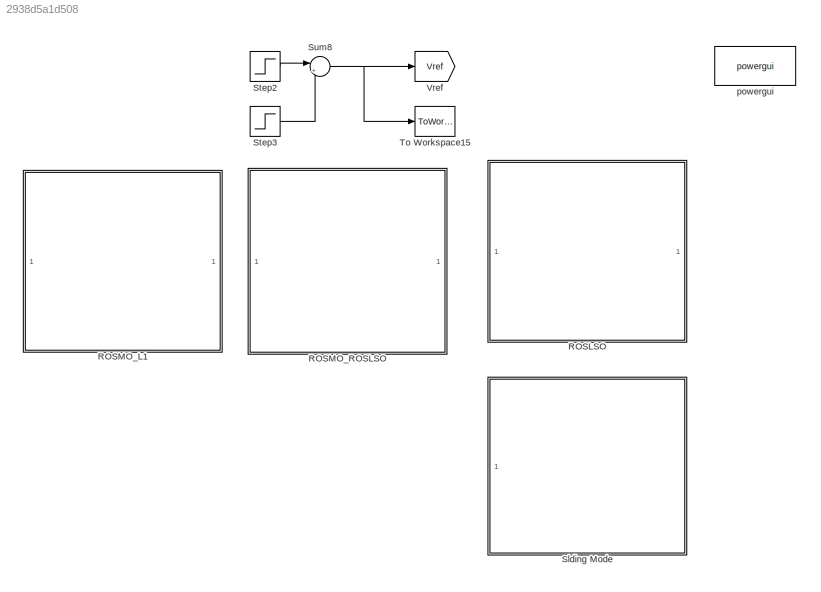
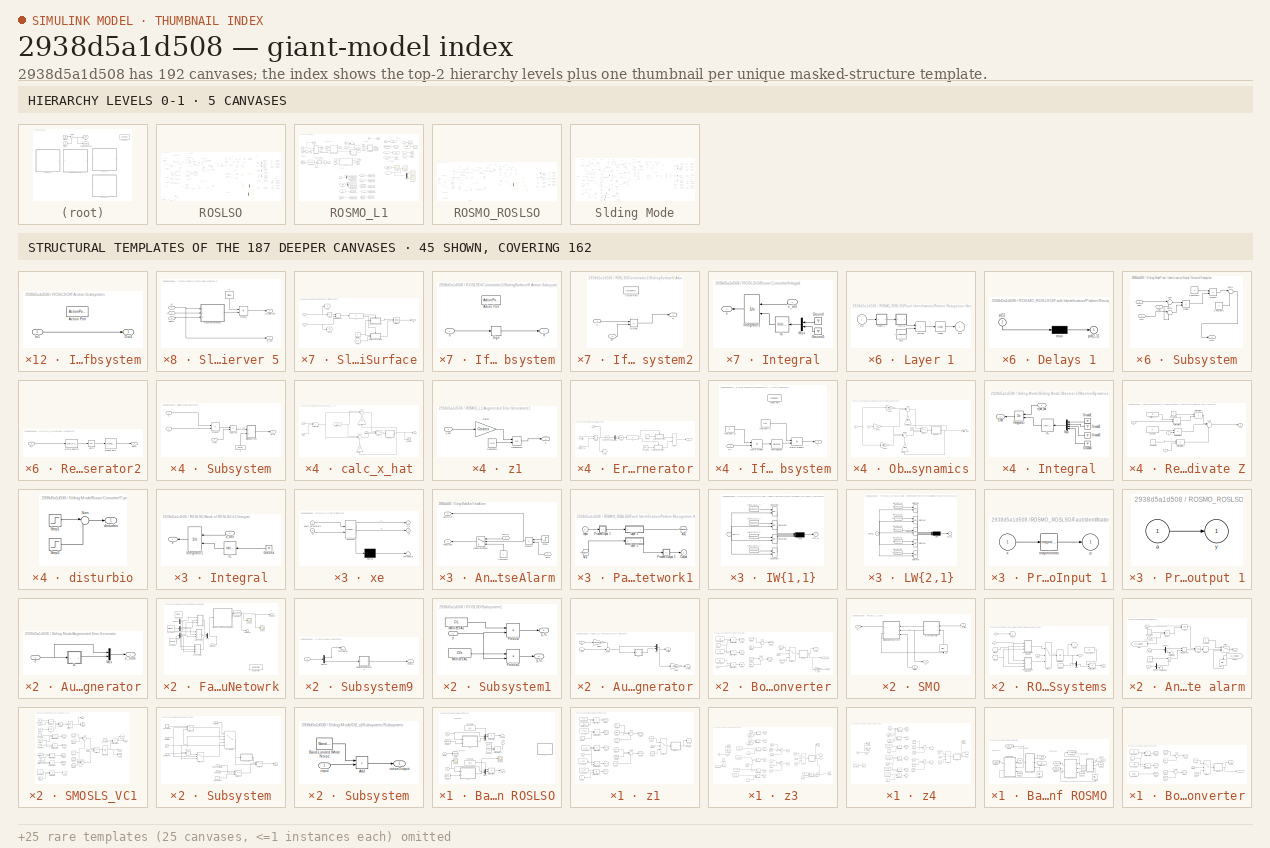
[diagram: thumbnail index - top-2 hierarchy levels (5 canvases) + 45 structural-template representatives of the remaining 187 canvases]
MODEL slx_2938d5a1d508
KIND model
CONFIG AbsTol = auto
CONFIG EnableMultiTasking = on
CONFIG FixedStep = 0.0005
CONFIG InitFcn = kp=0.01;\nki=0.01;\n\nk=2;\nem=100000000;\nGE=1/em;\nGU=k*ki/GE;\nGCE=k*kp/GU;\n
CONFIG MaxStep = auto
CONFIG MinStep = auto
CONFIG RelTol = auto
CONFIG SampleTimeConstraint = Unconstrained
CONFIG Solver = ode45
CONFIG SolverName = ode45
CONFIG StartTime = 0.0
CONFIG StopTime = 1
WORKSPACE source: mxarray member
WORKSPACE time = 0.8
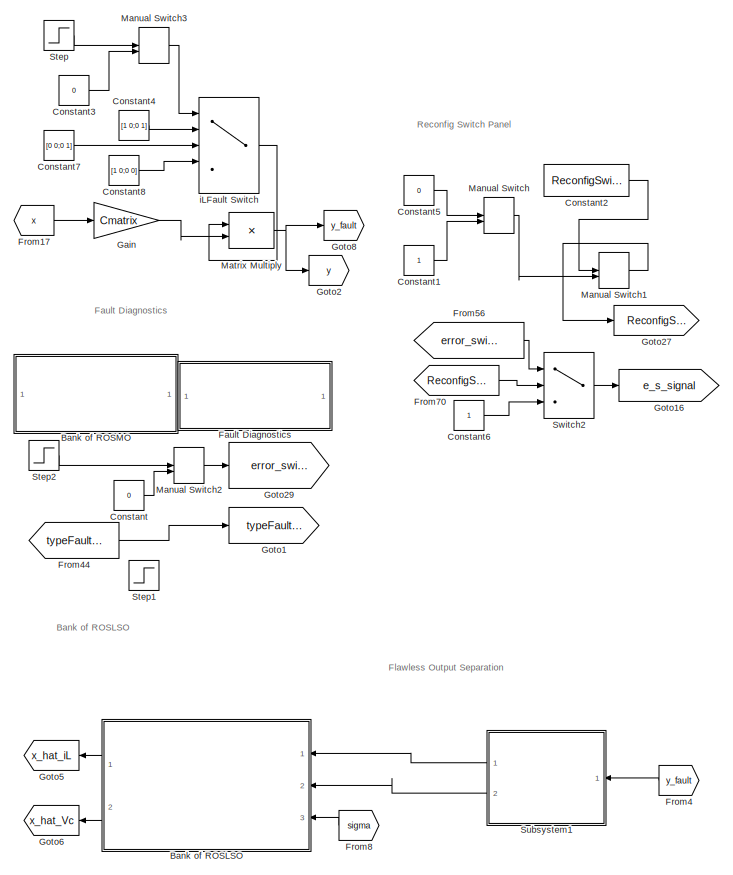
[diagram: ROSLSO - part 1/4, left side, full height]
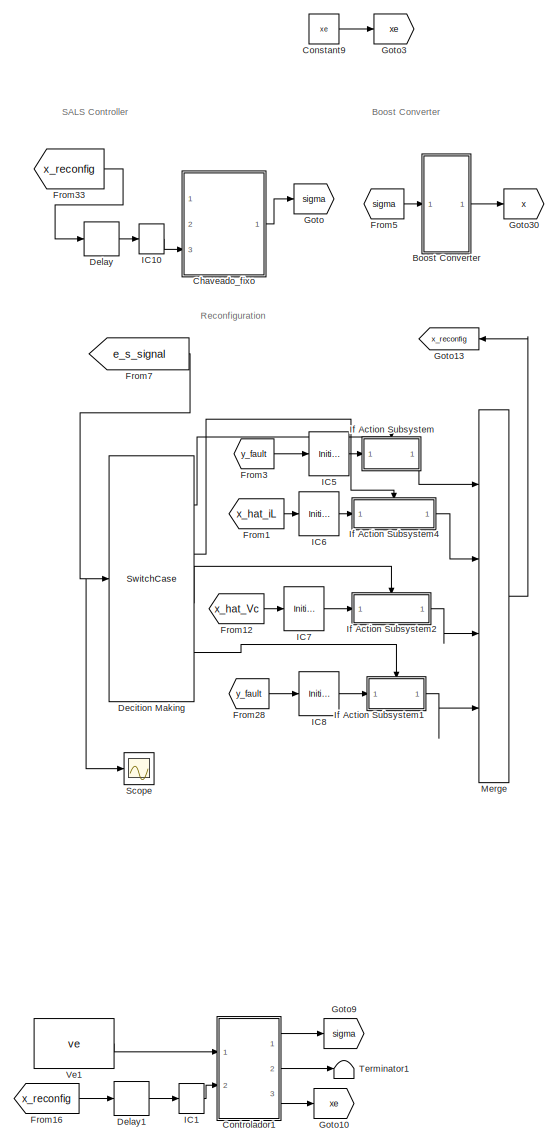
[diagram: ROSLSO - part 2/4, left side, full height]
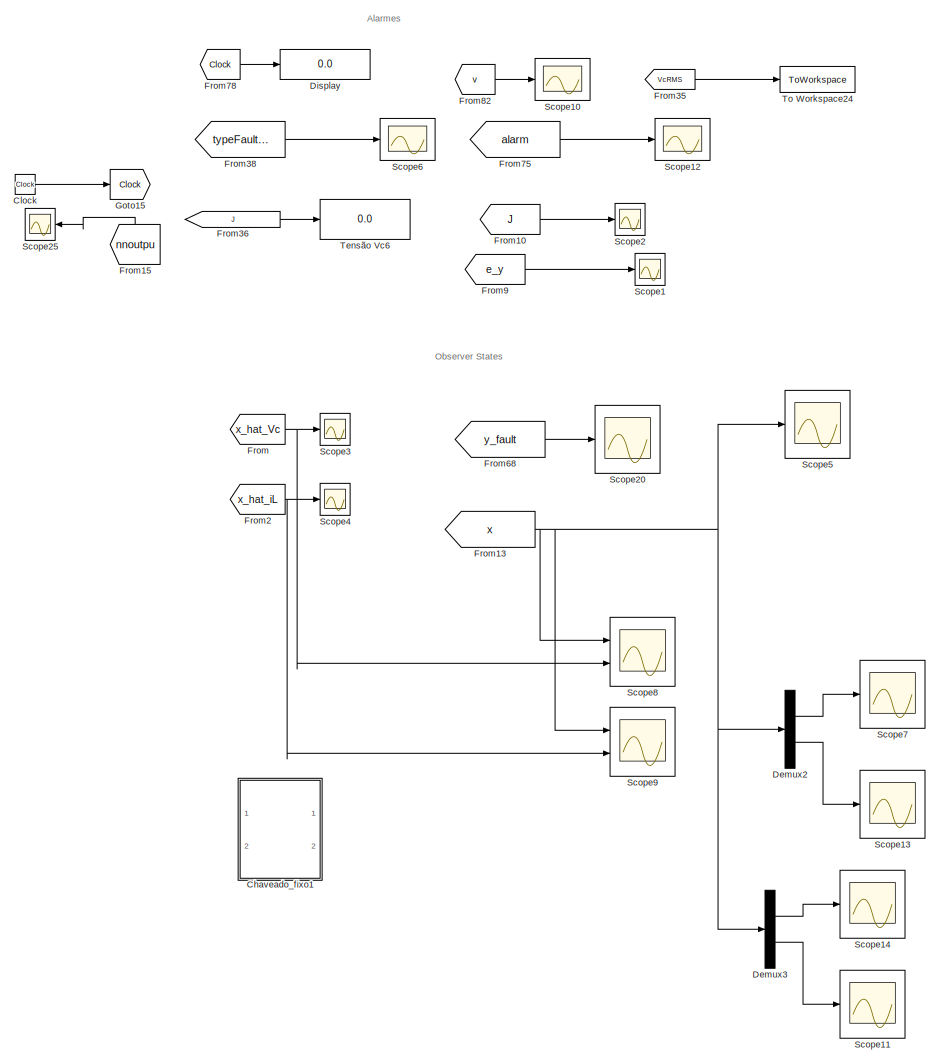
[diagram: ROSLSO - part 3/4, center side, full height]
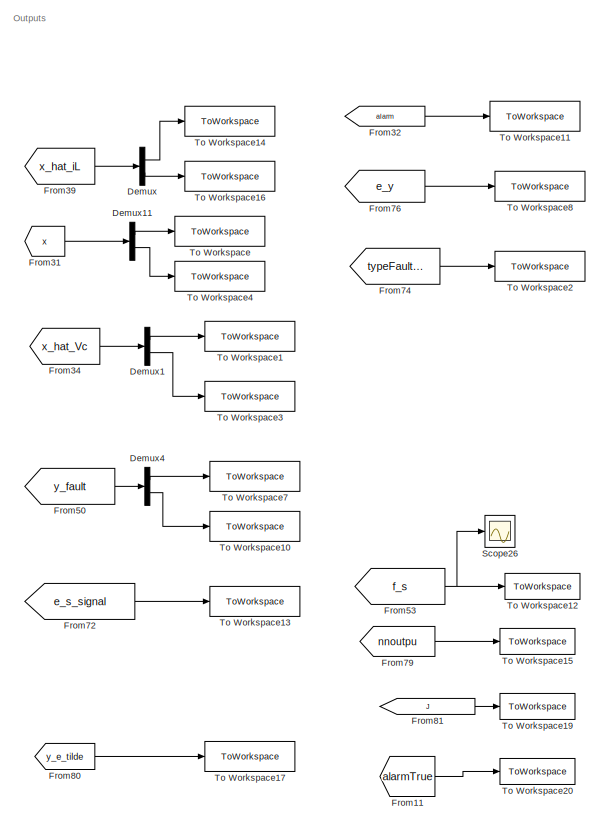
[diagram: ROSLSO - part 4/4, middle right region]
BLOCK [SubSystem] ROSLSO
  Commented = on
  Ports = []
  RequestExecContextInheritance = off
BLOCK [SubSystem] ROSLSO/Bank of ROSLSO
  NameLocation = top
  Ports = [3, 2]
  RequestExecContextInheritance = off
BLOCK [Constant] ROSLSO/Bank of ROSLSO/Constant
  Value = xe
  VectorParams1D = off
BLOCK [Constant] ROSLSO/Bank of ROSLSO/Constant1
  Value = Q_2
  VectorParams1D = off
BLOCK [Constant] ROSLSO/Bank of ROSLSO/Constant2
  Value = T_1
  VectorParams1D = off
BLOCK [Constant] ROSLSO/Bank of ROSLSO/Constant8
  Value = Q_1
  VectorParams1D = off
BLOCK [From] ROSLSO/Bank of ROSLSO/From1
  GotoTag = sigma
BLOCK [From] ROSLSO/Bank of ROSLSO/From18
  GotoTag = sigma
BLOCK [Goto] ROSLSO/Bank of ROSLSO/Goto
  GotoTag = sigma
  NameLocation = top
BLOCK [Product] ROSLSO/Bank of ROSLSO/Matrix Multiply
  Multiplication = Matrix(*)
  Ports = [2, 1]
BLOCK [Product] ROSLSO/Bank of ROSLSO/Matrix Multiply1
  Multiplication = Matrix(*)
  Ports = [2, 1]
BLOCK [Product] ROSLSO/Bank of ROSLSO/Matrix Multiply2
  Multiplication = Matrix(*)
  Ports = [2, 1]
BLOCK [Mux] ROSLSO/Bank of ROSLSO/Mux
  DisplayOption = bar
  Inputs = 2
  Ports = [2, 1]
BLOCK [Mux] ROSLSO/Bank of ROSLSO/Mux1
  DisplayOption = bar
  Inputs = 2
  Ports = [2, 1]
BLOCK [Scope] ROSLSO/Bank of ROSLSO/Scope
  Floating = off
  NumInputPorts = 1
  Ports = [1]
  ScopeSpecificationString = Simulink.scopes.TimeScopeBlockCfg('CurrentConfiguration', extmgr.ConfigurationSet(extmgr.Configuration('Core','General UI',true),extmgr.Configuration('Core','Source UI',true),extmgr.Configuration('Sources','WiredSimulink',true,'DataLoggingVariableName','ScopeData10'),extmgr.Configuration('Visuals','Time Domain',true,'SerializedDisplays',{struct('MinYLimReal','4.20417','MaxYLimReal','10.58055','YLa...<+1385ch>
BLOCK [Scope] ROSLSO/Bank of ROSLSO/Scope1
  Floating = off
  NumInputPorts = 1
  Ports = [1]
  ScopeSpecificationString = Simulink.scopes.TimeScopeBlockCfg('CurrentConfiguration', extmgr.ConfigurationSet(extmgr.Configuration('Core','General UI',true),extmgr.Configuration('Core','Source UI',true),extmgr.Configuration('Sources','WiredSimulink',true,'DataLoggingVariableName','ScopeData2'),extmgr.Configuration('Visuals','Time Domain',true,'SerializedDisplays',{struct('MinYLimReal','-103.82217','MaxYLimReal','931.98466','...<+1405ch>
BLOCK [Sum] ROSLSO/Bank of ROSLSO/Sum
  Inputs = |++
  Ports = [2, 1]
BLOCK [Inport] ROSLSO/Bank of ROSLSO/sigma
  Port = 3
BLOCK [Outport] ROSLSO/Bank of ROSLSO/x_hat_Vc
  Port = 2
BLOCK [Outport] ROSLSO/Bank of ROSLSO/x_hat_iL
BLOCK [Inport] ROSLSO/Bank of ROSLSO/y_f1
BLOCK [Inport] ROSLSO/Bank of ROSLSO/y_f2
  Port = 2
BLOCK [SubSystem] ROSLSO/Bank of ROSLSO/z1
  Commented = on
  Ports = [2, 1]
  RequestExecContextInheritance = off
BLOCK [Constant] ROSLSO/Bank of ROSLSO/z1/Constant
  Value = F_11
  VectorParams1D = off
BLOCK [Constant] ROSLSO/Bank of ROSLSO/z1/Constant10
  Value = T_1
  VectorParams1D = off
BLOCK [Constant] ROSLSO/Bank of ROSLSO/z1/Constant2
  Value = F_12
  VectorParams1D = off
BLOCK [Constant] ROSLSO/Bank of ROSLSO/z1/Constant4
  Value = L_11
  VectorParams1D = off
BLOCK [Constant] ROSLSO/Bank of ROSLSO/z1/Constant5
  Value = L_12
  VectorParams1D = off
BLOCK [From] ROSLSO/Bank of ROSLSO/z1/From
  GotoTag = sys1
BLOCK [From] ROSLSO/Bank of ROSLSO/z1/From1
  GotoTag = sys2
BLOCK [From] ROSLSO/Bank of ROSLSO/z1/From2
  GotoTag = TBu
BLOCK [From] ROSLSO/Bank of ROSLSO/z1/From3
  GotoTag = z
BLOCK [From] ROSLSO/Bank of ROSLSO/z1/From4
  GotoTag = z
BLOCK [From] ROSLSO/Bank of ROSLSO/z1/From5
  GotoTag = Fz1
BLOCK [From] ROSLSO/Bank of ROSLSO/z1/From6
  GotoTag = Ly1
BLOCK [From] ROSLSO/Bank of ROSLSO/z1/From7
  GotoTag = Fz2
BLOCK [From] ROSLSO/Bank of ROSLSO/z1/From8
  GotoTag = Ly2
BLOCK [From] ROSLSO/Bank of ROSLSO/z1/From9
  GotoTag = TBu
BLOCK [Goto] ROSLSO/Bank of ROSLSO/z1/Goto
  GotoTag = sys1
BLOCK [Goto] ROSLSO/Bank of ROSLSO/z1/Goto1
  GotoTag = sys2
BLOCK [Goto] ROSLSO/Bank of ROSLSO/z1/Goto2
  GotoTag = TBu
BLOCK [Goto] ROSLSO/Bank of ROSLSO/z1/Goto3
  GotoTag = Ly1
BLOCK [Goto] ROSLSO/Bank of ROSLSO/z1/Goto4
  GotoTag = Ly2
BLOCK [Goto] ROSLSO/Bank of ROSLSO/z1/Goto5
  GotoTag = z
BLOCK [Goto] ROSLSO/Bank of ROSLSO/z1/Goto6
  GotoTag = Fz1
BLOCK [Goto] ROSLSO/Bank of ROSLSO/z1/Goto7
  GotoTag = Fz2
BLOCK [SubSystem] ROSLSO/Bank of ROSLSO/z1/Integral
  Ports = [1, 1]
  RequestExecContextInheritance = off
BLOCK [Ground] ROSLSO/Bank of ROSLSO/z1/Integral/Ground
  NameLocation = top
BLOCK [InitialCondition] ROSLSO/Bank of ROSLSO/z1/Integral/IC
  NameLocation = top
  Value = 0
BLOCK [Integrator] ROSLSO/Bank of ROSLSO/z1/Integral/Integrator1
  InitialCondition = [-x_e; 0; 0]
  InitialConditionSource = external
  Ports = [2, 1]
BLOCK [Outport] ROSLSO/Bank of ROSLSO/z1/Integral/z
BLOCK [Inport] ROSLSO/Bank of ROSLSO/z1/Integral/z_dot
BLOCK [Product] ROSLSO/Bank of ROSLSO/z1/Matrix Multiply
  Multiplication = Matrix(*)
  Ports = [2, 1]
BLOCK [Product] ROSLSO/Bank of ROSLSO/z1/Matrix Multiply1
  Multiplication = Matrix(*)
  Ports = [2, 1]
BLOCK [Product] ROSLSO/Bank of ROSLSO/z1/Matrix Multiply2
  Multiplication = Matrix(*)
  Ports = [2, 1]
BLOCK [Product] ROSLSO/Bank of ROSLSO/z1/Matrix Multiply3
  Multiplication = Matrix(*)
  Ports = [2, 1]
BLOCK [Product] ROSLSO/Bank of ROSLSO/z1/Matrix Multiply4
  Multiplication = Matrix(*)
  Ports = [2, 1]
BLOCK [Constant] ROSLSO/Bank of ROSLSO/z1/MatrizesA8
  Value = B1u
  VectorParams1D = off
BLOCK [Sum] ROSLSO/Bank of ROSLSO/z1/Sum
  Inputs = |+++
  Ports = [3, 1]
BLOCK [Sum] ROSLSO/Bank of ROSLSO/z1/Sum1
  Inputs = |+++
  Ports = [3, 1]
BLOCK [Switch] ROSLSO/Bank of ROSLSO/z1/Switch1
  Criteria = u2 ~= 0
  InputSameDT = off
  SaturateOnIntegerOverflow = off
BLOCK [Inport] ROSLSO/Bank of ROSLSO/z1/sigma
  Port = 2
BLOCK [Inport] ROSLSO/Bank of ROSLSO/z1/y_f1
BLOCK [Outport] ROSLSO/Bank of ROSLSO/z1/z
BLOCK [SubSystem] ROSLSO/Bank of ROSLSO/z3
  Ports = [2, 1]
  RequestExecContextInheritance = off
BLOCK [Constant] ROSLSO/Bank of ROSLSO/z3/Constant
  Value = F_11
  VectorParams1D = off
BLOCK [Constant] ROSLSO/Bank of ROSLSO/z3/Constant1
  Value = -380
BLOCK [Constant] ROSLSO/Bank of ROSLSO/z3/Constant10
  Value = T_1
  VectorParams1D = off
BLOCK [Constant] ROSLSO/Bank of ROSLSO/z3/Constant2
  Value = F_12
  VectorParams1D = off
BLOCK [Constant] ROSLSO/Bank of ROSLSO/z3/Constant3
  Value = H_1
  VectorParams1D = off
BLOCK [Constant] ROSLSO/Bank of ROSLSO/z3/Constant4
  Value = L_11
  VectorParams1D = off
BLOCK [Constant] ROSLSO/Bank of ROSLSO/z3/Constant5
  Value = L_12
  VectorParams1D = off
BLOCK [From] ROSLSO/Bank of ROSLSO/z3/From
  GotoTag = sys1
BLOCK [From] ROSLSO/Bank of ROSLSO/z3/From1
  GotoTag = sys2
BLOCK [From] ROSLSO/Bank of ROSLSO/z3/From10
  GotoTag = T_1
BLOCK [From] ROSLSO/Bank of ROSLSO/z3/From12
  GotoTag = y_f1
BLOCK [From] ROSLSO/Bank of ROSLSO/z3/From13
  GotoTag = y_f1
BLOCK [From] ROSLSO/Bank of ROSLSO/z3/From14
  GotoTag = TB1u
BLOCK [From] ROSLSO/Bank of ROSLSO/z3/From2
  GotoTag = T_1
BLOCK [From] ROSLSO/Bank of ROSLSO/z3/From3
  GotoTag = z
BLOCK [From] ROSLSO/Bank of ROSLSO/z3/From4
  GotoTag = z
BLOCK [From] ROSLSO/Bank of ROSLSO/z3/From5
  GotoTag = Fz1
BLOCK [From] ROSLSO/Bank of ROSLSO/z3/From6
  GotoTag = Ly1
BLOCK [From] ROSLSO/Bank of ROSLSO/z3/From7
  GotoTag = Fz2
BLOCK [From] ROSLSO/Bank of ROSLSO/z3/From8
  GotoTag = Ly2
BLOCK [From] ROSLSO/Bank of ROSLSO/z3/From9
  GotoTag = TB2u
BLOCK [Goto] ROSLSO/Bank of ROSLSO/z3/Goto
  GotoTag = sys1
BLOCK [Goto] ROSLSO/Bank of ROSLSO/z3/Goto1
  GotoTag = sys2
BLOCK [Goto] ROSLSO/Bank of ROSLSO/z3/Goto10
  GotoTag = y_f1
BLOCK [Goto] ROSLSO/Bank of ROSLSO/z3/Goto11
  GotoTag = T_1
BLOCK [Goto] ROSLSO/Bank of ROSLSO/z3/Goto2
  GotoTag = TB1u
BLOCK [Goto] ROSLSO/Bank of ROSLSO/z3/Goto3
  GotoTag = Ly1
BLOCK [Goto] ROSLSO/Bank of ROSLSO/z3/Goto4
  GotoTag = Ly2
BLOCK [Goto] ROSLSO/Bank of ROSLSO/z3/Goto5
  GotoTag = z
BLOCK [Goto] ROSLSO/Bank of ROSLSO/z3/Goto6
  GotoTag = Fz1
BLOCK [Goto] ROSLSO/Bank of ROSLSO/z3/Goto7
  GotoTag = Fz2
BLOCK [Goto] ROSLSO/Bank of ROSLSO/z3/Goto8
  GotoTag = TB2u
BLOCK [SubSystem] ROSLSO/Bank of ROSLSO/z3/Integral
  Ports = [1, 1]
  RequestExecContextInheritance = off
BLOCK [Ground] ROSLSO/Bank of ROSLSO/z3/Integral/Ground
  NameLocation = top
BLOCK [InitialCondition] ROSLSO/Bank of ROSLSO/z3/Integral/IC
  NameLocation = top
  Value = 0
BLOCK [Integrator] ROSLSO/Bank of ROSLSO/z3/Integral/Integrator1
  InitialCondition = [-x_e; 0; 0]
  InitialConditionSource = external
  Ports = [2, 1]
BLOCK [Outport] ROSLSO/Bank of ROSLSO/z3/Integral/z
BLOCK [Inport] ROSLSO/Bank of ROSLSO/z3/Integral/z_dot
BLOCK [Product] ROSLSO/Bank of ROSLSO/z3/Matrix Multiply
  Multiplication = Matrix(*)
  Ports = [2, 1]
BLOCK [Product] ROSLSO/Bank of ROSLSO/z3/Matrix Multiply1
  Multiplication = Matrix(*)
  Ports = [2, 1]
BLOCK [Product] ROSLSO/Bank of ROSLSO/z3/Matrix Multiply2
  Multiplication = Matrix(*)
  Ports = [2, 1]
BLOCK [Product] ROSLSO/Bank of ROSLSO/z3/Matrix Multiply3
  Multiplication = Matrix(*)
  Ports = [2, 1]
BLOCK [Product] ROSLSO/Bank of ROSLSO/z3/Matrix Multiply4
  Multiplication = Matrix(*)
  Ports = [2, 1]
BLOCK [Product] ROSLSO/Bank of ROSLSO/z3/Matrix Multiply5
  Multiplication = Matrix(*)
  Ports = [2, 1]
BLOCK [Product] ROSLSO/Bank of ROSLSO/z3/Matrix Multiply6
  Multiplication = Matrix(*)
  Ports = [2, 1]
BLOCK [Constant] ROSLSO/Bank of ROSLSO/z3/MatrizesA1
  Value = B2f*uf
  VectorParams1D = off
BLOCK [Constant] ROSLSO/Bank of ROSLSO/z3/MatrizesA8
  Value = B1f*uf
  VectorParams1D = off
BLOCK [Scope] ROSLSO/Bank of ROSLSO/z3/Scope
  Floating = off
  NumInputPorts = 1
  Ports = [1]
  ScopeSpecificationString = Simulink.scopes.TimeScopeBlockCfg('CurrentConfiguration', extmgr.ConfigurationSet(extmgr.Configuration('Core','General UI',true),extmgr.Configuration('Core','Source UI',true),extmgr.Configuration('Sources','WiredSimulink',true,'DataLoggingVariableName','ScopeData1'),extmgr.Configuration('Visuals','Time Domain',true,'SerializedDisplays',{struct('MinYLimReal','-51.20511','MaxYLimReal','163.87073','Y...<+1449ch>
BLOCK [Scope] ROSLSO/Bank of ROSLSO/z3/Scope2
  Floating = off
  NumInputPorts = 1
  Ports = [1]
  ScopeSpecificationString = Simulink.scopes.TimeScopeBlockCfg('CurrentConfiguration', extmgr.ConfigurationSet(extmgr.Configuration('Core','General UI',true),extmgr.Configuration('Core','Source UI',true),extmgr.Configuration('Sources','WiredSimulink',true,'DataLoggingVariableName','ScopeData5'),extmgr.Configuration('Visuals','Time Domain',true,'SerializedDisplays',{struct('MinYLimReal','-47.6808','MaxYLimReal','429.12719','YL...<+1371ch>
BLOCK [Scope] ROSLSO/Bank of ROSLSO/z3/Scope3
  Floating = off
  NumInputPorts = 1
  Ports = [1]
  ScopeSpecificationString = Simulink.scopes.TimeScopeBlockCfg('CurrentConfiguration', extmgr.ConfigurationSet(extmgr.Configuration('Core','General UI',true),extmgr.Configuration('Core','Source UI',true),extmgr.Configuration('Sources','WiredSimulink',true,'DataLoggingVariableName','ScopeData7'),extmgr.Configuration('Visuals','Time Domain',true,'SerializedDisplays',{struct('MinYLimReal','-2575.41251','MaxYLimReal','614.53449',...<+1431ch>
BLOCK [Sum] ROSLSO/Bank of ROSLSO/z3/Sum
  Inputs = |+++
  Ports = [3, 1]
BLOCK [Sum] ROSLSO/Bank of ROSLSO/z3/Sum1
  Inputs = |+++
  Ports = [3, 1]
BLOCK [Sum] ROSLSO/Bank of ROSLSO/z3/Sum3
  Inputs = |+-
  Ports = [2, 1]
BLOCK [Sum] ROSLSO/Bank of ROSLSO/z3/Sum4
  Inputs = |++
  Ports = [2, 1]
BLOCK [Switch] ROSLSO/Bank of ROSLSO/z3/Switch1
  Criteria = u2 ~= 0
  InputSameDT = off
  SaturateOnIntegerOverflow = off
BLOCK [Inport] ROSLSO/Bank of ROSLSO/z3/sigma
  Port = 2
BLOCK [Inport] ROSLSO/Bank of ROSLSO/z3/y_f1
BLOCK [Outport] ROSLSO/Bank of ROSLSO/z3/z
BLOCK [SubSystem] ROSLSO/Bank of ROSLSO/z4
  Ports = [2, 1]
  RequestExecContextInheritance = off
BLOCK [Constant] ROSLSO/Bank of ROSLSO/z4/Constant
  Value = F_21
  VectorParams1D = off
BLOCK [Constant] ROSLSO/Bank of ROSLSO/z4/Constant10
  Value = T_2
  VectorParams1D = off
BLOCK [Constant] ROSLSO/Bank of ROSLSO/z4/Constant2
  Value = F_22
  VectorParams1D = off
BLOCK [Constant] ROSLSO/Bank of ROSLSO/z4/Constant4
  Value = L_21
  VectorParams1D = off
BLOCK [Constant] ROSLSO/Bank of ROSLSO/z4/Constant5
  Value = L_22
  VectorParams1D = off
BLOCK [From] ROSLSO/Bank of ROSLSO/z4/From
  GotoTag = sys1
BLOCK [From] ROSLSO/Bank of ROSLSO/z4/From1
  GotoTag = sys2
BLOCK [From] ROSLSO/Bank of ROSLSO/z4/From10
  GotoTag = T_2
BLOCK [From] ROSLSO/Bank of ROSLSO/z4/From12
  GotoTag = y_f2
BLOCK [From] ROSLSO/Bank of ROSLSO/z4/From14
  GotoTag = TB1u
BLOCK [From] ROSLSO/Bank of ROSLSO/z4/From3
  GotoTag = z
BLOCK [From] ROSLSO/Bank of ROSLSO/z4/From4
  GotoTag = z
BLOCK [From] ROSLSO/Bank of ROSLSO/z4/From5
  GotoTag = Fz1
BLOCK [From] ROSLSO/Bank of ROSLSO/z4/From6
  GotoTag = Ly1
BLOCK [From] ROSLSO/Bank of ROSLSO/z4/From7
  GotoTag = Fz2
BLOCK [From] ROSLSO/Bank of ROSLSO/z4/From8
  GotoTag = Ly2
BLOCK [From] ROSLSO/Bank of ROSLSO/z4/From9
  GotoTag = TB2u
BLOCK [Goto] ROSLSO/Bank of ROSLSO/z4/Goto
  GotoTag = sys1
BLOCK [Goto] ROSLSO/Bank of ROSLSO/z4/Goto1
  GotoTag = sys2
BLOCK [Goto] ROSLSO/Bank of ROSLSO/z4/Goto10
  GotoTag = y_f2
BLOCK [Goto] ROSLSO/Bank of ROSLSO/z4/Goto11
  GotoTag = T_2
BLOCK [Goto] ROSLSO/Bank of ROSLSO/z4/Goto2
  GotoTag = TB1u
BLOCK [Goto] ROSLSO/Bank of ROSLSO/z4/Goto3
  GotoTag = Ly1
BLOCK [Goto] ROSLSO/Bank of ROSLSO/z4/Goto4
  GotoTag = Ly2
BLOCK [Goto] ROSLSO/Bank of ROSLSO/z4/Goto5
  GotoTag = z
BLOCK [Goto] ROSLSO/Bank of ROSLSO/z4/Goto6
  GotoTag = Fz1
BLOCK [Goto] ROSLSO/Bank of ROSLSO/z4/Goto7
  GotoTag = Fz2
BLOCK [Goto] ROSLSO/Bank of ROSLSO/z4/Goto8
  GotoTag = TB2u
BLOCK [SubSystem] ROSLSO/Bank of ROSLSO/z4/Integral
  Ports = [1, 1]
  RequestExecContextInheritance = off
BLOCK [Ground] ROSLSO/Bank of ROSLSO/z4/Integral/Ground
  NameLocation = top
BLOCK [InitialCondition] ROSLSO/Bank of ROSLSO/z4/Integral/IC
  NameLocation = top
  Value = 0
BLOCK [Integrator] ROSLSO/Bank of ROSLSO/z4/Integral/Integrator1
  InitialCondition = [-x_e; 0; 0]
  InitialConditionSource = external
  Ports = [2, 1]
BLOCK [Outport] ROSLSO/Bank of ROSLSO/z4/Integral/z
BLOCK [Inport] ROSLSO/Bank of ROSLSO/z4/Integral/z_dot
BLOCK [Product] ROSLSO/Bank of ROSLSO/z4/Matrix Multiply
  Multiplication = Matrix(*)
  Ports = [2, 1]
BLOCK [Product] ROSLSO/Bank of ROSLSO/z4/Matrix Multiply1
  Multiplication = Matrix(*)
  Ports = [2, 1]
BLOCK [Product] ROSLSO/Bank of ROSLSO/z4/Matrix Multiply2
  Multiplication = Matrix(*)
  Ports = [2, 1]
BLOCK [Product] ROSLSO/Bank of ROSLSO/z4/Matrix Multiply3
  Multiplication = Matrix(*)
  Ports = [2, 1]
BLOCK [Product] ROSLSO/Bank of ROSLSO/z4/Matrix Multiply4
  Multiplication = Matrix(*)
  Ports = [2, 1]
BLOCK [Product] ROSLSO/Bank of ROSLSO/z4/Matrix Multiply5
  Multiplication = Matrix(*)
  Ports = [2, 1]
BLOCK [Constant] ROSLSO/Bank of ROSLSO/z4/MatrizesA1
  Value = B2f*uf
  VectorParams1D = off
BLOCK [Constant] ROSLSO/Bank of ROSLSO/z4/MatrizesA8
  Value = B1f*uf
  VectorParams1D = off
BLOCK [Scope] ROSLSO/Bank of ROSLSO/z4/Scope
  Floating = off
  NumInputPorts = 1
  Ports = [1]
  ScopeSpecificationString = Simulink.scopes.TimeScopeBlockCfg('CurrentConfiguration', extmgr.ConfigurationSet(extmgr.Configuration('Core','General UI',true),extmgr.Configuration('Core','Source UI',true),extmgr.Configuration('Sources','WiredSimulink',true,'DataLoggingVariableName','ScopeData1'),extmgr.Configuration('Visuals','Time Domain',true,'SerializedDisplays',{struct('MinYLimReal','-61.88291','MaxYLimReal','556.18733','Y...<+1449ch>
BLOCK [Scope] ROSLSO/Bank of ROSLSO/z4/Scope2
  Floating = off
  NumInputPorts = 1
  Ports = [1]
  ScopeSpecificationString = Simulink.scopes.TimeScopeBlockCfg('CurrentConfiguration', extmgr.ConfigurationSet(extmgr.Configuration('Core','General UI',true),extmgr.Configuration('Core','Source UI',true),extmgr.Configuration('Sources','WiredSimulink',true,'DataLoggingVariableName','ScopeData5'),extmgr.Configuration('Visuals','Time Domain',true,'SerializedDisplays',{struct('MinYLimReal','-17.18382','MaxYLimReal','154.65439','Y...<+1392ch>
BLOCK [Sum] ROSLSO/Bank of ROSLSO/z4/Sum
  Inputs = |+++
  Ports = [3, 1]
BLOCK [Sum] ROSLSO/Bank of ROSLSO/z4/Sum1
  Inputs = |+++
  Ports = [3, 1]
BLOCK [Sum] ROSLSO/Bank of ROSLSO/z4/Sum4
  Inputs = |++
  Ports = [2, 1]
BLOCK [Switch] ROSLSO/Bank of ROSLSO/z4/Switch1
  Criteria = u2 ~= 0
  InputSameDT = off
  SaturateOnIntegerOverflow = off
BLOCK [Inport] ROSLSO/Bank of ROSLSO/z4/sigma
  Port = 2
BLOCK [Inport] ROSLSO/Bank of ROSLSO/z4/y_f2
BLOCK [Outport] ROSLSO/Bank of ROSLSO/z4/z
BLOCK [SubSystem] ROSLSO/Bank of ROSMO
  Commented = on
  Ports = []
  RequestExecContextInheritance = off
BLOCK [From] ROSLSO/Bank of ROSMO/From1
  GotoTag = y_fault
  NameLocation = top
  TagVisibility = global
BLOCK [From] ROSLSO/Bank of ROSMO/From17
  GotoTag = y_fault
  NameLocation = top
  TagVisibility = global
BLOCK [From] ROSLSO/Bank of ROSMO/From18
  GotoTag = sigma
  NameLocation = top
BLOCK [From] ROSLSO/Bank of ROSMO/From19
  GotoTag = CVc
  NameLocation = top
BLOCK [From] ROSLSO/Bank of ROSMO/From21
  GotoTag = CiL
  NameLocation = top
BLOCK [From] ROSLSO/Bank of ROSMO/From45
  GotoTag = sigma
  NameLocation = top
BLOCK [From] ROSLSO/Bank of ROSMO/From7
  GotoTag = CVc
  NameLocation = top
BLOCK [Goto] ROSLSO/Bank of ROSMO/Goto14
  GotoTag = y_hat_Vc
  NameLocation = top
BLOCK [Goto] ROSLSO/Bank of ROSMO/Goto20
  GotoTag = x_hat_iL
BLOCK [Goto] ROSLSO/Bank of ROSMO/Goto25
  GotoTag = VcOBsErrror
BLOCK [Goto] ROSLSO/Bank of ROSMO/Goto5
  GotoTag = x_hat_Vc
BLOCK [Goto] ROSLSO/Bank of ROSMO/Goto9
  GotoTag = iL_obs_error
BLOCK [InitialCondition] ROSLSO/Bank of ROSMO/IC2
  NameLocation = right
  Value = 0
BLOCK [InitialCondition] ROSLSO/Bank of ROSMO/IC3
  NameLocation = right
  Value = 0
BLOCK [Constant] ROSLSO/Bank of ROSMO/Matrizes A2
  NameLocation = top
  Value = CiL
  VectorParams1D = off
BLOCK [SubSystem] ROSLSO/Bank of ROSMO/Subsystem
  NameLocation = left
  Ports = [3, 1]
  RequestExecContextInheritance = off
BLOCK [Constant] ROSLSO/Bank of ROSMO/Subsystem/    1
  NameLocation = right
  Value = ObsEp
BLOCK [Inport] ROSLSO/Bank of ROSMO/Subsystem/C
  Port = 2
BLOCK [Product] ROSLSO/Bank of ROSMO/Subsystem/Product
  Multiplication = Matrix(*)
  Ports = [2, 1]
BLOCK [SubSystem] ROSLSO/Bank of ROSMO/Subsystem/SlidingSurface
  Ports = [2, 1]
  RequestExecContextInheritance = off
BLOCK [Abs] ROSLSO/Bank of ROSMO/Subsystem/SlidingSurface/Abs
  SaturateOnIntegerOverflow = off
  ZeroCross = off
BLOCK [From] ROSLSO/Bank of ROSMO/Subsystem/SlidingSurface/From
  GotoTag = ep
BLOCK [From] ROSLSO/Bank of ROSMO/Subsystem/SlidingSurface/From1
  GotoTag = S
BLOCK [Goto] ROSLSO/Bank of ROSMO/Subsystem/SlidingSurface/Goto
  GotoTag = S
BLOCK [Goto] ROSLSO/Bank of ROSMO/Subsystem/SlidingSurface/Goto1
  GotoTag = ep
BLOCK [RelationalOperator] ROSLSO/Bank of ROSMO/Subsystem/SlidingSurface/GreaterThan
  InputSameDT = off
  Operator = >
  OutDataTypeStr = boolean
  Ports = [2, 1]
  RndMeth = Simplest
BLOCK [If] ROSLSO/Bank of ROSMO/Subsystem/SlidingSurface/If
  IfExpression = u1 ~= 0
  Ports = [1, 2]
BLOCK [SubSystem] ROSLSO/Bank of ROSMO/Subsystem/SlidingSurface/If Action Subsystem
  Ports = [1, 1, 0, 0, 0, 0, 0, 1]
  RequestExecContextInheritance = off
  TreatAsAtomicUnit = on
BLOCK [ActionPort] ROSLSO/Bank of ROSMO/Subsystem/SlidingSurface/If Action Subsystem/Action Port
BLOCK [Inport] ROSLSO/Bank of ROSMO/Subsystem/SlidingSurface/If Action Subsystem/S
BLOCK [Signum] ROSLSO/Bank of ROSMO/Subsystem/SlidingSurface/If Action Subsystem/Sign
BLOCK [Outport] ROSLSO/Bank of ROSMO/Subsystem/SlidingSurface/If Action Subsystem/d
BLOCK [SubSystem] ROSLSO/Bank of ROSMO/Subsystem/SlidingSurface/If Action Subsystem2
  Ports = [2, 1, 0, 0, 0, 0, 0, 1]
  RequestExecContextInheritance = off
  TreatAsAtomicUnit = on
BLOCK [ActionPort] ROSLSO/Bank of ROSMO/Subsystem/SlidingSurface/If Action Subsystem2/Action Port
BLOCK [Product] ROSLSO/Bank of ROSMO/Subsystem/SlidingSurface/If Action Subsystem2/Divide
  Inputs = */
  Ports = [2, 1]
BLOCK [Inport] ROSLSO/Bank of ROSMO/Subsystem/SlidingSurface/If Action Subsystem2/S
BLOCK [Outport] ROSLSO/Bank of ROSMO/Subsystem/SlidingSurface/If Action Subsystem2/d
BLOCK [Inport] ROSLSO/Bank of ROSMO/Subsystem/SlidingSurface/If Action Subsystem2/ep
  Port = 2
BLOCK [Merge] ROSLSO/Bank of ROSMO/Subsystem/SlidingSurface/Merge1
  Ports = [2, 1]
BLOCK [Inport] ROSLSO/Bank of ROSMO/Subsystem/SlidingSurface/S
BLOCK [Outport] ROSLSO/Bank of ROSMO/Subsystem/SlidingSurface/d
BLOCK [Inport] ROSLSO/Bank of ROSMO/Subsystem/SlidingSurface/ep
  Port = 2
BLOCK [Sum] ROSLSO/Bank of ROSMO/Subsystem/Subtract
  IconShape = rectangular
  Inputs = +-
  Ports = [2, 1]
BLOCK [Outport] ROSLSO/Bank of ROSMO/Subsystem/error
BLOCK [Inport] ROSLSO/Bank of ROSMO/Subsystem/y
BLOCK [Inport] ROSLSO/Bank of ROSMO/Subsystem/y_hat
  Port = 3
BLOCK [SubSystem] ROSLSO/Bank of ROSMO/Subsystem1
  NameLocation = left
  Ports = [3, 1]
  RequestExecContextInheritance = off
BLOCK [Constant] ROSLSO/Bank of ROSMO/Subsystem1/    1
  NameLocation = right
  Value = ObsEp
BLOCK [Inport] ROSLSO/Bank of ROSMO/Subsystem1/C
  Port = 2
BLOCK [Product] ROSLSO/Bank of ROSMO/Subsystem1/Product
  Multiplication = Matrix(*)
  Ports = [2, 1]
BLOCK [SubSystem] ROSLSO/Bank of ROSMO/Subsystem1/SlidingSurface
  Ports = [2, 1]
  RequestExecContextInheritance = off
BLOCK [Abs] ROSLSO/Bank of ROSMO/Subsystem1/SlidingSurface/Abs
  SaturateOnIntegerOverflow = off
  ZeroCross = off
BLOCK [From] ROSLSO/Bank of ROSMO/Subsystem1/SlidingSurface/From
  GotoTag = ep
BLOCK [From] ROSLSO/Bank of ROSMO/Subsystem1/SlidingSurface/From1
  GotoTag = S
BLOCK [Goto] ROSLSO/Bank of ROSMO/Subsystem1/SlidingSurface/Goto
  GotoTag = S
BLOCK [Goto] ROSLSO/Bank of ROSMO/Subsystem1/SlidingSurface/Goto1
  GotoTag = ep
BLOCK [RelationalOperator] ROSLSO/Bank of ROSMO/Subsystem1/SlidingSurface/GreaterThan
  InputSameDT = off
  Operator = >
  OutDataTypeStr = boolean
  Ports = [2, 1]
  RndMeth = Simplest
BLOCK [If] ROSLSO/Bank of ROSMO/Subsystem1/SlidingSurface/If
  IfExpression = u1 ~= 0
  Ports = [1, 2]
BLOCK [SubSystem] ROSLSO/Bank of ROSMO/Subsystem1/SlidingSurface/If Action Subsystem
  Ports = [1, 1, 0, 0, 0, 0, 0, 1]
  RequestExecContextInheritance = off
  TreatAsAtomicUnit = on
BLOCK [ActionPort] ROSLSO/Bank of ROSMO/Subsystem1/SlidingSurface/If Action Subsystem/Action Port
BLOCK [Inport] ROSLSO/Bank of ROSMO/Subsystem1/SlidingSurface/If Action Subsystem/S
BLOCK [Signum] ROSLSO/Bank of ROSMO/Subsystem1/SlidingSurface/If Action Subsystem/Sign
BLOCK [Outport] ROSLSO/Bank of ROSMO/Subsystem1/SlidingSurface/If Action Subsystem/d
BLOCK [SubSystem] ROSLSO/Bank of ROSMO/Subsystem1/SlidingSurface/If Action Subsystem2
  Ports = [2, 1, 0, 0, 0, 0, 0, 1]
  RequestExecContextInheritance = off
  TreatAsAtomicUnit = on
BLOCK [ActionPort] ROSLSO/Bank of ROSMO/Subsystem1/SlidingSurface/If Action Subsystem2/Action Port
BLOCK [Product] ROSLSO/Bank of ROSMO/Subsystem1/SlidingSurface/If Action Subsystem2/Divide
  Inputs = */
  Ports = [2, 1]
BLOCK [Inport] ROSLSO/Bank of ROSMO/Subsystem1/SlidingSurface/If Action Subsystem2/S
BLOCK [Outport] ROSLSO/Bank of ROSMO/Subsystem1/SlidingSurface/If Action Subsystem2/d
BLOCK [Inport] ROSLSO/Bank of ROSMO/Subsystem1/SlidingSurface/If Action Subsystem2/ep
  Port = 2
BLOCK [Merge] ROSLSO/Bank of ROSMO/Subsystem1/SlidingSurface/Merge1
  Ports = [2, 1]
BLOCK [Inport] ROSLSO/Bank of ROSMO/Subsystem1/SlidingSurface/S
BLOCK [Outport] ROSLSO/Bank of ROSMO/Subsystem1/SlidingSurface/d
BLOCK [Inport] ROSLSO/Bank of ROSMO/Subsystem1/SlidingSurface/ep
  Port = 2
BLOCK [Sum] ROSLSO/Bank of ROSMO/Subsystem1/Subtract
  IconShape = rectangular
  Inputs = +-
  Ports = [2, 1]
BLOCK [Outport] ROSLSO/Bank of ROSMO/Subsystem1/error
BLOCK [Inport] ROSLSO/Bank of ROSMO/Subsystem1/y
BLOCK [Inport] ROSLSO/Bank of ROSMO/Subsystem1/y_hat
  Port = 3
BLOCK [SubSystem] ROSLSO/Bank of ROSMO/Vc OBserver
  NameLocation = top
  Ports = [3, 2]
  RequestExecContextInheritance = off
BLOCK [Inport] ROSLSO/Bank of ROSMO/Vc OBserver/C
  Port = 2
BLOCK [Constant] ROSLSO/Bank of ROSMO/Vc OBserver/Constant
  Value = LobsVc
BLOCK [Inport] ROSLSO/Bank of ROSMO/Vc OBserver/ObserverError
BLOCK [Product] ROSLSO/Bank of ROSMO/Vc OBserver/Product2
  Multiplication = Matrix(*)
  Ports = [2, 1]
BLOCK [SubSystem] ROSLSO/Bank of ROSMO/Vc OBserver/calc_x_hat
  Ports = [3, 1]
  RequestExecContextInheritance = off
BLOCK [Gain] ROSLSO/Bank of ROSMO/Vc OBserver/calc_x_hat/Gain
  Gain = A1
  Multiplication = Matrix(K*u)
  NameLocation = right
BLOCK [Gain] ROSLSO/Bank of ROSMO/Vc OBserver/calc_x_hat/Gain5
  Gain = A2
  Multiplication = Matrix(K*u)
  NameLocation = right
BLOCK [SubSystem] ROSLSO/Bank of ROSMO/Vc OBserver/calc_x_hat/Integral
  Ports = [1, 1]
  RequestExecContextInheritance = off
BLOCK [Ground] ROSLSO/Bank of ROSMO/Vc OBserver/calc_x_hat/Integral/Ground1
  NameLocation = top
BLOCK [Ground] ROSLSO/Bank of ROSMO/Vc OBserver/calc_x_hat/Integral/Ground2
  NameLocation = top
BLOCK [InitialCondition] ROSLSO/Bank of ROSMO/Vc OBserver/calc_x_hat/Integral/IC
  NameLocation = top
  Value = [0;0]
BLOCK [Integrator] ROSLSO/Bank of ROSMO/Vc OBserver/calc_x_hat/Integral/Integrator1
  InitialCondition = [-x_e; 0; 0]
  InitialConditionSource = external
  Ports = [2, 1]
BLOCK [Mux] ROSLSO/Bank of ROSMO/Vc OBserver/calc_x_hat/Integral/Mux
  DisplayOption = bar
  Inputs = 2
  NameLocation = top
  Ports = [2, 1]
BLOCK [Outport] ROSLSO/Bank of ROSMO/Vc OBserver/calc_x_hat/Integral/x_hat
BLOCK [Inport] ROSLSO/Bank of ROSMO/Vc OBserver/calc_x_hat/Integral/x_hat_dot
BLOCK [Inport] ROSLSO/Bank of ROSMO/Vc OBserver/calc_x_hat/Lobs
  Port = 3
BLOCK [Product] ROSLSO/Bank of ROSMO/Vc OBserver/calc_x_hat/Matrix Multiply
  Multiplication = Matrix(*)
  Ports = [2, 1]
BLOCK [Constant] ROSLSO/Bank of ROSMO/Vc OBserver/calc_x_hat/MatrizesA8
  Value = B1*u
BLOCK [Scope] ROSLSO/Bank of ROSMO/Vc OBserver/calc_x_hat/Scope1
  Floating = off
  NumInputPorts = 1
  Ports = [1]
  ScopeSpecificationString = Simulink.scopes.TimeScopeBlockCfg('CurrentConfiguration', extmgr.ConfigurationSet(extmgr.Configuration('Core','General UI',true,'FigureColor',[1 1 1]),extmgr.Configuration('Core','Source UI',true),extmgr.Configuration('Sources','WiredSimulink',true,'DataLoggingVariableName','ScopeData4'),extmgr.Configuration('Visuals','Time Domain',true,'SerializedDisplays',{struct('MinYLimReal','-0.25554','MaxYLi...<+1708ch>  <repeated x4 — deduplicated; at blocks: Scope1>
BLOCK [Sum] ROSLSO/Bank of ROSMO/Vc OBserver/calc_x_hat/Sum
  Inputs = |+++
  Ports = [3, 1]
BLOCK [Sum] ROSLSO/Bank of ROSMO/Vc OBserver/calc_x_hat/Sum1
  Inputs = |+++
  Ports = [3, 1]
BLOCK [Switch] ROSLSO/Bank of ROSMO/Vc OBserver/calc_x_hat/Switch1
  Criteria = u2 ~= 0
  InputSameDT = off
  SaturateOnIntegerOverflow = off
BLOCK [Inport] ROSLSO/Bank of ROSMO/Vc OBserver/calc_x_hat/rsign
  Port = 2
BLOCK [Inport] ROSLSO/Bank of ROSMO/Vc OBserver/calc_x_hat/sigma
BLOCK [Outport] ROSLSO/Bank of ROSMO/Vc OBserver/calc_x_hat/x_hat
BLOCK [Inport] ROSLSO/Bank of ROSMO/Vc OBserver/sigma
  NameLocation = left
  Port = 3
BLOCK [Outport] ROSLSO/Bank of ROSMO/Vc OBserver/x_hat
  NameLocation = left
BLOCK [Outport] ROSLSO/Bank of ROSMO/Vc OBserver/y_hat
  Port = 2
BLOCK [SubSystem] ROSLSO/Bank of ROSMO/iL Observer
  NameLocation = top
  Ports = [3, 2]
  RequestExecContextInheritance = off
BLOCK [Inport] ROSLSO/Bank of ROSMO/iL Observer/C
BLOCK [Constant] ROSLSO/Bank of ROSMO/iL Observer/Constant8
  Value = LobsiL
BLOCK [Inport] ROSLSO/Bank of ROSMO/iL Observer/ObserverError
  Port = 2
BLOCK [Product] ROSLSO/Bank of ROSMO/iL Observer/Product2
  Multiplication = Matrix(*)
  Ports = [2, 1]
BLOCK [SubSystem] ROSLSO/Bank of ROSMO/iL Observer/calc_x_hat
  Ports = [3, 1]
  RequestExecContextInheritance = off
BLOCK [Gain] ROSLSO/Bank of ROSMO/iL Observer/calc_x_hat/Gain
  Gain = A1
  Multiplication = Matrix(K*u)
  NameLocation = right
BLOCK [Gain] ROSLSO/Bank of ROSMO/iL Observer/calc_x_hat/Gain5
  Gain = A2
  Multiplication = Matrix(K*u)
  NameLocation = right
BLOCK [SubSystem] ROSLSO/Bank of ROSMO/iL Observer/calc_x_hat/Integral
  Ports = [1, 1]
  RequestExecContextInheritance = off
BLOCK [Ground] ROSLSO/Bank of ROSMO/iL Observer/calc_x_hat/Integral/Ground
  NameLocation = top
BLOCK [Ground] ROSLSO/Bank of ROSMO/iL Observer/calc_x_hat/Integral/Ground1
  NameLocation = top
BLOCK [InitialCondition] ROSLSO/Bank of ROSMO/iL Observer/calc_x_hat/Integral/IC
  NameLocation = top
  Value = [0;0]
BLOCK [Integrator] ROSLSO/Bank of ROSMO/iL Observer/calc_x_hat/Integral/Integrator1
  InitialCondition = [-x_e; 0; 0]
  InitialConditionSource = external
  Ports = [2, 1]
BLOCK [Mux] ROSLSO/Bank of ROSMO/iL Observer/calc_x_hat/Integral/Mux
  DisplayOption = bar
  Inputs = 2
  NameLocation = top
  Ports = [2, 1]
BLOCK [Outport] ROSLSO/Bank of ROSMO/iL Observer/calc_x_hat/Integral/x_hat
BLOCK [Inport] ROSLSO/Bank of ROSMO/iL Observer/calc_x_hat/Integral/x_hat_dot
BLOCK [Inport] ROSLSO/Bank of ROSMO/iL Observer/calc_x_hat/Lobs
  Port = 3
BLOCK [Product] ROSLSO/Bank of ROSMO/iL Observer/calc_x_hat/Matrix Multiply
  Multiplication = Matrix(*)
  Ports = [2, 1]
BLOCK [Constant] ROSLSO/Bank of ROSMO/iL Observer/calc_x_hat/MatrizesA8
  Value = B1*u
BLOCK [Scope] ROSLSO/Bank of ROSMO/iL Observer/calc_x_hat/Scope1
  Floating = off
  NumInputPorts = 1
  Ports = [1]
BLOCK [Sum] ROSLSO/Bank of ROSMO/iL Observer/calc_x_hat/Sum
  Inputs = |+++
  Ports = [3, 1]
BLOCK [Sum] ROSLSO/Bank of ROSMO/iL Observer/calc_x_hat/Sum1
  Inputs = |+++
  Ports = [3, 1]
BLOCK [Switch] ROSLSO/Bank of ROSMO/iL Observer/calc_x_hat/Switch1
  Criteria = u2 ~= 0
  InputSameDT = off
  SaturateOnIntegerOverflow = off
BLOCK [Inport] ROSLSO/Bank of ROSMO/iL Observer/calc_x_hat/rsign
  Port = 2
BLOCK [Inport] ROSLSO/Bank of ROSMO/iL Observer/calc_x_hat/sigma
BLOCK [Outport] ROSLSO/Bank of ROSMO/iL Observer/calc_x_hat/x_hat
BLOCK [Inport] ROSLSO/Bank of ROSMO/iL Observer/sigma
  NameLocation = left
  Port = 3
BLOCK [Outport] ROSLSO/Bank of ROSMO/iL Observer/x_hat
  NameLocation = top
BLOCK [Outport] ROSLSO/Bank of ROSMO/iL Observer/y_hat
  Port = 2
BLOCK [SubSystem] ROSLSO/Boost Converter
  Ports = [1, 1]
  RequestExecContextInheritance = off
BLOCK [Constant] ROSLSO/Boost Converter/Constant2
  Value = B1*u
  VectorParams1D = off
BLOCK [Constant] ROSLSO/Boost Converter/Constant4
  Value = A1
  VectorParams1D = off
BLOCK [Constant] ROSLSO/Boost Converter/Constant5
  Value = A2
  VectorParams1D = off
BLOCK [From] ROSLSO/Boost Converter/From
  GotoTag = sys1
BLOCK [From] ROSLSO/Boost Converter/From1
  GotoTag = sys2
BLOCK [From] ROSLSO/Boost Converter/From2
  GotoTag = Bu
BLOCK [From] ROSLSO/Boost Converter/From3
  GotoTag = x
BLOCK [From] ROSLSO/Boost Converter/From4
  GotoTag = A1x
BLOCK [From] ROSLSO/Boost Converter/From7
  GotoTag = A2x
BLOCK [From] ROSLSO/Boost Converter/From8
  GotoTag = Bu
BLOCK [Goto] ROSLSO/Boost Converter/Goto
  GotoTag = sys1
BLOCK [Goto] ROSLSO/Boost Converter/Goto1
  GotoTag = sys2
BLOCK [Goto] ROSLSO/Boost Converter/Goto3
  GotoTag = A1x
BLOCK [Goto] ROSLSO/Boost Converter/Goto4
  GotoTag = A2x
BLOCK [Goto] ROSLSO/Boost Converter/Goto5
  GotoTag = x
BLOCK [Goto] ROSLSO/Boost Converter/Goto7
  GotoTag = Bu
BLOCK [SubSystem] ROSLSO/Boost Converter/Integral
  Ports = [1, 1]
  RequestExecContextInheritance = off
BLOCK [Ground] ROSLSO/Boost Converter/Integral/Ground
  NameLocation = top
BLOCK [Ground] ROSLSO/Boost Converter/Integral/Ground1
  NameLocation = top
BLOCK [InitialCondition] ROSLSO/Boost Converter/Integral/IC
  NameLocation = top
  Value = [0;0]
BLOCK [Integrator] ROSLSO/Boost Converter/Integral/Integrator1
  InitialCondition = [-x_e; 0; 0]
  InitialConditionSource = external
  Ports = [2, 1]
BLOCK [Mux] ROSLSO/Boost Converter/Integral/Mux
  DisplayOption = bar
  Inputs = 2
  NameLocation = top
  Ports = [2, 1]
BLOCK [Outport] ROSLSO/Boost Converter/Integral/x
BLOCK [Inport] ROSLSO/Boost Converter/Integral/x_dot
BLOCK [Product] ROSLSO/Boost Converter/Matrix Multiply
  Multiplication = Matrix(*)
  Ports = [2, 1]
BLOCK [Product] ROSLSO/Boost Converter/Matrix Multiply2
  Multiplication = Matrix(*)
  Ports = [2, 1]
BLOCK [Sum] ROSLSO/Boost Converter/Sum
  Inputs = |++
  Ports = [2, 1]
BLOCK [Sum] ROSLSO/Boost Converter/Sum1
  Inputs = |++
  Ports = [2, 1]
BLOCK [Switch] ROSLSO/Boost Converter/Switch1
  Criteria = u2 ~= 0
  InputSameDT = off
  SaturateOnIntegerOverflow = off
BLOCK [Inport] ROSLSO/Boost Converter/sigma
BLOCK [Outport] ROSLSO/Boost Converter/x
BLOCK [SubSystem] ROSLSO/Chaveado_fixo
  Commented = on
  Ports = [3, 1]
  RequestExecContextInheritance = off
BLOCK [Constant] ROSLSO/Chaveado_fixo/Constant1
  Value = A1
  VectorParams1D = off
BLOCK [Constant] ROSLSO/Chaveado_fixo/Constant2
  Value = P
  VectorParams1D = off
BLOCK [Constant] ROSLSO/Chaveado_fixo/Constant3
  Value = B1
  VectorParams1D = off
BLOCK [Constant] ROSLSO/Chaveado_fixo/Constant4
BLOCK [Constant] ROSLSO/Chaveado_fixo/Constant5
  Value = A2
  VectorParams1D = off
BLOCK [Constant] ROSLSO/Chaveado_fixo/Constant6
  Value = 0
BLOCK [Constant] ROSLSO/Chaveado_fixo/Constant8
  Value = B2
  VectorParams1D = off
BLOCK [From] ROSLSO/Chaveado_fixo/From2
  GotoTag = control_matrix
BLOCK [From] ROSLSO/Chaveado_fixo/From3
  GotoTag = x
BLOCK [From] ROSLSO/Chaveado_fixo/From5
  GotoTag = xe
BLOCK [Goto] ROSLSO/Chaveado_fixo/Goto
  GotoTag = xe
BLOCK [Goto] ROSLSO/Chaveado_fixo/Goto4
  GotoTag = control_matrix
BLOCK [Goto] ROSLSO/Chaveado_fixo/Goto8
  GotoTag = x
BLOCK [Product] ROSLSO/Chaveado_fixo/Matrix Multiply1
  Multiplication = Matrix(*)
  Ports = [2, 1]
BLOCK [Product] ROSLSO/Chaveado_fixo/Matrix Multiply2
  Multiplication = Matrix(*)
  Ports = [2, 1]
BLOCK [Product] ROSLSO/Chaveado_fixo/Matrix Multiply3
  Multiplication = Matrix(*)
  Ports = [2, 1]
BLOCK [Product] ROSLSO/Chaveado_fixo/Matrix Multiply4
  Multiplication = Matrix(*)
  Ports = [2, 1]
BLOCK [Sum] ROSLSO/Chaveado_fixo/Sum
  Inputs = |+-
  Ports = [2, 1]
BLOCK [Sum] ROSLSO/Chaveado_fixo/Sum1
  Inputs = |+-
  Ports = [2, 1]
BLOCK [Sum] ROSLSO/Chaveado_fixo/Sum2
  Inputs = |+-
  Ports = [2, 1]
BLOCK [Sum] ROSLSO/Chaveado_fixo/Sum3
  Inputs = |++
  Ports = [2, 1]
BLOCK [Switch] ROSLSO/Chaveado_fixo/Switch1
  Criteria = u2 > Threshold
  InputSameDT = off
  SaturateOnIntegerOverflow = off
BLOCK [Math] ROSLSO/Chaveado_fixo/Transpose
  Operator = transpose
  Ports = [1, 1]
BLOCK [Outport] ROSLSO/Chaveado_fixo/sigma
BLOCK [Inport] ROSLSO/Chaveado_fixo/u
  Port = 2
BLOCK [Inport] ROSLSO/Chaveado_fixo/x
  Port = 3
BLOCK [Inport] ROSLSO/Chaveado_fixo/xe
BLOCK [SubSystem] ROSLSO/Chaveado_fixo1
  Commented = on
  Ports = [2, 2]
  RequestExecContextInheritance = off
BLOCK [SubSystem] ROSLSO/Chaveado_fixo1/Controlador Chavead
  Ports = [2, 3]
  RequestExecContextInheritance = off
BLOCK [SubSystem] ROSLSO/Chaveado_fixo1/Controlador Chavead/MatirxControle
  Ports = [5, 3]
  RequestExecContextInheritance = off
BLOCK [Inport] ROSLSO/Chaveado_fixo1/Controlador Chavead/MatirxControle/P
  Port = 3
BLOCK [ToWorkspace] ROSLSO/Chaveado_fixo1/Controlador Chavead/MatirxControle/To Workspace
  FixptAsFi = on
  MaxDataPoints = inf
  Ports = [1]
  SampleTime = -1
  VariableName = control_matrix2
BLOCK [Inport] ROSLSO/Chaveado_fixo1/Controlador Chavead/MatirxControle/boost_Amatrices
  Port = 2
BLOCK [Inport] ROSLSO/Chaveado_fixo1/Controlador Chavead/MatirxControle/boost_parameters 
BLOCK [SubSystem] ROSLSO/Chaveado_fixo1/Controlador Chavead/MatirxControle/control_law 
  ErrorFcn = Stateflow.Translate.translate
  PermitHierarchicalResolution = ExplicitOnly
  Ports = [4, 2]
  RequestExecContextInheritance = off
  SFBlockType = MATLAB Function
  TreatAsAtomicUnit = on
BLOCK [Demux] ROSLSO/Chaveado_fixo1/Controlador Chavead/MatirxControle/control_law / Demux 
  Outputs = 1
  Ports = [1, 1]
BLOCK [S-Function] ROSLSO/Chaveado_fixo1/Controlador Chavead/MatirxControle/control_law / SFunction 
  EnableBusSupport = on
  FunctionName = sf_sfun
  PortCounts = [4 3]
  Ports = [4, 3]
  SFcnIsStateOwnerBlock = off
  SFunctionDeploymentMode = off
  Tag = Stateflow S-Function 1
BLOCK [Terminator] ROSLSO/Chaveado_fixo1/Controlador Chavead/MatirxControle/control_law / Terminator 
BLOCK [Inport] ROSLSO/Chaveado_fixo1/Controlador Chavead/MatirxControle/control_law /P
  Port = 2
BLOCK [Inport] ROSLSO/Chaveado_fixo1/Controlador Chavead/MatirxControle/control_law /boost_Amatrices
  Port = 3
BLOCK [Outport] ROSLSO/Chaveado_fixo1/Controlador Chavead/MatirxControle/control_law /control_matrix
  Port = 2
BLOCK [Outport] ROSLSO/Chaveado_fixo1/Controlador Chavead/MatirxControle/control_law /sigma
BLOCK [Inport] ROSLSO/Chaveado_fixo1/Controlador Chavead/MatirxControle/control_law /x
  Port = 4
BLOCK [Inport] ROSLSO/Chaveado_fixo1/Controlador Chavead/MatirxControle/control_law /x_e
BLOCK [Outport] ROSLSO/Chaveado_fixo1/Controlador Chavead/MatirxControle/i_e
  Port = 3
BLOCK [Outport] ROSLSO/Chaveado_fixo1/Controlador Chavead/MatirxControle/sigma
BLOCK [Inport] ROSLSO/Chaveado_fixo1/Controlador Chavead/MatirxControle/ve
  Port = 4
BLOCK [Inport] ROSLSO/Chaveado_fixo1/Controlador Chavead/MatirxControle/x
  Port = 5
BLOCK [Outport] ROSLSO/Chaveado_fixo1/Controlador Chavead/MatirxControle/x_e
  Port = 2
BLOCK [SubSystem] ROSLSO/Chaveado_fixo1/Controlador Chavead/MatirxControle/xe
  ErrorFcn = Stateflow.Translate.translate
  PermitHierarchicalResolution = ExplicitOnly
  Ports = [2, 2]
  RequestExecContextInheritance = off
  SFBlockType = MATLAB Function
  TreatAsAtomicUnit = on
BLOCK [Demux] ROSLSO/Chaveado_fixo1/Controlador Chavead/MatirxControle/xe/ Demux 
  Outputs = 1
  Ports = [1, 1]
BLOCK [S-Function] ROSLSO/Chaveado_fixo1/Controlador Chavead/MatirxControle/xe/ SFunction 
  EnableBusSupport = on
  FunctionName = sf_sfun
  PortCounts = [2 3]
  Ports = [2, 3]
  SFcnIsStateOwnerBlock = off
  SFunctionDeploymentMode = off
  Tag = Stateflow S-Function 2
BLOCK [Terminator] ROSLSO/Chaveado_fixo1/Controlador Chavead/MatirxControle/xe/ Terminator 
BLOCK [Inport] ROSLSO/Chaveado_fixo1/Controlador Chavead/MatirxControle/xe/boost_parameters
BLOCK [Outport] ROSLSO/Chaveado_fixo1/Controlador Chavead/MatirxControle/xe/i_e
BLOCK [Inport] ROSLSO/Chaveado_fixo1/Controlador Chavead/MatirxControle/xe/ve
  Port = 2
BLOCK [Outport] ROSLSO/Chaveado_fixo1/Controlador Chavead/MatirxControle/xe/x_e
  Port = 2
BLOCK [Constant] ROSLSO/Chaveado_fixo1/Controlador Chavead/Matrix P
  Value = P
BLOCK [Constant] ROSLSO/Chaveado_fixo1/Controlador Chavead/Matrizes A
  Value = boost_Amatrices
BLOCK [Constant] ROSLSO/Chaveado_fixo1/Controlador Chavead/Parametros do Boost
  Value = boost_parameters
BLOCK [Inport] ROSLSO/Chaveado_fixo1/Controlador Chavead/Ve
BLOCK [Outport] ROSLSO/Chaveado_fixo1/Controlador Chavead/i_e
  Port = 3
BLOCK [Outport] ROSLSO/Chaveado_fixo1/Controlador Chavead/sigma
BLOCK [Inport] ROSLSO/Chaveado_fixo1/Controlador Chavead/x
  Port = 2
BLOCK [Outport] ROSLSO/Chaveado_fixo1/Controlador Chavead/x_e
  Port = 2
BLOCK [Goto] ROSLSO/Chaveado_fixo1/Estados1
  GotoTag = Vref
BLOCK [Goto] ROSLSO/Chaveado_fixo1/Goto4
  GotoTag = iref
BLOCK [Inport] ROSLSO/Chaveado_fixo1/Vref
BLOCK [Outport] ROSLSO/Chaveado_fixo1/sigma
BLOCK [Inport] ROSLSO/Chaveado_fixo1/x_rec
  Port = 2
BLOCK [Outport] ROSLSO/Chaveado_fixo1/xe
  Port = 2
BLOCK [Clock] ROSLSO/Clock
BLOCK [Constant] ROSLSO/Constant
  Value = 0
BLOCK [Constant] ROSLSO/Constant1
BLOCK [Constant] ROSLSO/Constant2
  Value = ReconfigSwitch
BLOCK [Constant] ROSLSO/Constant3
  Value = 0
BLOCK [Constant] ROSLSO/Constant4
  Value = [1 0;0 1]
  VectorParams1D = off
BLOCK [Constant] ROSLSO/Constant5
  Value = 0
BLOCK [Constant] ROSLSO/Constant6
BLOCK [Constant] ROSLSO/Constant7
  Value = [0 0;0 1]
  VectorParams1D = off
BLOCK [Constant] ROSLSO/Constant8
  Value = [1 0;0 0]
  VectorParams1D = off
BLOCK [Constant] ROSLSO/Constant9
  Value = xe
BLOCK [SubSystem] ROSLSO/Controlador1
  Ports = [2, 3]
  RequestExecContextInheritance = off
BLOCK [Constant] ROSLSO/Controlador1/    
  NameLocation = right
  Value = ueq
BLOCK [Constant] ROSLSO/Controlador1/    2
  NameLocation = top
  Value = Smep
BLOCK [Constant] ROSLSO/Controlador1/Constant6
  Value = boost_parameters
BLOCK [Demux] ROSLSO/Controlador1/Demux1
  Outputs = 2
  Ports = [1, 2]
BLOCK [Demux] ROSLSO/Controlador1/Demux2
  Outputs = 2
  Ports = [1, 2]
BLOCK [Gain] ROSLSO/Controlador1/Gain
  Gain = 0.2
  NameLocation = top
BLOCK [Gain] ROSLSO/Controlador1/Gain1
  Gain = 2
  NameLocation = top
BLOCK [Gain] ROSLSO/Controlador1/Gain3
  Gain = 2.3
  NameLocation = top
BLOCK [Integrator] ROSLSO/Controlador1/Integrator1
  NameLocation = top
  Ports = [1, 1]
BLOCK [Reference] ROSLSO/Controlador1/PWM  REF=powerlib_meascontrol/Pulse & Signal
Generators/PWM Generator
(DC-DC)
  NameLocation = top
  Ports = [1, 1]
  SourceBlock = powerlib_meascontrol/Pulse & Signal\nGenerators/PWM Generator\n(DC-DC)
  SourceProductBaseCode = PS
  SourceType = PWM Generator (DC-DC)
BLOCK [Scope] ROSLSO/Controlador1/Scope
  Floating = off
  NumInputPorts = 1
  Ports = [1]
  ScopeSpecificationString = Simulink.scopes.TimeScopeBlockCfg('CurrentConfiguration', extmgr.ConfigurationSet(extmgr.Configuration('Core','General UI',true),extmgr.Configuration('Core','Source UI',true),extmgr.Configuration('Sources','WiredSimulink',true,'DataLoggingVariableName','ScopeData8'),extmgr.Configuration('Visuals','Time Domain',true,'SerializedDisplays',{struct('MinYLimReal','-0.51961','MaxYLimReal','0.48997','YLab...<+1421ch>
BLOCK [SubSystem] ROSLSO/Controlador1/SlidingSurface
  NameLocation = top
  Ports = [2, 1]
  RequestExecContextInheritance = off
BLOCK [Abs] ROSLSO/Controlador1/SlidingSurface/Abs
  SaturateOnIntegerOverflow = off
BLOCK [From] ROSLSO/Controlador1/SlidingSurface/From
  GotoTag = ep
BLOCK [From] ROSLSO/Controlador1/SlidingSurface/From1
  GotoTag = S
BLOCK [Goto] ROSLSO/Controlador1/SlidingSurface/Goto
  GotoTag = S
BLOCK [Goto] ROSLSO/Controlador1/SlidingSurface/Goto1
  GotoTag = ep
BLOCK [RelationalOperator] ROSLSO/Controlador1/SlidingSurface/GreaterThan
  InputSameDT = off
  Operator = >
  OutDataTypeStr = boolean
  Ports = [2, 1]
  RndMeth = Simplest
BLOCK [If] ROSLSO/Controlador1/SlidingSurface/If
  IfExpression = u1 ~= 0
  Ports = [1, 2]
BLOCK [SubSystem] ROSLSO/Controlador1/SlidingSurface/If Action Subsystem
  Ports = [1, 1, 0, 0, 0, 0, 0, 1]
  RequestExecContextInheritance = off
  TreatAsAtomicUnit = on
BLOCK [ActionPort] ROSLSO/Controlador1/SlidingSurface/If Action Subsystem/Action Port
  ActionPortLabel = if(u1 ~= 0)
BLOCK [Inport] ROSLSO/Controlador1/SlidingSurface/If Action Subsystem/S
BLOCK [Signum] ROSLSO/Controlador1/SlidingSurface/If Action Subsystem/Sign
BLOCK [Outport] ROSLSO/Controlador1/SlidingSurface/If Action Subsystem/d
BLOCK [SubSystem] ROSLSO/Controlador1/SlidingSurface/If Action Subsystem2
  Ports = [2, 1, 0, 0, 0, 0, 0, 1]
  RequestExecContextInheritance = off
  TreatAsAtomicUnit = on
BLOCK [ActionPort] ROSLSO/Controlador1/SlidingSurface/If Action Subsystem2/Action Port
  ActionPortLabel = else
BLOCK [Product] ROSLSO/Controlador1/SlidingSurface/If Action Subsystem2/Divide
  Inputs = */
  Ports = [2, 1]
BLOCK [Inport] ROSLSO/Controlador1/SlidingSurface/If Action Subsystem2/S
BLOCK [Outport] ROSLSO/Controlador1/SlidingSurface/If Action Subsystem2/d
BLOCK [Inport] ROSLSO/Controlador1/SlidingSurface/If Action Subsystem2/ep
  Port = 2
BLOCK [Merge] ROSLSO/Controlador1/SlidingSurface/Merge1
  Ports = [2, 1]
BLOCK [Inport] ROSLSO/Controlador1/SlidingSurface/S
BLOCK [Outport] ROSLSO/Controlador1/SlidingSurface/d
BLOCK [Inport] ROSLSO/Controlador1/SlidingSurface/ep
  Port = 2
BLOCK [Sum] ROSLSO/Controlador1/Sum
  Inputs = |++
  NameLocation = top
  Ports = [2, 1]
BLOCK [Sum] ROSLSO/Controlador1/Sum4
  Inputs = ++|
  NameLocation = top
  Ports = [2, 1]
BLOCK [Sum] ROSLSO/Controlador1/Sum5
  Inputs = -+|
  NameLocation = top
  Ports = [2, 1]
BLOCK [Sum] ROSLSO/Controlador1/Sum6
  Inputs = -+|
  NameLocation = top
  Ports = [2, 1]
BLOCK [Sum] ROSLSO/Controlador1/Sum9
  Inputs = |++
  NameLocation = top
  Ports = [2, 1]
BLOCK [Outport] ROSLSO/Controlador1/i_e
  Port = 2
BLOCK [Outport] ROSLSO/Controlador1/sigma
  NameLocation = top
BLOCK [Inport] ROSLSO/Controlador1/ve
BLOCK [Inport] ROSLSO/Controlador1/x
  Port = 2
BLOCK [Outport] ROSLSO/Controlador1/x_e
  Port = 3
BLOCK [SubSystem] ROSLSO/Controlador1/xe
  ErrorFcn = Stateflow.Translate.translate
  PermitHierarchicalResolution = ExplicitOnly
  Ports = [2, 2]
  RequestExecContextInheritance = off
  SFBlockType = MATLAB Function
  TreatAsAtomicUnit = on
BLOCK [Demux] ROSLSO/Controlador1/xe/ Demux 
  Outputs = 1
  Ports = [1, 1]
BLOCK [S-Function] ROSLSO/Controlador1/xe/ SFunction 
  EnableBusSupport = on
  FunctionName = sf_sfun
  PortCounts = [2 3]
  Ports = [2, 3]
  SFcnIsStateOwnerBlock = off
  SFunctionDeploymentMode = off
  Tag = Stateflow S-Function 3
BLOCK [Terminator] ROSLSO/Controlador1/xe/ Terminator 
BLOCK [Inport] ROSLSO/Controlador1/xe/boost_parameters
BLOCK [Outport] ROSLSO/Controlador1/xe/i_e
  Port = 2
BLOCK [Inport] ROSLSO/Controlador1/xe/ve
  Port = 2
BLOCK [Outport] ROSLSO/Controlador1/xe/x_e
BLOCK [SwitchCase] ROSLSO/Decition Making
  CaseConditions = {[0],[1],[2]}
  Ports = [1, 4]
BLOCK [Delay] ROSLSO/Delay
  Commented = on
  DelayLength = 1
  InputPortMap = u0
  Ports = [1, 1]
BLOCK [Delay] ROSLSO/Delay1
  DelayLength = 1
  InputPortMap = u0
  Ports = [1, 1]
BLOCK [Demux] ROSLSO/Demux
  Outputs = 2
  Ports = [1, 2]
BLOCK [Demux] ROSLSO/Demux1
  Outputs = 2
  Ports = [1, 2]
BLOCK [Demux] ROSLSO/Demux11
  Outputs = 2
  Ports = [1, 2]
BLOCK [Demux] ROSLSO/Demux2
  Outputs = 2
  Ports = [1, 2]
BLOCK [Demux] ROSLSO/Demux3
  Outputs = 2
  Ports = [1, 2]
BLOCK [Demux] ROSLSO/Demux4
  Outputs = 2
  Ports = [1, 2]
BLOCK [Display] ROSLSO/Display
  Commented = on
  Decimation = 1
  Ports = [1]
BLOCK [SubSystem] ROSLSO/Fault Diagnostics
  Commented = on
  Ports = []
  RequestExecContextInheritance = off
BLOCK [Logic] ROSLSO/Fault Diagnostics/AND
  AllPortsSameDT = off
  IconShape = distinctive
  NameLocation = left
  OutDataTypeStr = boolean
  Ports = [2, 1]
BLOCK [Logic] ROSLSO/Fault Diagnostics/AND1
  AllPortsSameDT = off
  IconShape = distinctive
  NameLocation = left
  OutDataTypeStr = boolean
  Ports = [2, 1]
BLOCK [SubSystem] ROSLSO/Fault Diagnostics/AntiFalseAlarm
  NameLocation = top
  Ports = [2, 2]
  RequestExecContextInheritance = off
BLOCK [Inport] ROSLSO/Fault Diagnostics/AntiFalseAlarm/Alarm
  Port = 2
BLOCK [Outport] ROSLSO/Fault Diagnostics/AntiFalseAlarm/AlarmOut
  Port = 2
BLOCK [Constant] ROSLSO/Fault Diagnostics/AntiFalseAlarm/Constant7
  NameLocation = left
BLOCK [Outport] ROSLSO/Fault Diagnostics/AntiFalseAlarm/FaultClass
BLOCK [Switch] ROSLSO/Fault Diagnostics/AntiFalseAlarm/FaultDetecition1
  Criteria = u2 > Threshold
  InputSameDT = off
  SaturateOnIntegerOverflow = off
BLOCK [Inport] ROSLSO/Fault Diagnostics/AntiFalseAlarm/PRNN
BLOCK [Product] ROSLSO/Fault Diagnostics/AntiFalseAlarm/Product1
  NameLocation = top
  Ports = [2, 1]
BLOCK [Step] ROSLSO/Fault Diagnostics/AntiFalseAlarm/Step1
  NameLocation = left
  SampleTime = 0
  Time = AlarmDeadTime
BLOCK [SubSystem] ROSLSO/Fault Diagnostics/Augmented Error Generator
  Ports = [1, 1]
  RequestExecContextInheritance = off
BLOCK [Mux] ROSLSO/Fault Diagnostics/Augmented Error Generator/Mux
  DisplayOption = bar
  Inputs = 2
  Ports = [2, 1]
BLOCK [Inport] ROSLSO/Fault Diagnostics/Augmented Error Generator/e
BLOCK [Outport] ROSLSO/Fault Diagnostics/Augmented Error Generator/e_tilde
BLOCK [SubSystem] ROSLSO/Fault Diagnostics/Augmented Error Generator/z1
  Ports = [1, 1]
  RequestExecContextInheritance = off
BLOCK [Constant] ROSLSO/Fault Diagnostics/Augmented Error Generator/z1/Constant1
  Value = [0;0]
  VectorParams1D = off
BLOCK [Gain] ROSLSO/Fault Diagnostics/Augmented Error Generator/z1/Gain2
  Gain = Cmatrix
  Multiplication = Matrix(K*u) (u vector)
BLOCK [Integrator] ROSLSO/Fault Diagnostics/Augmented Error Generator/z1/Integrator6
  InitialConditionSource = external
  Ports = [2, 1]
BLOCK [Outport] ROSLSO/Fault Diagnostics/Augmented Error Generator/z1/z
BLOCK [Inport] ROSLSO/Fault Diagnostics/Augmented Error Generator/z1/z_dot
BLOCK [Constant] ROSLSO/Fault Diagnostics/Constant
  Value = 50
BLOCK [Constant] ROSLSO/Fault Diagnostics/Constant3
  Value = 0
BLOCK [Constant] ROSLSO/Fault Diagnostics/Constant4
BLOCK [Constant] ROSLSO/Fault Diagnostics/Constant7
  Value = 2
BLOCK [Constant] ROSLSO/Fault Diagnostics/Constant8
BLOCK [Delay] ROSLSO/Fault Diagnostics/Delay
  DelayLength = 1
  InputPortMap = u0
  NameLocation = left
  Ports = [1, 1]
BLOCK [Demux] ROSLSO/Fault Diagnostics/Demux10
  Outputs = 2
  Ports = [1, 2]
BLOCK [Demux] ROSLSO/Fault Diagnostics/Demux3
  Outputs = 2
  Ports = [1, 2]
BLOCK [Demux] ROSLSO/Fault Diagnostics/Demux5
  Outputs = 2
  Ports = [1, 2]
BLOCK [Demux] ROSLSO/Fault Diagnostics/Demux6
  Outputs = 2
  Ports = [1, 2]
BLOCK [Demux] ROSLSO/Fault Diagnostics/Demux7
  Outputs = 2
  Ports = [1, 2]
BLOCK [Demux] ROSLSO/Fault Diagnostics/Demux8
  Outputs = 2
  Ports = [1, 2]
BLOCK [Demux] ROSLSO/Fault Diagnostics/Demux9
  Outputs = 2
  Ports = [1, 2]
BLOCK [RelationalOperator] ROSLSO/Fault Diagnostics/Equal
  InputSameDT = off
  Operator = ==
  OutDataTypeStr = boolean
  Ports = [2, 1]
  RndMeth = Simplest
BLOCK [SubSystem] ROSLSO/Fault Diagnostics/ErrorGenerator
  NameLocation = top
  Ports = [2, 2]
  RequestExecContextInheritance = off
BLOCK [Logic] ROSLSO/Fault Diagnostics/ErrorGenerator/AND
  AllPortsSameDT = off
  IconShape = distinctive
  OutDataTypeStr = boolean
  Ports = [2, 1]
BLOCK [Reference] ROSLSO/Fault Diagnostics/ErrorGenerator/Compare To Zero  REF=simulink/Logic and Bit
Operations/Compare
To Zero
  Ports = [1, 1]
  SourceBlock = simulink/Logic and Bit\nOperations/Compare\nTo Zero
  SourceProductBaseCode = SL
  SourceType = Compare To Zero
BLOCK [Constant] ROSLSO/Fault Diagnostics/ErrorGenerator/Constant1
  Value = [0;0]
BLOCK [Demux] ROSLSO/Fault Diagnostics/ErrorGenerator/Demux
  Outputs = 2
  Ports = [1, 2]
BLOCK [From] ROSLSO/Fault Diagnostics/ErrorGenerator/From1
  GotoTag = e_y
BLOCK [Goto] ROSLSO/Fault Diagnostics/ErrorGenerator/Goto
  GotoTag = e_y
BLOCK [If] ROSLSO/Fault Diagnostics/ErrorGenerator/If
  IfExpression = u1 ~= 0
  Ports = [1, 2]
BLOCK [SubSystem] ROSLSO/Fault Diagnostics/ErrorGenerator/If Action Subsystem
  Ports = [1, 1, 0, 0, 0, 0, 0, 1]
  RequestExecContextInheritance = off
  TreatAsAtomicUnit = on
BLOCK [ActionPort] ROSLSO/Fault Diagnostics/ErrorGenerator/If Action Subsystem/Action Port
BLOCK [Product] ROSLSO/Fault Diagnostics/ErrorGenerator/If Action Subsystem/Matrix Multiply
  Multiplication = Matrix(*)
  Ports = [2, 1]
BLOCK [Product] ROSLSO/Fault Diagnostics/ErrorGenerator/If Action Subsystem/Matrix Multiply1
  Ports = [2, 1]
BLOCK [Constant] ROSLSO/Fault Diagnostics/ErrorGenerator/If Action Subsystem/Matrizes A1
  Value = rho
BLOCK [Constant] ROSLSO/Fault Diagnostics/ErrorGenerator/If Action Subsystem/Matrizes A2
  Value = F
BLOCK [Reference] ROSLSO/Fault Diagnostics/ErrorGenerator/If Action Subsystem/Normalization  REF=dspmathops/Normalization
  Ports = [1, 1]
  SourceBlock = dspmathops/Normalization
  SourceProductBaseCode = DS
  SourceType = Normalization
BLOCK [Inport] ROSLSO/Fault Diagnostics/ErrorGenerator/If Action Subsystem/e_y
BLOCK [Outport] ROSLSO/Fault Diagnostics/ErrorGenerator/If Action Subsystem/v
BLOCK [SubSystem] ROSLSO/Fault Diagnostics/ErrorGenerator/If Action Subsystem1
  Ports = [1, 1, 0, 0, 0, 0, 0, 1]
  RequestExecContextInheritance = off
  TreatAsAtomicUnit = on
BLOCK [ActionPort] ROSLSO/Fault Diagnostics/ErrorGenerator/If Action Subsystem1/Action Port
BLOCK [Inport] ROSLSO/Fault Diagnostics/ErrorGenerator/If Action Subsystem1/e_y
BLOCK [Outport] ROSLSO/Fault Diagnostics/ErrorGenerator/If Action Subsystem1/v
BLOCK [Merge] ROSLSO/Fault Diagnostics/ErrorGenerator/Merge
  InitialOutput = [0;0]
  Ports = [2, 1]
BLOCK [Sum] ROSLSO/Fault Diagnostics/ErrorGenerator/Sum
  IconShape = rectangular
  Inputs = |+-
  Ports = [2, 1]
BLOCK [Outport] ROSLSO/Fault Diagnostics/ErrorGenerator/e_y
  NameLocation = top
BLOCK [Outport] ROSLSO/Fault Diagnostics/ErrorGenerator/v
  Port = 2
BLOCK [Inport] ROSLSO/Fault Diagnostics/ErrorGenerator/y_e_tilde
BLOCK [Inport] ROSLSO/Fault Diagnostics/ErrorGenerator/y_e_tilde_hat
  Port = 2
BLOCK [Switch] ROSLSO/Fault Diagnostics/Fault Detecition
  Criteria = u2 > Threshold
  InputSameDT = off
  SaturateOnIntegerOverflow = off
  Threshold = Jth
  ZeroCross = off
BLOCK [SubSystem] ROSLSO/Fault Diagnostics/Fault Identification Neural Netowrk
  Ports = [1, 1]
  RequestExecContextInheritance = off
BLOCK [Constant] ROSLSO/Fault Diagnostics/Fault Identification Neural Netowrk/Constant
  Commented = on
  Value = MAXnet
BLOCK [Constant] ROSLSO/Fault Diagnostics/Fault Identification Neural Netowrk/Constant1
  Commented = on
  Value = [0;0;0]
BLOCK [Constant] ROSLSO/Fault Diagnostics/Fault Identification Neural Netowrk/Constant4
  Commented = on
  Value = MINnet
BLOCK [Demux] ROSLSO/Fault Diagnostics/Fault Identification Neural Netowrk/Demux
  Commented = on
  Outputs = 3
  Ports = [1, 3]
BLOCK [Demux] ROSLSO/Fault Diagnostics/Fault Identification Neural Netowrk/Demux1
  Commented = on
  Outputs = 3
  Ports = [1, 3]
BLOCK [Demux] ROSLSO/Fault Diagnostics/Fault Identification Neural Netowrk/Demux2
  Commented = on
  Outputs = 3
  Ports = [1, 3]
BLOCK [Reference] ROSLSO/Fault Diagnostics/Fault Identification Neural Netowrk/Maximum  REF=dspstat3/Maximum
  Ports = [1, 2]
  SourceBlock = dspstat3/Maximum
  SourceProductBaseCode = DS
  SourceType = Maximum
  UserDataPersistent = on
BLOCK [Reference] ROSLSO/Fault Diagnostics/Fault Identification Neural Netowrk/Median Filter  REF=dspstat3/Median
Filter
  Commented = on
  Ports = [1, 1]
  SourceBlock = dspstat3/Median\nFilter
  SourceProductBaseCode = DS
  SourceType = dsp.MedianFilter
BLOCK [Mux] ROSLSO/Fault Diagnostics/Fault Identification Neural Netowrk/Mux
  Commented = on
  DisplayOption = bar
  Inputs = 3
  Ports = [3, 1]
BLOCK [SubSystem] ROSLSO/Fault Diagnostics/Fault Identification Neural Netowrk/Pattern Recognition Neural Network1
  Ports = [1, 1]
  RequestExecContextInheritance = off
BLOCK [From] ROSLSO/Fault Diagnostics/Fault Identification Neural Netowrk/Pattern Recognition Neural Network1/ a{1} 
  GotoTag = feedback1
BLOCK [Inport] ROSLSO/Fault Diagnostics/Fault Identification Neural Netowrk/Pattern Recognition Neural Network1/Input
  PortDimensions = 3
BLOCK [SubSystem] ROSLSO/Fault Diagnostics/Fault Identification Neural Netowrk/Pattern Recognition Neural Network1/Layer 1
  Ports = [1, 1]
  RequestExecContextInheritance = off
BLOCK [SubSystem] ROSLSO/Fault Diagnostics/Fault Identification Neural Netowrk/Pattern Recognition Neural Network1/Layer 1/Delays 1
  Ports = [1, 1]
  RequestExecContextInheritance = off
BLOCK [Mux] ROSLSO/Fault Diagnostics/Fault Identification Neural Netowrk/Pattern Recognition Neural Network1/Layer 1/Delays 1/mux
  Inputs = 1
  Ports = [1, 1]
BLOCK [Outport] ROSLSO/Fault Diagnostics/Fault Identification Neural Netowrk/Pattern Recognition Neural Network1/Layer 1/Delays 1/pd{1,1}
BLOCK [Inport] ROSLSO/Fault Diagnostics/Fault Identification Neural Netowrk/Pattern Recognition Neural Network1/Layer 1/Delays 1/p{1}
  NameLocation = left
  PortDimensions = 3
BLOCK [SubSystem] ROSLSO/Fault Diagnostics/Fault Identification Neural Netowrk/Pattern Recognition Neural Network1/Layer 1/IW{1,1}
  Ports = [1, 1]
  RequestExecContextInheritance = off
BLOCK [Constant] ROSLSO/Fault Diagnostics/Fault Identification Neural Netowrk/Pattern Recognition Neural Network1/Layer 1/IW{1,1}/IW{1,1}(1,:)'
  Value = [1.4620077904292643200534485004027374088764190673828125;1.1479316995695467706894987713894806802272796630859375;-0.75309198928315967958013743555056862533092498779296875]
BLOCK [Constant] ROSLSO/Fault Diagnostics/Fault Identification Neural Netowrk/Pattern Recognition Neural Network1/Layer 1/IW{1,1}/IW{1,1}(2,:)'
  Value = [-4.88697839849253856669974993565119802951812744140625;-8.405003124593715568835250451229512691497802734375;5.794020912154170588337365188635885715484619140625]
BLOCK [Constant] ROSLSO/Fault Diagnostics/Fault Identification Neural Netowrk/Pattern Recognition Neural Network1/Layer 1/IW{1,1}/IW{1,1}(3,:)'
  Value = [14.0491237632533483292718301527202129364013671875;1.08719679537565827587286548805423080921173095703125;21.342540048378236150483644451014697551727294921875]
BLOCK [Constant] ROSLSO/Fault Diagnostics/Fault Identification Neural Netowrk/Pattern Recognition Neural Network1/Layer 1/IW{1,1}/IW{1,1}(4,:)'
  Value = [-16.064558456108986916888170526362955570220947265625;9.3944940835869257256263153976760804653167724609375;10.4677174695698536055488148122094571590423583984375]
BLOCK [Mux] ROSLSO/Fault Diagnostics/Fault Identification Neural Netowrk/Pattern Recognition Neural Network1/Layer 1/IW{1,1}/Mux
  Ports = [4, 1]
BLOCK [Reference] ROSLSO/Fault Diagnostics/Fault Identification Neural Netowrk/Pattern Recognition Neural Network1/Layer 1/IW{1,1}/dotprod1  REF=neural/Weight Functions/dotprod
  Ports = [2, 1]
  SourceBlock = neural/Weight Functions/dotprod
  SourceProductBaseCode = NN
  SourceType = DOTPROD
BLOCK [Reference] ROSLSO/Fault Diagnostics/Fault Identification Neural Netowrk/Pattern Recognition Neural Network1/Layer 1/IW{1,1}/dotprod2  REF=neural/Weight Functions/dotprod
  Ports = [2, 1]
  SourceBlock = neural/Weight Functions/dotprod
  SourceProductBaseCode = NN
  SourceType = DOTPROD
BLOCK [Reference] ROSLSO/Fault Diagnostics/Fault Identification Neural Netowrk/Pattern Recognition Neural Network1/Layer 1/IW{1,1}/dotprod3  REF=neural/Weight Functions/dotprod
  Ports = [2, 1]
  SourceBlock = neural/Weight Functions/dotprod
  SourceProductBaseCode = NN
  SourceType = DOTPROD
BLOCK [Reference] ROSLSO/Fault Diagnostics/Fault Identification Neural Netowrk/Pattern Recognition Neural Network1/Layer 1/IW{1,1}/dotprod4  REF=neural/Weight Functions/dotprod
  Ports = [2, 1]
  SourceBlock = neural/Weight Functions/dotprod
  SourceProductBaseCode = NN
  SourceType = DOTPROD
BLOCK [Outport] ROSLSO/Fault Diagnostics/Fault Identification Neural Netowrk/Pattern Recognition Neural Network1/Layer 1/IW{1,1}/iz{1,1}
BLOCK [Inport] ROSLSO/Fault Diagnostics/Fault Identification Neural Netowrk/Pattern Recognition Neural Network1/Layer 1/IW{1,1}/pd{1,1}
  PortDimensions = 3
BLOCK [Outport] ROSLSO/Fault Diagnostics/Fault Identification Neural Netowrk/Pattern Recognition Neural Network1/Layer 1/a{1}
  InitialOutput = [0;0;0;0]
BLOCK [Constant] ROSLSO/Fault Diagnostics/Fault Identification Neural Netowrk/Pattern Recognition Neural Network1/Layer 1/b{1}
  Value = [-3.0907169643136906955760423443280160427093505859375;-8.5532408660313894444016113993711769580841064453125;26.179031484954197850356649723835289478302001953125;0.130591451617109999272514642143505625426769256591796875]  <repeated x3 — deduplicated; at blocks: b{1}>
BLOCK [Sum] ROSLSO/Fault Diagnostics/Fault Identification Neural Netowrk/Pattern Recognition Neural Network1/Layer 1/netsum
  IconShape = rectangular
  InputSameDT = on
  Inputs = 2
  OutDataTypeStr = Inherit: Same as first input
  Ports = [2, 1]
  SaturateOnIntegerOverflow = on
BLOCK [Inport] ROSLSO/Fault Diagnostics/Fault Identification Neural Netowrk/Pattern Recognition Neural Network1/Layer 1/p{1}
  PortDimensions = 3
BLOCK [Reference] ROSLSO/Fault Diagnostics/Fault Identification Neural Netowrk/Pattern Recognition Neural Network1/Layer 1/tansig  REF=neural/Transfer Functions/tansig
  Ports = [1, 1]
  SourceBlock = neural/Transfer Functions/tansig
  SourceProductBaseCode = NN
  SourceType = TANSIG
BLOCK [SubSystem] ROSLSO/Fault Diagnostics/Fault Identification Neural Netowrk/Pattern Recognition Neural Network1/Layer 2
  Ports = [1, 1]
  RequestExecContextInheritance = off
BLOCK [SubSystem] ROSLSO/Fault Diagnostics/Fault Identification Neural Netowrk/Pattern Recognition Neural Network1/Layer 2/Delays 1
  Ports = [1, 1]
  RequestExecContextInheritance = off
BLOCK [Mux] ROSLSO/Fault Diagnostics/Fault Identification Neural Netowrk/Pattern Recognition Neural Network1/Layer 2/Delays 1/mux
  Inputs = 1
  Ports = [1, 1]
BLOCK [Outport] ROSLSO/Fault Diagnostics/Fault Identification Neural Netowrk/Pattern Recognition Neural Network1/Layer 2/Delays 1/pd{2,1}
BLOCK [Inport] ROSLSO/Fault Diagnostics/Fault Identification Neural Netowrk/Pattern Recognition Neural Network1/Layer 2/Delays 1/p{2}
  NameLocation = left
  PortDimensions = 4
BLOCK [SubSystem] ROSLSO/Fault Diagnostics/Fault Identification Neural Netowrk/Pattern Recognition Neural Network1/Layer 2/LW{2,1}
  Ports = [1, 1]
  RequestExecContextInheritance = off
BLOCK [Constant] ROSLSO/Fault Diagnostics/Fault Identification Neural Netowrk/Pattern Recognition Neural Network1/Layer 2/LW{2,1}/IW{2,1}(1,:)'
  Value = [1.904651848873672559392389302956871688365936279296875;-0.84465724683745302403536925339722074568271636962890625;-3.4679025925519777473482463392429053783416748046875;11.422204742389372000843650312162935733795166015625]  <repeated x3 — deduplicated; at blocks: IW{2,1}(1,:)'>
BLOCK [Constant] ROSLSO/Fault Diagnostics/Fault Identification Neural Netowrk/Pattern Recognition Neural Network1/Layer 2/LW{2,1}/IW{2,1}(2,:)'
  Value = [5.437015296800307595503909396938979625701904296875;9.1687061761547976601605114410631358623504638671875;23.548730693488327148088501417078077793121337890625;9.759995330560929716057216865010559558868408203125]  <repeated x3 — deduplicated; at blocks: IW{2,1}(2,:)'>
BLOCK [Constant] ROSLSO/Fault Diagnostics/Fault Identification Neural Netowrk/Pattern Recognition Neural Network1/Layer 2/LW{2,1}/IW{2,1}(3,:)'
  Value = [-7.4815615461727844603956327773630619049072265625;-8.028817388537188293184954090975224971771240234375;-11.2939495357742867298611599835567176342010498046875;-9.9286767851498662906806202954612672328948974609375]  <repeated x3 — deduplicated; at blocks: IW{2,1}(3,:)'>
BLOCK [Constant] ROSLSO/Fault Diagnostics/Fault Identification Neural Netowrk/Pattern Recognition Neural Network1/Layer 2/LW{2,1}/IW{2,1}(4,:)'
  Value = [-0.9996034096479060604423239055904559791088104248046875;10.7127959018867926488383091054856777191162109375;-15.9786358721355643552897163317538797855377197265625;-16.727505534885494853369891643524169921875]  <repeated x3 — deduplicated; at blocks: IW{2,1}(4,:)'>
BLOCK [Constant] ROSLSO/Fault Diagnostics/Fault Identification Neural Netowrk/Pattern Recognition Neural Network1/Layer 2/LW{2,1}/IW{2,1}(5,:)'
  Value = [1.6498552634234948666147602125420235097408294677734375;-11.401380066045131655982913798652589321136474609375;7.07176418368389203550350430305115878582000732421875;5.3013653852550621792261154041625559329986572265625]  <repeated x3 — deduplicated; at blocks: IW{2,1}(5,:)'>
BLOCK [Mux] ROSLSO/Fault Diagnostics/Fault Identification Neural Netowrk/Pattern Recognition Neural Network1/Layer 2/LW{2,1}/Mux
  Inputs = 5
  Ports = [5, 1]
BLOCK [Inport] ROSLSO/Fault Diagnostics/Fault Identification Neural Netowrk/Pattern Recognition Neural Network1/Layer 2/LW{2,1}/ad{2,1}
  PortDimensions = 4
BLOCK [Reference] ROSLSO/Fault Diagnostics/Fault Identification Neural Netowrk/Pattern Recognition Neural Network1/Layer 2/LW{2,1}/dotprod1  REF=neural/Weight Functions/dotprod
  Ports = [2, 1]
  SourceBlock = neural/Weight Functions/dotprod
  SourceProductBaseCode = NN
  SourceType = DOTPROD
BLOCK [Reference] ROSLSO/Fault Diagnostics/Fault Identification Neural Netowrk/Pattern Recognition Neural Network1/Layer 2/LW{2,1}/dotprod2  REF=neural/Weight Functions/dotprod
  Ports = [2, 1]
  SourceBlock = neural/Weight Functions/dotprod
  SourceProductBaseCode = NN
  SourceType = DOTPROD
BLOCK [Reference] ROSLSO/Fault Diagnostics/Fault Identification Neural Netowrk/Pattern Recognition Neural Network1/Layer 2/LW{2,1}/dotprod3  REF=neural/Weight Functions/dotprod
  Ports = [2, 1]
  SourceBlock = neural/Weight Functions/dotprod
  SourceProductBaseCode = NN
  SourceType = DOTPROD
BLOCK [Reference] ROSLSO/Fault Diagnostics/Fault Identification Neural Netowrk/Pattern Recognition Neural Network1/Layer 2/LW{2,1}/dotprod4  REF=neural/Weight Functions/dotprod
  Ports = [2, 1]
  SourceBlock = neural/Weight Functions/dotprod
  SourceProductBaseCode = NN
  SourceType = DOTPROD
BLOCK [Reference] ROSLSO/Fault Diagnostics/Fault Identification Neural Netowrk/Pattern Recognition Neural Network1/Layer 2/LW{2,1}/dotprod5  REF=neural/Weight Functions/dotprod
  Ports = [2, 1]
  SourceBlock = neural/Weight Functions/dotprod
  SourceProductBaseCode = NN
  SourceType = DOTPROD
BLOCK [Outport] ROSLSO/Fault Diagnostics/Fault Identification Neural Netowrk/Pattern Recognition Neural Network1/Layer 2/LW{2,1}/lz{2,1}
BLOCK [Inport] ROSLSO/Fault Diagnostics/Fault Identification Neural Netowrk/Pattern Recognition Neural Network1/Layer 2/a{1} 
  PortDimensions = 4
BLOCK [Outport] ROSLSO/Fault Diagnostics/Fault Identification Neural Netowrk/Pattern Recognition Neural Network1/Layer 2/a{2}
  InitialOutput = [0;0;0;0;0]
BLOCK [Constant] ROSLSO/Fault Diagnostics/Fault Identification Neural Netowrk/Pattern Recognition Neural Network1/Layer 2/b{2}
  Value = [-2.302427575546979188203522426192648708820343017578125;-5.91134493996858534359262193902395665645599365234375;6.8980698616354221286428582970984280109405517578125;0.77959090259712271464564992129453457891941070556640625;-0.782333279931369585113998255110345780849456787109375]  <repeated x3 — deduplicated; at blocks: b{2}>
BLOCK [Sum] ROSLSO/Fault Diagnostics/Fault Identification Neural Netowrk/Pattern Recognition Neural Network1/Layer 2/netsum
  IconShape = rectangular
  InputSameDT = on
  Inputs = 2
  OutDataTypeStr = Inherit: Same as first input
  Ports = [2, 1]
  SaturateOnIntegerOverflow = on
BLOCK [Reference] ROSLSO/Fault Diagnostics/Fault Identification Neural Netowrk/Pattern Recognition Neural Network1/Layer 2/softmax  REF=neural/Transfer Functions/softmax
  Ports = [1, 1]
  SourceBlock = neural/Transfer Functions/softmax
  SourceProductBaseCode = NN
  SourceType = SOFTMAX
BLOCK [Outport] ROSLSO/Fault Diagnostics/Fault Identification Neural Netowrk/Pattern Recognition Neural Network1/Output
  InitialOutput = [0;0;0;0;0]
BLOCK [SubSystem] ROSLSO/Fault Diagnostics/Fault Identification Neural Netowrk/Pattern Recognition Neural Network1/Process Input 1
  Ports = [1, 1]
  RequestExecContextInheritance = off
BLOCK [Reference] ROSLSO/Fault Diagnostics/Fault Identification Neural Netowrk/Pattern Recognition Neural Network1/Process Input 1/mapminmax  REF=neural/Processing Functions/mapminmax
  Ports = [1, 1]
  SourceBlock = neural/Processing Functions/mapminmax
  SourceProductBaseCode = NN
  SourceType = MAPMINMAX Preprocess
BLOCK [Outport] ROSLSO/Fault Diagnostics/Fault Identification Neural Netowrk/Pattern Recognition Neural Network1/Process Input 1/p
  PortDimensions = 3
BLOCK [Inport] ROSLSO/Fault Diagnostics/Fault Identification Neural Netowrk/Pattern Recognition Neural Network1/Process Input 1/x
  PortDimensions = 3
BLOCK [SubSystem] ROSLSO/Fault Diagnostics/Fault Identification Neural Netowrk/Pattern Recognition Neural Network1/Process Output 1
  Ports = [1, 1]
  RequestExecContextInheritance = off
BLOCK [Inport] ROSLSO/Fault Diagnostics/Fault Identification Neural Netowrk/Pattern Recognition Neural Network1/Process Output 1/a
  PortDimensions = 5
BLOCK [Outport] ROSLSO/Fault Diagnostics/Fault Identification Neural Netowrk/Pattern Recognition Neural Network1/Process Output 1/y
  PortDimensions = 5
BLOCK [Goto] ROSLSO/Fault Diagnostics/Fault Identification Neural Netowrk/Pattern Recognition Neural Network1/a{1}
  GotoTag = feedback1
BLOCK [Scope] ROSLSO/Fault Diagnostics/Fault Identification Neural Netowrk/Scope
  Floating = off
  NumInputPorts = 1
  Ports = [1]
  ScopeSpecificationString = Simulink.scopes.TimeScopeBlockCfg('CurrentConfiguration', extmgr.ConfigurationSet(extmgr.Configuration('Core','General UI',true),extmgr.Configuration('Core','Source UI',true),extmgr.Configuration('Sources','WiredSimulink',true,'DataLoggingVariableName','ScopeData1'),extmgr.Configuration('Visuals','Time Domain',true,'SerializedDisplays',{struct('MinYLimReal','2.75','MaxYLimReal','5.25','YLabelReal'...<+1421ch>
BLOCK [Scope] ROSLSO/Fault Diagnostics/Fault Identification Neural Netowrk/Scope1
  Floating = off
  NumInputPorts = 1
  Ports = [1]
  ScopeSpecificationString = Simulink.scopes.TimeScopeBlockCfg('CurrentConfiguration', extmgr.ConfigurationSet(extmgr.Configuration('Core','General UI',true),extmgr.Configuration('Core','Source UI',true),extmgr.Configuration('Sources','WiredSimulink',true,'DataLoggingVariableName','ScopeData2'),extmgr.Configuration('Visuals','Time Domain',true,'SerializedDisplays',{struct('MinYLimReal','0.5','MaxYLimReal','5.5','YLabelReal','...<+1559ch>
BLOCK [SubSystem] ROSLSO/Fault Diagnostics/Fault Identification Neural Netowrk/Subsystem
  Commented = on
  Ports = [3, 1]
  RequestExecContextInheritance = off
BLOCK [Constant] ROSLSO/Fault Diagnostics/Fault Identification Neural Netowrk/Subsystem/Constant2
  Value = 2
BLOCK [Constant] ROSLSO/Fault Diagnostics/Fault Identification Neural Netowrk/Subsystem/Constant3
BLOCK [Product] ROSLSO/Fault Diagnostics/Fault Identification Neural Netowrk/Subsystem/Divide
  Inputs = */
  Ports = [2, 1]
BLOCK [Outport] ROSLSO/Fault Diagnostics/Fault Identification Neural Netowrk/Subsystem/Out1
BLOCK [Product] ROSLSO/Fault Diagnostics/Fault Identification Neural Netowrk/Subsystem/Product
  Ports = [2, 1]
BLOCK [Sum] ROSLSO/Fault Diagnostics/Fault Identification Neural Netowrk/Subsystem/Sum
  Inputs = |+-
  Ports = [2, 1]
BLOCK [Sum] ROSLSO/Fault Diagnostics/Fault Identification Neural Netowrk/Subsystem/Sum1
  Inputs = |+-
  Ports = [2, 1]
BLOCK [Sum] ROSLSO/Fault Diagnostics/Fault Identification Neural Netowrk/Subsystem/Sum2
  Inputs = |+-
  Ports = [2, 1]
BLOCK [Inport] ROSLSO/Fault Diagnostics/Fault Identification Neural Netowrk/Subsystem/input
BLOCK [Inport] ROSLSO/Fault Diagnostics/Fault Identification Neural Netowrk/Subsystem/max
  Port = 3
BLOCK [Inport] ROSLSO/Fault Diagnostics/Fault Identification Neural Netowrk/Subsystem/min
  Port = 2
BLOCK [SubSystem] ROSLSO/Fault Diagnostics/Fault Identification Neural Netowrk/Subsystem1
  Commented = on
  Ports = [3, 1]
  RequestExecContextInheritance = off
BLOCK [Constant] ROSLSO/Fault Diagnostics/Fault Identification Neural Netowrk/Subsystem1/Constant2
  Value = 2
BLOCK [Constant] ROSLSO/Fault Diagnostics/Fault Identification Neural Netowrk/Subsystem1/Constant3
BLOCK [Product] ROSLSO/Fault Diagnostics/Fault Identification Neural Netowrk/Subsystem1/Divide
  Inputs = */
  Ports = [2, 1]
BLOCK [Outport] ROSLSO/Fault Diagnostics/Fault Identification Neural Netowrk/Subsystem1/Out1
BLOCK [Product] ROSLSO/Fault Diagnostics/Fault Identification Neural Netowrk/Subsystem1/Product
  Ports = [2, 1]
BLOCK [Sum] ROSLSO/Fault Diagnostics/Fault Identification Neural Netowrk/Subsystem1/Sum
  Inputs = |+-
  Ports = [2, 1]
BLOCK [Sum] ROSLSO/Fault Diagnostics/Fault Identification Neural Netowrk/Subsystem1/Sum1
  Inputs = |+-
  Ports = [2, 1]
BLOCK [Sum] ROSLSO/Fault Diagnostics/Fault Identification Neural Netowrk/Subsystem1/Sum2
  Inputs = |+-
  Ports = [2, 1]
BLOCK [Inport] ROSLSO/Fault Diagnostics/Fault Identification Neural Netowrk/Subsystem1/input
BLOCK [Inport] ROSLSO/Fault Diagnostics/Fault Identification Neural Netowrk/Subsystem1/max
  Port = 3
BLOCK [Inport] ROSLSO/Fault Diagnostics/Fault Identification Neural Netowrk/Subsystem1/min
  Port = 2
BLOCK [SubSystem] ROSLSO/Fault Diagnostics/Fault Identification Neural Netowrk/Subsystem2
  Commented = on
  Ports = [3, 1]
  RequestExecContextInheritance = off
BLOCK [Constant] ROSLSO/Fault Diagnostics/Fault Identification Neural Netowrk/Subsystem2/Constant2
  Value = 2
BLOCK [Constant] ROSLSO/Fault Diagnostics/Fault Identification Neural Netowrk/Subsystem2/Constant3
BLOCK [Product] ROSLSO/Fault Diagnostics/Fault Identification Neural Netowrk/Subsystem2/Divide
  Inputs = */
  Ports = [2, 1]
BLOCK [Outport] ROSLSO/Fault Diagnostics/Fault Identification Neural Netowrk/Subsystem2/Out1
BLOCK [Product] ROSLSO/Fault Diagnostics/Fault Identification Neural Netowrk/Subsystem2/Product
  Ports = [2, 1]
BLOCK [Sum] ROSLSO/Fault Diagnostics/Fault Identification Neural Netowrk/Subsystem2/Sum
  Inputs = |+-
  Ports = [2, 1]
BLOCK [Sum] ROSLSO/Fault Diagnostics/Fault Identification Neural Netowrk/Subsystem2/Sum1
  Inputs = |+-
  Ports = [2, 1]
BLOCK [Sum] ROSLSO/Fault Diagnostics/Fault Identification Neural Netowrk/Subsystem2/Sum2
  Inputs = |+-
  Ports = [2, 1]
BLOCK [Inport] ROSLSO/Fault Diagnostics/Fault Identification Neural Netowrk/Subsystem2/input
BLOCK [Inport] ROSLSO/Fault Diagnostics/Fault Identification Neural Netowrk/Subsystem2/max
  Port = 3
BLOCK [Inport] ROSLSO/Fault Diagnostics/Fault Identification Neural Netowrk/Subsystem2/min
  Port = 2
BLOCK [Terminator] ROSLSO/Fault Diagnostics/Fault Identification Neural Netowrk/Terminator
BLOCK [Inport] ROSLSO/Fault Diagnostics/Fault Identification Neural Netowrk/netInputs
BLOCK [Outport] ROSLSO/Fault Diagnostics/Fault Identification Neural Netowrk/netOutputs
BLOCK [From] ROSLSO/Fault Diagnostics/From13
  GotoTag = VcRMS
  NameLocation = top
  TagVisibility = global
BLOCK [From] ROSLSO/Fault Diagnostics/From14
  GotoTag = e_s_signal
BLOCK [From] ROSLSO/Fault Diagnostics/From20
  GotoTag = x_hat_iL
BLOCK [From] ROSLSO/Fault Diagnostics/From23
  GotoTag = x_hat_Vc
  NameLocation = top
BLOCK [From] ROSLSO/Fault Diagnostics/From24
  GotoTag = y_fault
  TagVisibility = global
BLOCK [From] ROSLSO/Fault Diagnostics/From25
  GotoTag = x_hat_iL
BLOCK [From] ROSLSO/Fault Diagnostics/From27
  GotoTag = x_hat_Vc
  NameLocation = top
BLOCK [From] ROSLSO/Fault Diagnostics/From29
  GotoTag = x_hat_iL
BLOCK [From] ROSLSO/Fault Diagnostics/From30
  GotoTag = deltaVc
  NameLocation = top
BLOCK [From] ROSLSO/Fault Diagnostics/From37
  GotoTag = alarm
  NameLocation = top
BLOCK [From] ROSLSO/Fault Diagnostics/From40
  GotoTag = xe
BLOCK [From] ROSLSO/Fault Diagnostics/From41
  GotoTag = e_s_signal
  NameLocation = top
BLOCK [From] ROSLSO/Fault Diagnostics/From47
  GotoTag = J
  TagVisibility = global
BLOCK [From] ROSLSO/Fault Diagnostics/From54
  GotoTag = alarmTrue
BLOCK [From] ROSLSO/Fault Diagnostics/From55
  GotoTag = e_y
BLOCK [From] ROSLSO/Fault Diagnostics/From63
  GotoTag = sigma
BLOCK [From] ROSLSO/Fault Diagnostics/From8
  GotoTag = xe
BLOCK [From] ROSLSO/Fault Diagnostics/From84
  GotoTag = y_e_tilde
  NameLocation = top
  TagVisibility = global
BLOCK [Gain] ROSLSO/Fault Diagnostics/Gain1
  Gain = Cmatrix
  Multiplication = Matrix(K*u)
BLOCK [Gain] ROSLSO/Fault Diagnostics/Gain2
  Gain = Ctilde1
  Multiplication = Matrix(K*u)
BLOCK [Goto] ROSLSO/Fault Diagnostics/Goto11
  GotoTag = nnoutpu
  NameLocation = right
BLOCK [Goto] ROSLSO/Fault Diagnostics/Goto19
  GotoTag = alarm
BLOCK [Goto] ROSLSO/Fault Diagnostics/Goto24
  GotoTag = deltaiLVc
BLOCK [Goto] ROSLSO/Fault Diagnostics/Goto26
  GotoTag = deltaVc
BLOCK [Goto] ROSLSO/Fault Diagnostics/Goto28
  GotoTag = deltaiL
BLOCK [Goto] ROSLSO/Fault Diagnostics/Goto33
  GotoTag = typeFaultIsolated
BLOCK [Goto] ROSLSO/Fault Diagnostics/Goto34
  GotoTag = alarmTrue
BLOCK [Goto] ROSLSO/Fault Diagnostics/Goto39
  GotoTag = VcRMS
  NameLocation = top
  TagVisibility = global
BLOCK [Goto] ROSLSO/Fault Diagnostics/Goto41
  GotoTag = J
  NameLocation = right
  TagVisibility = global
BLOCK [Goto] ROSLSO/Fault Diagnostics/Goto6
  GotoTag = y_e_tilde
  NameLocation = top
  TagVisibility = global
BLOCK [Goto] ROSLSO/Fault Diagnostics/Goto7
  GotoTag = e_y
BLOCK [Goto] ROSLSO/Fault Diagnostics/Goto8
  GotoTag = v
  NameLocation = left
BLOCK [RelationalOperator] ROSLSO/Fault Diagnostics/GreaterThan
  InputSameDT = off
  Operator = >
  OutDataTypeStr = boolean
  Ports = [2, 1]
  RndMeth = Simplest
BLOCK [InitialCondition] ROSLSO/Fault Diagnostics/IC
  NameLocation = top
  Value = 0
BLOCK [InitialCondition] ROSLSO/Fault Diagnostics/IC1
  NameLocation = right
  Value = [0;0]
BLOCK [InitialCondition] ROSLSO/Fault Diagnostics/IC4
  NameLocation = top
BLOCK [InitialCondition] ROSLSO/Fault Diagnostics/IC9
  NameLocation = top
  Value = [0;0]
BLOCK [Mux] ROSLSO/Fault Diagnostics/Mux2
  DisplayOption = bar
  Inputs = 3
  Ports = [3, 1]
BLOCK [SubSystem] ROSLSO/Fault Diagnostics/Residual Generator2
  Ports = [1, 1]
  RequestExecContextInheritance = off
BLOCK [Reference] ROSLSO/Fault Diagnostics/Residual Generator2/Matrix Square1  REF=dspmtrx3/Matrix
Square
  Ports = [1, 1]
  SourceBlock = dspmtrx3/Matrix\nSquare
  SourceProductBaseCode = DS
  SourceType = Matrix Square
BLOCK [Reference] ROSLSO/Fault Diagnostics/Residual Generator2/Moving RMS  REF=dspstat3/Moving
RMS
  Ports = [1, 1]
  SourceBlock = dspstat3/Moving\nRMS
  SourceProductBaseCode = DS
  SourceType = dsp.simulink.MovingRMS
BLOCK [Outport] ROSLSO/Fault Diagnostics/Residual Generator2/RMS
BLOCK [Sqrt] ROSLSO/Fault Diagnostics/Residual Generator2/Sqrt2
BLOCK [Inport] ROSLSO/Fault Diagnostics/Residual Generator2/e_y
BLOCK [Scope] ROSLSO/Fault Diagnostics/Scope
  Floating = off
  NumInputPorts = 1
  Ports = [1]
  ScopeSpecificationString = Simulink.scopes.TimeScopeBlockCfg('CurrentConfiguration', extmgr.ConfigurationSet(extmgr.Configuration('Core','General UI',true),extmgr.Configuration('Core','Source UI',true),extmgr.Configuration('Sources','WiredSimulink',true,'DataLoggingVariableName','ScopeData4'),extmgr.Configuration('Visuals','Time Domain',true,'SerializedDisplays',{struct('MinYLimReal','-0.125','MaxYLimReal','1.125','YLabelRe...<+1395ch>
BLOCK [SubSystem] ROSLSO/Fault Diagnostics/Sliding Mode Observer 5
  Ports = [3, 2]
  RequestExecContextInheritance = off
BLOCK [Constant] ROSLSO/Fault Diagnostics/Sliding Mode Observer 5/C
  NameLocation = left
  Value = Ctilde1
BLOCK [SubSystem] ROSLSO/Fault Diagnostics/Sliding Mode Observer 5/ObserverDynamics
  Ports = [3, 1]
  RequestExecContextInheritance = off
BLOCK [Gain] ROSLSO/Fault Diagnostics/Sliding Mode Observer 5/ObserverDynamics/Gain
  Gain = Atilde1
  Multiplication = Matrix(K*u)
  NameLocation = right
BLOCK [Gain] ROSLSO/Fault Diagnostics/Sliding Mode Observer 5/ObserverDynamics/Gain1
  Gain = G
  Multiplication = Matrix(K*u)
BLOCK [Gain] ROSLSO/Fault Diagnostics/Sliding Mode Observer 5/ObserverDynamics/Gain3
  Gain = Dtilde1
  Multiplication = Matrix(K*u)
BLOCK [Gain] ROSLSO/Fault Diagnostics/Sliding Mode Observer 5/ObserverDynamics/Gain5
  Gain = Atilde2
  Multiplication = Matrix(K*u)
  NameLocation = right
BLOCK [Gain] ROSLSO/Fault Diagnostics/Sliding Mode Observer 5/ObserverDynamics/Gain7
  Gain = Dtilde2
  Multiplication = Matrix(K*u)
BLOCK [SubSystem] ROSLSO/Fault Diagnostics/Sliding Mode Observer 5/ObserverDynamics/Integral
  Ports = [1, 1]
  RequestExecContextInheritance = off
BLOCK [Ground] ROSLSO/Fault Diagnostics/Sliding Mode Observer 5/ObserverDynamics/Integral/Ground1
  NameLocation = top
BLOCK [Ground] ROSLSO/Fault Diagnostics/Sliding Mode Observer 5/ObserverDynamics/Integral/Ground2
  NameLocation = top
BLOCK [Ground] ROSLSO/Fault Diagnostics/Sliding Mode Observer 5/ObserverDynamics/Integral/Ground3
  NameLocation = top
BLOCK [Ground] ROSLSO/Fault Diagnostics/Sliding Mode Observer 5/ObserverDynamics/Integral/Ground4
  NameLocation = top
BLOCK [InitialCondition] ROSLSO/Fault Diagnostics/Sliding Mode Observer 5/ObserverDynamics/Integral/IC
  NameLocation = top
  Value = [-xe;0;0]
BLOCK [Integrator] ROSLSO/Fault Diagnostics/Sliding Mode Observer 5/ObserverDynamics/Integral/Integrator5
  InitialCondition = [-x_e; 0; 0]
  InitialConditionSource = external
  Ports = [2, 1]
BLOCK [Mux] ROSLSO/Fault Diagnostics/Sliding Mode Observer 5/ObserverDynamics/Integral/Mux
  DisplayOption = bar
  NameLocation = top
  Ports = [4, 1]
BLOCK [Outport] ROSLSO/Fault Diagnostics/Sliding Mode Observer 5/ObserverDynamics/Integral/e_hat
BLOCK [Inport] ROSLSO/Fault Diagnostics/Sliding Mode Observer 5/ObserverDynamics/Integral/e_hat_dot
BLOCK [Sum] ROSLSO/Fault Diagnostics/Sliding Mode Observer 5/ObserverDynamics/Sum
  Inputs = |+++
  NameLocation = left
  Ports = [3, 1]
BLOCK [Sum] ROSLSO/Fault Diagnostics/Sliding Mode Observer 5/ObserverDynamics/Sum1
  Inputs = |+++
  NameLocation = left
  Ports = [3, 1]
BLOCK [Switch] ROSLSO/Fault Diagnostics/Sliding Mode Observer 5/ObserverDynamics/Switch1
  Criteria = u2 > Threshold
  InputSameDT = off
  SaturateOnIntegerOverflow = off
BLOCK [Outport] ROSLSO/Fault Diagnostics/Sliding Mode Observer 5/ObserverDynamics/e_tilde_hat
BLOCK [Inport] ROSLSO/Fault Diagnostics/Sliding Mode Observer 5/ObserverDynamics/ey
BLOCK [Inport] ROSLSO/Fault Diagnostics/Sliding Mode Observer 5/ObserverDynamics/sigma
  NameLocation = left
  Port = 3
BLOCK [Inport] ROSLSO/Fault Diagnostics/Sliding Mode Observer 5/ObserverDynamics/v
  Port = 2
BLOCK [Product] ROSLSO/Fault Diagnostics/Sliding Mode Observer 5/Product
  Multiplication = Matrix(*)
  Ports = [2, 1]
BLOCK [Inport] ROSLSO/Fault Diagnostics/Sliding Mode Observer 5/ey
  NameLocation = left
BLOCK [Outport] ROSLSO/Fault Diagnostics/Sliding Mode Observer 5/ey_out
BLOCK [Inport] ROSLSO/Fault Diagnostics/Sliding Mode Observer 5/sigma
  NameLocation = left
  Port = 3
BLOCK [Inport] ROSLSO/Fault Diagnostics/Sliding Mode Observer 5/v
  NameLocation = left
  Port = 2
BLOCK [Outport] ROSLSO/Fault Diagnostics/Sliding Mode Observer 5/y_e_tilde_hat
  Port = 2
BLOCK [SubSystem] ROSLSO/Fault Diagnostics/Subsystem9
  NameLocation = top
  Ports = [1, 1]
  RequestExecContextInheritance = off
BLOCK [Demux] ROSLSO/Fault Diagnostics/Subsystem9/Demux
  Outputs = 2
  Ports = [1, 2]
BLOCK [SubSystem] ROSLSO/Fault Diagnostics/Subsystem9/Residual Generator2
  NameLocation = top
  Ports = [1, 1]
  RequestExecContextInheritance = off
BLOCK [Reference] ROSLSO/Fault Diagnostics/Subsystem9/Residual Generator2/Matrix Square1  REF=dspmtrx3/Matrix
Square
  Ports = [1, 1]
  SourceBlock = dspmtrx3/Matrix\nSquare
  SourceProductBaseCode = DS
  SourceType = Matrix Square
BLOCK [Reference] ROSLSO/Fault Diagnostics/Subsystem9/Residual Generator2/Moving RMS  REF=dspstat3/Moving
RMS
  Ports = [1, 1]
  SourceBlock = dspstat3/Moving\nRMS
  SourceProductBaseCode = DS
  SourceType = dsp.simulink.MovingRMS
BLOCK [Outport] ROSLSO/Fault Diagnostics/Subsystem9/Residual Generator2/RMS
BLOCK [Sqrt] ROSLSO/Fault Diagnostics/Subsystem9/Residual Generator2/Sqrt2
BLOCK [Inport] ROSLSO/Fault Diagnostics/Subsystem9/Residual Generator2/e_y
BLOCK [Terminator] ROSLSO/Fault Diagnostics/Subsystem9/Terminator
BLOCK [Outport] ROSLSO/Fault Diagnostics/Subsystem9/VcRMS
BLOCK [Inport] ROSLSO/Fault Diagnostics/Subsystem9/x
BLOCK [Sum] ROSLSO/Fault Diagnostics/Sum
  Inputs = |++
  Ports = [2, 1]
BLOCK [Sum] ROSLSO/Fault Diagnostics/Sum1
  Inputs = |+-
  Ports = [2, 1]
BLOCK [Sum] ROSLSO/Fault Diagnostics/Sum2
  Inputs = |-+
  Ports = [2, 1]
BLOCK [Sum] ROSLSO/Fault Diagnostics/Sum3
  Inputs = |+-
  Ports = [2, 1]
BLOCK [Sum] ROSLSO/Fault Diagnostics/Sum4
  Inputs = -+|
  Ports = [2, 1]
BLOCK [Sum] ROSLSO/Fault Diagnostics/Sum5
  Inputs = |+-
  Ports = [2, 1]
BLOCK [Sum] ROSLSO/Fault Diagnostics/Sum6
  Inputs = |++
  Ports = [2, 1]
BLOCK [Switch] ROSLSO/Fault Diagnostics/Switch
  InputSameDT = off
  SaturateOnIntegerOverflow = off
BLOCK [Trigonometry] ROSLSO/Fault Diagnostics/Tanh
  Operator = tanh
  Ports = [1, 1]
BLOCK [ToWorkspace] ROSLSO/Fault Diagnostics/To Workspace18
  FixptAsFi = on
  MaxDataPoints = inf
  Ports = [1]
  SampleTime = -1
  SaveFormat = Timeseries
  VariableName = deltaVchat1
BLOCK [ToWorkspace] ROSLSO/Fault Diagnostics/To Workspace21
  FixptAsFi = on
  MaxDataPoints = inf
  Ports = [1]
  SampleTime = -1
  SaveFormat = Timeseries
  VariableName = deltaiLSum1
BLOCK [ToWorkspace] ROSLSO/Fault Diagnostics/To Workspace5
  FixptAsFi = on
  MaxDataPoints = inf
  Ports = [1]
  SampleTime = -1
  SaveFormat = Timeseries
  VariableName = deltaiLhat1
BLOCK [ToWorkspace] ROSLSO/Fault Diagnostics/To Workspace9
  FixptAsFi = on
  MaxDataPoints = inf
  Ports = [1]
  SampleTime = -1
  SaveFormat = Timeseries
  VariableName = deltaiLVc1
BLOCK [From] ROSLSO/From
  GotoTag = x_hat_Vc
BLOCK [From] ROSLSO/From1
  GotoTag = x_hat_iL
BLOCK [From] ROSLSO/From10
  Commented = on
  GotoTag = J
  NameLocation = top
  TagVisibility = global
BLOCK [From] ROSLSO/From11
  Commented = on
  GotoTag = alarmTrue
  NameLocation = top
BLOCK [From] ROSLSO/From12
  GotoTag = x_hat_Vc
BLOCK [From] ROSLSO/From13
  GotoTag = x
BLOCK [From] ROSLSO/From15
  Commented = on
  GotoTag = nnoutpu
  NameLocation = right
BLOCK [From] ROSLSO/From16
  GotoTag = x_reconfig
BLOCK [From] ROSLSO/From17
  GotoTag = x
BLOCK [From] ROSLSO/From2
  GotoTag = x_hat_iL
BLOCK [From] ROSLSO/From28
  GotoTag = y_fault
BLOCK [From] ROSLSO/From3
  GotoTag = y_fault
BLOCK [From] ROSLSO/From31
  GotoTag = x
BLOCK [From] ROSLSO/From32
  Commented = on
  GotoTag = alarm
BLOCK [From] ROSLSO/From33
  Commented = on
  GotoTag = x_reconfig
BLOCK [From] ROSLSO/From34
  GotoTag = x_hat_Vc
BLOCK [From] ROSLSO/From35
  Commented = on
  GotoTag = VcRMS
  TagVisibility = global
BLOCK [From] ROSLSO/From36
  Commented = on
  GotoTag = J
  TagVisibility = global
BLOCK [From] ROSLSO/From38
  Commented = on
  GotoTag = typeFaultIsolated
BLOCK [From] ROSLSO/From39
  GotoTag = x_hat_iL
BLOCK [From] ROSLSO/From4
  GotoTag = y_fault
  NameLocation = top
BLOCK [From] ROSLSO/From44
  Commented = on
  GotoTag = typeFaultIsolated
BLOCK [From] ROSLSO/From5
  GotoTag = sigma
BLOCK [From] ROSLSO/From50
  GotoTag = y_fault
BLOCK [From] ROSLSO/From53
  GotoTag = f_s
BLOCK [From] ROSLSO/From56
  GotoTag = error_switch_signal
BLOCK [From] ROSLSO/From68
  GotoTag = y_fault
BLOCK [From] ROSLSO/From7
  GotoTag = e_s_signal
BLOCK [From] ROSLSO/From70
  GotoTag = ReconfigSwitch
BLOCK [From] ROSLSO/From72
  GotoTag = e_s_signal
BLOCK [From] ROSLSO/From74
  Commented = on
  GotoTag = typeFaultIsolated
BLOCK [From] ROSLSO/From75
  Commented = on
  GotoTag = alarm
BLOCK [From] ROSLSO/From76
  Commented = on
  GotoTag = e_y
BLOCK [From] ROSLSO/From78
  Commented = on
  GotoTag = Clock
BLOCK [From] ROSLSO/From79
  Commented = on
  GotoTag = nnoutpu
BLOCK [From] ROSLSO/From8
  GotoTag = sigma
  NameLocation = top
BLOCK [From] ROSLSO/From80
  Commented = on
  GotoTag = y_e_tilde
  TagVisibility = global
BLOCK [From] ROSLSO/From81
  Commented = on
  GotoTag = J
  TagVisibility = global
BLOCK [From] ROSLSO/From82
  Commented = on
  GotoTag = v
BLOCK [From] ROSLSO/From9
  Commented = on
  GotoTag = e_y
  NameLocation = top
BLOCK [Gain] ROSLSO/Gain
  Gain = Cmatrix
  Multiplication = Matrix(K*u)
BLOCK [Goto] ROSLSO/Goto
  Commented = on
  GotoTag = sigma
BLOCK [Goto] ROSLSO/Goto1
  Commented = on
  GotoTag = typeFaultIsolated
BLOCK [Goto] ROSLSO/Goto10
  GotoTag = xe
BLOCK [Goto] ROSLSO/Goto13
  GotoTag = x_reconfig
BLOCK [Goto] ROSLSO/Goto15
  GotoTag = Clock
BLOCK [Goto] ROSLSO/Goto16
  GotoTag = e_s_signal
BLOCK [Goto] ROSLSO/Goto2
  GotoTag = y
BLOCK [Goto] ROSLSO/Goto27
  GotoTag = ReconfigSwitch
BLOCK [Goto] ROSLSO/Goto29
  GotoTag = error_switch_signal
BLOCK [Goto] ROSLSO/Goto3
  Commented = on
  GotoTag = xe
BLOCK [Goto] ROSLSO/Goto30
  GotoTag = x
BLOCK [Goto] ROSLSO/Goto5
  GotoTag = x_hat_iL
  NameLocation = top
BLOCK [Goto] ROSLSO/Goto6
  GotoTag = x_hat_Vc
  NameLocation = top
BLOCK [Goto] ROSLSO/Goto8
  GotoTag = y_fault
  NameLocation = top
BLOCK [Goto] ROSLSO/Goto9
  GotoTag = sigma
BLOCK [InitialCondition] ROSLSO/IC1
  Value = [0;0]
BLOCK [InitialCondition] ROSLSO/IC10
  Commented = on
  Value = [0;0]
BLOCK [InitialCondition] ROSLSO/IC5
  Value = [0;0]
BLOCK [InitialCondition] ROSLSO/IC6
  Value = [0;0]
BLOCK [InitialCondition] ROSLSO/IC7
  Value = [0;0]
BLOCK [InitialCondition] ROSLSO/IC8
  Value = [0;0]
BLOCK [SubSystem] ROSLSO/If Action Subsystem
  Ports = [1, 1, 0, 0, 0, 0, 0, 1]
  RequestExecContextInheritance = off
  TreatAsAtomicUnit = on
BLOCK [ActionPort] ROSLSO/If Action Subsystem/Action Port
  ActionPortLabel = case [ 0 ]:
BLOCK [Inport] ROSLSO/If Action Subsystem/In1
BLOCK [Outport] ROSLSO/If Action Subsystem/Out1
BLOCK [SubSystem] ROSLSO/If Action Subsystem1
  Ports = [1, 1, 0, 0, 0, 0, 0, 1]
  RequestExecContextInheritance = off
  TreatAsAtomicUnit = on
BLOCK [ActionPort] ROSLSO/If Action Subsystem1/Action Port
  ActionPortLabel = default:
BLOCK [Inport] ROSLSO/If Action Subsystem1/In1
BLOCK [Outport] ROSLSO/If Action Subsystem1/Out1
BLOCK [SubSystem] ROSLSO/If Action Subsystem2
  Ports = [1, 1, 0, 0, 0, 0, 0, 1]
  RequestExecContextInheritance = off
  TreatAsAtomicUnit = on
BLOCK [ActionPort] ROSLSO/If Action Subsystem2/Action Port
  ActionPortLabel = case [ 2 ]:
BLOCK [Outport] ROSLSO/If Action Subsystem2/x_hat
BLOCK [Inport] ROSLSO/If Action Subsystem2/y
BLOCK [SubSystem] ROSLSO/If Action Subsystem4
  Ports = [1, 1, 0, 0, 0, 0, 0, 1]
  RequestExecContextInheritance = off
  TreatAsAtomicUnit = on
BLOCK [ActionPort] ROSLSO/If Action Subsystem4/Action Port
  ActionPortLabel = case [ 1 ]:
BLOCK [Outport] ROSLSO/If Action Subsystem4/x_hat
BLOCK [Inport] ROSLSO/If Action Subsystem4/y
BLOCK [ManualSwitch] ROSLSO/Manual Switch
  CurrentSetting = 0
BLOCK [ManualSwitch] ROSLSO/Manual Switch1
  CurrentSetting = 0
BLOCK [ManualSwitch] ROSLSO/Manual Switch2
  CurrentSetting = 0
BLOCK [ManualSwitch] ROSLSO/Manual Switch3
BLOCK [Product] ROSLSO/Matrix Multiply
  Multiplication = Matrix(*)
  Ports = [2, 1]
BLOCK [Merge] ROSLSO/Merge
  Inputs = 4
  Ports = [4, 1]
BLOCK [Scope] ROSLSO/Scope
  Floating = off
  NumInputPorts = 1
  Ports = [1]
  ScopeSpecificationString = Simulink.scopes.TimeScopeBlockCfg('CurrentConfiguration', extmgr.ConfigurationSet(extmgr.Configuration('Core','General UI',true),extmgr.Configuration('Core','Source UI',true),extmgr.Configuration('Sources','WiredSimulink',true,'DataLoggingVariableName','ScopeData11'),extmgr.Configuration('Visuals','Time Domain',true),extmgr.Configuration('Tools','Plot Navigation',true),extmgr.Configuration('Tools'...<+41ch>
BLOCK [Scope] ROSLSO/Scope1
  Commented = on
  Floating = off
  NumInputPorts = 1
  Ports = [1]
  ScopeSpecificationString = Simulink.scopes.TimeScopeBlockCfg('CurrentConfiguration', extmgr.ConfigurationSet(extmgr.Configuration('Core','General UI',true),extmgr.Configuration('Core','Source UI',true),extmgr.Configuration('Sources','WiredSimulink',true,'DataLoggingVariableName','ScopeData2'),extmgr.Configuration('Visuals','Time Domain',true,'SerializedDisplays',{struct('MinYLimReal','-1.00000','MaxYLimReal','1.00000','YLab...<+1460ch>
BLOCK [Scope] ROSLSO/Scope10
  Commented = on
  Floating = off
  NumInputPorts = 1
  Ports = [1]
  ScopeSpecificationString = Simulink.scopes.TimeScopeBlockCfg('CurrentConfiguration', extmgr.ConfigurationSet(extmgr.Configuration('Core','General UI',true),extmgr.Configuration('Core','Source UI',true),extmgr.Configuration('Sources','WiredSimulink',true,'DataLoggingVariableName','ScopeData5'),extmgr.Configuration('Visuals','Time Domain',true,'SerializedDisplays',{struct('MinYLimReal','-1.2469','MaxYLimReal','11.22209','YLab...<+1504ch>  <repeated x4 — deduplicated; at blocks: Scope10>
BLOCK [Scope] ROSLSO/Scope11
  Floating = off
  NumInputPorts = 1
  Ports = [1]
  ScopeSpecificationString = Simulink.scopes.TimeScopeBlockCfg('CurrentConfiguration', extmgr.ConfigurationSet(extmgr.Configuration('Core','General UI',true,'FigureColor',[1 1 1]),extmgr.Configuration('Core','Source UI',true),extmgr.Configuration('Sources','WiredSimulink',true,'DataLoggingVariableName','VcnoreconfigurationPlot','DataLogging',true),extmgr.Configuration('Visuals','Time Domain',true,'SerializedDisplays',{struct(...<+2527ch>
BLOCK [Scope] ROSLSO/Scope12
  Commented = on
  Floating = off
  NumInputPorts = 1
  Ports = [1]
  ScopeSpecificationString = Simulink.scopes.TimeScopeBlockCfg('CurrentConfiguration', extmgr.ConfigurationSet(extmgr.Configuration('Core','General UI',true),extmgr.Configuration('Core','Source UI',true),extmgr.Configuration('Sources','WiredSimulink',true,'DataLoggingVariableName','ScopeData7'),extmgr.Configuration('Visuals','Time Domain',true,'SerializedDisplays',{struct('MinYLimReal','-0.125','MaxYLimReal','1.125','YLabelRe...<+1432ch>  <repeated x4 — deduplicated; at blocks: Scope12>
BLOCK [Scope] ROSLSO/Scope13
  Floating = off
  NumInputPorts = 1
  Ports = [1]
  ScopeSpecificationString = Simulink.scopes.TimeScopeBlockCfg('CurrentConfiguration', extmgr.ConfigurationSet(extmgr.Configuration('Core','General UI',true,'FigureColor',[1 1 1]),extmgr.Configuration('Core','Source UI',true),extmgr.Configuration('Sources','WiredSimulink',true,'DataLoggingVariableName','ScopeData14'),extmgr.Configuration('Visuals','Time Domain',true,'SerializedDisplays',{struct('MinYLimReal','-95.45467','MaxY...<+2490ch>  <repeated x3 — deduplicated; at blocks: Scope13>
BLOCK [Scope] ROSLSO/Scope14
  Floating = off
  NumInputPorts = 1
  Ports = [1]
  ScopeSpecificationString = Simulink.scopes.TimeScopeBlockCfg('CurrentConfiguration', extmgr.ConfigurationSet(extmgr.Configuration('Core','General UI',true,'FigureColor',[1 1 1]),extmgr.Configuration('Core','Source UI',true),extmgr.Configuration('Sources','WiredSimulink',true,'DataLoggingVariableName','iLnoreconfigurationPlot','DataLogging',true),extmgr.Configuration('Visuals','Time Domain',true,'SerializedDisplays',{struct(...<+2479ch>
BLOCK [Scope] ROSLSO/Scope2
  Commented = on
  Floating = off
  NumInputPorts = 1
  Ports = [1]
  ScopeSpecificationString = Simulink.scopes.TimeScopeBlockCfg('CurrentConfiguration', extmgr.ConfigurationSet(extmgr.Configuration('Core','General UI',true),extmgr.Configuration('Core','Source UI',true),extmgr.Configuration('Sources','WiredSimulink',true,'DataLoggingVariableName','ScopeData1'),extmgr.Configuration('Visuals','Time Domain',true,'SerializedDisplays',{struct('MinYLimReal','-0.01337','MaxYLimReal','0.01897','YLab...<+1487ch>
BLOCK [Scope] ROSLSO/Scope20
  Floating = off
  NumInputPorts = 1
  Ports = [1]
  ScopeSpecificationString = Simulink.scopes.TimeScopeBlockCfg('CurrentConfiguration', extmgr.ConfigurationSet(extmgr.Configuration('Core','General UI',true,'FigureColor',[1 1 1]),extmgr.Configuration('Core','Source UI',true),extmgr.Configuration('Sources','WiredSimulink',true,'DataLoggingVariableName','ScopeData15'),extmgr.Configuration('Visuals','Time Domain',true,'SerializedDisplays',{struct('MinYLimReal','-47.44309','MaxY...<+1832ch>
BLOCK [Scope] ROSLSO/Scope25
  Commented = on
  Floating = off
  NameLocation = top
  NumInputPorts = 1
  Ports = [1]
  ScopeSpecificationString = Simulink.scopes.TimeScopeBlockCfg('CurrentConfiguration', extmgr.ConfigurationSet(extmgr.Configuration('Core','General UI',true),extmgr.Configuration('Core','Source UI',true),extmgr.Configuration('Sources','WiredSimulink',true,'DataLoggingVariableName','ScopeData10'),extmgr.Configuration('Visuals','Time Domain',true,'SerializedDisplays',{struct('MinYLimReal','2.77354','MaxYLimReal','4.11327','YLab...<+1501ch>
BLOCK [Scope] ROSLSO/Scope26
  Floating = off
  NumInputPorts = 1
  Ports = [1]
  ScopeSpecificationString = Simulink.scopes.TimeScopeBlockCfg('CurrentConfiguration', extmgr.ConfigurationSet(extmgr.Configuration('Core','General UI',true),extmgr.Configuration('Core','Source UI',true),extmgr.Configuration('Sources','WiredSimulink',true,'DataLoggingVariableName','ScopeData9'),extmgr.Configuration('Visuals','Time Domain',true,'SerializedDisplays',{struct('MinYLimReal','-259.95794','MaxYLimReal','2415.8724','...<+1444ch>  <repeated x4 — deduplicated; at blocks: Scope26>
BLOCK [Scope] ROSLSO/Scope3
  Floating = off
  NumInputPorts = 1
  Ports = [1]
  ScopeSpecificationString = Simulink.scopes.TimeScopeBlockCfg('CurrentConfiguration', extmgr.ConfigurationSet(extmgr.Configuration('Core','General UI',true,'FigureColor',[1 1 1]),extmgr.Configuration('Core','Source UI',true),extmgr.Configuration('Sources','WiredSimulink',true,'DataLoggingVariableName','ScopeData2'),extmgr.Configuration('Visuals','Time Domain',true,'SerializedDisplays',{struct('MinYLimReal','-828.89634','MaxY...<+1742ch>
BLOCK [Scope] ROSLSO/Scope4
  Floating = off
  NumInputPorts = 1
  Ports = [1]
  ScopeSpecificationString = Simulink.scopes.TimeScopeBlockCfg('CurrentConfiguration', extmgr.ConfigurationSet(extmgr.Configuration('Core','General UI',true),extmgr.Configuration('Core','Source UI',true),extmgr.Configuration('Sources','WiredSimulink',true,'DataLoggingVariableName','ScopeData3'),extmgr.Configuration('Visuals','Time Domain',true,'SerializedDisplays',{struct('MinYLimReal','-89.69271','MaxYLimReal','425.53686','Y...<+1479ch>
BLOCK [Scope] ROSLSO/Scope5
  Floating = off
  NumInputPorts = 1
  Ports = [1]
  ScopeSpecificationString = Simulink.scopes.TimeScopeBlockCfg('CurrentConfiguration', extmgr.ConfigurationSet(extmgr.Configuration('Core','General UI',true,'FigureColor',[1 1 1]),extmgr.Configuration('Core','Source UI',true),extmgr.Configuration('Sources','WiredSimulink',true,'DataLoggingVariableName','ScopeData3'),extmgr.Configuration('Visuals','Time Domain',true,'SerializedDisplays',{struct('MinYLimReal','-140.49691','MaxY...<+1832ch>
BLOCK [Scope] ROSLSO/Scope6
  Commented = on
  Floating = off
  NumInputPorts = 1
  Ports = [1]
  ScopeSpecificationString = Simulink.scopes.TimeScopeBlockCfg('CurrentConfiguration', extmgr.ConfigurationSet(extmgr.Configuration('Core','General UI',true),extmgr.Configuration('Core','Source UI',true),extmgr.Configuration('Sources','WiredSimulink',true,'DataLoggingVariableName','ScopeData20'),extmgr.Configuration('Visuals','Time Domain',true,'SerializedDisplays',{struct('MinYLimReal','-0.125','MaxYLimReal','1.125','YLabelR...<+1433ch>  <repeated x4 — deduplicated; at blocks: Scope6>
BLOCK [Scope] ROSLSO/Scope7
  Floating = off
  NumInputPorts = 1
  Ports = [1]
  ScopeSpecificationString = Simulink.scopes.TimeScopeBlockCfg('CurrentConfiguration', extmgr.ConfigurationSet(extmgr.Configuration('Core','General UI',true,'FigureColor',[1 1 1]),extmgr.Configuration('Core','Source UI',true),extmgr.Configuration('Sources','WiredSimulink',true,'DataLoggingVariableName','ScopeData12'),extmgr.Configuration('Visuals','Time Domain',true,'SerializedDisplays',{struct('MinYLimReal','-63.23006','MaxY...<+2459ch>  <repeated x3 — deduplicated; at blocks: Scope7>
BLOCK [Scope] ROSLSO/Scope8
  Floating = off
  NumInputPorts = 2
  Ports = [2]
  ScopeSpecificationString = Simulink.scopes.TimeScopeBlockCfg('CurrentConfiguration', extmgr.ConfigurationSet(extmgr.Configuration('Core','General UI',true,'FigureColor',[1 1 1]),extmgr.Configuration('Core','Source UI',true),extmgr.Configuration('Sources','WiredSimulink',true,'DataLoggingVariableName','ScopeData8'),extmgr.Configuration('Visuals','Time Domain',true,'SerializedDisplays',{struct('MinYLimReal','-142.20819','MaxY...<+1795ch>
BLOCK [Scope] ROSLSO/Scope9
  Floating = off
  NumInputPorts = 2
  Ports = [2]
  ScopeSpecificationString = Simulink.scopes.TimeScopeBlockCfg('CurrentConfiguration', extmgr.ConfigurationSet(extmgr.Configuration('Core','General UI',true,'FigureColor',[1 1 1]),extmgr.Configuration('Core','Source UI',true),extmgr.Configuration('Sources','WiredSimulink',true,'DataLoggingVariableName','ScopeData9'),extmgr.Configuration('Visuals','Time Domain',true,'SerializedDisplays',{struct('MinYLimReal','-562.14332','MaxY...<+1874ch>
BLOCK [Step] ROSLSO/Step
  After = 2
  SampleTime = 0
  Time = 0.5
BLOCK [Step] ROSLSO/Step1
  After = FaultClass
  Before = 1
  SampleTime = 0
  Time = ReconfigTime
BLOCK [Step] ROSLSO/Step2
  After = 2
  SampleTime = 0
  Time = 0.510
BLOCK [SubSystem] ROSLSO/Subsystem1
  NameLocation = left
  Ports = [1, 2]
  RequestExecContextInheritance = off
BLOCK [Constant] ROSLSO/Subsystem1/Matrizes A1
  Value = CVc
  VectorParams1D = off
BLOCK [Constant] ROSLSO/Subsystem1/Matrizes A2
  Value = CiL
  VectorParams1D = off
BLOCK [Product] ROSLSO/Subsystem1/Product
  Multiplication = Matrix(*)
  Ports = [2, 1]
BLOCK [Product] ROSLSO/Subsystem1/Product1
  Multiplication = Matrix(*)
  Ports = [2, 1]
BLOCK [Inport] ROSLSO/Subsystem1/y
BLOCK [Outport] ROSLSO/Subsystem1/y_f1
BLOCK [Outport] ROSLSO/Subsystem1/y_f2
  Port = 2
BLOCK [Switch] ROSLSO/Switch2
  Criteria = u2 > Threshold
  InputSameDT = off
  SaturateOnIntegerOverflow = off
BLOCK [Display] ROSLSO/Tensão Vc6
  Commented = on
  Decimation = 1
  Ports = [1]
BLOCK [Terminator] ROSLSO/Terminator1
BLOCK [ToWorkspace] ROSLSO/To Workspace
  FixptAsFi = on
  MaxDataPoints = inf
  Ports = [1]
  SampleTime = -1
  SaveFormat = Timeseries
  VariableName = iL
BLOCK [ToWorkspace] ROSLSO/To Workspace1
  FixptAsFi = on
  MaxDataPoints = inf
  Ports = [1]
  SampleTime = -1
  SaveFormat = Timeseries
  VariableName = iL_hat_Vc
BLOCK [ToWorkspace] ROSLSO/To Workspace10
  FixptAsFi = on
  MaxDataPoints = inf
  Ports = [1]
  SampleTime = -1
  SaveFormat = Timeseries
  VariableName = Vc_fault
BLOCK [ToWorkspace] ROSLSO/To Workspace11
  Commented = on
  FixptAsFi = on
  MaxDataPoints = inf
  Ports = [1]
  SampleTime = -1
  SaveFormat = Timeseries
  VariableName = Alarm
BLOCK [ToWorkspace] ROSLSO/To Workspace12
  FixptAsFi = on
  MaxDataPoints = inf
  Ports = [1]
  SampleTime = -1
  SaveFormat = Timeseries
  VariableName = f_s1
BLOCK [ToWorkspace] ROSLSO/To Workspace13
  FixptAsFi = on
  MaxDataPoints = inf
  Ports = [1]
  SampleTime = -1
  SaveFormat = Timeseries
  VariableName = e_s_signal
BLOCK [ToWorkspace] ROSLSO/To Workspace14
  FixptAsFi = on
  MaxDataPoints = inf
  Ports = [1]
  SampleTime = -1
  SaveFormat = Timeseries
  VariableName = il_hat_iL
BLOCK [ToWorkspace] ROSLSO/To Workspace15
  Commented = on
  FixptAsFi = on
  MaxDataPoints = inf
  Ports = [1]
  SampleTime = -1
  SaveFormat = Timeseries
  VariableName = networkOutput
BLOCK [ToWorkspace] ROSLSO/To Workspace16
  FixptAsFi = on
  MaxDataPoints = inf
  Ports = [1]
  SampleTime = -1
  SaveFormat = Timeseries
  VariableName = Vc_hat_iL
BLOCK [ToWorkspace] ROSLSO/To Workspace17
  Commented = on
  FixptAsFi = on
  MaxDataPoints = inf
  Ports = [1]
  SampleTime = -1
  SaveFormat = Timeseries
  VariableName = y_e_tilde
BLOCK [ToWorkspace] ROSLSO/To Workspace19
  Commented = on
  FixptAsFi = on
  MaxDataPoints = inf
  Ports = [1]
  SampleTime = -1
  SaveFormat = Timeseries
  VariableName = J
BLOCK [ToWorkspace] ROSLSO/To Workspace2
  Commented = on
  FixptAsFi = on
  MaxDataPoints = inf
  Ports = [1]
  SampleTime = -1
  SaveFormat = Timeseries
  VariableName = typeFaultIsolated1
BLOCK [ToWorkspace] ROSLSO/To Workspace20
  Commented = on
  FixptAsFi = on
  MaxDataPoints = inf
  Ports = [1]
  SampleTime = -1
  SaveFormat = Timeseries
  VariableName = AlarmTrue
BLOCK [ToWorkspace] ROSLSO/To Workspace24
  Commented = on
  FixptAsFi = on
  MaxDataPoints = inf
  Ports = [1]
  SampleTime = -1
  SaveFormat = Timeseries
  VariableName = VcRMS1
BLOCK [ToWorkspace] ROSLSO/To Workspace3
  FixptAsFi = on
  MaxDataPoints = inf
  Ports = [1]
  SampleTime = -1
  SaveFormat = Timeseries
  VariableName = Vc_hat_Vc
BLOCK [ToWorkspace] ROSLSO/To Workspace4
  FixptAsFi = on
  MaxDataPoints = inf
  Ports = [1]
  SampleTime = -1
  SaveFormat = Timeseries
  VariableName = Vc
BLOCK [ToWorkspace] ROSLSO/To Workspace7
  FixptAsFi = on
  MaxDataPoints = inf
  Ports = [1]
  SampleTime = -1
  SaveFormat = Timeseries
  VariableName = iL_fault
BLOCK [ToWorkspace] ROSLSO/To Workspace8
  Commented = on
  FixptAsFi = on
  MaxDataPoints = inf
  Ports = [1]
  SampleTime = -1
  SaveFormat = Timeseries
  VariableName = ey1
BLOCK [Constant] ROSLSO/Ve1
  Value = ve
BLOCK [MultiPortSwitch] ROSLSO/iLFault Switch
  DataPortForDefault = Additional data port
  DataPortOrder = Zero-based contiguous
  InputSameDT = off
  Ports = [5, 1]
  SaturateOnIntegerOverflow = off
  zeroidx = on
BLOCK [SubSystem] ROSMO_L1
  Commented = on
  Ports = []
  RequestExecContextInheritance = off
BLOCK [SubSystem] ROSMO_L1/Augmented Error Generator
  Ports = [2, 2]
  RequestExecContextInheritance = off
BLOCK [Gain] ROSMO_L1/Augmented Error Generator/Gain1
  Gain = Cmatrix
  Multiplication = Matrix(K*u)
BLOCK [Gain] ROSMO_L1/Augmented Error Generator/Gain2
  Gain = Ctilde1
  Multiplication = Matrix(K*u)
BLOCK [Mux] ROSMO_L1/Augmented Error Generator/Mux
  DisplayOption = bar
  Inputs = 2
  Ports = [2, 1]
BLOCK [Sum] ROSMO_L1/Augmented Error Generator/Sum4
  Inputs = -+|
  Ports = [2, 1]
BLOCK [Outport] ROSMO_L1/Augmented Error Generator/e_tilde
BLOCK [Inport] ROSMO_L1/Augmented Error Generator/xe
  Port = 2
BLOCK [Outport] ROSMO_L1/Augmented Error Generator/y_e_tilde
  Port = 2
BLOCK [Inport] ROSMO_L1/Augmented Error Generator/y_fault
BLOCK [SubSystem] ROSMO_L1/Augmented Error Generator/z1
  Ports = [1, 1]
  RequestExecContextInheritance = off
BLOCK [Constant] ROSMO_L1/Augmented Error Generator/z1/Constant1
  Value = [0;0]
  VectorParams1D = off
BLOCK [Gain] ROSMO_L1/Augmented Error Generator/z1/Gain2
  Gain = Cmatrix
  Multiplication = Matrix(K*u) (u vector)
BLOCK [Integrator] ROSMO_L1/Augmented Error Generator/z1/Integrator6
  InitialConditionSource = external
  Ports = [2, 1]
BLOCK [Outport] ROSMO_L1/Augmented Error Generator/z1/z
BLOCK [Inport] ROSMO_L1/Augmented Error Generator/z1/z_dot
BLOCK [SubSystem] ROSMO_L1/Boost Converter
  Ports = [2, 2]
  RequestExecContextInheritance = off
BLOCK [Constant] ROSMO_L1/Boost Converter/Constant2
  Value = B1
  VectorParams1D = off
BLOCK [Constant] ROSMO_L1/Boost Converter/Constant4
  Value = A1
  VectorParams1D = off
BLOCK [Constant] ROSMO_L1/Boost Converter/Constant5
  Value = A2
  VectorParams1D = off
BLOCK [From] ROSMO_L1/Boost Converter/From
  GotoTag = sys1
BLOCK [From] ROSMO_L1/Boost Converter/From1
  GotoTag = sys2
BLOCK [From] ROSMO_L1/Boost Converter/From2
  GotoTag = Bu
BLOCK [From] ROSMO_L1/Boost Converter/From3
  GotoTag = x
BLOCK [From] ROSMO_L1/Boost Converter/From4
  GotoTag = A1x
BLOCK [From] ROSMO_L1/Boost Converter/From7
  GotoTag = A2x
BLOCK [From] ROSMO_L1/Boost Converter/From8
  GotoTag = Bu
BLOCK [Gain] ROSMO_L1/Boost Converter/Gain
  Gain = Cmatrix
  Multiplication = Matrix(K*u)
BLOCK [Goto] ROSMO_L1/Boost Converter/Goto
  GotoTag = sys1
BLOCK [Goto] ROSMO_L1/Boost Converter/Goto1
  GotoTag = sys2
BLOCK [Goto] ROSMO_L1/Boost Converter/Goto3
  GotoTag = A1x
BLOCK [Goto] ROSMO_L1/Boost Converter/Goto4
  GotoTag = A2x
BLOCK [Goto] ROSMO_L1/Boost Converter/Goto5
  GotoTag = x
BLOCK [Goto] ROSMO_L1/Boost Converter/Goto7
  GotoTag = Bu
BLOCK [SubSystem] ROSMO_L1/Boost Converter/Integral
  Ports = [1, 1]
  RequestExecContextInheritance = off
BLOCK [Ground] ROSMO_L1/Boost Converter/Integral/Ground
  NameLocation = top
BLOCK [Ground] ROSMO_L1/Boost Converter/Integral/Ground1
  NameLocation = top
BLOCK [InitialCondition] ROSMO_L1/Boost Converter/Integral/IC
  NameLocation = top
  Value = [0;0]
BLOCK [Integrator] ROSMO_L1/Boost Converter/Integral/Integrator1
  InitialCondition = [-x_e; 0; 0]
  InitialConditionSource = external
  Ports = [2, 1]
BLOCK [Mux] ROSMO_L1/Boost Converter/Integral/Mux
  DisplayOption = bar
  Inputs = 2
  NameLocation = top
  Ports = [2, 1]
BLOCK [Outport] ROSMO_L1/Boost Converter/Integral/x
BLOCK [Inport] ROSMO_L1/Boost Converter/Integral/x_dot
BLOCK [Product] ROSMO_L1/Boost Converter/Matrix Multiply
  Multiplication = Matrix(*)
  Ports = [2, 1]
BLOCK [Product] ROSMO_L1/Boost Converter/Matrix Multiply1
  Multiplication = Matrix(*)
  Ports = [2, 1]
BLOCK [Product] ROSMO_L1/Boost Converter/Matrix Multiply2
  Multiplication = Matrix(*)
  Ports = [2, 1]
BLOCK [Sum] ROSMO_L1/Boost Converter/Sum
  Inputs = |++
  Ports = [2, 1]
BLOCK [Sum] ROSMO_L1/Boost Converter/Sum1
  Inputs = |++
  Ports = [2, 1]
BLOCK [Switch] ROSMO_L1/Boost Converter/Switch1
  Criteria = u2 ~= 0
  InputSameDT = off
  SaturateOnIntegerOverflow = off
BLOCK [Inport] ROSMO_L1/Boost Converter/sigma
BLOCK [Inport] ROSMO_L1/Boost Converter/u
  Port = 2
BLOCK [Outport] ROSMO_L1/Boost Converter/x
BLOCK [Outport] ROSMO_L1/Boost Converter/y
  Port = 2
BLOCK [Clock] ROSMO_L1/Clock
BLOCK [Constant] ROSMO_L1/Constant
  Value = xe
  VectorParams1D = off
BLOCK [Constant] ROSMO_L1/Constant11
  Value = u
BLOCK [Constant] ROSMO_L1/Constant3
  Value = 0
BLOCK [SubSystem] ROSMO_L1/Controlador2
  Ports = [2, 2]
  RequestExecContextInheritance = off
BLOCK [Constant] ROSMO_L1/Controlador2/    
  NameLocation = right
  Value = ueq
BLOCK [Constant] ROSMO_L1/Controlador2/    2
  NameLocation = top
  Value = Smep
BLOCK [Demux] ROSMO_L1/Controlador2/Demux1
  Outputs = 2
  Ports = [1, 2]
BLOCK [Demux] ROSMO_L1/Controlador2/Demux2
  Outputs = 2
  Ports = [1, 2]
BLOCK [Gain] ROSMO_L1/Controlador2/Gain
  Gain = KVc
  NameLocation = top
BLOCK [Gain] ROSMO_L1/Controlador2/Gain1
  Gain = KiL
  NameLocation = top
BLOCK [Gain] ROSMO_L1/Controlador2/Gain3
  Gain = KiVc
  NameLocation = top
BLOCK [Integrator] ROSMO_L1/Controlador2/Integrator1
  NameLocation = top
  Ports = [1, 1]
BLOCK [Reference] ROSMO_L1/Controlador2/PWM  REF=powerlib_meascontrol/Pulse & Signal
Generators/PWM Generator
(DC-DC)
  NameLocation = top
  Ports = [1, 1]
  SourceBlock = powerlib_meascontrol/Pulse & Signal\nGenerators/PWM Generator\n(DC-DC)
  SourceProductBaseCode = PS
  SourceType = PWM Generator (DC-DC)
BLOCK [SubSystem] ROSMO_L1/Controlador2/SlidingSurface
  NameLocation = top
  Ports = [2, 1]
  RequestExecContextInheritance = off
BLOCK [Abs] ROSMO_L1/Controlador2/SlidingSurface/Abs
  SaturateOnIntegerOverflow = off
BLOCK [From] ROSMO_L1/Controlador2/SlidingSurface/From
  GotoTag = ep
BLOCK [From] ROSMO_L1/Controlador2/SlidingSurface/From1
  GotoTag = S
BLOCK [Goto] ROSMO_L1/Controlador2/SlidingSurface/Goto
  GotoTag = S
BLOCK [Goto] ROSMO_L1/Controlador2/SlidingSurface/Goto1
  GotoTag = ep
BLOCK [RelationalOperator] ROSMO_L1/Controlador2/SlidingSurface/GreaterThan
  InputSameDT = off
  Operator = >
  OutDataTypeStr = boolean
  Ports = [2, 1]
  RndMeth = Simplest
BLOCK [If] ROSMO_L1/Controlador2/SlidingSurface/If
  IfExpression = u1 ~= 0
  Ports = [1, 2]
BLOCK [SubSystem] ROSMO_L1/Controlador2/SlidingSurface/If Action Subsystem
  Ports = [1, 1, 0, 0, 0, 0, 0, 1]
  RequestExecContextInheritance = off
  TreatAsAtomicUnit = on
BLOCK [ActionPort] ROSMO_L1/Controlador2/SlidingSurface/If Action Subsystem/Action Port
  ActionPortLabel = if(u1 ~= 0)
BLOCK [Inport] ROSMO_L1/Controlador2/SlidingSurface/If Action Subsystem/S
BLOCK [Signum] ROSMO_L1/Controlador2/SlidingSurface/If Action Subsystem/Sign
BLOCK [Outport] ROSMO_L1/Controlador2/SlidingSurface/If Action Subsystem/d
BLOCK [SubSystem] ROSMO_L1/Controlador2/SlidingSurface/If Action Subsystem2
  Ports = [2, 1, 0, 0, 0, 0, 0, 1]
  RequestExecContextInheritance = off
  TreatAsAtomicUnit = on
BLOCK [ActionPort] ROSMO_L1/Controlador2/SlidingSurface/If Action Subsystem2/Action Port
  ActionPortLabel = else
BLOCK [Product] ROSMO_L1/Controlador2/SlidingSurface/If Action Subsystem2/Divide
  Inputs = */
  Ports = [2, 1]
BLOCK [Inport] ROSMO_L1/Controlador2/SlidingSurface/If Action Subsystem2/S
BLOCK [Outport] ROSMO_L1/Controlador2/SlidingSurface/If Action Subsystem2/d
BLOCK [Inport] ROSMO_L1/Controlador2/SlidingSurface/If Action Subsystem2/ep
  Port = 2
BLOCK [Merge] ROSMO_L1/Controlador2/SlidingSurface/Merge1
  Ports = [2, 1]
BLOCK [Inport] ROSMO_L1/Controlador2/SlidingSurface/S
BLOCK [Outport] ROSMO_L1/Controlador2/SlidingSurface/d
BLOCK [Inport] ROSMO_L1/Controlador2/SlidingSurface/ep
  Port = 2
BLOCK [Sum] ROSMO_L1/Controlador2/Sum
  Inputs = |++
  NameLocation = top
  Ports = [2, 1]
BLOCK [Sum] ROSMO_L1/Controlador2/Sum4
  Inputs = ++|
  NameLocation = top
  Ports = [2, 1]
BLOCK [Sum] ROSMO_L1/Controlador2/Sum5
  Inputs = -+|
  NameLocation = top
  Ports = [2, 1]
BLOCK [Sum] ROSMO_L1/Controlador2/Sum6
  Inputs = -+|
  NameLocation = top
  Ports = [2, 1]
BLOCK [Sum] ROSMO_L1/Controlador2/Sum9
  Inputs = |++
  NameLocation = top
  Ports = [2, 1]
BLOCK [Outport] ROSMO_L1/Controlador2/d
  Port = 2
BLOCK [Outport] ROSMO_L1/Controlador2/sigma
  NameLocation = top
BLOCK [Inport] ROSMO_L1/Controlador2/x
  Port = 2
BLOCK [Inport] ROSMO_L1/Controlador2/xe
BLOCK [Delay] ROSMO_L1/Delay2
  DelayLength = 1
  InputPortMap = u0
  Ports = [1, 1]
BLOCK [Demux] ROSMO_L1/Demux11
  Outputs = 2
  Ports = [1, 2]
BLOCK [Demux] ROSMO_L1/Demux2
  Outputs = 2
  Ports = [1, 2]
BLOCK [Demux] ROSMO_L1/Demux4
  Outputs = 2
  Ports = [1, 2]
BLOCK [Display] ROSMO_L1/Display
  Decimation = 1
  Ports = [1]
BLOCK [Reference] ROSMO_L1/Fault Detector1  REF=PhdLibrary/Fault Detector
  NameLocation = top
  Ports = [1, 1]
  SourceBlock = PhdLibrary/Fault Detector
  SourceProductName = Phd Diego
  SourceType = Fault detector
BLOCK [From] ROSMO_L1/From1
  GotoTag = y_fault
BLOCK [From] ROSMO_L1/From10
  GotoTag = J
  NameLocation = top
  TagVisibility = global
BLOCK [From] ROSMO_L1/From11
  GotoTag = alarmTrue
  NameLocation = top
BLOCK [From] ROSMO_L1/From13
  GotoTag = x
BLOCK [From] ROSMO_L1/From14
  GotoTag = y_fault
BLOCK [From] ROSMO_L1/From18
  GotoTag = xe
BLOCK [From] ROSMO_L1/From2
  GotoTag = f_s
BLOCK [From] ROSMO_L1/From3
  GotoTag = sigma
  NameLocation = top
BLOCK [From] ROSMO_L1/From31
  GotoTag = x
BLOCK [From] ROSMO_L1/From32
  GotoTag = alarm
BLOCK [From] ROSMO_L1/From36
  GotoTag = J
  TagVisibility = global
BLOCK [From] ROSMO_L1/From38
  GotoTag = typeFaultIsolated
BLOCK [From] ROSMO_L1/From5
  GotoTag = sigma
BLOCK [From] ROSMO_L1/From50
  GotoTag = y_fault
BLOCK [From] ROSMO_L1/From53
  GotoTag = f_s
BLOCK [From] ROSMO_L1/From55
  GotoTag = e_y
BLOCK [From] ROSMO_L1/From68
  GotoTag = y_fault
BLOCK [From] ROSMO_L1/From74
  GotoTag = typeFaultIsolated
BLOCK [From] ROSMO_L1/From75
  GotoTag = alarm
BLOCK [From] ROSMO_L1/From76
  GotoTag = e_y
BLOCK [From] ROSMO_L1/From78
  GotoTag = Clock
BLOCK [From] ROSMO_L1/From80
  GotoTag = y_e_tilde
  TagVisibility = global
BLOCK [From] ROSMO_L1/From81
  GotoTag = J
  TagVisibility = global
BLOCK [From] ROSMO_L1/From82
  GotoTag = v
BLOCK [From] ROSMO_L1/From84
  GotoTag = y_e_tilde
  TagVisibility = global
BLOCK [From] ROSMO_L1/From9
  GotoTag = e_y
  NameLocation = top
BLOCK [Goto] ROSMO_L1/Goto
  GotoTag = xe
BLOCK [Goto] ROSMO_L1/Goto13
  GotoTag = sigma
BLOCK [Goto] ROSMO_L1/Goto15
  GotoTag = Clock
BLOCK [Goto] ROSMO_L1/Goto30
  GotoTag = x
BLOCK [Goto] ROSMO_L1/Goto34
  GotoTag = alarmTrue
BLOCK [Goto] ROSMO_L1/Goto41
  GotoTag = J
  NameLocation = right
  TagVisibility = global
BLOCK [Goto] ROSMO_L1/Goto5
  GotoTag = e_y
BLOCK [Goto] ROSMO_L1/Goto6
  GotoTag = v
BLOCK [Goto] ROSMO_L1/Goto7
  GotoTag = y_e_tilde
  NameLocation = top
  TagVisibility = global
BLOCK [Goto] ROSMO_L1/Goto8
  GotoTag = y_fault
  NameLocation = top
BLOCK [InitialCondition] ROSMO_L1/IC3
  Value = [0;0]
BLOCK [InitialCondition] ROSMO_L1/IC9
  NameLocation = top
  Value = [0;0]
BLOCK [ManualSwitch] ROSMO_L1/Manual Switch3
BLOCK [SubSystem] ROSMO_L1/Residual Generator2
  Ports = [1, 1]
  RequestExecContextInheritance = off
BLOCK [Reference] ROSMO_L1/Residual Generator2/Matrix Square1  REF=dspmtrx3/Matrix
Square
  Ports = [1, 1]
  SourceBlock = dspmtrx3/Matrix\nSquare
  SourceProductBaseCode = DS
  SourceType = Matrix Square
BLOCK [Reference] ROSMO_L1/Residual Generator2/Moving RMS  REF=dspstat3/Moving
RMS
  Ports = [1, 1]
  SourceBlock = dspstat3/Moving\nRMS
  SourceProductBaseCode = DS
  SourceType = dsp.simulink.MovingRMS
BLOCK [Outport] ROSMO_L1/Residual Generator2/RMS
BLOCK [Sqrt] ROSMO_L1/Residual Generator2/Sqrt2
BLOCK [Inport] ROSMO_L1/Residual Generator2/e_y
BLOCK [SubSystem] ROSMO_L1/SMO
  NameLocation = top
  Ports = [2, 2]
  RequestExecContextInheritance = off
BLOCK [SubSystem] ROSMO_L1/SMO/ErrorGenerator
  NameLocation = top
  Ports = [2, 2]
  RequestExecContextInheritance = off
BLOCK [Logic] ROSMO_L1/SMO/ErrorGenerator/AND
  AllPortsSameDT = off
  IconShape = distinctive
  OutDataTypeStr = boolean
  Ports = [2, 1]
BLOCK [Reference] ROSMO_L1/SMO/ErrorGenerator/Compare To Zero  REF=simulink/Logic and Bit
Operations/Compare
To Zero
  Ports = [1, 1]
  SourceBlock = simulink/Logic and Bit\nOperations/Compare\nTo Zero
  SourceProductBaseCode = SL
  SourceType = Compare To Zero
BLOCK [Constant] ROSMO_L1/SMO/ErrorGenerator/Constant1
  Value = [0;0]
BLOCK [Demux] ROSMO_L1/SMO/ErrorGenerator/Demux
  Outputs = 2
  Ports = [1, 2]
BLOCK [From] ROSMO_L1/SMO/ErrorGenerator/From1
  GotoTag = e_y
BLOCK [Goto] ROSMO_L1/SMO/ErrorGenerator/Goto
  GotoTag = e_y
BLOCK [If] ROSMO_L1/SMO/ErrorGenerator/If
  IfExpression = u1 ~= 0
  Ports = [1, 2]
BLOCK [SubSystem] ROSMO_L1/SMO/ErrorGenerator/If Action Subsystem
  Ports = [1, 1, 0, 0, 0, 0, 0, 1]
  RequestExecContextInheritance = off
  TreatAsAtomicUnit = on
BLOCK [ActionPort] ROSMO_L1/SMO/ErrorGenerator/If Action Subsystem/Action Port
  ActionPortLabel = if(u1 ~= 0)
BLOCK [Product] ROSMO_L1/SMO/ErrorGenerator/If Action Subsystem/Matrix Multiply
  Multiplication = Matrix(*)
  Ports = [2, 1]
BLOCK [Product] ROSMO_L1/SMO/ErrorGenerator/If Action Subsystem/Matrix Multiply1
  Ports = [2, 1]
BLOCK [Constant] ROSMO_L1/SMO/ErrorGenerator/If Action Subsystem/Matrizes A1
  Value = rho
BLOCK [Constant] ROSMO_L1/SMO/ErrorGenerator/If Action Subsystem/Matrizes A2
  Value = F
  VectorParams1D = off
BLOCK [Reference] ROSMO_L1/SMO/ErrorGenerator/If Action Subsystem/Normalization  REF=dspmathops/Normalization
  Ports = [1, 1]
  SourceBlock = dspmathops/Normalization
  SourceProductBaseCode = DS
  SourceType = Normalization
BLOCK [Inport] ROSMO_L1/SMO/ErrorGenerator/If Action Subsystem/e_y
BLOCK [Outport] ROSMO_L1/SMO/ErrorGenerator/If Action Subsystem/v
BLOCK [SubSystem] ROSMO_L1/SMO/ErrorGenerator/If Action Subsystem1
  Ports = [1, 1, 0, 0, 0, 0, 0, 1]
  RequestExecContextInheritance = off
  TreatAsAtomicUnit = on
BLOCK [ActionPort] ROSMO_L1/SMO/ErrorGenerator/If Action Subsystem1/Action Port
  ActionPortLabel = else
BLOCK [Inport] ROSMO_L1/SMO/ErrorGenerator/If Action Subsystem1/e_y
BLOCK [Outport] ROSMO_L1/SMO/ErrorGenerator/If Action Subsystem1/v
BLOCK [Merge] ROSMO_L1/SMO/ErrorGenerator/Merge
  InitialOutput = [0;0]
  Ports = [2, 1]
BLOCK [Sum] ROSMO_L1/SMO/ErrorGenerator/Sum
  IconShape = rectangular
  Inputs = |+-
  Ports = [2, 1]
BLOCK [Outport] ROSMO_L1/SMO/ErrorGenerator/e_y
  NameLocation = top
BLOCK [Outport] ROSMO_L1/SMO/ErrorGenerator/v
  Port = 2
BLOCK [Inport] ROSMO_L1/SMO/ErrorGenerator/y_e_tilde
BLOCK [Inport] ROSMO_L1/SMO/ErrorGenerator/y_e_tilde_hat
  Port = 2
BLOCK [InitialCondition] ROSMO_L1/SMO/IC2
  NameLocation = right
  Value = [0;0]
BLOCK [SubSystem] ROSMO_L1/SMO/Sliding Mode Observer 5
  Ports = [3, 2]
  RequestExecContextInheritance = off
BLOCK [Constant] ROSMO_L1/SMO/Sliding Mode Observer 5/C
  NameLocation = left
  Value = Ctilde1
BLOCK [SubSystem] ROSMO_L1/SMO/Sliding Mode Observer 5/ObserverDynamics
  Ports = [3, 1]
  RequestExecContextInheritance = off
BLOCK [Gain] ROSMO_L1/SMO/Sliding Mode Observer 5/ObserverDynamics/Gain
  Gain = Atilde1
  Multiplication = Matrix(K*u)
  NameLocation = right
BLOCK [Gain] ROSMO_L1/SMO/Sliding Mode Observer 5/ObserverDynamics/Gain1
  Gain = G
  Multiplication = Matrix(K*u)
BLOCK [Gain] ROSMO_L1/SMO/Sliding Mode Observer 5/ObserverDynamics/Gain3
  Gain = Dtilde1
  Multiplication = Matrix(K*u)
BLOCK [Gain] ROSMO_L1/SMO/Sliding Mode Observer 5/ObserverDynamics/Gain5
  Gain = Atilde2
  Multiplication = Matrix(K*u)
  NameLocation = right
BLOCK [Gain] ROSMO_L1/SMO/Sliding Mode Observer 5/ObserverDynamics/Gain7
  Gain = Dtilde2
  Multiplication = Matrix(K*u)
BLOCK [SubSystem] ROSMO_L1/SMO/Sliding Mode Observer 5/ObserverDynamics/Integral
  Ports = [1, 1]
  RequestExecContextInheritance = off
BLOCK [Ground] ROSMO_L1/SMO/Sliding Mode Observer 5/ObserverDynamics/Integral/Ground1
  NameLocation = top
BLOCK [Ground] ROSMO_L1/SMO/Sliding Mode Observer 5/ObserverDynamics/Integral/Ground2
  NameLocation = top
BLOCK [Ground] ROSMO_L1/SMO/Sliding Mode Observer 5/ObserverDynamics/Integral/Ground3
  NameLocation = top
BLOCK [Ground] ROSMO_L1/SMO/Sliding Mode Observer 5/ObserverDynamics/Integral/Ground4
  NameLocation = top
BLOCK [InitialCondition] ROSMO_L1/SMO/Sliding Mode Observer 5/ObserverDynamics/Integral/IC
  NameLocation = top
  Value = [-xe;0;0]
BLOCK [Integrator] ROSMO_L1/SMO/Sliding Mode Observer 5/ObserverDynamics/Integral/Integrator5
  InitialCondition = [-x_e; 0; 0]
  InitialConditionSource = external
  Ports = [2, 1]
BLOCK [Mux] ROSMO_L1/SMO/Sliding Mode Observer 5/ObserverDynamics/Integral/Mux
  DisplayOption = bar
  NameLocation = top
  Ports = [4, 1]
BLOCK [Outport] ROSMO_L1/SMO/Sliding Mode Observer 5/ObserverDynamics/Integral/e_hat
BLOCK [Inport] ROSMO_L1/SMO/Sliding Mode Observer 5/ObserverDynamics/Integral/e_hat_dot
BLOCK [Sum] ROSMO_L1/SMO/Sliding Mode Observer 5/ObserverDynamics/Sum
  Inputs = |+++
  NameLocation = left
  Ports = [3, 1]
BLOCK [Sum] ROSMO_L1/SMO/Sliding Mode Observer 5/ObserverDynamics/Sum1
  Inputs = |+++
  NameLocation = left
  Ports = [3, 1]
BLOCK [Switch] ROSMO_L1/SMO/Sliding Mode Observer 5/ObserverDynamics/Switch1
  Criteria = u2 > Threshold
  InputSameDT = off
  SaturateOnIntegerOverflow = off
BLOCK [Outport] ROSMO_L1/SMO/Sliding Mode Observer 5/ObserverDynamics/e_tilde_hat
BLOCK [Inport] ROSMO_L1/SMO/Sliding Mode Observer 5/ObserverDynamics/ey
BLOCK [Inport] ROSMO_L1/SMO/Sliding Mode Observer 5/ObserverDynamics/sigma
  NameLocation = left
  Port = 3
BLOCK [Inport] ROSMO_L1/SMO/Sliding Mode Observer 5/ObserverDynamics/v
  Port = 2
BLOCK [Product] ROSMO_L1/SMO/Sliding Mode Observer 5/Product
  Multiplication = Matrix(*)
  Ports = [2, 1]
BLOCK [Inport] ROSMO_L1/SMO/Sliding Mode Observer 5/ey
  NameLocation = left
BLOCK [Outport] ROSMO_L1/SMO/Sliding Mode Observer 5/ey_out
BLOCK [Inport] ROSMO_L1/SMO/Sliding Mode Observer 5/sigma
  NameLocation = left
  Port = 3
BLOCK [Inport] ROSMO_L1/SMO/Sliding Mode Observer 5/v
  NameLocation = left
  Port = 2
BLOCK [Outport] ROSMO_L1/SMO/Sliding Mode Observer 5/y_e_tilde_hat
  Port = 2
BLOCK [Outport] ROSMO_L1/SMO/e_y
  NameLocation = top
BLOCK [Inport] ROSMO_L1/SMO/sigma
  NameLocation = top
  Port = 2
BLOCK [Outport] ROSMO_L1/SMO/v
  Port = 2
BLOCK [Inport] ROSMO_L1/SMO/y_e_tilde
  NameLocation = top
BLOCK [Scope] ROSMO_L1/Scope1
  Floating = off
  NumInputPorts = 1
  Ports = [1]
  ScopeSpecificationString = Simulink.scopes.TimeScopeBlockCfg('CurrentConfiguration', extmgr.ConfigurationSet(extmgr.Configuration('Core','General UI',true),extmgr.Configuration('Core','Source UI',true),extmgr.Configuration('Sources','WiredSimulink',true,'DataLoggingVariableName','ScopeData2'),extmgr.Configuration('Visuals','Time Domain',true,'SerializedDisplays',{struct('MinYLimReal','-16.81056','MaxYLimReal','15.50411','YL...<+1426ch>
BLOCK [Scope] ROSMO_L1/Scope10
  Floating = off
  NumInputPorts = 1
  Ports = [1]
BLOCK [Scope] ROSMO_L1/Scope12
  Floating = off
  NumInputPorts = 1
  Ports = [1]
BLOCK [Scope] ROSMO_L1/Scope13
  Floating = off
  NumInputPorts = 1
  Ports = [1]
BLOCK [Scope] ROSMO_L1/Scope2
  Floating = off
  NumInputPorts = 1
  Ports = [1]
  ScopeSpecificationString = Simulink.scopes.TimeScopeBlockCfg('CurrentConfiguration', extmgr.ConfigurationSet(extmgr.Configuration('Core','General UI',true),extmgr.Configuration('Core','Source UI',true),extmgr.Configuration('Sources','WiredSimulink',true,'DataLoggingVariableName','ScopeData1'),extmgr.Configuration('Visuals','Time Domain',true,'SerializedDisplays',{struct('MinYLimReal','-0.31497','MaxYLimReal','4.9237','YLabe...<+1480ch>
BLOCK [Scope] ROSMO_L1/Scope20
  Floating = off
  NumInputPorts = 1
  Ports = [1]
  ScopeSpecificationString = Simulink.scopes.TimeScopeBlockCfg('CurrentConfiguration', extmgr.ConfigurationSet(extmgr.Configuration('Core','General UI',true,'FigureColor',[1 1 1]),extmgr.Configuration('Core','Source UI',true),extmgr.Configuration('Sources','WiredSimulink',true,'DataLoggingVariableName','ScopeData15'),extmgr.Configuration('Visuals','Time Domain',true,'SerializedDisplays',{struct('MinYLimReal','-49.16777','MaxY...<+1821ch>
BLOCK [Scope] ROSMO_L1/Scope26
  Floating = off
  NumInputPorts = 1
  Ports = [1]
BLOCK [Scope] ROSMO_L1/Scope5
  Floating = off
  NumInputPorts = 1
  Ports = [1]
  ScopeSpecificationString = Simulink.scopes.TimeScopeBlockCfg('CurrentConfiguration', extmgr.ConfigurationSet(extmgr.Configuration('Core','General UI',true,'FigureColor',[1 1 1]),extmgr.Configuration('Core','Source UI',true),extmgr.Configuration('Sources','WiredSimulink',true,'DataLoggingVariableName','ScopeData3'),extmgr.Configuration('Visuals','Time Domain',true,'SerializedDisplays',{struct('MinYLimReal','-49.16777','MaxYL...<+1832ch>
BLOCK [Scope] ROSMO_L1/Scope6
  Floating = off
  NumInputPorts = 1
  Ports = [1]
BLOCK [Scope] ROSMO_L1/Scope7
  Floating = off
  NumInputPorts = 1
  Ports = [1]
BLOCK [Step] ROSMO_L1/Step
  SampleTime = 0
  Time = 0.70
BLOCK [SubSystem] ROSMO_L1/Subsystem
  Ports = [2, 1]
  RequestExecContextInheritance = off
BLOCK [Constant] ROSMO_L1/Subsystem/Constant4
  Value = [iLfgain;0]
  VectorParams1D = off
BLOCK [Constant] ROSMO_L1/Subsystem/Constant7
  Value = [0;Vcfgain]
  VectorParams1D = off
BLOCK [Constant] ROSMO_L1/Subsystem/Constant8
  Value = [0;0]
  VectorParams1D = off
BLOCK [Sum] ROSMO_L1/Subsystem/Sum
  Inputs = |++
  Ports = [2, 1]
BLOCK [Inport] ROSMO_L1/Subsystem/faultType
  Port = 2
BLOCK [MultiPortSwitch] ROSMO_L1/Subsystem/iLFault Switch
  DataPortForDefault = Additional data port
  DataPortOrder = Zero-based contiguous
  InputSameDT = off
  Ports = [5, 1]
  SaturateOnIntegerOverflow = off
  zeroidx = on
BLOCK [Inport] ROSMO_L1/Subsystem/y
BLOCK [Outport] ROSMO_L1/Subsystem/y_fault
BLOCK [Display] ROSMO_L1/Tensão Vc6
  Decimation = 1
  Ports = [1]
BLOCK [Terminator] ROSMO_L1/Terminator1
BLOCK [Terminator] ROSMO_L1/Terminator2
BLOCK [ToWorkspace] ROSMO_L1/To Workspace
  FixptAsFi = on
  MaxDataPoints = inf
  Ports = [1]
  SampleTime = -1
  SaveFormat = Timeseries
  VariableName = iL
BLOCK [ToWorkspace] ROSMO_L1/To Workspace10
  FixptAsFi = on
  MaxDataPoints = inf
  Ports = [1]
  SampleTime = -1
  SaveFormat = Timeseries
  VariableName = Vc_fault
BLOCK [ToWorkspace] ROSMO_L1/To Workspace11
  FixptAsFi = on
  MaxDataPoints = inf
  Ports = [1]
  SampleTime = -1
  SaveFormat = Timeseries
  VariableName = Alarm
BLOCK [ToWorkspace] ROSMO_L1/To Workspace12
  FixptAsFi = on
  MaxDataPoints = inf
  Ports = [1]
  SampleTime = -1
  SaveFormat = Timeseries
  VariableName = f_s1
BLOCK [ToWorkspace] ROSMO_L1/To Workspace17
  FixptAsFi = on
  MaxDataPoints = inf
  Ports = [1]
  SampleTime = -1
  SaveFormat = Timeseries
  VariableName = y_e_tilde
BLOCK [ToWorkspace] ROSMO_L1/To Workspace19
  FixptAsFi = on
  MaxDataPoints = inf
  Ports = [1]
  SampleTime = -1
  SaveFormat = Timeseries
  VariableName = J
BLOCK [ToWorkspace] ROSMO_L1/To Workspace2
  FixptAsFi = on
  MaxDataPoints = inf
  Ports = [1]
  SampleTime = -1
  SaveFormat = Timeseries
  VariableName = typeFaultIsolated1
BLOCK [ToWorkspace] ROSMO_L1/To Workspace20
  FixptAsFi = on
  MaxDataPoints = inf
  Ports = [1]
  SampleTime = -1
  SaveFormat = Timeseries
  VariableName = AlarmTrue
BLOCK [ToWorkspace] ROSMO_L1/To Workspace4
  FixptAsFi = on
  MaxDataPoints = inf
  Ports = [1]
  SampleTime = -1
  SaveFormat = Timeseries
  VariableName = Vc
BLOCK [ToWorkspace] ROSMO_L1/To Workspace7
  FixptAsFi = on
  MaxDataPoints = inf
  Ports = [1]
  SampleTime = -1
  SaveFormat = Timeseries
  VariableName = iL_fault
BLOCK [ToWorkspace] ROSMO_L1/To Workspace8
  FixptAsFi = on
  MaxDataPoints = inf
  Ports = [1]
  SampleTime = -1
  SaveFormat = Timeseries
  VariableName = ey
BLOCK [SubSystem] ROSMO_ROSLSO
  Ports = []
  RequestExecContextInheritance = off
BLOCK [SubSystem] ROSMO_ROSLSO/Augmented Error Generator
  Ports = [2, 2]
  RequestExecContextInheritance = off
BLOCK [Gain] ROSMO_ROSLSO/Augmented Error Generator/Gain1
  Gain = Cmatrix
  Multiplication = Matrix(K*u)
BLOCK [Gain] ROSMO_ROSLSO/Augmented Error Generator/Gain2
  Gain = Ctilde1
  Multiplication = Matrix(K*u)
BLOCK [Mux] ROSMO_ROSLSO/Augmented Error Generator/Mux
  DisplayOption = bar
  Inputs = 2
  Ports = [2, 1]
BLOCK [Sum] ROSMO_ROSLSO/Augmented Error Generator/Sum4
  Inputs = -+|
  Ports = [2, 1]
BLOCK [Outport] ROSMO_ROSLSO/Augmented Error Generator/e_tilde
BLOCK [Inport] ROSMO_ROSLSO/Augmented Error Generator/xe
  Port = 2
BLOCK [Outport] ROSMO_ROSLSO/Augmented Error Generator/y_e_tilde
  Port = 2
BLOCK [Inport] ROSMO_ROSLSO/Augmented Error Generator/y_fault
BLOCK [SubSystem] ROSMO_ROSLSO/Augmented Error Generator/z1
  Ports = [1, 1]
  RequestExecContextInheritance = off
BLOCK [Constant] ROSMO_ROSLSO/Augmented Error Generator/z1/Constant1
  Value = [0;0]
  VectorParams1D = off
BLOCK [Gain] ROSMO_ROSLSO/Augmented Error Generator/z1/Gain2
  Gain = Cmatrix
  Multiplication = Matrix(K*u) (u vector)
BLOCK [Integrator] ROSMO_ROSLSO/Augmented Error Generator/z1/Integrator6
  InitialConditionSource = external
  Ports = [2, 1]
BLOCK [Outport] ROSMO_ROSLSO/Augmented Error Generator/z1/z
BLOCK [Inport] ROSMO_ROSLSO/Augmented Error Generator/z1/z_dot
BLOCK [SubSystem] ROSMO_ROSLSO/Bank of ROSLSO
  Commented = on
  NameLocation = top
  Ports = [4, 3]
  RequestExecContextInheritance = off
BLOCK [Constant] ROSMO_ROSLSO/Bank of ROSLSO/Constant
  Value = uf
  VectorParams1D = off
BLOCK [SubSystem] ROSMO_ROSLSO/Bank of ROSLSO/ROSLSO 2 Subsystems
  Ports = [3, 2]
  RequestExecContextInheritance = off
BLOCK [Constant] ROSMO_ROSLSO/Bank of ROSLSO/ROSLSO 2 Subsystems/Constant8
  Value = Q
  VectorParams1D = off
BLOCK [From] ROSMO_ROSLSO/Bank of ROSLSO/ROSLSO 2 Subsystems/From13
  GotoTag = y
BLOCK [From] ROSMO_ROSLSO/Bank of ROSLSO/ROSLSO 2 Subsystems/From3
  GotoTag = y
BLOCK [From] ROSMO_ROSLSO/Bank of ROSLSO/ROSLSO 2 Subsystems/From5
  GotoTag = z
BLOCK [Goto] ROSMO_ROSLSO/Bank of ROSLSO/ROSLSO 2 Subsystems/Goto10
  GotoTag = y
BLOCK [Goto] ROSMO_ROSLSO/Bank of ROSLSO/ROSLSO 2 Subsystems/Goto5
  GotoTag = z
BLOCK [Integrator] ROSMO_ROSLSO/Bank of ROSLSO/ROSLSO 2 Subsystems/Integrator1
  InitialCondition = z0
  NameLocation = top
  Ports = [1, 1]
BLOCK [Product] ROSMO_ROSLSO/Bank of ROSLSO/ROSLSO 2 Subsystems/Matrix Multiply6
  Multiplication = Matrix(*)
  Ports = [2, 1]
BLOCK [Mux] ROSMO_ROSLSO/Bank of ROSLSO/ROSLSO 2 Subsystems/Mux
  DisplayOption = bar
  Inputs = 2
  Ports = [2, 1]
BLOCK [SubSystem] ROSMO_ROSLSO/Bank of ROSLSO/ROSLSO 2 Subsystems/Reduced Order Derivate Z
  Ports = [3, 1]
  RequestExecContextInheritance = off
BLOCK [Constant] ROSMO_ROSLSO/Bank of ROSLSO/ROSLSO 2 Subsystems/Reduced Order Derivate Z/Constant
  Value = F
  VectorParams1D = off
BLOCK [Constant] ROSMO_ROSLSO/Bank of ROSLSO/ROSLSO 2 Subsystems/Reduced Order Derivate Z/Constant1
  Value = T
  VectorParams1D = off
BLOCK [Constant] ROSMO_ROSLSO/Bank of ROSLSO/ROSLSO 2 Subsystems/Reduced Order Derivate Z/Constant2
  Value = L
  VectorParams1D = off
BLOCK [Product] ROSMO_ROSLSO/Bank of ROSLSO/ROSLSO 2 Subsystems/Reduced Order Derivate Z/Matrix Multiply1
  Multiplication = Matrix(*)
  Ports = [2, 1]
BLOCK [Product] ROSMO_ROSLSO/Bank of ROSLSO/ROSLSO 2 Subsystems/Reduced Order Derivate Z/Matrix Multiply2
  Multiplication = Matrix(*)
  Ports = [2, 1]
BLOCK [Product] ROSMO_ROSLSO/Bank of ROSLSO/ROSLSO 2 Subsystems/Reduced Order Derivate Z/Matrix Multiply3
  Multiplication = Matrix(*)
  Ports = [2, 1]
BLOCK [Product] ROSMO_ROSLSO/Bank of ROSLSO/ROSLSO 2 Subsystems/Reduced Order Derivate Z/Matrix Multiply8
  Multiplication = Matrix(*)
  Ports = [2, 1]
BLOCK [Constant] ROSMO_ROSLSO/Bank of ROSLSO/ROSLSO 2 Subsystems/Reduced Order Derivate Z/MatrizesA8
  Value = B
  VectorParams1D = off
BLOCK [Sum] ROSMO_ROSLSO/Bank of ROSLSO/ROSLSO 2 Subsystems/Reduced Order Derivate Z/Sum
  Inputs = |+++
  Ports = [3, 1]
BLOCK [Inport] ROSMO_ROSLSO/Bank of ROSLSO/ROSLSO 2 Subsystems/Reduced Order Derivate Z/u
BLOCK [Inport] ROSMO_ROSLSO/Bank of ROSLSO/ROSLSO 2 Subsystems/Reduced Order Derivate Z/y
  Port = 2
BLOCK [Inport] ROSMO_ROSLSO/Bank of ROSLSO/ROSLSO 2 Subsystems/Reduced Order Derivate Z/z
  Port = 3
BLOCK [Outport] ROSMO_ROSLSO/Bank of ROSLSO/ROSLSO 2 Subsystems/Reduced Order Derivate Z/zdot
BLOCK [SubSystem] ROSMO_ROSLSO/Bank of ROSLSO/ROSLSO 2 Subsystems/Reduced Order Derivate Z1
  Ports = [3, 1]
  RequestExecContextInheritance = off
BLOCK [Constant] ROSMO_ROSLSO/Bank of ROSLSO/ROSLSO 2 Subsystems/Reduced Order Derivate Z1/Constant
  Value = F
  VectorParams1D = off
BLOCK [Constant] ROSMO_ROSLSO/Bank of ROSLSO/ROSLSO 2 Subsystems/Reduced Order Derivate Z1/Constant1
  Value = T
  VectorParams1D = off
BLOCK [Constant] ROSMO_ROSLSO/Bank of ROSLSO/ROSLSO 2 Subsystems/Reduced Order Derivate Z1/Constant2
  Value = L
  VectorParams1D = off
BLOCK [Product] ROSMO_ROSLSO/Bank of ROSLSO/ROSLSO 2 Subsystems/Reduced Order Derivate Z1/Matrix Multiply1
  Multiplication = Matrix(*)
  Ports = [2, 1]
BLOCK [Product] ROSMO_ROSLSO/Bank of ROSLSO/ROSLSO 2 Subsystems/Reduced Order Derivate Z1/Matrix Multiply2
  Multiplication = Matrix(*)
  Ports = [2, 1]
BLOCK [Product] ROSMO_ROSLSO/Bank of ROSLSO/ROSLSO 2 Subsystems/Reduced Order Derivate Z1/Matrix Multiply3
  Multiplication = Matrix(*)
  Ports = [2, 1]
BLOCK [Product] ROSMO_ROSLSO/Bank of ROSLSO/ROSLSO 2 Subsystems/Reduced Order Derivate Z1/Matrix Multiply8
  Multiplication = Matrix(*)
  Ports = [2, 1]
BLOCK [Constant] ROSMO_ROSLSO/Bank of ROSLSO/ROSLSO 2 Subsystems/Reduced Order Derivate Z1/MatrizesA8
  Value = B
  VectorParams1D = off
BLOCK [Sum] ROSMO_ROSLSO/Bank of ROSLSO/ROSLSO 2 Subsystems/Reduced Order Derivate Z1/Sum
  Inputs = |+++
  Ports = [3, 1]
BLOCK [Inport] ROSMO_ROSLSO/Bank of ROSLSO/ROSLSO 2 Subsystems/Reduced Order Derivate Z1/u
BLOCK [Inport] ROSMO_ROSLSO/Bank of ROSLSO/ROSLSO 2 Subsystems/Reduced Order Derivate Z1/y
  Port = 2
BLOCK [Inport] ROSMO_ROSLSO/Bank of ROSLSO/ROSLSO 2 Subsystems/Reduced Order Derivate Z1/z
  Port = 3
BLOCK [Outport] ROSMO_ROSLSO/Bank of ROSLSO/ROSLSO 2 Subsystems/Reduced Order Derivate Z1/zdot
BLOCK [Switch] ROSMO_ROSLSO/Bank of ROSLSO/ROSLSO 2 Subsystems/Switch1
  Criteria = u2 ~= 0
  InputSameDT = off
  SaturateOnIntegerOverflow = off
BLOCK [Inport] ROSMO_ROSLSO/Bank of ROSLSO/ROSLSO 2 Subsystems/sigma
  Port = 3
BLOCK [Inport] ROSMO_ROSLSO/Bank of ROSLSO/ROSLSO 2 Subsystems/u
BLOCK [Outport] ROSMO_ROSLSO/Bank of ROSLSO/ROSLSO 2 Subsystems/xhat
  Port = 2
BLOCK [Inport] ROSMO_ROSLSO/Bank of ROSLSO/ROSLSO 2 Subsystems/y
  Port = 2
BLOCK [Outport] ROSMO_ROSLSO/Bank of ROSLSO/ROSLSO 2 Subsystems/z
BLOCK [SubSystem] ROSMO_ROSLSO/Bank of ROSLSO/ROSLSO 2 Subsystems1
  Ports = [3, 2]
  RequestExecContextInheritance = off
BLOCK [Constant] ROSMO_ROSLSO/Bank of ROSLSO/ROSLSO 2 Subsystems1/Constant8
  Value = Q
  VectorParams1D = off
BLOCK [From] ROSMO_ROSLSO/Bank of ROSLSO/ROSLSO 2 Subsystems1/From13
  GotoTag = y
BLOCK [From] ROSMO_ROSLSO/Bank of ROSLSO/ROSLSO 2 Subsystems1/From3
  GotoTag = y
BLOCK [From] ROSMO_ROSLSO/Bank of ROSLSO/ROSLSO 2 Subsystems1/From5
  GotoTag = z
BLOCK [Goto] ROSMO_ROSLSO/Bank of ROSLSO/ROSLSO 2 Subsystems1/Goto10
  GotoTag = y
BLOCK [Goto] ROSMO_ROSLSO/Bank of ROSLSO/ROSLSO 2 Subsystems1/Goto5
  GotoTag = z
BLOCK [Integrator] ROSMO_ROSLSO/Bank of ROSLSO/ROSLSO 2 Subsystems1/Integrator1
  InitialCondition = z0
  NameLocation = top
  Ports = [1, 1]
BLOCK [Product] ROSMO_ROSLSO/Bank of ROSLSO/ROSLSO 2 Subsystems1/Matrix Multiply6
  Multiplication = Matrix(*)
  Ports = [2, 1]
BLOCK [Mux] ROSMO_ROSLSO/Bank of ROSLSO/ROSLSO 2 Subsystems1/Mux
  DisplayOption = bar
  Inputs = 2
  Ports = [2, 1]
BLOCK [SubSystem] ROSMO_ROSLSO/Bank of ROSLSO/ROSLSO 2 Subsystems1/Reduced Order Derivate Z
  Ports = [3, 1]
  RequestExecContextInheritance = off
BLOCK [Constant] ROSMO_ROSLSO/Bank of ROSLSO/ROSLSO 2 Subsystems1/Reduced Order Derivate Z/Constant
  Value = F
  VectorParams1D = off
BLOCK [Constant] ROSMO_ROSLSO/Bank of ROSLSO/ROSLSO 2 Subsystems1/Reduced Order Derivate Z/Constant1
  Value = T
  VectorParams1D = off
BLOCK [Constant] ROSMO_ROSLSO/Bank of ROSLSO/ROSLSO 2 Subsystems1/Reduced Order Derivate Z/Constant2
  Value = L
  VectorParams1D = off
BLOCK [Product] ROSMO_ROSLSO/Bank of ROSLSO/ROSLSO 2 Subsystems1/Reduced Order Derivate Z/Matrix Multiply1
  Multiplication = Matrix(*)
  Ports = [2, 1]
BLOCK [Product] ROSMO_ROSLSO/Bank of ROSLSO/ROSLSO 2 Subsystems1/Reduced Order Derivate Z/Matrix Multiply2
  Multiplication = Matrix(*)
  Ports = [2, 1]
BLOCK [Product] ROSMO_ROSLSO/Bank of ROSLSO/ROSLSO 2 Subsystems1/Reduced Order Derivate Z/Matrix Multiply3
  Multiplication = Matrix(*)
  Ports = [2, 1]
BLOCK [Product] ROSMO_ROSLSO/Bank of ROSLSO/ROSLSO 2 Subsystems1/Reduced Order Derivate Z/Matrix Multiply8
  Multiplication = Matrix(*)
  Ports = [2, 1]
BLOCK [Constant] ROSMO_ROSLSO/Bank of ROSLSO/ROSLSO 2 Subsystems1/Reduced Order Derivate Z/MatrizesA8
  Value = B
  VectorParams1D = off
BLOCK [Sum] ROSMO_ROSLSO/Bank of ROSLSO/ROSLSO 2 Subsystems1/Reduced Order Derivate Z/Sum
  Inputs = |+++
  Ports = [3, 1]
BLOCK [Inport] ROSMO_ROSLSO/Bank of ROSLSO/ROSLSO 2 Subsystems1/Reduced Order Derivate Z/u
BLOCK [Inport] ROSMO_ROSLSO/Bank of ROSLSO/ROSLSO 2 Subsystems1/Reduced Order Derivate Z/y
  Port = 2
BLOCK [Inport] ROSMO_ROSLSO/Bank of ROSLSO/ROSLSO 2 Subsystems1/Reduced Order Derivate Z/z
  Port = 3
BLOCK [Outport] ROSMO_ROSLSO/Bank of ROSLSO/ROSLSO 2 Subsystems1/Reduced Order Derivate Z/zdot
BLOCK [SubSystem] ROSMO_ROSLSO/Bank of ROSLSO/ROSLSO 2 Subsystems1/Reduced Order Derivate Z1
  Ports = [3, 1]
  RequestExecContextInheritance = off
BLOCK [Constant] ROSMO_ROSLSO/Bank of ROSLSO/ROSLSO 2 Subsystems1/Reduced Order Derivate Z1/Constant
  Value = F
  VectorParams1D = off
BLOCK [Constant] ROSMO_ROSLSO/Bank of ROSLSO/ROSLSO 2 Subsystems1/Reduced Order Derivate Z1/Constant1
  Value = T
  VectorParams1D = off
BLOCK [Constant] ROSMO_ROSLSO/Bank of ROSLSO/ROSLSO 2 Subsystems1/Reduced Order Derivate Z1/Constant2
  Value = L
  VectorParams1D = off
BLOCK [Product] ROSMO_ROSLSO/Bank of ROSLSO/ROSLSO 2 Subsystems1/Reduced Order Derivate Z1/Matrix Multiply1
  Multiplication = Matrix(*)
  Ports = [2, 1]
BLOCK [Product] ROSMO_ROSLSO/Bank of ROSLSO/ROSLSO 2 Subsystems1/Reduced Order Derivate Z1/Matrix Multiply2
  Multiplication = Matrix(*)
  Ports = [2, 1]
BLOCK [Product] ROSMO_ROSLSO/Bank of ROSLSO/ROSLSO 2 Subsystems1/Reduced Order Derivate Z1/Matrix Multiply3
  Multiplication = Matrix(*)
  Ports = [2, 1]
BLOCK [Product] ROSMO_ROSLSO/Bank of ROSLSO/ROSLSO 2 Subsystems1/Reduced Order Derivate Z1/Matrix Multiply8
  Multiplication = Matrix(*)
  Ports = [2, 1]
BLOCK [Constant] ROSMO_ROSLSO/Bank of ROSLSO/ROSLSO 2 Subsystems1/Reduced Order Derivate Z1/MatrizesA8
  Value = B
  VectorParams1D = off
BLOCK [Sum] ROSMO_ROSLSO/Bank of ROSLSO/ROSLSO 2 Subsystems1/Reduced Order Derivate Z1/Sum
  Inputs = |+++
  Ports = [3, 1]
BLOCK [Inport] ROSMO_ROSLSO/Bank of ROSLSO/ROSLSO 2 Subsystems1/Reduced Order Derivate Z1/u
BLOCK [Inport] ROSMO_ROSLSO/Bank of ROSLSO/ROSLSO 2 Subsystems1/Reduced Order Derivate Z1/y
  Port = 2
BLOCK [Inport] ROSMO_ROSLSO/Bank of ROSLSO/ROSLSO 2 Subsystems1/Reduced Order Derivate Z1/z
  Port = 3
BLOCK [Outport] ROSMO_ROSLSO/Bank of ROSLSO/ROSLSO 2 Subsystems1/Reduced Order Derivate Z1/zdot
BLOCK [Switch] ROSMO_ROSLSO/Bank of ROSLSO/ROSLSO 2 Subsystems1/Switch1
  Criteria = u2 ~= 0
  InputSameDT = off
  SaturateOnIntegerOverflow = off
BLOCK [Inport] ROSMO_ROSLSO/Bank of ROSLSO/ROSLSO 2 Subsystems1/sigma
  Port = 3
BLOCK [Inport] ROSMO_ROSLSO/Bank of ROSLSO/ROSLSO 2 Subsystems1/u
BLOCK [Outport] ROSMO_ROSLSO/Bank of ROSLSO/ROSLSO 2 Subsystems1/xhat
  Port = 2
BLOCK [Inport] ROSMO_ROSLSO/Bank of ROSLSO/ROSLSO 2 Subsystems1/y
  Port = 2
BLOCK [Outport] ROSMO_ROSLSO/Bank of ROSLSO/ROSLSO 2 Subsystems1/z
BLOCK [Terminator] ROSMO_ROSLSO/Bank of ROSLSO/Terminator
BLOCK [Terminator] ROSMO_ROSLSO/Bank of ROSLSO/Terminator1
BLOCK [Inport] ROSMO_ROSLSO/Bank of ROSLSO/sigma
  Port = 4
BLOCK [Outport] ROSMO_ROSLSO/Bank of ROSLSO/x_hat_0
  Port = 3
BLOCK [Outport] ROSMO_ROSLSO/Bank of ROSLSO/x_hat_Vc
  Port = 2
BLOCK [Outport] ROSMO_ROSLSO/Bank of ROSLSO/x_hat_iL
BLOCK [Inport] ROSMO_ROSLSO/Bank of ROSLSO/y_f0
BLOCK [Inport] ROSMO_ROSLSO/Bank of ROSLSO/y_f1
  Port = 2
BLOCK [Inport] ROSMO_ROSLSO/Bank of ROSLSO/y_f2
  Port = 3
BLOCK [SubSystem] ROSMO_ROSLSO/Boost Converter
  Ports = [2, 2]
  RequestExecContextInheritance = off
BLOCK [SubSystem] ROSMO_ROSLSO/Boost Converter Circuit
  Commented = on
  Ports = [1, 2]
  RequestExecContextInheritance = off
BLOCK [SubSystem] ROSMO_ROSLSO/Boost Converter Circuit/Boost Converter Circuit
  Ports = [1, 3, 0, 0, 0, 4]
  RequestExecContextInheritance = off
BLOCK [Reference] ROSMO_ROSLSO/Boost Converter Circuit/Boost Converter Circuit/Ground  REF=powerlib/Elements/Ground
  NameLocation = right
  Ports = [0, 0, 0, 0, 0, 1]
  SourceBlock = powerlib/Elements/Ground
  SourceProductBaseCode = PS
  SourceType = Ground
BLOCK [Reference] ROSMO_ROSLSO/Boost Converter Circuit/Boost Converter Circuit/IGBT//Diode1  REF=powerlib/Power
Electronics/IGBT//Diode
  NameLocation = left
  Ports = [1, 1, 0, 0, 0, 1, 1]
  SourceBlock = powerlib/Power\nElectronics/IGBT//Diode
  SourceProductBaseCode = PS
  SourceType = IGBT/Diode
BLOCK [Reference] ROSMO_ROSLSO/Boost Converter Circuit/Boost Converter Circuit/IL  REF=powerlib/Measurements/Current Measurement
  Ports = [0, 1, 0, 0, 0, 1, 1]
  SourceBlock = powerlib/Measurements/Current Measurement
  SourceProductBaseCode = PS
  SourceType = Current Measurement
  UserDataPersistent = on
BLOCK [Reference] ROSMO_ROSLSO/Boost Converter Circuit/Boost Converter Circuit/Iro  REF=powerlib/Measurements/Current Measurement
  Ports = [0, 1, 0, 0, 0, 1, 1]
  SourceBlock = powerlib/Measurements/Current Measurement
  SourceProductBaseCode = PS
  SourceType = Current Measurement
  UserDataPersistent = on
BLOCK [Reference] ROSMO_ROSLSO/Boost Converter Circuit/Boost Converter Circuit/R  REF=powerlib/Elements/Series RLC Branch
  Ports = [0, 0, 0, 0, 0, 1, 1]
  SourceBlock = powerlib/Elements/Series RLC Branch
  SourceProductBaseCode = PS
  SourceType = Series RLC Branch
BLOCK [PMIOPort] ROSMO_ROSLSO/Boost Converter Circuit/Boost Converter Circuit/Ro+
  NameLocation = right
  Port = 3
  Side = Left
BLOCK [PMIOPort] ROSMO_ROSLSO/Boost Converter Circuit/Boost Converter Circuit/Ro-
  NameLocation = left
  Port = 4
  Side = Left
BLOCK [Reference] ROSMO_ROSLSO/Boost Converter Circuit/Boost Converter Circuit/S2  REF=powerlib/Power
Electronics/Diode
  Ports = [0, 1, 0, 0, 0, 1, 1]
  SourceBlock = powerlib/Power\nElectronics/Diode
  SourceProductBaseCode = PS
  SourceType = Diode
BLOCK [Terminator] ROSMO_ROSLSO/Boost Converter Circuit/Boost Converter Circuit/Terminator
BLOCK [Terminator] ROSMO_ROSLSO/Boost Converter Circuit/Boost Converter Circuit/Terminator4
BLOCK [PMIOPort] ROSMO_ROSLSO/Boost Converter Circuit/Boost Converter Circuit/V+
  Side = Left
BLOCK [PMIOPort] ROSMO_ROSLSO/Boost Converter Circuit/Boost Converter Circuit/V-
  Port = 2
  Side = Left
BLOCK [Outport] ROSMO_ROSLSO/Boost Converter Circuit/Boost Converter Circuit/Vc
  Port = 2
BLOCK [Reference] ROSMO_ROSLSO/Boost Converter Circuit/Boost Converter Circuit/Voltage Measurement  REF=powerlib/Measurements/Voltage Measurement
  Ports = [0, 1, 0, 0, 0, 2]
  SourceBlock = powerlib/Measurements/Voltage Measurement
  SourceProductBaseCode = PS
  SourceType = Voltage Measurement
BLOCK [Reference] ROSMO_ROSLSO/Boost Converter Circuit/Boost Converter Circuit/c  REF=powerlib/Elements/Series RLC Branch
  NameLocation = left
  Ports = [0, 0, 0, 0, 0, 1, 1]
  SourceBlock = powerlib/Elements/Series RLC Branch
  SourceProductBaseCode = PS
  SourceType = Series RLC Branch
BLOCK [Outport] ROSMO_ROSLSO/Boost Converter Circuit/Boost Converter Circuit/iL
BLOCK [Outport] ROSMO_ROSLSO/Boost Converter Circuit/Boost Converter Circuit/iro
  Port = 3
BLOCK [Reference] ROSMO_ROSLSO/Boost Converter Circuit/Boost Converter Circuit/l  REF=powerlib/Elements/Series RLC Branch
  Ports = [0, 0, 0, 0, 0, 1, 1]
  SourceBlock = powerlib/Elements/Series RLC Branch
  SourceProductBaseCode = PS
  SourceType = Series RLC Branch
BLOCK [Inport] ROSMO_ROSLSO/Boost Converter Circuit/Boost Converter Circuit/sigma
  NameLocation = top
BLOCK [Constant] ROSMO_ROSLSO/Boost Converter Circuit/Constant
  Value = Cmatrix
BLOCK [SubSystem] ROSMO_ROSLSO/Boost Converter Circuit/DC Source
  Ports = [0, 0, 0, 0, 0, 0, 2]
  RequestExecContextInheritance = off
BLOCK [Constant] ROSMO_ROSLSO/Boost Converter Circuit/DC Source/Constant11
  Value = SourceRemoveSwitch
BLOCK [Constant] ROSMO_ROSLSO/Boost Converter Circuit/DC Source/Constant4
  Value = SourceAddSwitch
BLOCK [Constant] ROSMO_ROSLSO/Boost Converter Circuit/DC Source/Constant8
  Value = SourceRemoveSwitch
BLOCK [From] ROSMO_ROSLSO/Boost Converter Circuit/DC Source/From
  GotoTag = VinputAdd
BLOCK [From] ROSMO_ROSLSO/Boost Converter Circuit/DC Source/From1
  GotoTag = VinputAdd
BLOCK [From] ROSMO_ROSLSO/Boost Converter Circuit/DC Source/From2
  GotoTag = VinputRemove
BLOCK [From] ROSMO_ROSLSO/Boost Converter Circuit/DC Source/From3
  GotoTag = VinputRemove
BLOCK [Goto] ROSMO_ROSLSO/Boost Converter Circuit/DC Source/Goto2
  GotoTag = VinputAdd
BLOCK [Goto] ROSMO_ROSLSO/Boost Converter Circuit/DC Source/Goto3
  GotoTag = VinputRemove
BLOCK [Logic] ROSMO_ROSLSO/Boost Converter Circuit/DC Source/Logical Operator
  AllPortsSameDT = off
  Operator = NOT
  OutDataTypeStr = boolean
  Ports = [1, 1]
BLOCK [Logic] ROSMO_ROSLSO/Boost Converter Circuit/DC Source/Logical Operator3
  AllPortsSameDT = off
  Operator = NOT
  OutDataTypeStr = boolean
  Ports = [1, 1]
BLOCK [Constant] ROSMO_ROSLSO/Boost Converter Circuit/DC Source/Sen Disturbiio
  Value = 0
BLOCK [Constant] ROSMO_ROSLSO/Boost Converter Circuit/DC Source/Sen Disturbiio1
  Value = 0
BLOCK [Reference] ROSMO_ROSLSO/Boost Converter Circuit/DC Source/Step Perturbation VAdd  REF=PhdLibrary/Step
Perturbation
  Ports = [0, 1]
  SourceBlock = PhdLibrary/Step\nPerturbation
  SourceProductName = Phd Diego
  SourceType = Step Perturbation
BLOCK [Reference] ROSMO_ROSLSO/Boost Converter Circuit/DC Source/Step Perturbation VRemove  REF=PhdLibrary/Step
Perturbation
  Ports = [0, 1]
  SourceBlock = PhdLibrary/Step\nPerturbation
  SourceProductName = Phd Diego
  SourceType = Step Perturbation
BLOCK [Switch] ROSMO_ROSLSO/Boost Converter Circuit/DC Source/Switch10
  Criteria = u2 ~= 0
  InputSameDT = off
  SaturateOnIntegerOverflow = off
BLOCK [Switch] ROSMO_ROSLSO/Boost Converter Circuit/DC Source/Switch8
  Criteria = u2 ~= 0
  InputSameDT = off
  SaturateOnIntegerOverflow = off
BLOCK [Switch] ROSMO_ROSLSO/Boost Converter Circuit/DC Source/Switch9
  Criteria = u2 ~= 0
  InputSameDT = off
  SaturateOnIntegerOverflow = off
BLOCK [PMIOPort] ROSMO_ROSLSO/Boost Converter Circuit/DC Source/V+
  NameLocation = right
  Side = Right
BLOCK [PMIOPort] ROSMO_ROSLSO/Boost Converter Circuit/DC Source/V-
  NameLocation = left
  Port = 2
  Side = Right
BLOCK [SubSystem] ROSMO_ROSLSO/Boost Converter Circuit/DC Source/Variable DC Source
  Ports = [3, 0, 0, 0, 0, 0, 2]
  RequestExecContextInheritance = off
BLOCK [Reference] ROSMO_ROSLSO/Boost Converter Circuit/DC Source/Variable DC Source/S3  REF=powerlib/Power
Electronics/Ideal Switch
  NameLocation = left
  Ports = [1, 1, 0, 0, 0, 1, 1]
  SourceBlock = powerlib/Power\nElectronics/Ideal Switch
  SourceProductBaseCode = PS
  SourceType = Ideal Switch
BLOCK [Reference] ROSMO_ROSLSO/Boost Converter Circuit/DC Source/Variable DC Source/S5  REF=powerlib/Power
Electronics/Ideal Switch
  NameLocation = left
  Ports = [1, 1, 0, 0, 0, 1, 1]
  SourceBlock = powerlib/Power\nElectronics/Ideal Switch
  SourceProductBaseCode = PS
  SourceType = Ideal Switch
BLOCK [Reference] ROSMO_ROSLSO/Boost Converter Circuit/DC Source/Variable DC Source/S7  REF=powerlib/Power
Electronics/Ideal Switch
  NameLocation = left
  Ports = [1, 1, 0, 0, 0, 1, 1]
  SourceBlock = powerlib/Power\nElectronics/Ideal Switch
  SourceProductBaseCode = PS
  SourceType = Ideal Switch
BLOCK [Terminator] ROSMO_ROSLSO/Boost Converter Circuit/DC Source/Variable DC Source/Terminator2
BLOCK [Terminator] ROSMO_ROSLSO/Boost Converter Circuit/DC Source/Variable DC Source/Terminator3
BLOCK [Terminator] ROSMO_ROSLSO/Boost Converter Circuit/DC Source/Variable DC Source/Terminator4
BLOCK [PMIOPort] ROSMO_ROSLSO/Boost Converter Circuit/DC Source/Variable DC Source/V+
  NameLocation = right
  Side = Right
BLOCK [PMIOPort] ROSMO_ROSLSO/Boost Converter Circuit/DC Source/Variable DC Source/V-
  NameLocation = left
  Port = 2
  Side = Right
BLOCK [Inport] ROSMO_ROSLSO/Boost Converter Circuit/DC Source/Variable DC Source/Vinput
BLOCK [Inport] ROSMO_ROSLSO/Boost Converter Circuit/DC Source/Variable DC Source/VinputAdd
  Port = 2
BLOCK [Inport] ROSMO_ROSLSO/Boost Converter Circuit/DC Source/Variable DC Source/VinputRemove
  Port = 3
BLOCK [Reference] ROSMO_ROSLSO/Boost Converter Circuit/DC Source/Variable DC Source/u  REF=powerlib/Electrical
Sources/DC Voltage Source
  NameLocation = right
  Ports = [0, 0, 0, 0, 0, 1, 1]
  SourceBlock = powerlib/Electrical\nSources/DC Voltage Source
  SourceProductBaseCode = PS
  SourceType = DC Voltage Source
BLOCK [Reference] ROSMO_ROSLSO/Boost Converter Circuit/DC Source/Variable DC Source/u1  REF=powerlib/Electrical
Sources/DC Voltage Source
  NameLocation = left
  Ports = [0, 0, 0, 0, 0, 1, 1]
  SourceBlock = powerlib/Electrical\nSources/DC Voltage Source
  SourceProductBaseCode = PS
  SourceType = DC Voltage Source
BLOCK [Reference] ROSMO_ROSLSO/Boost Converter Circuit/DC Source/Variable DC Source/u2  REF=powerlib/Electrical
Sources/DC Voltage Source
  NameLocation = right
  Ports = [0, 0, 0, 0, 0, 1, 1]
  SourceBlock = powerlib/Electrical\nSources/DC Voltage Source
  SourceProductBaseCode = PS
  SourceType = DC Voltage Source
BLOCK [Reference] ROSMO_ROSLSO/Boost Converter Circuit/DC Source/Variable DC Source/u3  REF=powerlib/Electrical
Sources/DC Voltage Source
  NameLocation = right
  Ports = [0, 0, 0, 0, 0, 1, 1]
  SourceBlock = powerlib/Electrical\nSources/DC Voltage Source
  SourceProductBaseCode = PS
  SourceType = DC Voltage Source
BLOCK [Reference] ROSMO_ROSLSO/Boost Converter Circuit/DC Source/Variable DC Source/u4  REF=powerlib/Electrical
Sources/DC Voltage Source
  NameLocation = right
  Ports = [0, 0, 0, 0, 0, 1, 1]
  SourceBlock = powerlib/Electrical\nSources/DC Voltage Source
  SourceProductBaseCode = PS
  SourceType = DC Voltage Source
BLOCK [Product] ROSMO_ROSLSO/Boost Converter Circuit/Matrix Multiply
  Multiplication = Matrix(*)
  Ports = [2, 1]
BLOCK [Mux] ROSMO_ROSLSO/Boost Converter Circuit/Mux1
  DisplayOption = bar
  Inputs = 2
  Ports = [2, 1]
BLOCK [SubSystem] ROSMO_ROSLSO/Boost Converter Circuit/Output Resistance
  Ports = [0, 0, 0, 0, 0, 0, 2]
  RequestExecContextInheritance = off
BLOCK [Constant] ROSMO_ROSLSO/Boost Converter Circuit/Output Resistance/Constant1
  Value = LoadAddSwitch
BLOCK [Constant] ROSMO_ROSLSO/Boost Converter Circuit/Output Resistance/Constant5
  Value = LoadRemoveSwitch
BLOCK [Logic] ROSMO_ROSLSO/Boost Converter Circuit/Output Resistance/Logical Operator3
  AllPortsSameDT = off
  Operator = NOT
  OutDataTypeStr = boolean
  Ports = [1, 1]
BLOCK [PMIOPort] ROSMO_ROSLSO/Boost Converter Circuit/Output Resistance/Ro+
  Side = Right
BLOCK [PMIOPort] ROSMO_ROSLSO/Boost Converter Circuit/Output Resistance/Ro-
  Port = 2
  Side = Right
BLOCK [Constant] ROSMO_ROSLSO/Boost Converter Circuit/Output Resistance/Sem Disturbio
BLOCK [Constant] ROSMO_ROSLSO/Boost Converter Circuit/Output Resistance/Sem Disturbio  
  Value = 0
BLOCK [Reference] ROSMO_ROSLSO/Boost Converter Circuit/Output Resistance/Step Perturbation  REF=PhdLibrary/Step
Perturbation
  Ports = [0, 1]
  SourceBlock = PhdLibrary/Step\nPerturbation
  SourceProductName = Phd Diego
  SourceType = Step Perturbation
BLOCK [Reference] ROSMO_ROSLSO/Boost Converter Circuit/Output Resistance/Step Perturbation1  REF=PhdLibrary/Step
Perturbation
  Ports = [0, 1]
  SourceBlock = PhdLibrary/Step\nPerturbation
  SourceProductName = Phd Diego
  SourceType = Step Perturbation
BLOCK [SubSystem] ROSMO_ROSLSO/Boost Converter Circuit/Output Resistance/Subsystem
  Ports = [2, 0, 0, 0, 0, 0, 2]
  RequestExecContextInheritance = off
BLOCK [Reference] ROSMO_ROSLSO/Boost Converter Circuit/Output Resistance/Subsystem/Ro  REF=powerlib/Elements/Series RLC Branch
  NameLocation = left
  Ports = [0, 0, 0, 0, 0, 1, 1]
  SourceBlock = powerlib/Elements/Series RLC Branch
  SourceProductBaseCode = PS
  SourceType = Series RLC Branch
BLOCK [PMIOPort] ROSMO_ROSLSO/Boost Converter Circuit/Output Resistance/Subsystem/Ro+
  Side = Right
BLOCK [PMIOPort] ROSMO_ROSLSO/Boost Converter Circuit/Output Resistance/Subsystem/Ro-
  Port = 2
  Side = Right
BLOCK [Reference] ROSMO_ROSLSO/Boost Converter Circuit/Output Resistance/Subsystem/Rparallel  REF=powerlib/Elements/Series RLC Branch
  NameLocation = right
  Ports = [0, 0, 0, 0, 0, 1, 1]
  SourceBlock = powerlib/Elements/Series RLC Branch
  SourceProductBaseCode = PS
  SourceType = Series RLC Branch
BLOCK [Inport] ROSMO_ROSLSO/Boost Converter Circuit/Output Resistance/Subsystem/Rparallelinput
  NameLocation = left
  Port = 2
BLOCK [Reference] ROSMO_ROSLSO/Boost Converter Circuit/Output Resistance/Subsystem/Rserie  REF=powerlib/Elements/Series RLC Branch
  NameLocation = right
  Ports = [0, 0, 0, 0, 0, 1, 1]
  SourceBlock = powerlib/Elements/Series RLC Branch
  SourceProductBaseCode = PS
  SourceType = Series RLC Branch
BLOCK [Inport] ROSMO_ROSLSO/Boost Converter Circuit/Output Resistance/Subsystem/RserieInput
  NameLocation = top
BLOCK [Reference] ROSMO_ROSLSO/Boost Converter Circuit/Output Resistance/Subsystem/S1  REF=powerlib/Power
Electronics/Ideal Switch
  NameLocation = left
  Ports = [1, 1, 0, 0, 0, 1, 1]
  SourceBlock = powerlib/Power\nElectronics/Ideal Switch
  SourceProductBaseCode = PS
  SourceType = Ideal Switch
BLOCK [Reference] ROSMO_ROSLSO/Boost Converter Circuit/Output Resistance/Subsystem/S6  REF=powerlib/Power
Electronics/Ideal Switch
  NameLocation = left
  Ports = [1, 1, 0, 0, 0, 1, 1]
  SourceBlock = powerlib/Power\nElectronics/Ideal Switch
  SourceProductBaseCode = PS
  SourceType = Ideal Switch
BLOCK [Terminator] ROSMO_ROSLSO/Boost Converter Circuit/Output Resistance/Subsystem/Terminator5
BLOCK [Terminator] ROSMO_ROSLSO/Boost Converter Circuit/Output Resistance/Subsystem/Terminator6
BLOCK [Switch] ROSMO_ROSLSO/Boost Converter Circuit/Output Resistance/Switch1
  Criteria = u2 ~= 0
  InputSameDT = off
  SaturateOnIntegerOverflow = off
BLOCK [Switch] ROSMO_ROSLSO/Boost Converter Circuit/Output Resistance/Switch5
  Criteria = u2 ~= 0
  InputSameDT = off
  SaturateOnIntegerOverflow = off
BLOCK [Terminator] ROSMO_ROSLSO/Boost Converter Circuit/Terminator
BLOCK [Terminator] ROSMO_ROSLSO/Boost Converter Circuit/Terminator1
BLOCK [Reference] ROSMO_ROSLSO/Boost Converter Circuit/Voltage Measurement1  REF=powerlib/Measurements/Voltage Measurement
  Ports = [0, 1, 0, 0, 0, 2]
  SourceBlock = powerlib/Measurements/Voltage Measurement
  SourceProductBaseCode = PS
  SourceType = Voltage Measurement
BLOCK [Inport] ROSMO_ROSLSO/Boost Converter Circuit/sigma
  NameLocation = right
BLOCK [Outport] ROSMO_ROSLSO/Boost Converter Circuit/x
BLOCK [Outport] ROSMO_ROSLSO/Boost Converter Circuit/y
  Port = 2
BLOCK [Constant] ROSMO_ROSLSO/Boost Converter/Constant2
  Value = B1
  VectorParams1D = off
BLOCK [Constant] ROSMO_ROSLSO/Boost Converter/Constant4
  Value = A1
  VectorParams1D = off
BLOCK [Constant] ROSMO_ROSLSO/Boost Converter/Constant5
  Value = A2
  VectorParams1D = off
BLOCK [From] ROSMO_ROSLSO/Boost Converter/From
  GotoTag = sys1
BLOCK [From] ROSMO_ROSLSO/Boost Converter/From1
  GotoTag = sys2
BLOCK [From] ROSMO_ROSLSO/Boost Converter/From2
  GotoTag = Bu
BLOCK [From] ROSMO_ROSLSO/Boost Converter/From3
  GotoTag = x
BLOCK [From] ROSMO_ROSLSO/Boost Converter/From4
  GotoTag = A1x
BLOCK [From] ROSMO_ROSLSO/Boost Converter/From7
  GotoTag = A2x
BLOCK [From] ROSMO_ROSLSO/Boost Converter/From8
  GotoTag = Bu
BLOCK [Gain] ROSMO_ROSLSO/Boost Converter/Gain
  Gain = Cmatrix
  Multiplication = Matrix(K*u)
BLOCK [Goto] ROSMO_ROSLSO/Boost Converter/Goto
  GotoTag = sys1
BLOCK [Goto] ROSMO_ROSLSO/Boost Converter/Goto1
  GotoTag = sys2
BLOCK [Goto] ROSMO_ROSLSO/Boost Converter/Goto3
  GotoTag = A1x
BLOCK [Goto] ROSMO_ROSLSO/Boost Converter/Goto4
  GotoTag = A2x
BLOCK [Goto] ROSMO_ROSLSO/Boost Converter/Goto5
  GotoTag = x
BLOCK [Goto] ROSMO_ROSLSO/Boost Converter/Goto7
  GotoTag = Bu
BLOCK [SubSystem] ROSMO_ROSLSO/Boost Converter/Integral
  Ports = [1, 1]
  RequestExecContextInheritance = off
BLOCK [Ground] ROSMO_ROSLSO/Boost Converter/Integral/Ground
  NameLocation = top
BLOCK [Ground] ROSMO_ROSLSO/Boost Converter/Integral/Ground1
  NameLocation = top
BLOCK [InitialCondition] ROSMO_ROSLSO/Boost Converter/Integral/IC
  NameLocation = top
  Value = [0;0]
BLOCK [Integrator] ROSMO_ROSLSO/Boost Converter/Integral/Integrator1
  InitialCondition = [-x_e; 0; 0]
  InitialConditionSource = external
  Ports = [2, 1]
BLOCK [Mux] ROSMO_ROSLSO/Boost Converter/Integral/Mux
  DisplayOption = bar
  Inputs = 2
  NameLocation = top
  Ports = [2, 1]
BLOCK [Outport] ROSMO_ROSLSO/Boost Converter/Integral/x
BLOCK [Inport] ROSMO_ROSLSO/Boost Converter/Integral/x_dot
BLOCK [Product] ROSMO_ROSLSO/Boost Converter/Matrix Multiply
  Multiplication = Matrix(*)
  Ports = [2, 1]
BLOCK [Product] ROSMO_ROSLSO/Boost Converter/Matrix Multiply1
  Multiplication = Matrix(*)
  Ports = [2, 1]
BLOCK [Product] ROSMO_ROSLSO/Boost Converter/Matrix Multiply2
  Multiplication = Matrix(*)
  Ports = [2, 1]
BLOCK [Sum] ROSMO_ROSLSO/Boost Converter/Sum
  Inputs = |++
  Ports = [2, 1]
BLOCK [Sum] ROSMO_ROSLSO/Boost Converter/Sum1
  Inputs = |++
  Ports = [2, 1]
BLOCK [Switch] ROSMO_ROSLSO/Boost Converter/Switch1
  Criteria = u2 ~= 0
  InputSameDT = off
  SaturateOnIntegerOverflow = off
BLOCK [Inport] ROSMO_ROSLSO/Boost Converter/sigma
BLOCK [Inport] ROSMO_ROSLSO/Boost Converter/u
  Port = 2
BLOCK [Outport] ROSMO_ROSLSO/Boost Converter/x
BLOCK [Outport] ROSMO_ROSLSO/Boost Converter/y
  Port = 2
BLOCK [Clock] ROSMO_ROSLSO/Clock
BLOCK [Constant] ROSMO_ROSLSO/Constant
  Value = xe
  VectorParams1D = off
BLOCK [Constant] ROSMO_ROSLSO/Constant1
  Commented = on
  Value = u
BLOCK [Constant] ROSMO_ROSLSO/Constant11
  Value = u
BLOCK [Constant] ROSMO_ROSLSO/Constant3
  Value = 0
BLOCK [SubSystem] ROSMO_ROSLSO/Controlador2
  Ports = [2, 2]
  RequestExecContextInheritance = off
BLOCK [Constant] ROSMO_ROSLSO/Controlador2/    
  NameLocation = right
  Value = ueq
BLOCK [Demux] ROSMO_ROSLSO/Controlador2/Demux1
  Outputs = 2
  Ports = [1, 2]
BLOCK [Demux] ROSMO_ROSLSO/Controlador2/Demux2
  Outputs = 2
  Ports = [1, 2]
BLOCK [Gain] ROSMO_ROSLSO/Controlador2/Gain
  Gain = KVc
  NameLocation = top
BLOCK [Gain] ROSMO_ROSLSO/Controlador2/Gain1
  Gain = KiL
  NameLocation = top
BLOCK [Gain] ROSMO_ROSLSO/Controlador2/Gain3
  Gain = KiVc
  NameLocation = top
BLOCK [Integrator] ROSMO_ROSLSO/Controlador2/Integrator1
  NameLocation = top
  Ports = [1, 1]
BLOCK [Reference] ROSMO_ROSLSO/Controlador2/Limit Layer  REF=PhdLibrary/Integral Sliding 
Mode Controller/SlidingSurface
  NameLocation = top
  Ports = [1, 1]
  SourceBlock = PhdLibrary/Integral Sliding \nMode Controller/SlidingSurface
  SourceProductName = Phd Diego
  SourceType = Sliding mode limit layer
BLOCK [Reference] ROSMO_ROSLSO/Controlador2/PWM  REF=powerlib_meascontrol/Pulse & Signal
Generators/PWM Generator
(DC-DC)
  NameLocation = top
  Ports = [1, 1]
  SourceBlock = powerlib_meascontrol/Pulse & Signal\nGenerators/PWM Generator\n(DC-DC)
  SourceProductBaseCode = PS
  SourceType = PWM Generator (DC-DC)
BLOCK [Sum] ROSMO_ROSLSO/Controlador2/Sum
  Inputs = |++
  NameLocation = top
  Ports = [2, 1]
BLOCK [Sum] ROSMO_ROSLSO/Controlador2/Sum4
  Inputs = ++|
  NameLocation = top
  Ports = [2, 1]
BLOCK [Sum] ROSMO_ROSLSO/Controlador2/Sum5
  Inputs = -+|
  NameLocation = top
  Ports = [2, 1]
BLOCK [Sum] ROSMO_ROSLSO/Controlador2/Sum6
  Inputs = -+|
  NameLocation = top
  Ports = [2, 1]
BLOCK [Sum] ROSMO_ROSLSO/Controlador2/Sum9
  Inputs = |++
  NameLocation = top
  Ports = [2, 1]
BLOCK [Outport] ROSMO_ROSLSO/Controlador2/d
  Port = 2
BLOCK [Outport] ROSMO_ROSLSO/Controlador2/sigma
  NameLocation = top
BLOCK [Inport] ROSMO_ROSLSO/Controlador2/x
  Port = 2
BLOCK [Inport] ROSMO_ROSLSO/Controlador2/xe
BLOCK [Delay] ROSMO_ROSLSO/Delay2
  DelayLength = 1
  InputPortMap = u0
  Ports = [1, 1]
BLOCK [Demux] ROSMO_ROSLSO/Demux11
  Outputs = 2
  Ports = [1, 2]
BLOCK [Demux] ROSMO_ROSLSO/Demux2
  Outputs = 2
  Ports = [1, 2]
BLOCK [Demux] ROSMO_ROSLSO/Demux4
  Outputs = 2
  Ports = [1, 2]
BLOCK [Display] ROSMO_ROSLSO/Display
  Decimation = 1
  Ports = [1]
BLOCK [Reference] ROSMO_ROSLSO/Fault Detector1  REF=PhdLibrary/Fault Detector
  NameLocation = top
  Ports = [1, 1]
  SourceBlock = PhdLibrary/Fault Detector
  SourceProductName = Phd Diego
  SourceType = Fault detector
BLOCK [SubSystem] ROSMO_ROSLSO/Fault Identification
  Commented = on
  Ports = [7, 5]
  RequestExecContextInheritance = off
BLOCK [SubSystem] ROSMO_ROSLSO/Fault Identification/Anti false alarm
  Ports = [4, 1]
  RequestExecContextInheritance = off
BLOCK [Logic] ROSMO_ROSLSO/Fault Identification/Anti false alarm/AND
  AllPortsSameDT = off
  IconShape = distinctive
  OutDataTypeStr = boolean
  Ports = [2, 1]
BLOCK [Logic] ROSMO_ROSLSO/Fault Identification/Anti false alarm/AND1
  AllPortsSameDT = off
  IconShape = distinctive
  OutDataTypeStr = boolean
  Ports = [2, 1]
BLOCK [Constant] ROSMO_ROSLSO/Fault Identification/Anti false alarm/Constant
  Value = 50
BLOCK [Constant] ROSMO_ROSLSO/Fault Identification/Anti false alarm/Constant7
  Value = 2
BLOCK [Constant] ROSMO_ROSLSO/Fault Identification/Anti false alarm/Constant8
BLOCK [Delay] ROSMO_ROSLSO/Fault Identification/Anti false alarm/Delay
  DelayLength = 1
  InputPortMap = u0
  Ports = [1, 1]
BLOCK [Demux] ROSMO_ROSLSO/Fault Identification/Anti false alarm/Demux10
  Outputs = 2
  Ports = [1, 2]
BLOCK [Demux] ROSMO_ROSLSO/Fault Identification/Anti false alarm/Demux3
  Outputs = 2
  Ports = [1, 2]
BLOCK [RelationalOperator] ROSMO_ROSLSO/Fault Identification/Anti false alarm/Equal
  InputSameDT = off
  Operator = ==
  OutDataTypeStr = boolean
  Ports = [2, 1]
  RndMeth = Simplest
BLOCK [From] ROSMO_ROSLSO/Fault Identification/Anti false alarm/From41
  GotoTag = e_s_signal
  NameLocation = top
BLOCK [Goto] ROSMO_ROSLSO/Fault Identification/Anti false alarm/Goto
  GotoTag = e_s_signal
BLOCK [RelationalOperator] ROSMO_ROSLSO/Fault Identification/Anti false alarm/GreaterThan
  InputSameDT = off
  Operator = >
  OutDataTypeStr = boolean
  Ports = [2, 1]
  RndMeth = Simplest
BLOCK [InitialCondition] ROSMO_ROSLSO/Fault Identification/Anti false alarm/IC4
  NameLocation = left
BLOCK [Sum] ROSMO_ROSLSO/Fault Identification/Anti false alarm/Sum
  Inputs = |++
  Ports = [2, 1]
BLOCK [Switch] ROSMO_ROSLSO/Fault Identification/Anti false alarm/Switch
  InputSameDT = off
  SaturateOnIntegerOverflow = off
BLOCK [Terminator] ROSMO_ROSLSO/Fault Identification/Anti false alarm/Terminator
BLOCK [Terminator] ROSMO_ROSLSO/Fault Identification/Anti false alarm/Terminator1
BLOCK [Inport] ROSMO_ROSLSO/Fault Identification/Anti false alarm/alarm
BLOCK [Inport] ROSMO_ROSLSO/Fault Identification/Anti false alarm/e_s_signal
  Port = 4
BLOCK [Outport] ROSMO_ROSLSO/Fault Identification/Anti false alarm/enable
BLOCK [Inport] ROSMO_ROSLSO/Fault Identification/Anti false alarm/x_hat_iL
  Port = 2
BLOCK [Inport] ROSMO_ROSLSO/Fault Identification/Anti false alarm/xe
  Port = 3
BLOCK [SubSystem] ROSMO_ROSLSO/Fault Identification/AntiFalseAlarm
  Ports = [2, 2]
  RequestExecContextInheritance = off
BLOCK [Inport] ROSMO_ROSLSO/Fault Identification/AntiFalseAlarm/Alarm
  Port = 2
BLOCK [Outport] ROSMO_ROSLSO/Fault Identification/AntiFalseAlarm/AlarmOut
  Port = 2
BLOCK [Constant] ROSMO_ROSLSO/Fault Identification/AntiFalseAlarm/Constant7
  NameLocation = left
BLOCK [Outport] ROSMO_ROSLSO/Fault Identification/AntiFalseAlarm/FaultClass
BLOCK [Switch] ROSMO_ROSLSO/Fault Identification/AntiFalseAlarm/FaultDetecition1
  Criteria = u2 > Threshold
  InputSameDT = off
  SaturateOnIntegerOverflow = off
BLOCK [Inport] ROSMO_ROSLSO/Fault Identification/AntiFalseAlarm/PRNN
BLOCK [Product] ROSMO_ROSLSO/Fault Identification/AntiFalseAlarm/Product1
  NameLocation = top
  Ports = [2, 1]
BLOCK [Step] ROSMO_ROSLSO/Fault Identification/AntiFalseAlarm/Step1
  NameLocation = left
  SampleTime = 0
  Time = AlarmDeadTime
BLOCK [Demux] ROSMO_ROSLSO/Fault Identification/Demux5
  Outputs = 2
  Ports = [1, 2]
BLOCK [Demux] ROSMO_ROSLSO/Fault Identification/Demux6
  Outputs = 2
  Ports = [1, 2]
BLOCK [Demux] ROSMO_ROSLSO/Fault Identification/Demux7
  Outputs = 2
  Ports = [1, 2]
BLOCK [Demux] ROSMO_ROSLSO/Fault Identification/Demux8
  Outputs = 2
  Ports = [1, 2]
BLOCK [Demux] ROSMO_ROSLSO/Fault Identification/Demux9
  Outputs = 2
  Ports = [1, 2]
BLOCK [Outport] ROSMO_ROSLSO/Fault Identification/Enable
BLOCK [From] ROSMO_ROSLSO/Fault Identification/From20
  GotoTag = x_hat_iL
BLOCK [From] ROSMO_ROSLSO/Fault Identification/From23
  GotoTag = x_hat_Vc
  NameLocation = top
BLOCK [From] ROSMO_ROSLSO/Fault Identification/From24
  GotoTag = y_fault
  TagVisibility = global
BLOCK [From] ROSMO_ROSLSO/Fault Identification/From25
  GotoTag = x_hat_iL
BLOCK [From] ROSMO_ROSLSO/Fault Identification/From27
  GotoTag = x_hat_Vc
  NameLocation = top
BLOCK [From] ROSMO_ROSLSO/Fault Identification/From29
  GotoTag = x_hat_iL
BLOCK [From] ROSMO_ROSLSO/Fault Identification/From30
  GotoTag = deltaVc
BLOCK [From] ROSMO_ROSLSO/Fault Identification/From7
  GotoTag = VcRMS
  TagVisibility = global
BLOCK [Goto] ROSMO_ROSLSO/Fault Identification/Goto
  GotoTag = x_hat_iL
BLOCK [Goto] ROSMO_ROSLSO/Fault Identification/Goto1
  GotoTag = x_hat_Vc
BLOCK [Goto] ROSMO_ROSLSO/Fault Identification/Goto11
  GotoTag = nnoutpu
  NameLocation = right
BLOCK [Goto] ROSMO_ROSLSO/Fault Identification/Goto2
  GotoTag = y_fault
BLOCK [Goto] ROSMO_ROSLSO/Fault Identification/Goto24
  GotoTag = deltaiLVc
BLOCK [Goto] ROSMO_ROSLSO/Fault Identification/Goto26
  GotoTag = deltaVc
BLOCK [Goto] ROSMO_ROSLSO/Fault Identification/Goto28
  GotoTag = deltaiL
BLOCK [Goto] ROSMO_ROSLSO/Fault Identification/Goto33
  GotoTag = typeFaultIsolated
  NameLocation = top
BLOCK [InitialCondition] ROSMO_ROSLSO/Fault Identification/IC
  Value = 0
BLOCK [Inport] ROSMO_ROSLSO/Fault Identification/J
BLOCK [Reference] ROSMO_ROSLSO/Fault Identification/Maximum  REF=dspstat3/Maximum
  Ports = [1, 2]
  SourceBlock = dspstat3/Maximum
  SourceProductBaseCode = DS
  SourceType = Maximum
  UserDataPersistent = on
BLOCK [Mux] ROSMO_ROSLSO/Fault Identification/Mux2
  DisplayOption = bar
  Inputs = 3
  NameLocation = top
  Ports = [3, 1]
BLOCK [SubSystem] ROSMO_ROSLSO/Fault Identification/Pattern Recognition Neural Network1
  Ports = [1, 1]
  RequestExecContextInheritance = off
BLOCK [From] ROSMO_ROSLSO/Fault Identification/Pattern Recognition Neural Network1/ a{1} 
  GotoTag = feedback1
BLOCK [Inport] ROSMO_ROSLSO/Fault Identification/Pattern Recognition Neural Network1/Input
  PortDimensions = 3
BLOCK [SubSystem] ROSMO_ROSLSO/Fault Identification/Pattern Recognition Neural Network1/Layer 1
  Ports = [1, 1]
  RequestExecContextInheritance = off
BLOCK [SubSystem] ROSMO_ROSLSO/Fault Identification/Pattern Recognition Neural Network1/Layer 1/Delays 1
  Ports = [1, 1]
  RequestExecContextInheritance = off
BLOCK [Mux] ROSMO_ROSLSO/Fault Identification/Pattern Recognition Neural Network1/Layer 1/Delays 1/mux
  Inputs = 1
  Ports = [1, 1]
BLOCK [Outport] ROSMO_ROSLSO/Fault Identification/Pattern Recognition Neural Network1/Layer 1/Delays 1/pd{1,1}
BLOCK [Inport] ROSMO_ROSLSO/Fault Identification/Pattern Recognition Neural Network1/Layer 1/Delays 1/p{1}
  NameLocation = left
  PortDimensions = 3
BLOCK [SubSystem] ROSMO_ROSLSO/Fault Identification/Pattern Recognition Neural Network1/Layer 1/IW{1,1}
  Ports = [1, 1]
  RequestExecContextInheritance = off
BLOCK [Constant] ROSMO_ROSLSO/Fault Identification/Pattern Recognition Neural Network1/Layer 1/IW{1,1}/IW{1,1}(1,:)'
  Value = [1.4620077904292643200534485004027374088764190673828125;1.1479316995695467706894987713894806802272796630859375;-0.75309198928315967958013743555056862533092498779296875]
BLOCK [Constant] ROSMO_ROSLSO/Fault Identification/Pattern Recognition Neural Network1/Layer 1/IW{1,1}/IW{1,1}(2,:)'
  Value = [-4.88697839849253856669974993565119802951812744140625;-8.405003124593715568835250451229512691497802734375;5.794020912154170588337365188635885715484619140625]
BLOCK [Constant] ROSMO_ROSLSO/Fault Identification/Pattern Recognition Neural Network1/Layer 1/IW{1,1}/IW{1,1}(3,:)'
  Value = [14.0491237632533483292718301527202129364013671875;1.08719679537565827587286548805423080921173095703125;21.342540048378236150483644451014697551727294921875]
BLOCK [Constant] ROSMO_ROSLSO/Fault Identification/Pattern Recognition Neural Network1/Layer 1/IW{1,1}/IW{1,1}(4,:)'
  Value = [-16.064558456108986916888170526362955570220947265625;9.3944940835869257256263153976760804653167724609375;10.4677174695698536055488148122094571590423583984375]
BLOCK [Mux] ROSMO_ROSLSO/Fault Identification/Pattern Recognition Neural Network1/Layer 1/IW{1,1}/Mux
  Ports = [4, 1]
BLOCK [Reference] ROSMO_ROSLSO/Fault Identification/Pattern Recognition Neural Network1/Layer 1/IW{1,1}/dotprod1  REF=neural/Weight Functions/dotprod
  Ports = [2, 1]
  SourceBlock = neural/Weight Functions/dotprod
  SourceProductBaseCode = NN
  SourceType = DOTPROD
BLOCK [Reference] ROSMO_ROSLSO/Fault Identification/Pattern Recognition Neural Network1/Layer 1/IW{1,1}/dotprod2  REF=neural/Weight Functions/dotprod
  Ports = [2, 1]
  SourceBlock = neural/Weight Functions/dotprod
  SourceProductBaseCode = NN
  SourceType = DOTPROD
BLOCK [Reference] ROSMO_ROSLSO/Fault Identification/Pattern Recognition Neural Network1/Layer 1/IW{1,1}/dotprod3  REF=neural/Weight Functions/dotprod
  Ports = [2, 1]
  SourceBlock = neural/Weight Functions/dotprod
  SourceProductBaseCode = NN
  SourceType = DOTPROD
BLOCK [Reference] ROSMO_ROSLSO/Fault Identification/Pattern Recognition Neural Network1/Layer 1/IW{1,1}/dotprod4  REF=neural/Weight Functions/dotprod
  Ports = [2, 1]
  SourceBlock = neural/Weight Functions/dotprod
  SourceProductBaseCode = NN
  SourceType = DOTPROD
BLOCK [Outport] ROSMO_ROSLSO/Fault Identification/Pattern Recognition Neural Network1/Layer 1/IW{1,1}/iz{1,1}
BLOCK [Inport] ROSMO_ROSLSO/Fault Identification/Pattern Recognition Neural Network1/Layer 1/IW{1,1}/pd{1,1}
  PortDimensions = 3
BLOCK [Outport] ROSMO_ROSLSO/Fault Identification/Pattern Recognition Neural Network1/Layer 1/a{1}
  InitialOutput = [0;0;0;0]
BLOCK [Constant] ROSMO_ROSLSO/Fault Identification/Pattern Recognition Neural Network1/Layer 1/b{1}
BLOCK [Sum] ROSMO_ROSLSO/Fault Identification/Pattern Recognition Neural Network1/Layer 1/netsum
  IconShape = rectangular
  InputSameDT = on
  Inputs = 2
  OutDataTypeStr = Inherit: Same as first input
  Ports = [2, 1]
  SaturateOnIntegerOverflow = on
BLOCK [Inport] ROSMO_ROSLSO/Fault Identification/Pattern Recognition Neural Network1/Layer 1/p{1}
  PortDimensions = 3
BLOCK [Reference] ROSMO_ROSLSO/Fault Identification/Pattern Recognition Neural Network1/Layer 1/tansig  REF=neural/Transfer Functions/tansig
  Ports = [1, 1]
  SourceBlock = neural/Transfer Functions/tansig
  SourceProductBaseCode = NN
  SourceType = TANSIG
BLOCK [SubSystem] ROSMO_ROSLSO/Fault Identification/Pattern Recognition Neural Network1/Layer 2
  Ports = [1, 1]
  RequestExecContextInheritance = off
BLOCK [SubSystem] ROSMO_ROSLSO/Fault Identification/Pattern Recognition Neural Network1/Layer 2/Delays 1
  Ports = [1, 1]
  RequestExecContextInheritance = off
BLOCK [Mux] ROSMO_ROSLSO/Fault Identification/Pattern Recognition Neural Network1/Layer 2/Delays 1/mux
  Inputs = 1
  Ports = [1, 1]
BLOCK [Outport] ROSMO_ROSLSO/Fault Identification/Pattern Recognition Neural Network1/Layer 2/Delays 1/pd{2,1}
BLOCK [Inport] ROSMO_ROSLSO/Fault Identification/Pattern Recognition Neural Network1/Layer 2/Delays 1/p{2}
  NameLocation = left
  PortDimensions = 4
BLOCK [SubSystem] ROSMO_ROSLSO/Fault Identification/Pattern Recognition Neural Network1/Layer 2/LW{2,1}
  Ports = [1, 1]
  RequestExecContextInheritance = off
BLOCK [Constant] ROSMO_ROSLSO/Fault Identification/Pattern Recognition Neural Network1/Layer 2/LW{2,1}/IW{2,1}(1,:)'
BLOCK [Constant] ROSMO_ROSLSO/Fault Identification/Pattern Recognition Neural Network1/Layer 2/LW{2,1}/IW{2,1}(2,:)'
BLOCK [Constant] ROSMO_ROSLSO/Fault Identification/Pattern Recognition Neural Network1/Layer 2/LW{2,1}/IW{2,1}(3,:)'
BLOCK [Constant] ROSMO_ROSLSO/Fault Identification/Pattern Recognition Neural Network1/Layer 2/LW{2,1}/IW{2,1}(4,:)'
BLOCK [Constant] ROSMO_ROSLSO/Fault Identification/Pattern Recognition Neural Network1/Layer 2/LW{2,1}/IW{2,1}(5,:)'
BLOCK [Mux] ROSMO_ROSLSO/Fault Identification/Pattern Recognition Neural Network1/Layer 2/LW{2,1}/Mux
  Inputs = 5
  Ports = [5, 1]
BLOCK [Inport] ROSMO_ROSLSO/Fault Identification/Pattern Recognition Neural Network1/Layer 2/LW{2,1}/ad{2,1}
  PortDimensions = 4
BLOCK [Reference] ROSMO_ROSLSO/Fault Identification/Pattern Recognition Neural Network1/Layer 2/LW{2,1}/dotprod1  REF=neural/Weight Functions/dotprod
  Ports = [2, 1]
  SourceBlock = neural/Weight Functions/dotprod
  SourceProductBaseCode = NN
  SourceType = DOTPROD
BLOCK [Reference] ROSMO_ROSLSO/Fault Identification/Pattern Recognition Neural Network1/Layer 2/LW{2,1}/dotprod2  REF=neural/Weight Functions/dotprod
  Ports = [2, 1]
  SourceBlock = neural/Weight Functions/dotprod
  SourceProductBaseCode = NN
  SourceType = DOTPROD
BLOCK [Reference] ROSMO_ROSLSO/Fault Identification/Pattern Recognition Neural Network1/Layer 2/LW{2,1}/dotprod3  REF=neural/Weight Functions/dotprod
  Ports = [2, 1]
  SourceBlock = neural/Weight Functions/dotprod
  SourceProductBaseCode = NN
  SourceType = DOTPROD
BLOCK [Reference] ROSMO_ROSLSO/Fault Identification/Pattern Recognition Neural Network1/Layer 2/LW{2,1}/dotprod4  REF=neural/Weight Functions/dotprod
  Ports = [2, 1]
  SourceBlock = neural/Weight Functions/dotprod
  SourceProductBaseCode = NN
  SourceType = DOTPROD
BLOCK [Reference] ROSMO_ROSLSO/Fault Identification/Pattern Recognition Neural Network1/Layer 2/LW{2,1}/dotprod5  REF=neural/Weight Functions/dotprod
  Ports = [2, 1]
  SourceBlock = neural/Weight Functions/dotprod
  SourceProductBaseCode = NN
  SourceType = DOTPROD
BLOCK [Outport] ROSMO_ROSLSO/Fault Identification/Pattern Recognition Neural Network1/Layer 2/LW{2,1}/lz{2,1}
BLOCK [Inport] ROSMO_ROSLSO/Fault Identification/Pattern Recognition Neural Network1/Layer 2/a{1} 
  PortDimensions = 4
BLOCK [Outport] ROSMO_ROSLSO/Fault Identification/Pattern Recognition Neural Network1/Layer 2/a{2}
  InitialOutput = [0;0;0;0;0]
BLOCK [Constant] ROSMO_ROSLSO/Fault Identification/Pattern Recognition Neural Network1/Layer 2/b{2}
BLOCK [Sum] ROSMO_ROSLSO/Fault Identification/Pattern Recognition Neural Network1/Layer 2/netsum
  IconShape = rectangular
  InputSameDT = on
  Inputs = 2
  OutDataTypeStr = Inherit: Same as first input
  Ports = [2, 1]
  SaturateOnIntegerOverflow = on
BLOCK [Reference] ROSMO_ROSLSO/Fault Identification/Pattern Recognition Neural Network1/Layer 2/softmax  REF=neural/Transfer Functions/softmax
  Ports = [1, 1]
  SourceBlock = neural/Transfer Functions/softmax
  SourceProductBaseCode = NN
  SourceType = SOFTMAX
BLOCK [Outport] ROSMO_ROSLSO/Fault Identification/Pattern Recognition Neural Network1/Output
  InitialOutput = [0;0;0;0;0]
BLOCK [SubSystem] ROSMO_ROSLSO/Fault Identification/Pattern Recognition Neural Network1/Process Input 1
  Ports = [1, 1]
  RequestExecContextInheritance = off
BLOCK [Reference] ROSMO_ROSLSO/Fault Identification/Pattern Recognition Neural Network1/Process Input 1/mapminmax  REF=neural/Processing Functions/mapminmax
  Ports = [1, 1]
  SourceBlock = neural/Processing Functions/mapminmax
  SourceProductBaseCode = NN
  SourceType = MAPMINMAX Preprocess
BLOCK [Outport] ROSMO_ROSLSO/Fault Identification/Pattern Recognition Neural Network1/Process Input 1/p
  PortDimensions = 3
BLOCK [Inport] ROSMO_ROSLSO/Fault Identification/Pattern Recognition Neural Network1/Process Input 1/x
  PortDimensions = 3
BLOCK [SubSystem] ROSMO_ROSLSO/Fault Identification/Pattern Recognition Neural Network1/Process Output 1
  Ports = [1, 1]
  RequestExecContextInheritance = off
BLOCK [Inport] ROSMO_ROSLSO/Fault Identification/Pattern Recognition Neural Network1/Process Output 1/a
  PortDimensions = 5
BLOCK [Outport] ROSMO_ROSLSO/Fault Identification/Pattern Recognition Neural Network1/Process Output 1/y
  PortDimensions = 5
BLOCK [Goto] ROSMO_ROSLSO/Fault Identification/Pattern Recognition Neural Network1/a{1}
  GotoTag = feedback1
BLOCK [Sum] ROSMO_ROSLSO/Fault Identification/Sum1
  Inputs = |+-
  Ports = [2, 1]
BLOCK [Sum] ROSMO_ROSLSO/Fault Identification/Sum2
  Inputs = |-+
  Ports = [2, 1]
BLOCK [Sum] ROSMO_ROSLSO/Fault Identification/Sum3
  Inputs = |+-
  Ports = [2, 1]
BLOCK [Sum] ROSMO_ROSLSO/Fault Identification/Sum5
  Inputs = |+-
  Ports = [2, 1]
BLOCK [Sum] ROSMO_ROSLSO/Fault Identification/Sum6
  Inputs = |++
  Ports = [2, 1]
BLOCK [Terminator] ROSMO_ROSLSO/Fault Identification/Terminator
BLOCK [Terminator] ROSMO_ROSLSO/Fault Identification/Terminator1
BLOCK [Terminator] ROSMO_ROSLSO/Fault Identification/Terminator2
BLOCK [Terminator] ROSMO_ROSLSO/Fault Identification/Terminator3
BLOCK [Terminator] ROSMO_ROSLSO/Fault Identification/Terminator4
BLOCK [Outport] ROSMO_ROSLSO/Fault Identification/alarm
  Port = 2
BLOCK [Inport] ROSMO_ROSLSO/Fault Identification/alarmTrue
  Port = 2
BLOCK [Outport] ROSMO_ROSLSO/Fault Identification/deltaIL
  Port = 4
BLOCK [Outport] ROSMO_ROSLSO/Fault Identification/deltaVc
  Port = 5
BLOCK [Outport] ROSMO_ROSLSO/Fault Identification/deltaiLVc
  Port = 3
BLOCK [Inport] ROSMO_ROSLSO/Fault Identification/e_s_signal
  Port = 5
BLOCK [Inport] ROSMO_ROSLSO/Fault Identification/x_hat_Vc
  Port = 6
BLOCK [Inport] ROSMO_ROSLSO/Fault Identification/x_hat_iL
  Port = 3
BLOCK [Inport] ROSMO_ROSLSO/Fault Identification/xe
  Port = 4
BLOCK [Inport] ROSMO_ROSLSO/Fault Identification/y_fault
  Port = 7
BLOCK [SubSystem] ROSMO_ROSLSO/Flawlesse Output Separator 2x1
  Commented = on
  Ports = [1, 2]
  RequestExecContextInheritance = off
BLOCK [Constant] ROSMO_ROSLSO/Flawlesse Output Separator 2x1/Matrizes A1
  Value = Cf2
  VectorParams1D = off
BLOCK [Constant] ROSMO_ROSLSO/Flawlesse Output Separator 2x1/Matrizes A2
  Value = Cf1
  VectorParams1D = off
BLOCK [Product] ROSMO_ROSLSO/Flawlesse Output Separator 2x1/Product
  Multiplication = Matrix(*)
  Ports = [2, 1]
BLOCK [Product] ROSMO_ROSLSO/Flawlesse Output Separator 2x1/Product1
  Multiplication = Matrix(*)
  Ports = [2, 1]
BLOCK [Inport] ROSMO_ROSLSO/Flawlesse Output Separator 2x1/y
BLOCK [Outport] ROSMO_ROSLSO/Flawlesse Output Separator 2x1/y_f1
BLOCK [Outport] ROSMO_ROSLSO/Flawlesse Output Separator 2x1/y_f2
  Port = 2
BLOCK [From] ROSMO_ROSLSO/From1
  GotoTag = y_fault
BLOCK [From] ROSMO_ROSLSO/From10
  GotoTag = J
  NameLocation = top
  TagVisibility = global
BLOCK [From] ROSMO_ROSLSO/From11
  GotoTag = alarmTrue
  NameLocation = top
BLOCK [From] ROSMO_ROSLSO/From13
  GotoTag = x
BLOCK [From] ROSMO_ROSLSO/From14
  GotoTag = y_fault
BLOCK [From] ROSMO_ROSLSO/From16
  Commented = on
  GotoTag = y_fault
  TagVisibility = global
BLOCK [From] ROSMO_ROSLSO/From18
  GotoTag = xe
BLOCK [From] ROSMO_ROSLSO/From2
  GotoTag = f_s
BLOCK [From] ROSMO_ROSLSO/From3
  GotoTag = sigma
  NameLocation = top
BLOCK [From] ROSMO_ROSLSO/From31
  GotoTag = x
BLOCK [From] ROSMO_ROSLSO/From32
  GotoTag = alarm
BLOCK [From] ROSMO_ROSLSO/From36
  GotoTag = J
  TagVisibility = global
BLOCK [From] ROSMO_ROSLSO/From38
  GotoTag = typeFaultIsolated
BLOCK [From] ROSMO_ROSLSO/From4
  Commented = on
  GotoTag = y_fault
  NameLocation = top
BLOCK [From] ROSMO_ROSLSO/From5
  GotoTag = sigma
BLOCK [From] ROSMO_ROSLSO/From50
  GotoTag = y_fault
BLOCK [From] ROSMO_ROSLSO/From53
  GotoTag = f_s
BLOCK [From] ROSMO_ROSLSO/From55
  GotoTag = e_y
BLOCK [From] ROSMO_ROSLSO/From6
  Commented = on
  GotoTag = sigma
BLOCK [From] ROSMO_ROSLSO/From68
  GotoTag = y_fault
BLOCK [From] ROSMO_ROSLSO/From74
  GotoTag = typeFaultIsolated
BLOCK [From] ROSMO_ROSLSO/From75
  GotoTag = alarm
BLOCK [From] ROSMO_ROSLSO/From76
  GotoTag = e_y
BLOCK [From] ROSMO_ROSLSO/From78
  GotoTag = Clock
BLOCK [From] ROSMO_ROSLSO/From8
  Commented = on
  GotoTag = sigma
  NameLocation = top
BLOCK [From] ROSMO_ROSLSO/From80
  GotoTag = y_e_tilde
  TagVisibility = global
BLOCK [From] ROSMO_ROSLSO/From81
  GotoTag = J
  TagVisibility = global
BLOCK [From] ROSMO_ROSLSO/From82
  GotoTag = v
BLOCK [From] ROSMO_ROSLSO/From84
  GotoTag = y_e_tilde
  TagVisibility = global
BLOCK [From] ROSMO_ROSLSO/From9
  GotoTag = e_y
  NameLocation = top
BLOCK [Goto] ROSMO_ROSLSO/Goto
  GotoTag = xe
BLOCK [Goto] ROSMO_ROSLSO/Goto1
  Commented = on
  GotoTag = x_hat_iL
  NameLocation = top
BLOCK [Goto] ROSMO_ROSLSO/Goto13
  GotoTag = sigma
BLOCK [Goto] ROSMO_ROSLSO/Goto15
  GotoTag = Clock
BLOCK [Goto] ROSMO_ROSLSO/Goto2
  Commented = on
  GotoTag = x_hat_Vc
  NameLocation = top
BLOCK [Goto] ROSMO_ROSLSO/Goto20
  Commented = on
  GotoTag = x_hat_iL
  NameLocation = top
BLOCK [Goto] ROSMO_ROSLSO/Goto3
  Commented = on
  GotoTag = x_hat_Vc
  NameLocation = top
BLOCK [Goto] ROSMO_ROSLSO/Goto30
  GotoTag = x
BLOCK [Goto] ROSMO_ROSLSO/Goto34
  GotoTag = alarmTrue
BLOCK [Goto] ROSMO_ROSLSO/Goto41
  GotoTag = J
  NameLocation = right
  TagVisibility = global
BLOCK [Goto] ROSMO_ROSLSO/Goto5
  GotoTag = e_y
BLOCK [Goto] ROSMO_ROSLSO/Goto6
  GotoTag = v
BLOCK [Goto] ROSMO_ROSLSO/Goto7
  GotoTag = y_e_tilde
  NameLocation = top
  TagVisibility = global
BLOCK [Goto] ROSMO_ROSLSO/Goto8
  GotoTag = y_fault
  NameLocation = top
BLOCK [InitialCondition] ROSMO_ROSLSO/IC3
  Value = [0;0]
BLOCK [InitialCondition] ROSMO_ROSLSO/IC9
  NameLocation = top
  Value = [0;0]
BLOCK [ManualSwitch] ROSMO_ROSLSO/Manual Switch3
BLOCK [SubSystem] ROSMO_ROSLSO/Noise Fault Generator
  Commented = on
  Ports = [2, 1]
  RequestExecContextInheritance = off
BLOCK [Reference] ROSMO_ROSLSO/Noise Fault Generator/Band-Limited White Noise1  REF=simulink/Sources/Band-Limited
White Noise
  Ports = [0, 1]
  SourceBlock = simulink/Sources/Band-Limited\nWhite Noise
  SourceProductBaseCode = SL
  SourceType = Band-Limited White Noise.
BLOCK [Constant] ROSMO_ROSLSO/Noise Fault Generator/Constant2
  Value = [0 0;0 0]
  VectorParams1D = off
BLOCK [Constant] ROSMO_ROSLSO/Noise Fault Generator/Constant5
  Value = [1 0;0 0]
  VectorParams1D = off
BLOCK [Constant] ROSMO_ROSLSO/Noise Fault Generator/Constant6
  Value = [0 0;0 1]
  VectorParams1D = off
BLOCK [Product] ROSMO_ROSLSO/Noise Fault Generator/Matrix Multiply
  Multiplication = Matrix(*)
  Ports = [2, 1]
BLOCK [MultiPortSwitch] ROSMO_ROSLSO/Noise Fault Generator/Noise Fault Switch
  DataPortForDefault = Additional data port
  DataPortOrder = Zero-based contiguous
  InputSameDT = off
  Ports = [5, 1]
  SaturateOnIntegerOverflow = off
  zeroidx = on
BLOCK [Sum] ROSMO_ROSLSO/Noise Fault Generator/Sum1
  Inputs = |++
  Ports = [2, 1]
BLOCK [Inport] ROSMO_ROSLSO/Noise Fault Generator/faultType1
  Port = 2
BLOCK [Inport] ROSMO_ROSLSO/Noise Fault Generator/y
BLOCK [Outport] ROSMO_ROSLSO/Noise Fault Generator/yfault
BLOCK [Reference] ROSMO_ROSLSO/Offset Fault Generator  REF=PhdLibrary/Offset Fault
Generator
  Ports = [2, 1]
  SourceBlock = PhdLibrary/Offset Fault\nGenerator
  SourceProductName = Phd Diego
  SourceType = Step faults
BLOCK [SubSystem] ROSMO_ROSLSO/Residual Generator2
  Ports = [1, 1]
  RequestExecContextInheritance = off
BLOCK [Reference] ROSMO_ROSLSO/Residual Generator2/Matrix Square1  REF=dspmtrx3/Matrix
Square
  Ports = [1, 1]
  SourceBlock = dspmtrx3/Matrix\nSquare
  SourceProductBaseCode = DS
  SourceType = Matrix Square
BLOCK [Reference] ROSMO_ROSLSO/Residual Generator2/Moving RMS  REF=dspstat3/Moving
RMS
  Ports = [1, 1]
  SourceBlock = dspstat3/Moving\nRMS
  SourceProductBaseCode = DS
  SourceType = dsp.simulink.MovingRMS
BLOCK [Outport] ROSMO_ROSLSO/Residual Generator2/RMS
BLOCK [Sqrt] ROSMO_ROSLSO/Residual Generator2/Sqrt2
BLOCK [Inport] ROSMO_ROSLSO/Residual Generator2/e_y
BLOCK [SubSystem] ROSMO_ROSLSO/SMO
  NameLocation = top
  Ports = [2, 2]
  RequestExecContextInheritance = off
BLOCK [SubSystem] ROSMO_ROSLSO/SMO/ErrorGenerator
  NameLocation = top
  Ports = [2, 2]
  RequestExecContextInheritance = off
BLOCK [Logic] ROSMO_ROSLSO/SMO/ErrorGenerator/AND
  AllPortsSameDT = off
  IconShape = distinctive
  OutDataTypeStr = boolean
  Ports = [2, 1]
BLOCK [Reference] ROSMO_ROSLSO/SMO/ErrorGenerator/Compare To Zero  REF=simulink/Logic and Bit
Operations/Compare
To Zero
  Ports = [1, 1]
  SourceBlock = simulink/Logic and Bit\nOperations/Compare\nTo Zero
  SourceProductBaseCode = SL
  SourceType = Compare To Zero
BLOCK [Constant] ROSMO_ROSLSO/SMO/ErrorGenerator/Constant1
  Value = [0;0]
BLOCK [Demux] ROSMO_ROSLSO/SMO/ErrorGenerator/Demux
  Outputs = 2
  Ports = [1, 2]
BLOCK [From] ROSMO_ROSLSO/SMO/ErrorGenerator/From1
  GotoTag = e_y
BLOCK [Goto] ROSMO_ROSLSO/SMO/ErrorGenerator/Goto
  GotoTag = e_y
BLOCK [If] ROSMO_ROSLSO/SMO/ErrorGenerator/If
  IfExpression = u1 ~= 0
  Ports = [1, 2]
BLOCK [SubSystem] ROSMO_ROSLSO/SMO/ErrorGenerator/If Action Subsystem
  Ports = [1, 1, 0, 0, 0, 0, 0, 1]
  RequestExecContextInheritance = off
  TreatAsAtomicUnit = on
BLOCK [ActionPort] ROSMO_ROSLSO/SMO/ErrorGenerator/If Action Subsystem/Action Port
  ActionPortLabel = if(u1 ~= 0)
BLOCK [Product] ROSMO_ROSLSO/SMO/ErrorGenerator/If Action Subsystem/Matrix Multiply
  Multiplication = Matrix(*)
  Ports = [2, 1]
BLOCK [Product] ROSMO_ROSLSO/SMO/ErrorGenerator/If Action Subsystem/Matrix Multiply1
  Ports = [2, 1]
BLOCK [Constant] ROSMO_ROSLSO/SMO/ErrorGenerator/If Action Subsystem/Matrizes A1
  Value = rho
BLOCK [Constant] ROSMO_ROSLSO/SMO/ErrorGenerator/If Action Subsystem/Matrizes A2
  Value = F
  VectorParams1D = off
BLOCK [Reference] ROSMO_ROSLSO/SMO/ErrorGenerator/If Action Subsystem/Normalization  REF=dspmathops/Normalization
  Ports = [1, 1]
  SourceBlock = dspmathops/Normalization
  SourceProductBaseCode = DS
  SourceType = Normalization
BLOCK [Inport] ROSMO_ROSLSO/SMO/ErrorGenerator/If Action Subsystem/e_y
BLOCK [Outport] ROSMO_ROSLSO/SMO/ErrorGenerator/If Action Subsystem/v
BLOCK [SubSystem] ROSMO_ROSLSO/SMO/ErrorGenerator/If Action Subsystem1
  Ports = [1, 1, 0, 0, 0, 0, 0, 1]
  RequestExecContextInheritance = off
  TreatAsAtomicUnit = on
BLOCK [ActionPort] ROSMO_ROSLSO/SMO/ErrorGenerator/If Action Subsystem1/Action Port
  ActionPortLabel = else
BLOCK [Inport] ROSMO_ROSLSO/SMO/ErrorGenerator/If Action Subsystem1/e_y
BLOCK [Outport] ROSMO_ROSLSO/SMO/ErrorGenerator/If Action Subsystem1/v
BLOCK [Merge] ROSMO_ROSLSO/SMO/ErrorGenerator/Merge
  InitialOutput = [0;0]
  Ports = [2, 1]
BLOCK [Sum] ROSMO_ROSLSO/SMO/ErrorGenerator/Sum
  IconShape = rectangular
  Inputs = |+-
  Ports = [2, 1]
BLOCK [Outport] ROSMO_ROSLSO/SMO/ErrorGenerator/e_y
  NameLocation = top
BLOCK [Outport] ROSMO_ROSLSO/SMO/ErrorGenerator/v
  Port = 2
BLOCK [Inport] ROSMO_ROSLSO/SMO/ErrorGenerator/y_e_tilde
BLOCK [Inport] ROSMO_ROSLSO/SMO/ErrorGenerator/y_e_tilde_hat
  Port = 2
BLOCK [InitialCondition] ROSMO_ROSLSO/SMO/IC2
  NameLocation = right
  Value = [0;0]
BLOCK [SubSystem] ROSMO_ROSLSO/SMO/Sliding Mode Observer 5
  Ports = [3, 2]
  RequestExecContextInheritance = off
BLOCK [Constant] ROSMO_ROSLSO/SMO/Sliding Mode Observer 5/C
  NameLocation = left
  Value = Ctilde1
BLOCK [SubSystem] ROSMO_ROSLSO/SMO/Sliding Mode Observer 5/ObserverDynamics
  Ports = [3, 1]
  RequestExecContextInheritance = off
BLOCK [Gain] ROSMO_ROSLSO/SMO/Sliding Mode Observer 5/ObserverDynamics/Gain
  Gain = Atilde1
  Multiplication = Matrix(K*u)
  NameLocation = right
BLOCK [Gain] ROSMO_ROSLSO/SMO/Sliding Mode Observer 5/ObserverDynamics/Gain1
  Gain = G
  Multiplication = Matrix(K*u)
BLOCK [Gain] ROSMO_ROSLSO/SMO/Sliding Mode Observer 5/ObserverDynamics/Gain3
  Gain = Dtilde1
  Multiplication = Matrix(K*u)
BLOCK [Gain] ROSMO_ROSLSO/SMO/Sliding Mode Observer 5/ObserverDynamics/Gain5
  Gain = Atilde2
  Multiplication = Matrix(K*u)
  NameLocation = right
BLOCK [Gain] ROSMO_ROSLSO/SMO/Sliding Mode Observer 5/ObserverDynamics/Gain7
  Gain = Dtilde2
  Multiplication = Matrix(K*u)
BLOCK [SubSystem] ROSMO_ROSLSO/SMO/Sliding Mode Observer 5/ObserverDynamics/Integral
  Ports = [1, 1]
  RequestExecContextInheritance = off
BLOCK [Ground] ROSMO_ROSLSO/SMO/Sliding Mode Observer 5/ObserverDynamics/Integral/Ground1
  NameLocation = top
BLOCK [Ground] ROSMO_ROSLSO/SMO/Sliding Mode Observer 5/ObserverDynamics/Integral/Ground2
  NameLocation = top
BLOCK [Ground] ROSMO_ROSLSO/SMO/Sliding Mode Observer 5/ObserverDynamics/Integral/Ground3
  NameLocation = top
BLOCK [Ground] ROSMO_ROSLSO/SMO/Sliding Mode Observer 5/ObserverDynamics/Integral/Ground4
  NameLocation = top
BLOCK [InitialCondition] ROSMO_ROSLSO/SMO/Sliding Mode Observer 5/ObserverDynamics/Integral/IC
  NameLocation = top
  Value = [-xe;0;0]
BLOCK [Integrator] ROSMO_ROSLSO/SMO/Sliding Mode Observer 5/ObserverDynamics/Integral/Integrator5
  InitialCondition = [-x_e; 0; 0]
  InitialConditionSource = external
  Ports = [2, 1]
BLOCK [Mux] ROSMO_ROSLSO/SMO/Sliding Mode Observer 5/ObserverDynamics/Integral/Mux
  DisplayOption = bar
  NameLocation = top
  Ports = [4, 1]
BLOCK [Outport] ROSMO_ROSLSO/SMO/Sliding Mode Observer 5/ObserverDynamics/Integral/e_hat
BLOCK [Inport] ROSMO_ROSLSO/SMO/Sliding Mode Observer 5/ObserverDynamics/Integral/e_hat_dot
BLOCK [Sum] ROSMO_ROSLSO/SMO/Sliding Mode Observer 5/ObserverDynamics/Sum
  Inputs = |+++
  NameLocation = left
  Ports = [3, 1]
BLOCK [Sum] ROSMO_ROSLSO/SMO/Sliding Mode Observer 5/ObserverDynamics/Sum1
  Inputs = |+++
  NameLocation = left
  Ports = [3, 1]
BLOCK [Switch] ROSMO_ROSLSO/SMO/Sliding Mode Observer 5/ObserverDynamics/Switch1
  Criteria = u2 > Threshold
  InputSameDT = off
  SaturateOnIntegerOverflow = off
BLOCK [Outport] ROSMO_ROSLSO/SMO/Sliding Mode Observer 5/ObserverDynamics/e_tilde_hat
BLOCK [Inport] ROSMO_ROSLSO/SMO/Sliding Mode Observer 5/ObserverDynamics/ey
BLOCK [Inport] ROSMO_ROSLSO/SMO/Sliding Mode Observer 5/ObserverDynamics/sigma
  NameLocation = left
  Port = 3
BLOCK [Inport] ROSMO_ROSLSO/SMO/Sliding Mode Observer 5/ObserverDynamics/v
  Port = 2
BLOCK [Product] ROSMO_ROSLSO/SMO/Sliding Mode Observer 5/Product
  Multiplication = Matrix(*)
  Ports = [2, 1]
BLOCK [Inport] ROSMO_ROSLSO/SMO/Sliding Mode Observer 5/ey
  NameLocation = left
BLOCK [Outport] ROSMO_ROSLSO/SMO/Sliding Mode Observer 5/ey_out
BLOCK [Inport] ROSMO_ROSLSO/SMO/Sliding Mode Observer 5/sigma
  NameLocation = left
  Port = 3
BLOCK [Inport] ROSMO_ROSLSO/SMO/Sliding Mode Observer 5/v
  NameLocation = left
  Port = 2
BLOCK [Outport] ROSMO_ROSLSO/SMO/Sliding Mode Observer 5/y_e_tilde_hat
  Port = 2
BLOCK [Outport] ROSMO_ROSLSO/SMO/e_y
  NameLocation = top
BLOCK [Inport] ROSMO_ROSLSO/SMO/sigma
  NameLocation = top
  Port = 2
BLOCK [Outport] ROSMO_ROSLSO/SMO/v
  Port = 2
BLOCK [Inport] ROSMO_ROSLSO/SMO/y_e_tilde
  NameLocation = top
BLOCK [SubSystem] ROSMO_ROSLSO/SMOSLS_VC1
  Commented = on
  Ports = [3, 3]
  RequestExecContextInheritance = off
BLOCK [Constant] ROSMO_ROSLSO/SMOSLS_VC1/Constant
  Value = C1
  VectorParams1D = off
BLOCK [Constant] ROSMO_ROSLSO/SMOSLS_VC1/Constant1
  Value = A1
  VectorParams1D = off
BLOCK [Constant] ROSMO_ROSLSO/SMOSLS_VC1/Constant2
  Value = A2
  VectorParams1D = off
BLOCK [Constant] ROSMO_ROSLSO/SMOSLS_VC1/Constant3
  Value = L
  VectorParams1D = off
BLOCK [Constant] ROSMO_ROSLSO/SMOSLS_VC1/Constant4
  Value = C1
  VectorParams1D = off
BLOCK [From] ROSMO_ROSLSO/SMOSLS_VC1/From
  GotoTag = error
BLOCK [From] ROSMO_ROSLSO/SMOSLS_VC1/From1
  GotoTag = xhat
BLOCK [From] ROSMO_ROSLSO/SMOSLS_VC1/From2
  GotoTag = A1x
BLOCK [From] ROSMO_ROSLSO/SMOSLS_VC1/From3
  GotoTag = A2x
BLOCK [From] ROSMO_ROSLSO/SMOSLS_VC1/From4
  GotoTag = B1u
BLOCK [From] ROSMO_ROSLSO/SMOSLS_VC1/From5
  GotoTag = Ly
BLOCK [From] ROSMO_ROSLSO/SMOSLS_VC1/From6
  GotoTag = B2u
BLOCK [From] ROSMO_ROSLSO/SMOSLS_VC1/From7
  GotoTag = yhat
BLOCK [Goto] ROSMO_ROSLSO/SMOSLS_VC1/Goto
  GotoTag = error
BLOCK [Goto] ROSMO_ROSLSO/SMOSLS_VC1/Goto1
  GotoTag = A1x
BLOCK [Goto] ROSMO_ROSLSO/SMOSLS_VC1/Goto2
  GotoTag = A2x
BLOCK [Goto] ROSMO_ROSLSO/SMOSLS_VC1/Goto3
  GotoTag = B1u
BLOCK [Goto] ROSMO_ROSLSO/SMOSLS_VC1/Goto4
  GotoTag = B2u
BLOCK [Goto] ROSMO_ROSLSO/SMOSLS_VC1/Goto5
  GotoTag = Ly
BLOCK [InitialCondition] ROSMO_ROSLSO/SMOSLS_VC1/IC1
  Value = yhat0
BLOCK [Integrator] ROSMO_ROSLSO/SMOSLS_VC1/Integrator1
  InitialCondition = x0
  NameLocation = top
  Ports = [1, 1]
BLOCK [Reference] ROSMO_ROSLSO/SMOSLS_VC1/Limit Layer  REF=PhdLibrary/Integral Sliding 
Mode Controller/SlidingSurface
  Ports = [1, 1]
  SourceBlock = PhdLibrary/Integral Sliding \nMode Controller/SlidingSurface
  SourceProductName = Phd Diego
  SourceType = Sliding mode limit layer
BLOCK [Product] ROSMO_ROSLSO/SMOSLS_VC1/Matrix Multiply
  Multiplication = Matrix(*)
  Ports = [2, 1]
BLOCK [Product] ROSMO_ROSLSO/SMOSLS_VC1/Matrix Multiply1
  Multiplication = Matrix(*)
  Ports = [2, 1]
BLOCK [Product] ROSMO_ROSLSO/SMOSLS_VC1/Matrix Multiply2
  Multiplication = Matrix(*)
  Ports = [2, 1]
BLOCK [Product] ROSMO_ROSLSO/SMOSLS_VC1/Matrix Multiply3
  Multiplication = Matrix(*)
  Ports = [2, 1]
BLOCK [Product] ROSMO_ROSLSO/SMOSLS_VC1/Matrix Multiply4
  Multiplication = Matrix(*)
  Ports = [2, 1]
BLOCK [Product] ROSMO_ROSLSO/SMOSLS_VC1/Matrix Multiply5
  Multiplication = Matrix(*)
  Ports = [2, 1]
BLOCK [Constant] ROSMO_ROSLSO/SMOSLS_VC1/MatrizesA1
  Value = B2
  VectorParams1D = off
BLOCK [Constant] ROSMO_ROSLSO/SMOSLS_VC1/MatrizesA8
  Value = B1
  VectorParams1D = off
BLOCK [Product] ROSMO_ROSLSO/SMOSLS_VC1/Product
  Multiplication = Matrix(*)
  Ports = [2, 1]
BLOCK [Sum] ROSMO_ROSLSO/SMOSLS_VC1/Subtract
  IconShape = rectangular
  Inputs = +-
  Ports = [2, 1]
BLOCK [Sum] ROSMO_ROSLSO/SMOSLS_VC1/Sum
  Inputs = |+++
  Ports = [3, 1]
BLOCK [Sum] ROSMO_ROSLSO/SMOSLS_VC1/Sum1
  Inputs = |+++
  Ports = [3, 1]
BLOCK [Switch] ROSMO_ROSLSO/SMOSLS_VC1/Switch1
  Criteria = u2 ~= 0
  InputSameDT = off
  SaturateOnIntegerOverflow = off
BLOCK [Inport] ROSMO_ROSLSO/SMOSLS_VC1/sigma
  NameLocation = left
  Port = 2
BLOCK [Inport] ROSMO_ROSLSO/SMOSLS_VC1/u
  Port = 3
BLOCK [Outport] ROSMO_ROSLSO/SMOSLS_VC1/xhat
  NameLocation = top
  Port = 2
BLOCK [Goto] ROSMO_ROSLSO/SMOSLS_VC1/xhat1
  GotoTag = xhat
BLOCK [Goto] ROSMO_ROSLSO/SMOSLS_VC1/xhat2
  GotoTag = yhat
BLOCK [Inport] ROSMO_ROSLSO/SMOSLS_VC1/y
BLOCK [Outport] ROSMO_ROSLSO/SMOSLS_VC1/yerror
BLOCK [Outport] ROSMO_ROSLSO/SMOSLS_VC1/yhat
  NameLocation = top
  Port = 3
BLOCK [SubSystem] ROSMO_ROSLSO/SMOSLS_iL
  Commented = on
  Ports = [3, 3]
  RequestExecContextInheritance = off
BLOCK [Constant] ROSMO_ROSLSO/SMOSLS_iL/Constant
  Value = C1
  VectorParams1D = off
BLOCK [Constant] ROSMO_ROSLSO/SMOSLS_iL/Constant1
  Value = A1
  VectorParams1D = off
BLOCK [Constant] ROSMO_ROSLSO/SMOSLS_iL/Constant2
  Value = A2
  VectorParams1D = off
BLOCK [Constant] ROSMO_ROSLSO/SMOSLS_iL/Constant3
  Value = L
  VectorParams1D = off
BLOCK [Constant] ROSMO_ROSLSO/SMOSLS_iL/Constant4
  Value = C1
  VectorParams1D = off
BLOCK [From] ROSMO_ROSLSO/SMOSLS_iL/From
  GotoTag = error
BLOCK [From] ROSMO_ROSLSO/SMOSLS_iL/From1
  GotoTag = xhat
BLOCK [From] ROSMO_ROSLSO/SMOSLS_iL/From2
  GotoTag = A1x
BLOCK [From] ROSMO_ROSLSO/SMOSLS_iL/From3
  GotoTag = A2x
BLOCK [From] ROSMO_ROSLSO/SMOSLS_iL/From4
  GotoTag = B1u
BLOCK [From] ROSMO_ROSLSO/SMOSLS_iL/From5
  GotoTag = Ly
BLOCK [From] ROSMO_ROSLSO/SMOSLS_iL/From6
  GotoTag = B2u
BLOCK [From] ROSMO_ROSLSO/SMOSLS_iL/From7
  GotoTag = yhat
BLOCK [Goto] ROSMO_ROSLSO/SMOSLS_iL/Goto
  GotoTag = error
BLOCK [Goto] ROSMO_ROSLSO/SMOSLS_iL/Goto1
  GotoTag = A1x
BLOCK [Goto] ROSMO_ROSLSO/SMOSLS_iL/Goto2
  GotoTag = A2x
BLOCK [Goto] ROSMO_ROSLSO/SMOSLS_iL/Goto3
  GotoTag = B1u
BLOCK [Goto] ROSMO_ROSLSO/SMOSLS_iL/Goto4
  GotoTag = B2u
BLOCK [Goto] ROSMO_ROSLSO/SMOSLS_iL/Goto5
  GotoTag = Ly
BLOCK [InitialCondition] ROSMO_ROSLSO/SMOSLS_iL/IC1
  Value = yhat0
BLOCK [Integrator] ROSMO_ROSLSO/SMOSLS_iL/Integrator1
  InitialCondition = x0
  NameLocation = top
  Ports = [1, 1]
BLOCK [Reference] ROSMO_ROSLSO/SMOSLS_iL/Limit Layer  REF=PhdLibrary/Integral Sliding 
Mode Controller/SlidingSurface
  Ports = [1, 1]
  SourceBlock = PhdLibrary/Integral Sliding \nMode Controller/SlidingSurface
  SourceProductName = Phd Diego
  SourceType = Sliding mode limit layer
BLOCK [Product] ROSMO_ROSLSO/SMOSLS_iL/Matrix Multiply
  Multiplication = Matrix(*)
  Ports = [2, 1]
BLOCK [Product] ROSMO_ROSLSO/SMOSLS_iL/Matrix Multiply1
  Multiplication = Matrix(*)
  Ports = [2, 1]
BLOCK [Product] ROSMO_ROSLSO/SMOSLS_iL/Matrix Multiply2
  Multiplication = Matrix(*)
  Ports = [2, 1]
BLOCK [Product] ROSMO_ROSLSO/SMOSLS_iL/Matrix Multiply3
  Multiplication = Matrix(*)
  Ports = [2, 1]
BLOCK [Product] ROSMO_ROSLSO/SMOSLS_iL/Matrix Multiply4
  Multiplication = Matrix(*)
  Ports = [2, 1]
BLOCK [Product] ROSMO_ROSLSO/SMOSLS_iL/Matrix Multiply5
  Multiplication = Matrix(*)
  Ports = [2, 1]
BLOCK [Constant] ROSMO_ROSLSO/SMOSLS_iL/MatrizesA1
  Value = B2
  VectorParams1D = off
BLOCK [Constant] ROSMO_ROSLSO/SMOSLS_iL/MatrizesA8
  Value = B1
  VectorParams1D = off
BLOCK [Product] ROSMO_ROSLSO/SMOSLS_iL/Product
  Multiplication = Matrix(*)
  Ports = [2, 1]
BLOCK [Sum] ROSMO_ROSLSO/SMOSLS_iL/Subtract
  IconShape = rectangular
  Inputs = +-
  Ports = [2, 1]
BLOCK [Sum] ROSMO_ROSLSO/SMOSLS_iL/Sum
  Inputs = |+++
  Ports = [3, 1]
BLOCK [Sum] ROSMO_ROSLSO/SMOSLS_iL/Sum1
  Inputs = |+++
  Ports = [3, 1]
BLOCK [Switch] ROSMO_ROSLSO/SMOSLS_iL/Switch1
  Criteria = u2 ~= 0
  InputSameDT = off
  SaturateOnIntegerOverflow = off
BLOCK [Inport] ROSMO_ROSLSO/SMOSLS_iL/sigma
  NameLocation = left
  Port = 2
BLOCK [Inport] ROSMO_ROSLSO/SMOSLS_iL/u
  Port = 3
BLOCK [Outport] ROSMO_ROSLSO/SMOSLS_iL/xhat
  NameLocation = top
  Port = 2
BLOCK [Goto] ROSMO_ROSLSO/SMOSLS_iL/xhat1
  GotoTag = xhat
BLOCK [Goto] ROSMO_ROSLSO/SMOSLS_iL/xhat2
  GotoTag = yhat
BLOCK [Inport] ROSMO_ROSLSO/SMOSLS_iL/y
BLOCK [Outport] ROSMO_ROSLSO/SMOSLS_iL/yerror
BLOCK [Outport] ROSMO_ROSLSO/SMOSLS_iL/yhat
  NameLocation = top
  Port = 3
BLOCK [Scope] ROSMO_ROSLSO/Scope1
  Floating = off
  NumInputPorts = 1
  Ports = [1]
  ScopeSpecificationString = Simulink.scopes.TimeScopeBlockCfg('CurrentConfiguration', extmgr.ConfigurationSet(extmgr.Configuration('Core','General UI',true),extmgr.Configuration('Core','Source UI',true),extmgr.Configuration('Sources','WiredSimulink',true,'DataLoggingVariableName','ScopeData2'),extmgr.Configuration('Visuals','Time Domain',true,'SerializedDisplays',{struct('MinYLimReal','-16.81056','MaxYLimReal','15.50411','YL...<+1426ch>
BLOCK [Scope] ROSMO_ROSLSO/Scope10
  Floating = off
  NumInputPorts = 1
  Ports = [1]
BLOCK [Scope] ROSMO_ROSLSO/Scope11
  Floating = off
  NumInputPorts = 1
  Ports = [1]
  ScopeSpecificationString = Simulink.scopes.TimeScopeBlockCfg('CurrentConfiguration', extmgr.ConfigurationSet(extmgr.Configuration('Core','General UI',true,'FigureColor',[1 1 1]),extmgr.Configuration('Core','Source UI',true),extmgr.Configuration('Sources','WiredSimulink',true,'DataLoggingVariableName','ScopeData2','DataLogging',true),extmgr.Configuration('Visuals','Time Domain',true,'SerializedDisplays',{struct('MinYLimReal'...<+2514ch>
BLOCK [Scope] ROSMO_ROSLSO/Scope12
  Floating = off
  NumInputPorts = 1
  Ports = [1]
BLOCK [Scope] ROSMO_ROSLSO/Scope13
  Floating = off
  NumInputPorts = 1
  Ports = [1]
BLOCK [Scope] ROSMO_ROSLSO/Scope14
  Floating = off
  NumInputPorts = 1
  Ports = [1]
  ScopeSpecificationString = Simulink.scopes.TimeScopeBlockCfg('CurrentConfiguration', extmgr.ConfigurationSet(extmgr.Configuration('Core','General UI',true,'FigureColor',[1 1 1]),extmgr.Configuration('Core','Source UI',true),extmgr.Configuration('Sources','WiredSimulink',true,'DataLoggingVariableName','ScopeData3','DataLogging',true),extmgr.Configuration('Visuals','Time Domain',true,'SerializedDisplays',{struct('MinYLimReal'...<+2466ch>
BLOCK [Scope] ROSMO_ROSLSO/Scope2
  Floating = off
  NumInputPorts = 1
  Ports = [1]
  ScopeSpecificationString = Simulink.scopes.TimeScopeBlockCfg('CurrentConfiguration', extmgr.ConfigurationSet(extmgr.Configuration('Core','General UI',true),extmgr.Configuration('Core','Source UI',true),extmgr.Configuration('Sources','WiredSimulink',true,'DataLoggingVariableName','ScopeData1'),extmgr.Configuration('Visuals','Time Domain',true,'SerializedDisplays',{struct('MinYLimReal','-0.31497','MaxYLimReal','4.9237','YLabe...<+1480ch>
BLOCK [Scope] ROSMO_ROSLSO/Scope20
  Floating = off
  NumInputPorts = 1
  Ports = [1]
  ScopeSpecificationString = Simulink.scopes.TimeScopeBlockCfg('CurrentConfiguration', extmgr.ConfigurationSet(extmgr.Configuration('Core','General UI',true,'FigureColor',[1 1 1]),extmgr.Configuration('Core','Source UI',true),extmgr.Configuration('Sources','WiredSimulink',true,'DataLoggingVariableName','ScopeData15'),extmgr.Configuration('Visuals','Time Domain',true,'SerializedDisplays',{struct('MinYLimReal','-49.16777','MaxY...<+1821ch>
BLOCK [Scope] ROSMO_ROSLSO/Scope26
  Floating = off
  NumInputPorts = 1
  Ports = [1]
BLOCK [Scope] ROSMO_ROSLSO/Scope4
  Floating = off
  NumInputPorts = 1
  Ports = [1]
  ScopeSpecificationString = Simulink.scopes.TimeScopeBlockCfg('CurrentConfiguration', extmgr.ConfigurationSet(extmgr.Configuration('Core','General UI',true,'FigureColor',[1 1 1]),extmgr.Configuration('Core','Source UI',true),extmgr.Configuration('Sources','WiredSimulink',true,'DataLoggingVariableName','ScopeData4'),extmgr.Configuration('Visuals','Time Domain',true,'SerializedDisplays',{struct('MinYLimReal','-95.45467','MaxYL...<+2489ch>
BLOCK [Scope] ROSMO_ROSLSO/Scope5
  Floating = off
  NumInputPorts = 1
  Ports = [1]
  ScopeSpecificationString = Simulink.scopes.TimeScopeBlockCfg('CurrentConfiguration', extmgr.ConfigurationSet(extmgr.Configuration('Core','General UI',true,'FigureColor',[1 1 1]),extmgr.Configuration('Core','Source UI',true),extmgr.Configuration('Sources','WiredSimulink',true,'DataLoggingVariableName','ScopeData3'),extmgr.Configuration('Visuals','Time Domain',true,'SerializedDisplays',{struct('MinYLimReal','-49.16777','MaxYL...<+1832ch>
BLOCK [Scope] ROSMO_ROSLSO/Scope6
  Floating = off
  NumInputPorts = 1
  Ports = [1]
BLOCK [Scope] ROSMO_ROSLSO/Scope7
  Floating = off
  NumInputPorts = 1
  Ports = [1]
BLOCK [Scope] ROSMO_ROSLSO/Scope8
  Floating = off
  NumInputPorts = 1
  Ports = [1]
  ScopeSpecificationString = Simulink.scopes.TimeScopeBlockCfg('CurrentConfiguration', extmgr.ConfigurationSet(extmgr.Configuration('Core','General UI',true,'FigureColor',[1 1 1]),extmgr.Configuration('Core','Source UI',true),extmgr.Configuration('Sources','WiredSimulink',true,'DataLoggingVariableName','ScopeData5'),extmgr.Configuration('Visuals','Time Domain',true,'SerializedDisplays',{struct('MinYLimReal','-63.23006','MaxYL...<+2458ch>
BLOCK [SubSystem] ROSMO_ROSLSO/Sensor Gain Fault Generator
  Commented = on
  Ports = [2, 1]
  RequestExecContextInheritance = off
BLOCK [Constant] ROSMO_ROSLSO/Sensor Gain Fault Generator/Constant4
  Value = [1 0;0 1]
  VectorParams1D = off
BLOCK [Constant] ROSMO_ROSLSO/Sensor Gain Fault Generator/Constant7
  Value = [s1gain 0;0 1]
  VectorParams1D = off
BLOCK [Constant] ROSMO_ROSLSO/Sensor Gain Fault Generator/Constant8
  Value = [1 0;0 s2gain]
  VectorParams1D = off
BLOCK [Product] ROSMO_ROSLSO/Sensor Gain Fault Generator/Matrix Multiply
  Multiplication = Matrix(*)
  Ports = [2, 1]
BLOCK [Inport] ROSMO_ROSLSO/Sensor Gain Fault Generator/faultType
  Port = 2
BLOCK [MultiPortSwitch] ROSMO_ROSLSO/Sensor Gain Fault Generator/iLFault Switch
  DataPortForDefault = Additional data port
  DataPortOrder = Zero-based contiguous
  InputSameDT = off
  Ports = [5, 1]
  SaturateOnIntegerOverflow = off
  zeroidx = on
BLOCK [Inport] ROSMO_ROSLSO/Sensor Gain Fault Generator/y
BLOCK [Outport] ROSMO_ROSLSO/Sensor Gain Fault Generator/yfault
BLOCK [Step] ROSMO_ROSLSO/Step
  SampleTime = 0
  Time = 0.70
BLOCK [Display] ROSMO_ROSLSO/Tensão Vc6
  Decimation = 1
  Ports = [1]
BLOCK [Terminator] ROSMO_ROSLSO/Terminator
  Commented = on
BLOCK [Terminator] ROSMO_ROSLSO/Terminator1
BLOCK [Terminator] ROSMO_ROSLSO/Terminator2
BLOCK [Terminator] ROSMO_ROSLSO/Terminator3
  Commented = on
BLOCK [Terminator] ROSMO_ROSLSO/Terminator4
  Commented = on
BLOCK [Terminator] ROSMO_ROSLSO/Terminator5
  Commented = on
BLOCK [ToWorkspace] ROSMO_ROSLSO/To Workspace
  FixptAsFi = on
  MaxDataPoints = inf
  Ports = [1]
  SampleTime = -1
  SaveFormat = Timeseries
  VariableName = iL
BLOCK [ToWorkspace] ROSMO_ROSLSO/To Workspace10
  FixptAsFi = on
  MaxDataPoints = inf
  Ports = [1]
  SampleTime = -1
  SaveFormat = Timeseries
  VariableName = Vc_fault
BLOCK [ToWorkspace] ROSMO_ROSLSO/To Workspace11
  FixptAsFi = on
  MaxDataPoints = inf
  Ports = [1]
  SampleTime = -1
  SaveFormat = Timeseries
  VariableName = Alarm
BLOCK [ToWorkspace] ROSMO_ROSLSO/To Workspace12
  FixptAsFi = on
  MaxDataPoints = inf
  Ports = [1]
  SampleTime = -1
  SaveFormat = Timeseries
  VariableName = f_s1
BLOCK [ToWorkspace] ROSMO_ROSLSO/To Workspace17
  FixptAsFi = on
  MaxDataPoints = inf
  Ports = [1]
  SampleTime = -1
  SaveFormat = Timeseries
  VariableName = y_e_tilde
BLOCK [ToWorkspace] ROSMO_ROSLSO/To Workspace19
  FixptAsFi = on
  MaxDataPoints = inf
  Ports = [1]
  SampleTime = -1
  SaveFormat = Timeseries
  VariableName = J
BLOCK [ToWorkspace] ROSMO_ROSLSO/To Workspace2
  FixptAsFi = on
  MaxDataPoints = inf
  Ports = [1]
  SampleTime = -1
  SaveFormat = Timeseries
  VariableName = typeFaultIsolated1
BLOCK [ToWorkspace] ROSMO_ROSLSO/To Workspace20
  FixptAsFi = on
  MaxDataPoints = inf
  Ports = [1]
  SampleTime = -1
  SaveFormat = Timeseries
  VariableName = AlarmTrue
BLOCK [ToWorkspace] ROSMO_ROSLSO/To Workspace4
  FixptAsFi = on
  MaxDataPoints = inf
  Ports = [1]
  SampleTime = -1
  SaveFormat = Timeseries
  VariableName = Vc
BLOCK [ToWorkspace] ROSMO_ROSLSO/To Workspace7
  FixptAsFi = on
  MaxDataPoints = inf
  Ports = [1]
  SampleTime = -1
  SaveFormat = Timeseries
  VariableName = iL_fault
BLOCK [ToWorkspace] ROSMO_ROSLSO/To Workspace8
  FixptAsFi = on
  MaxDataPoints = inf
  Ports = [1]
  SampleTime = -1
  SaveFormat = Timeseries
  VariableName = ey
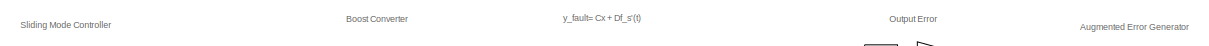
[diagram: Slding Mode - part 1/5, top left region]
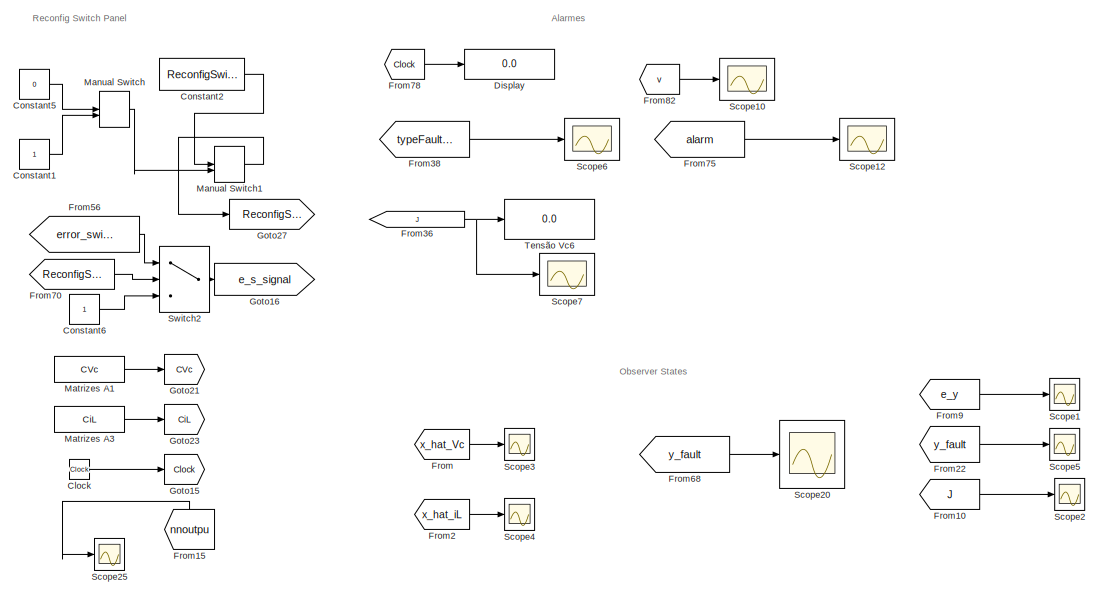
[diagram: Slding Mode - part 2/5, top center region]
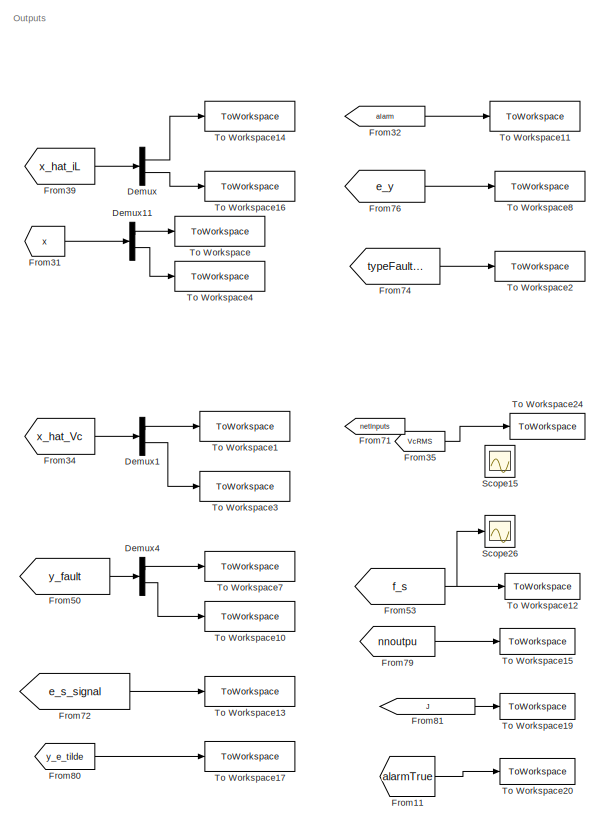
[diagram: Slding Mode - part 3/5, middle right region]
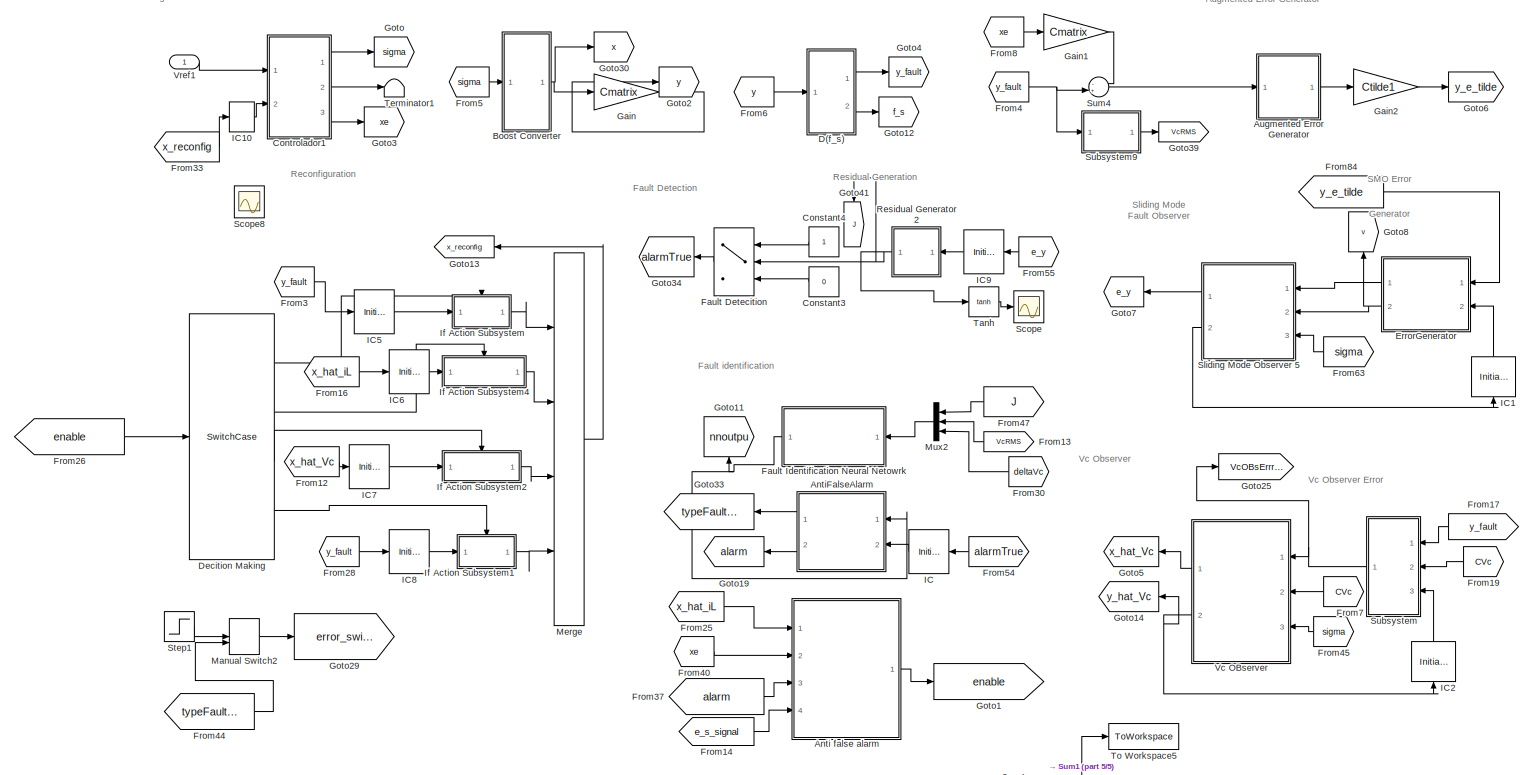
[diagram: Slding Mode - part 4/5, middle left region]
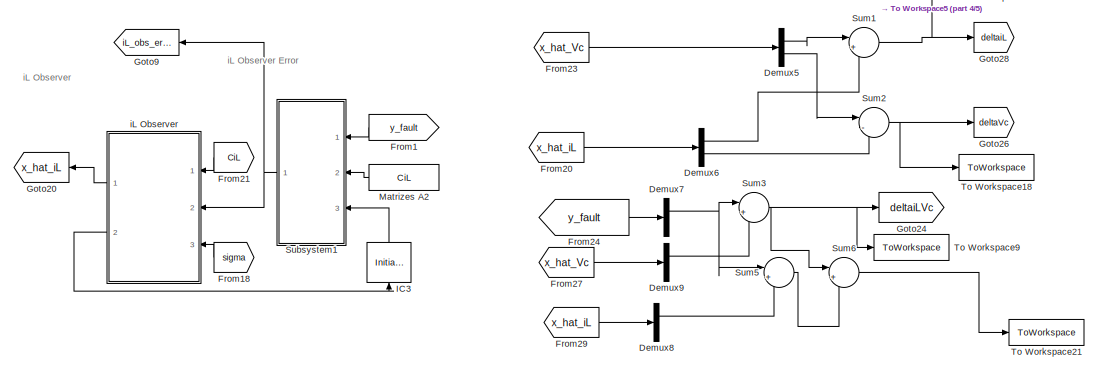
[diagram: Slding Mode - part 5/5, bottom left region]
BLOCK [SubSystem] Slding Mode
  NameLocation = left
  Ports = [1]
  RequestExecContextInheritance = off
BLOCK [SubSystem] Slding Mode/Anti false alarm
  Ports = [4, 1]
  RequestExecContextInheritance = off
BLOCK [Logic] Slding Mode/Anti false alarm/AND
  AllPortsSameDT = off
  IconShape = distinctive
  OutDataTypeStr = boolean
  Ports = [2, 1]
BLOCK [Logic] Slding Mode/Anti false alarm/AND1
  AllPortsSameDT = off
  IconShape = distinctive
  OutDataTypeStr = boolean
  Ports = [2, 1]
BLOCK [Constant] Slding Mode/Anti false alarm/Constant
  Value = 50
BLOCK [Constant] Slding Mode/Anti false alarm/Constant7
  Value = 2
BLOCK [Constant] Slding Mode/Anti false alarm/Constant8
BLOCK [Delay] Slding Mode/Anti false alarm/Delay
  DelayLength = 1
  InputPortMap = u0
  Ports = [1, 1]
BLOCK [Demux] Slding Mode/Anti false alarm/Demux10
  Outputs = 2
  Ports = [1, 2]
BLOCK [Demux] Slding Mode/Anti false alarm/Demux3
  Outputs = 2
  Ports = [1, 2]
BLOCK [RelationalOperator] Slding Mode/Anti false alarm/Equal
  InputSameDT = off
  Operator = ==
  OutDataTypeStr = boolean
  Ports = [2, 1]
  RndMeth = Simplest
BLOCK [From] Slding Mode/Anti false alarm/From41
  GotoTag = e_s_signal
  NameLocation = top
BLOCK [Goto] Slding Mode/Anti false alarm/Goto
  GotoTag = e_s_signal
BLOCK [RelationalOperator] Slding Mode/Anti false alarm/GreaterThan
  InputSameDT = off
  Operator = >
  OutDataTypeStr = boolean
  Ports = [2, 1]
  RndMeth = Simplest
BLOCK [InitialCondition] Slding Mode/Anti false alarm/IC4
  NameLocation = left
BLOCK [Sum] Slding Mode/Anti false alarm/Sum
  Inputs = |++
  Ports = [2, 1]
BLOCK [Switch] Slding Mode/Anti false alarm/Switch
  InputSameDT = off
  SaturateOnIntegerOverflow = off
BLOCK [Terminator] Slding Mode/Anti false alarm/Terminator
BLOCK [Terminator] Slding Mode/Anti false alarm/Terminator1
BLOCK [Inport] Slding Mode/Anti false alarm/alarm
  Port = 3
BLOCK [Inport] Slding Mode/Anti false alarm/e_s_signal
  Port = 4
BLOCK [Outport] Slding Mode/Anti false alarm/enable
BLOCK [Inport] Slding Mode/Anti false alarm/x_hat_iL
BLOCK [Inport] Slding Mode/Anti false alarm/xe
  Port = 2
BLOCK [SubSystem] Slding Mode/AntiFalseAlarm
  NameLocation = top
  Ports = [2, 2]
  RequestExecContextInheritance = off
BLOCK [Inport] Slding Mode/AntiFalseAlarm/Alarm
  Port = 2
BLOCK [Outport] Slding Mode/AntiFalseAlarm/AlarmOut
  Port = 2
BLOCK [Constant] Slding Mode/AntiFalseAlarm/Constant7
  NameLocation = left
BLOCK [Outport] Slding Mode/AntiFalseAlarm/FaultClass
BLOCK [Switch] Slding Mode/AntiFalseAlarm/FaultDetecition1
  Criteria = u2 > Threshold
  InputSameDT = off
  SaturateOnIntegerOverflow = off
BLOCK [Inport] Slding Mode/AntiFalseAlarm/PRNN
BLOCK [Product] Slding Mode/AntiFalseAlarm/Product1
  NameLocation = top
  Ports = [2, 1]
BLOCK [Step] Slding Mode/AntiFalseAlarm/Step1
  NameLocation = left
  SampleTime = 0
  Time = AlarmDeadTime
BLOCK [SubSystem] Slding Mode/Augmented Error Generator
  Ports = [1, 1]
  RequestExecContextInheritance = off
BLOCK [Mux] Slding Mode/Augmented Error Generator/Mux
  DisplayOption = bar
  Inputs = 2
  Ports = [2, 1]
BLOCK [Inport] Slding Mode/Augmented Error Generator/e
BLOCK [Outport] Slding Mode/Augmented Error Generator/e_tilde
BLOCK [SubSystem] Slding Mode/Augmented Error Generator/z1
  Ports = [1, 1]
  RequestExecContextInheritance = off
BLOCK [Constant] Slding Mode/Augmented Error Generator/z1/Constant1
  Value = [0;0]
  VectorParams1D = off
BLOCK [Gain] Slding Mode/Augmented Error Generator/z1/Gain2
  Gain = Cmatrix
  Multiplication = Matrix(K*u) (u vector)
BLOCK [Integrator] Slding Mode/Augmented Error Generator/z1/Integrator6
  InitialConditionSource = external
  Ports = [2, 1]
BLOCK [Outport] Slding Mode/Augmented Error Generator/z1/z
BLOCK [Inport] Slding Mode/Augmented Error Generator/z1/z_dot
BLOCK [SubSystem] Slding Mode/Boost Converter
  Ports = [1, 1]
  RequestExecContextInheritance = off
BLOCK [SubSystem] Slding Mode/Boost Converter/ConversorBoost
  Ports = [1, 2]
  RequestExecContextInheritance = off
BLOCK [Reference] Slding Mode/Boost Converter/ConversorBoost/C  REF=powerlib/Elements/Series RLC Branch
  NameLocation = left
  Ports = [0, 0, 0, 0, 0, 1, 1]
  SourceBlock = powerlib/Elements/Series RLC Branch
  SourceProductBaseCode = PS
  SourceType = Series RLC Branch
BLOCK [Reference] Slding Mode/Boost Converter/ConversorBoost/Ground  REF=powerlib/Elements/Ground
  NameLocation = right
  Ports = [0, 0, 0, 0, 0, 1]
  SourceBlock = powerlib/Elements/Ground
  SourceProductBaseCode = PS
  SourceType = Ground
BLOCK [Reference] Slding Mode/Boost Converter/ConversorBoost/L  REF=powerlib/Elements/Series RLC Branch
  Ports = [0, 0, 0, 0, 0, 1, 1]
  SourceBlock = powerlib/Elements/Series RLC Branch
  SourceProductBaseCode = PS
  SourceType = Series RLC Branch
BLOCK [Reference] Slding Mode/Boost Converter/ConversorBoost/R  REF=powerlib/Elements/Series RLC Branch
  Ports = [0, 0, 0, 0, 0, 1, 1]
  SourceBlock = powerlib/Elements/Series RLC Branch
  SourceProductBaseCode = PS
  SourceType = Series RLC Branch
BLOCK [Reference] Slding Mode/Boost Converter/ConversorBoost/Ro  REF=powerlib/Elements/Series RLC Branch
  NameLocation = left
  Ports = [0, 0, 0, 0, 0, 1, 1]
  SourceBlock = powerlib/Elements/Series RLC Branch
  SourceProductBaseCode = PS
  SourceType = Series RLC Branch
BLOCK [Reference] Slding Mode/Boost Converter/ConversorBoost/S1  REF=powerlib/Power
Electronics/Mosfet
  NameLocation = left
  Ports = [1, 1, 0, 0, 0, 1, 1]
  SourceBlock = powerlib/Power\nElectronics/Mosfet
  SourceProductBaseCode = PS
  SourceType = Mosfet
BLOCK [Reference] Slding Mode/Boost Converter/ConversorBoost/S2  REF=powerlib/Power
Electronics/Diode
  Ports = [0, 1, 0, 0, 0, 1, 1]
  SourceBlock = powerlib/Power\nElectronics/Diode
  SourceProductBaseCode = PS
  SourceType = Diode
BLOCK [Display] Slding Mode/Boost Converter/ConversorBoost/Tensão Ve1
  Decimation = 1
  Ports = [1]
BLOCK [Terminator] Slding Mode/Boost Converter/ConversorBoost/Terminator
BLOCK [Terminator] Slding Mode/Boost Converter/ConversorBoost/Terminator4
BLOCK [Outport] Slding Mode/Boost Converter/ConversorBoost/Vcoutput
BLOCK [Reference] Slding Mode/Boost Converter/ConversorBoost/Voltage Measurement  REF=powerlib/Measurements/Voltage Measurement
  Ports = [0, 1, 0, 0, 0, 2]
  SourceBlock = powerlib/Measurements/Voltage Measurement
  SourceProductBaseCode = PS
  SourceType = Voltage Measurement
BLOCK [Reference] Slding Mode/Boost Converter/ConversorBoost/Voltage Measurement1  REF=powerlib/Measurements/Voltage Measurement
  Ports = [0, 1, 0, 0, 0, 2]
  SourceBlock = powerlib/Measurements/Voltage Measurement
  SourceProductBaseCode = PS
  SourceType = Voltage Measurement
BLOCK [Outport] Slding Mode/Boost Converter/ConversorBoost/Vu
  NameLocation = top
  Port = 2
BLOCK [Inport] Slding Mode/Boost Converter/ConversorBoost/sigma
  NameLocation = left
BLOCK [Reference] Slding Mode/Boost Converter/ConversorBoost/u  REF=powerlib/Electrical
Sources/DC Voltage Source
  NameLocation = right
  Ports = [0, 0, 0, 0, 0, 1, 1]
  SourceBlock = powerlib/Electrical\nSources/DC Voltage Source
  SourceProductBaseCode = PS
  SourceType = DC Voltage Source
BLOCK [From] Slding Mode/Boost Converter/From
  GotoTag = Rparallelinput
BLOCK [From] Slding Mode/Boost Converter/From4
  GotoTag = Vinput1
BLOCK [From] Slding Mode/Boost Converter/From5
  GotoTag = Vinput2
BLOCK [From] Slding Mode/Boost Converter/From6
  GotoTag = Rinput
BLOCK [From] Slding Mode/Boost Converter/From8
  GotoTag = Vinput3
BLOCK [Goto] Slding Mode/Boost Converter/Goto
  GotoTag = Vinput3
BLOCK [Goto] Slding Mode/Boost Converter/Goto1
  GotoTag = Rparallelinput
BLOCK [Goto] Slding Mode/Boost Converter/Goto4
  GotoTag = Vinput2
BLOCK [Goto] Slding Mode/Boost Converter/Goto5
  GotoTag = Vinput1
BLOCK [Goto] Slding Mode/Boost Converter/Goto6
  GotoTag = Rinput
BLOCK [Mux] Slding Mode/Boost Converter/Mux1
  DisplayOption = bar
  Inputs = 2
  Ports = [2, 1]
BLOCK [Terminator] Slding Mode/Boost Converter/Terminator
BLOCK [Terminator] Slding Mode/Boost Converter/Terminator1
BLOCK [SubSystem] Slding Mode/Boost Converter/TipoEntrada
  Ports = [0, 5]
  RequestExecContextInheritance = off
BLOCK [Constant] Slding Mode/Boost Converter/TipoEntrada/Constant1
  Value = LoadAddSwitch
BLOCK [Constant] Slding Mode/Boost Converter/TipoEntrada/Constant11
  Value = SourceRemoveSwitch
BLOCK [Constant] Slding Mode/Boost Converter/TipoEntrada/Constant2
  Value = SourceAddSignalSwitch
BLOCK [Constant] Slding Mode/Boost Converter/TipoEntrada/Constant3
  Value = LoadAddSignalSwitch
BLOCK [Constant] Slding Mode/Boost Converter/TipoEntrada/Constant4
  Value = SourceAddSwitch
BLOCK [Constant] Slding Mode/Boost Converter/TipoEntrada/Constant5
  Value = LoadRemoveSwitch
BLOCK [Constant] Slding Mode/Boost Converter/TipoEntrada/Constant6
  Value = LoadRemoveSignalSwitch
BLOCK [Constant] Slding Mode/Boost Converter/TipoEntrada/Constant7
  Value = SourceRemoveSignalSwitch
BLOCK [Constant] Slding Mode/Boost Converter/TipoEntrada/Constant8
  Value = SourceRemoveSwitch
BLOCK [From] Slding Mode/Boost Converter/TipoEntrada/From1
  GotoTag = VinputAdd
BLOCK [From] Slding Mode/Boost Converter/TipoEntrada/From3
  GotoTag = VinputRemove
BLOCK [Goto] Slding Mode/Boost Converter/TipoEntrada/Goto2
  GotoTag = VinputAdd
BLOCK [Goto] Slding Mode/Boost Converter/TipoEntrada/Goto3
  GotoTag = VinputRemove
BLOCK [Logic] Slding Mode/Boost Converter/TipoEntrada/Logical Operator
  AllPortsSameDT = off
  Operator = NOT
  OutDataTypeStr = boolean
  Ports = [1, 1]
BLOCK [Logic] Slding Mode/Boost Converter/TipoEntrada/Logical Operator1
  AllPortsSameDT = off
  Operator = NOT
  OutDataTypeStr = boolean
  Ports = [1, 1]
BLOCK [Logic] Slding Mode/Boost Converter/TipoEntrada/Logical Operator2
  AllPortsSameDT = off
  Operator = NOT
  OutDataTypeStr = boolean
  Ports = [1, 1]
BLOCK [Logic] Slding Mode/Boost Converter/TipoEntrada/Logical Operator3
  AllPortsSameDT = off
  Operator = NOT
  OutDataTypeStr = boolean
  Ports = [1, 1]
BLOCK [Outport] Slding Mode/Boost Converter/TipoEntrada/Rparallelvariavel 
  Port = 5
BLOCK [Outport] Slding Mode/Boost Converter/TipoEntrada/Rvariavel 
  Port = 4
BLOCK [Constant] Slding Mode/Boost Converter/TipoEntrada/Sem Disturbio
BLOCK [Constant] Slding Mode/Boost Converter/TipoEntrada/Sem Disturbio  
  Value = 0
BLOCK [Constant] Slding Mode/Boost Converter/TipoEntrada/Sen Disturbiio
  Value = 0
BLOCK [Constant] Slding Mode/Boost Converter/TipoEntrada/Sen Disturbiio1
  Value = 0
BLOCK [Step] Slding Mode/Boost Converter/TipoEntrada/Step
  After = 0
  Before = 1
  SampleTime = 0
  Time = LoadAddTime
BLOCK [Step] Slding Mode/Boost Converter/TipoEntrada/Step1
  SampleTime = 0
  Time = SourceAddTime
BLOCK [Step] Slding Mode/Boost Converter/TipoEntrada/Step2
  SampleTime = 0
  Time = LoadRemoveTime
BLOCK [Step] Slding Mode/Boost Converter/TipoEntrada/Step3
  SampleTime = 0
  Time = SourceRemoveTime
BLOCK [Switch] Slding Mode/Boost Converter/TipoEntrada/Switch1
  Criteria = u2 ~= 0
  InputSameDT = off
  SaturateOnIntegerOverflow = off
BLOCK [Switch] Slding Mode/Boost Converter/TipoEntrada/Switch10
  Criteria = u2 ~= 0
  InputSameDT = off
  SaturateOnIntegerOverflow = off
BLOCK [Switch] Slding Mode/Boost Converter/TipoEntrada/Switch2
  Criteria = u2 ~= 0
  InputSameDT = off
  SaturateOnIntegerOverflow = off
BLOCK [Switch] Slding Mode/Boost Converter/TipoEntrada/Switch3
  Criteria = u2 ~= 0
  InputSameDT = off
  SaturateOnIntegerOverflow = off
BLOCK [Switch] Slding Mode/Boost Converter/TipoEntrada/Switch5
  Criteria = u2 ~= 0
  InputSameDT = off
  SaturateOnIntegerOverflow = off
BLOCK [Switch] Slding Mode/Boost Converter/TipoEntrada/Switch6
  Criteria = u2 ~= 0
  InputSameDT = off
  SaturateOnIntegerOverflow = off
BLOCK [Switch] Slding Mode/Boost Converter/TipoEntrada/Switch7
  Criteria = u2 ~= 0
  InputSameDT = off
  SaturateOnIntegerOverflow = off
BLOCK [Switch] Slding Mode/Boost Converter/TipoEntrada/Switch8
  Criteria = u2 ~= 0
  InputSameDT = off
  SaturateOnIntegerOverflow = off
BLOCK [Switch] Slding Mode/Boost Converter/TipoEntrada/Switch9
  Criteria = u2 ~= 0
  InputSameDT = off
  SaturateOnIntegerOverflow = off
BLOCK [Outport] Slding Mode/Boost Converter/TipoEntrada/Vu
BLOCK [Outport] Slding Mode/Boost Converter/TipoEntrada/VuAdd
  Port = 2
BLOCK [Outport] Slding Mode/Boost Converter/TipoEntrada/VuRemove
  Port = 3
BLOCK [SubSystem] Slding Mode/Boost Converter/TipoEntrada/disturbio
  Ports = [0, 1]
  RequestExecContextInheritance = off
BLOCK [Step] Slding Mode/Boost Converter/TipoEntrada/disturbio/Step1
  SampleTime = 0
BLOCK [Step] Slding Mode/Boost Converter/TipoEntrada/disturbio/Step2
  After = -1
  SampleTime = 0
  Time = 1.1
BLOCK [Sum] Slding Mode/Boost Converter/TipoEntrada/disturbio/Sum
  Inputs = |++
  Ports = [2, 1]
BLOCK [Outport] Slding Mode/Boost Converter/TipoEntrada/disturbio/disturbio
BLOCK [SubSystem] Slding Mode/Boost Converter/TipoEntrada/disturbio1
  Ports = [0, 1]
  RequestExecContextInheritance = off
BLOCK [Step] Slding Mode/Boost Converter/TipoEntrada/disturbio1/Step1
  SampleTime = 0
  Time = 1.2
BLOCK [Step] Slding Mode/Boost Converter/TipoEntrada/disturbio1/Step2
  After = -1
  SampleTime = 0
  Time = 1.4
BLOCK [Sum] Slding Mode/Boost Converter/TipoEntrada/disturbio1/Sum
  Inputs = |++
  Ports = [2, 1]
BLOCK [Outport] Slding Mode/Boost Converter/TipoEntrada/disturbio1/disturbio
BLOCK [SubSystem] Slding Mode/Boost Converter/TipoEntrada/disturbio2
  Ports = [0, 1]
  RequestExecContextInheritance = off
BLOCK [Step] Slding Mode/Boost Converter/TipoEntrada/disturbio2/Step1
  SampleTime = 0
  Time = 1.2
BLOCK [Step] Slding Mode/Boost Converter/TipoEntrada/disturbio2/Step2
  After = -1
  SampleTime = 0
  Time = 1.4
BLOCK [Sum] Slding Mode/Boost Converter/TipoEntrada/disturbio2/Sum
  Inputs = |++
  Ports = [2, 1]
BLOCK [Outport] Slding Mode/Boost Converter/TipoEntrada/disturbio2/disturbio
BLOCK [SubSystem] Slding Mode/Boost Converter/TipoEntrada/disturbio3
  Ports = [0, 1]
  RequestExecContextInheritance = off
BLOCK [Step] Slding Mode/Boost Converter/TipoEntrada/disturbio3/Step1
  SampleTime = 0
BLOCK [Step] Slding Mode/Boost Converter/TipoEntrada/disturbio3/Step2
  After = -1
  SampleTime = 0
  Time = 1.1
BLOCK [Sum] Slding Mode/Boost Converter/TipoEntrada/disturbio3/Sum
  Inputs = |++
  Ports = [2, 1]
BLOCK [Outport] Slding Mode/Boost Converter/TipoEntrada/disturbio3/disturbio
BLOCK [Inport] Slding Mode/Boost Converter/sigma
  NameLocation = right
BLOCK [Outport] Slding Mode/Boost Converter/x
BLOCK [Clock] Slding Mode/Clock
BLOCK [Constant] Slding Mode/Constant1
BLOCK [Constant] Slding Mode/Constant2
  Value = ReconfigSwitch
BLOCK [Constant] Slding Mode/Constant3
  Value = 0
BLOCK [Constant] Slding Mode/Constant4
BLOCK [Constant] Slding Mode/Constant5
  Value = 0
BLOCK [Constant] Slding Mode/Constant6
BLOCK [SubSystem] Slding Mode/Controlador1
  Ports = [2, 3]
  RequestExecContextInheritance = off
BLOCK [Constant] Slding Mode/Controlador1/    
  NameLocation = right
  Value = ueq
BLOCK [Constant] Slding Mode/Controlador1/    2
  NameLocation = top
  Value = Smep
BLOCK [Constant] Slding Mode/Controlador1/Constant6
  Value = boost_parameters
BLOCK [Demux] Slding Mode/Controlador1/Demux1
  Outputs = 2
  Ports = [1, 2]
BLOCK [Demux] Slding Mode/Controlador1/Demux2
  Outputs = 2
  Ports = [1, 2]
BLOCK [Gain] Slding Mode/Controlador1/Gain
  Gain = 0.8
  NameLocation = top
BLOCK [Gain] Slding Mode/Controlador1/Gain1
  Gain = 8
  NameLocation = top
BLOCK [Gain] Slding Mode/Controlador1/Gain3
  Gain = 2.3
  NameLocation = top
BLOCK [Integrator] Slding Mode/Controlador1/Integrator1
  NameLocation = top
  Ports = [1, 1]
BLOCK [Reference] Slding Mode/Controlador1/PWM  REF=powerlib_meascontrol/Pulse & Signal
Generators/PWM Generator
(DC-DC)
  NameLocation = top
  Ports = [1, 1]
  SourceBlock = powerlib_meascontrol/Pulse & Signal\nGenerators/PWM Generator\n(DC-DC)
  SourceProductBaseCode = PS
  SourceType = PWM Generator (DC-DC)
BLOCK [Scope] Slding Mode/Controlador1/Scope
  Floating = off
  NumInputPorts = 1
  Ports = [1]
  ScopeSpecificationString = Simulink.scopes.TimeScopeBlockCfg('CurrentConfiguration', extmgr.ConfigurationSet(extmgr.Configuration('Core','General UI',true),extmgr.Configuration('Core','Source UI',true),extmgr.Configuration('Sources','WiredSimulink',true,'DataLoggingVariableName','ScopeData8'),extmgr.Configuration('Visuals','Time Domain',true,'SerializedDisplays',{struct('MinYLimReal','-0.51961','MaxYLimReal','0.48997','YLab...<+1421ch>
BLOCK [SubSystem] Slding Mode/Controlador1/SlidingSurface
  NameLocation = top
  Ports = [2, 1]
  RequestExecContextInheritance = off
BLOCK [Abs] Slding Mode/Controlador1/SlidingSurface/Abs
  SaturateOnIntegerOverflow = off
BLOCK [From] Slding Mode/Controlador1/SlidingSurface/From
  GotoTag = ep
BLOCK [From] Slding Mode/Controlador1/SlidingSurface/From1
  GotoTag = S
BLOCK [Goto] Slding Mode/Controlador1/SlidingSurface/Goto
  GotoTag = S
BLOCK [Goto] Slding Mode/Controlador1/SlidingSurface/Goto1
  GotoTag = ep
BLOCK [RelationalOperator] Slding Mode/Controlador1/SlidingSurface/GreaterThan
  InputSameDT = off
  Operator = >
  OutDataTypeStr = boolean
  Ports = [2, 1]
  RndMeth = Simplest
BLOCK [If] Slding Mode/Controlador1/SlidingSurface/If
  IfExpression = u1 ~= 0
  Ports = [1, 2]
BLOCK [SubSystem] Slding Mode/Controlador1/SlidingSurface/If Action Subsystem
  Ports = [1, 1, 0, 0, 0, 0, 0, 1]
  RequestExecContextInheritance = off
  TreatAsAtomicUnit = on
BLOCK [ActionPort] Slding Mode/Controlador1/SlidingSurface/If Action Subsystem/Action Port
  ActionPortLabel = if(u1 ~= 0)
BLOCK [Inport] Slding Mode/Controlador1/SlidingSurface/If Action Subsystem/S
BLOCK [Signum] Slding Mode/Controlador1/SlidingSurface/If Action Subsystem/Sign
BLOCK [Outport] Slding Mode/Controlador1/SlidingSurface/If Action Subsystem/d
BLOCK [SubSystem] Slding Mode/Controlador1/SlidingSurface/If Action Subsystem2
  Ports = [2, 1, 0, 0, 0, 0, 0, 1]
  RequestExecContextInheritance = off
  TreatAsAtomicUnit = on
BLOCK [ActionPort] Slding Mode/Controlador1/SlidingSurface/If Action Subsystem2/Action Port
  ActionPortLabel = else
BLOCK [Product] Slding Mode/Controlador1/SlidingSurface/If Action Subsystem2/Divide
  Inputs = */
  Ports = [2, 1]
BLOCK [Inport] Slding Mode/Controlador1/SlidingSurface/If Action Subsystem2/S
BLOCK [Outport] Slding Mode/Controlador1/SlidingSurface/If Action Subsystem2/d
BLOCK [Inport] Slding Mode/Controlador1/SlidingSurface/If Action Subsystem2/ep
  Port = 2
BLOCK [Merge] Slding Mode/Controlador1/SlidingSurface/Merge1
  Ports = [2, 1]
BLOCK [Inport] Slding Mode/Controlador1/SlidingSurface/S
BLOCK [Outport] Slding Mode/Controlador1/SlidingSurface/d
BLOCK [Inport] Slding Mode/Controlador1/SlidingSurface/ep
  Port = 2
BLOCK [Sum] Slding Mode/Controlador1/Sum
  Inputs = |++
  NameLocation = top
  Ports = [2, 1]
BLOCK [Sum] Slding Mode/Controlador1/Sum4
  Inputs = ++|
  NameLocation = top
  Ports = [2, 1]
BLOCK [Sum] Slding Mode/Controlador1/Sum5
  Inputs = -+|
  NameLocation = top
  Ports = [2, 1]
BLOCK [Sum] Slding Mode/Controlador1/Sum6
  Inputs = -+|
  NameLocation = top
  Ports = [2, 1]
BLOCK [Sum] Slding Mode/Controlador1/Sum9
  Inputs = |++
  NameLocation = top
  Ports = [2, 1]
BLOCK [Outport] Slding Mode/Controlador1/i_e
  Port = 2
BLOCK [Outport] Slding Mode/Controlador1/sigma
  NameLocation = top
BLOCK [Inport] Slding Mode/Controlador1/ve
BLOCK [Inport] Slding Mode/Controlador1/x
  Port = 2
BLOCK [Outport] Slding Mode/Controlador1/x_e
  Port = 3
BLOCK [SubSystem] Slding Mode/Controlador1/xe
  ErrorFcn = Stateflow.Translate.translate
  PermitHierarchicalResolution = ExplicitOnly
  Ports = [2, 2]
  RequestExecContextInheritance = off
  SFBlockType = MATLAB Function
  TreatAsAtomicUnit = on
BLOCK [Demux] Slding Mode/Controlador1/xe/ Demux 
  Outputs = 1
  Ports = [1, 1]
BLOCK [S-Function] Slding Mode/Controlador1/xe/ SFunction 
  EnableBusSupport = on
  FunctionName = sf_sfun
  PortCounts = [2 3]
  Ports = [2, 3]
  SFcnIsStateOwnerBlock = off
  SFunctionDeploymentMode = off
  Tag = Stateflow S-Function 40
BLOCK [Terminator] Slding Mode/Controlador1/xe/ Terminator 
BLOCK [Inport] Slding Mode/Controlador1/xe/boost_parameters
BLOCK [Outport] Slding Mode/Controlador1/xe/i_e
  Port = 2
BLOCK [Inport] Slding Mode/Controlador1/xe/ve
  Port = 2
BLOCK [Outport] Slding Mode/Controlador1/xe/x_e
BLOCK [SubSystem] Slding Mode/D(f_s)
  Ports = [1, 2]
  RequestExecContextInheritance = off
BLOCK [Constant] Slding Mode/D(f_s)/Constant
  NameLocation = left
  Value = D1
BLOCK [Constant] Slding Mode/D(f_s)/Constant1
  Value = VcFaultSwitch
BLOCK [Constant] Slding Mode/D(f_s)/Constant2
  Value = iLGainFaultFactor
BLOCK [Constant] Slding Mode/D(f_s)/Constant3
  Value = VcNoiseFaultSwitch
BLOCK [Constant] Slding Mode/D(f_s)/Constant4
  Value = VcGainFaultFactor
BLOCK [Constant] Slding Mode/D(f_s)/Constant7
  Value = iLFaultSwitch
BLOCK [Constant] Slding Mode/D(f_s)/Constant8
  Value = iLNoiseFaultSwitch
BLOCK [Demux] Slding Mode/D(f_s)/Demux
  Outputs = 2
  Ports = [1, 2]
BLOCK [From] Slding Mode/D(f_s)/From
  GotoTag = y
BLOCK [From] Slding Mode/D(f_s)/From1
  GotoTag = VcOutput
BLOCK [From] Slding Mode/D(f_s)/From2
  GotoTag = iLoutput
BLOCK [Goto] Slding Mode/D(f_s)/Goto
  GotoTag = iLoutput
BLOCK [Goto] Slding Mode/D(f_s)/Goto1
  GotoTag = VcOutput
BLOCK [Goto] Slding Mode/D(f_s)/Goto2
  GotoTag = y
BLOCK [Product] Slding Mode/D(f_s)/Matrix Multiply
  Multiplication = Matrix(*)
  Ports = [2, 1]
BLOCK [Mux] Slding Mode/D(f_s)/Mux
  DisplayOption = bar
  Inputs = 2
  Ports = [2, 1]
BLOCK [Step] Slding Mode/D(f_s)/Step10
  SampleTime = 0
  Time = VcFaultTime
BLOCK [Step] Slding Mode/D(f_s)/Step2
  SampleTime = 0
  Time = VcNoiseTime
BLOCK [Step] Slding Mode/D(f_s)/Step8
  SampleTime = 0
  Time = iLFaultTime
BLOCK [Step] Slding Mode/D(f_s)/Step9
  SampleTime = 0
  Time = iLNoiseTime
BLOCK [SubSystem] Slding Mode/D(f_s)/Subsystem
  Ports = [6, 1]
  RequestExecContextInheritance = off
BLOCK [Constant] Slding Mode/D(f_s)/Subsystem/Constant11
  Value = 0
BLOCK [Constant] Slding Mode/D(f_s)/Subsystem/Constant9
  Value = 0
BLOCK [Inport] Slding Mode/D(f_s)/Subsystem/FaultFactor
  Port = 6
BLOCK [Inport] Slding Mode/D(f_s)/Subsystem/FaultStep
  Port = 2
BLOCK [Inport] Slding Mode/D(f_s)/Subsystem/FaultSwtich
  Port = 4
BLOCK [Inport] Slding Mode/D(f_s)/Subsystem/NoiseFaultSwitch
  Port = 5
BLOCK [Inport] Slding Mode/D(f_s)/Subsystem/NoiseStep
  Port = 3
BLOCK [Product] Slding Mode/D(f_s)/Subsystem/Product
  Ports = [2, 1]
BLOCK [SubSystem] Slding Mode/D(f_s)/Subsystem/Subsystem
  Ports = [1, 1]
  RequestExecContextInheritance = off
BLOCK [Sum] Slding Mode/D(f_s)/Subsystem/Subsystem/Add
  IconShape = rectangular
  Ports = [2, 1]
BLOCK [Reference] Slding Mode/D(f_s)/Subsystem/Subsystem/Band-Limited White Noise  REF=simulink/Sources/Band-Limited
White Noise
  Ports = [0, 1]
  SourceBlock = simulink/Sources/Band-Limited\nWhite Noise
  SourceProductBaseCode = SL
  SourceType = Band-Limited White Noise.
BLOCK [Inport] Slding Mode/D(f_s)/Subsystem/Subsystem/input
BLOCK [Outport] Slding Mode/D(f_s)/Subsystem/Subsystem/noiseOutput
BLOCK [Switch] Slding Mode/D(f_s)/Subsystem/Switch10
  Criteria = u2 ~= 0
  InputSameDT = off
  SaturateOnIntegerOverflow = off
BLOCK [Switch] Slding Mode/D(f_s)/Subsystem/Switch11
  Criteria = u2 ~= 0
  InputSameDT = off
  SaturateOnIntegerOverflow = off
BLOCK [Switch] Slding Mode/D(f_s)/Subsystem/Switch13
  Criteria = u2 ~= 0
  InputSameDT = off
  SaturateOnIntegerOverflow = off
BLOCK [Switch] Slding Mode/D(f_s)/Subsystem/Switch9
  Criteria = u2 ~= 0
  InputSameDT = off
  SaturateOnIntegerOverflow = off
BLOCK [MultiPortSwitch] Slding Mode/D(f_s)/Subsystem/iLFault Switch
  DataPortForDefault = Additional data port
  DataPortOrder = Zero-based contiguous
  InputSameDT = off
  Ports = [5, 1]
  SaturateOnIntegerOverflow = off
  zeroidx = on
BLOCK [Inport] Slding Mode/D(f_s)/Subsystem/input
BLOCK [Outport] Slding Mode/D(f_s)/Subsystem/output
BLOCK [SubSystem] Slding Mode/D(f_s)/Subsystem2
  Ports = [6, 1]
  RequestExecContextInheritance = off
BLOCK [Constant] Slding Mode/D(f_s)/Subsystem2/Constant11
  Value = 0
BLOCK [Constant] Slding Mode/D(f_s)/Subsystem2/Constant9
  Value = 0
BLOCK [Inport] Slding Mode/D(f_s)/Subsystem2/FaultFactor
  Port = 6
BLOCK [Inport] Slding Mode/D(f_s)/Subsystem2/FaultStep
  Port = 2
BLOCK [Inport] Slding Mode/D(f_s)/Subsystem2/FaultSwtich
  Port = 4
BLOCK [Inport] Slding Mode/D(f_s)/Subsystem2/NoiseFaultSwitch
  Port = 5
BLOCK [Inport] Slding Mode/D(f_s)/Subsystem2/NoiseStep
  Port = 3
BLOCK [Product] Slding Mode/D(f_s)/Subsystem2/Product
  Ports = [2, 1]
BLOCK [SubSystem] Slding Mode/D(f_s)/Subsystem2/Subsystem
  Ports = [1, 1]
  RequestExecContextInheritance = off
BLOCK [Sum] Slding Mode/D(f_s)/Subsystem2/Subsystem/Add
  IconShape = rectangular
  Ports = [2, 1]
BLOCK [Reference] Slding Mode/D(f_s)/Subsystem2/Subsystem/Band-Limited White Noise  REF=simulink/Sources/Band-Limited
White Noise
  Ports = [0, 1]
  SourceBlock = simulink/Sources/Band-Limited\nWhite Noise
  SourceProductBaseCode = SL
  SourceType = Band-Limited White Noise.
BLOCK [Inport] Slding Mode/D(f_s)/Subsystem2/Subsystem/input
BLOCK [Outport] Slding Mode/D(f_s)/Subsystem2/Subsystem/noiseOutput
BLOCK [Switch] Slding Mode/D(f_s)/Subsystem2/Switch10
  Criteria = u2 ~= 0
  InputSameDT = off
  SaturateOnIntegerOverflow = off
BLOCK [Switch] Slding Mode/D(f_s)/Subsystem2/Switch11
  Criteria = u2 ~= 0
  InputSameDT = off
  SaturateOnIntegerOverflow = off
BLOCK [Switch] Slding Mode/D(f_s)/Subsystem2/Switch13
  Criteria = u2 ~= 0
  InputSameDT = off
  SaturateOnIntegerOverflow = off
BLOCK [Switch] Slding Mode/D(f_s)/Subsystem2/Switch9
  Criteria = u2 ~= 0
  InputSameDT = off
  SaturateOnIntegerOverflow = off
  ZeroCross = off
BLOCK [MultiPortSwitch] Slding Mode/D(f_s)/Subsystem2/iLFault Switch
  DataPortForDefault = Additional data port
  DataPortOrder = Zero-based contiguous
  InputSameDT = off
  Ports = [5, 1]
  SaturateOnIntegerOverflow = off
  zeroidx = on
BLOCK [Inport] Slding Mode/D(f_s)/Subsystem2/input
BLOCK [Outport] Slding Mode/D(f_s)/Subsystem2/output
BLOCK [Sum] Slding Mode/D(f_s)/Sum
  Inputs = |+-
  Ports = [2, 1]
BLOCK [Outport] Slding Mode/D(f_s)/f_s
  Port = 2
BLOCK [Inport] Slding Mode/D(f_s)/y
BLOCK [Outport] Slding Mode/D(f_s)/y_fault
BLOCK [SwitchCase] Slding Mode/Decition Making
  CaseConditions = {[1,6],[2,3],[4,5]}
  Ports = [1, 4]
BLOCK [Demux] Slding Mode/Demux
  Outputs = 2
  Ports = [1, 2]
BLOCK [Demux] Slding Mode/Demux1
  Outputs = 2
  Ports = [1, 2]
BLOCK [Demux] Slding Mode/Demux11
  Outputs = 2
  Ports = [1, 2]
BLOCK [Demux] Slding Mode/Demux4
  Outputs = 2
  Ports = [1, 2]
BLOCK [Demux] Slding Mode/Demux5
  Outputs = 2
  Ports = [1, 2]
BLOCK [Demux] Slding Mode/Demux6
  Outputs = 2
  Ports = [1, 2]
BLOCK [Demux] Slding Mode/Demux7
  Outputs = 2
  Ports = [1, 2]
BLOCK [Demux] Slding Mode/Demux8
  Outputs = 2
  Ports = [1, 2]
BLOCK [Demux] Slding Mode/Demux9
  Outputs = 2
  Ports = [1, 2]
BLOCK [Display] Slding Mode/Display
  Decimation = 1
  Ports = [1]
BLOCK [SubSystem] Slding Mode/ErrorGenerator
  NameLocation = top
  Ports = [2, 2]
  RequestExecContextInheritance = off
BLOCK [Logic] Slding Mode/ErrorGenerator/AND
  AllPortsSameDT = off
  IconShape = distinctive
  OutDataTypeStr = boolean
  Ports = [2, 1]
BLOCK [Reference] Slding Mode/ErrorGenerator/Compare To Zero  REF=simulink/Logic and Bit
Operations/Compare
To Zero
  Ports = [1, 1]
  SourceBlock = simulink/Logic and Bit\nOperations/Compare\nTo Zero
  SourceProductBaseCode = SL
  SourceType = Compare To Zero
BLOCK [Constant] Slding Mode/ErrorGenerator/Constant1
  Value = [0;0]
BLOCK [Demux] Slding Mode/ErrorGenerator/Demux
  Outputs = 2
  Ports = [1, 2]
BLOCK [From] Slding Mode/ErrorGenerator/From1
  GotoTag = e_y
BLOCK [Goto] Slding Mode/ErrorGenerator/Goto
  GotoTag = e_y
BLOCK [If] Slding Mode/ErrorGenerator/If
  IfExpression = u1 ~= 0
  Ports = [1, 2]
BLOCK [SubSystem] Slding Mode/ErrorGenerator/If Action Subsystem
  Ports = [1, 1, 0, 0, 0, 0, 0, 1]
  RequestExecContextInheritance = off
  TreatAsAtomicUnit = on
BLOCK [ActionPort] Slding Mode/ErrorGenerator/If Action Subsystem/Action Port
  ActionPortLabel = if(u1 ~= 0)
BLOCK [Product] Slding Mode/ErrorGenerator/If Action Subsystem/Matrix Multiply
  Multiplication = Matrix(*)
  Ports = [2, 1]
BLOCK [Product] Slding Mode/ErrorGenerator/If Action Subsystem/Matrix Multiply1
  Ports = [2, 1]
BLOCK [Constant] Slding Mode/ErrorGenerator/If Action Subsystem/Matrizes A1
  Value = rho
BLOCK [Constant] Slding Mode/ErrorGenerator/If Action Subsystem/Matrizes A2
  Value = F
BLOCK [Reference] Slding Mode/ErrorGenerator/If Action Subsystem/Normalization  REF=dspmathops/Normalization
  Ports = [1, 1]
  SourceBlock = dspmathops/Normalization
  SourceProductBaseCode = DS
  SourceType = Normalization
BLOCK [Inport] Slding Mode/ErrorGenerator/If Action Subsystem/e_y
BLOCK [Outport] Slding Mode/ErrorGenerator/If Action Subsystem/v
BLOCK [SubSystem] Slding Mode/ErrorGenerator/If Action Subsystem1
  Ports = [1, 1, 0, 0, 0, 0, 0, 1]
  RequestExecContextInheritance = off
  TreatAsAtomicUnit = on
BLOCK [ActionPort] Slding Mode/ErrorGenerator/If Action Subsystem1/Action Port
  ActionPortLabel = else
BLOCK [Inport] Slding Mode/ErrorGenerator/If Action Subsystem1/e_y
BLOCK [Outport] Slding Mode/ErrorGenerator/If Action Subsystem1/v
BLOCK [Merge] Slding Mode/ErrorGenerator/Merge
  InitialOutput = [0;0]
  Ports = [2, 1]
BLOCK [Sum] Slding Mode/ErrorGenerator/Sum
  IconShape = rectangular
  Inputs = |+-
  Ports = [2, 1]
BLOCK [Outport] Slding Mode/ErrorGenerator/e_y
  NameLocation = top
BLOCK [Outport] Slding Mode/ErrorGenerator/v
  Port = 2
BLOCK [Inport] Slding Mode/ErrorGenerator/y_e_tilde
BLOCK [Inport] Slding Mode/ErrorGenerator/y_e_tilde_hat
  Port = 2
BLOCK [Switch] Slding Mode/Fault Detecition
  Criteria = u2 > Threshold
  InputSameDT = off
  SaturateOnIntegerOverflow = off
  Threshold = Jth
  ZeroCross = off
BLOCK [SubSystem] Slding Mode/Fault Identification Neural Netowrk
  Ports = [1, 1]
  RequestExecContextInheritance = off
BLOCK [Constant] Slding Mode/Fault Identification Neural Netowrk/Constant
  Commented = on
  Value = MAXnet
BLOCK [Constant] Slding Mode/Fault Identification Neural Netowrk/Constant1
  Commented = on
  Value = [0;0;0]
BLOCK [Constant] Slding Mode/Fault Identification Neural Netowrk/Constant4
  Commented = on
  Value = MINnet
BLOCK [Demux] Slding Mode/Fault Identification Neural Netowrk/Demux
  Commented = on
  Outputs = 3
  Ports = [1, 3]
BLOCK [Demux] Slding Mode/Fault Identification Neural Netowrk/Demux1
  Commented = on
  Outputs = 3
  Ports = [1, 3]
BLOCK [Demux] Slding Mode/Fault Identification Neural Netowrk/Demux2
  Commented = on
  Outputs = 3
  Ports = [1, 3]
BLOCK [Reference] Slding Mode/Fault Identification Neural Netowrk/Maximum  REF=dspstat3/Maximum
  Ports = [1, 2]
  SourceBlock = dspstat3/Maximum
  SourceProductBaseCode = DS
  SourceType = Maximum
  UserDataPersistent = on
BLOCK [Reference] Slding Mode/Fault Identification Neural Netowrk/Median Filter  REF=dspstat3/Median
Filter
  Commented = on
  Ports = [1, 1]
  SourceBlock = dspstat3/Median\nFilter
  SourceProductBaseCode = DS
  SourceType = dsp.MedianFilter
BLOCK [Mux] Slding Mode/Fault Identification Neural Netowrk/Mux
  Commented = on
  DisplayOption = bar
  Inputs = 3
  Ports = [3, 1]
BLOCK [SubSystem] Slding Mode/Fault Identification Neural Netowrk/Pattern Recognition Neural Network1
  Ports = [1, 1]
  RequestExecContextInheritance = off
BLOCK [From] Slding Mode/Fault Identification Neural Netowrk/Pattern Recognition Neural Network1/ a{1} 
  GotoTag = feedback1
BLOCK [Inport] Slding Mode/Fault Identification Neural Netowrk/Pattern Recognition Neural Network1/Input
  PortDimensions = 3
BLOCK [SubSystem] Slding Mode/Fault Identification Neural Netowrk/Pattern Recognition Neural Network1/Layer 1
  Ports = [1, 1]
  RequestExecContextInheritance = off
BLOCK [SubSystem] Slding Mode/Fault Identification Neural Netowrk/Pattern Recognition Neural Network1/Layer 1/Delays 1
  Ports = [1, 1]
  RequestExecContextInheritance = off
BLOCK [Mux] Slding Mode/Fault Identification Neural Netowrk/Pattern Recognition Neural Network1/Layer 1/Delays 1/mux
  Inputs = 1
  Ports = [1, 1]
BLOCK [Outport] Slding Mode/Fault Identification Neural Netowrk/Pattern Recognition Neural Network1/Layer 1/Delays 1/pd{1,1}
BLOCK [Inport] Slding Mode/Fault Identification Neural Netowrk/Pattern Recognition Neural Network1/Layer 1/Delays 1/p{1}
  NameLocation = left
  PortDimensions = 3
BLOCK [SubSystem] Slding Mode/Fault Identification Neural Netowrk/Pattern Recognition Neural Network1/Layer 1/IW{1,1}
  Ports = [1, 1]
  RequestExecContextInheritance = off
BLOCK [Constant] Slding Mode/Fault Identification Neural Netowrk/Pattern Recognition Neural Network1/Layer 1/IW{1,1}/IW{1,1}(1,:)'
  Value = [1.4620077904292643200534485004027374088764190673828125;1.1479316995695467706894987713894806802272796630859375;-0.75309198928315967958013743555056862533092498779296875]
BLOCK [Constant] Slding Mode/Fault Identification Neural Netowrk/Pattern Recognition Neural Network1/Layer 1/IW{1,1}/IW{1,1}(2,:)'
  Value = [-4.88697839849253856669974993565119802951812744140625;-8.405003124593715568835250451229512691497802734375;5.794020912154170588337365188635885715484619140625]
BLOCK [Constant] Slding Mode/Fault Identification Neural Netowrk/Pattern Recognition Neural Network1/Layer 1/IW{1,1}/IW{1,1}(3,:)'
  Value = [14.0491237632533483292718301527202129364013671875;1.08719679537565827587286548805423080921173095703125;21.342540048378236150483644451014697551727294921875]
BLOCK [Constant] Slding Mode/Fault Identification Neural Netowrk/Pattern Recognition Neural Network1/Layer 1/IW{1,1}/IW{1,1}(4,:)'
  Value = [-16.064558456108986916888170526362955570220947265625;9.3944940835869257256263153976760804653167724609375;10.4677174695698536055488148122094571590423583984375]
BLOCK [Mux] Slding Mode/Fault Identification Neural Netowrk/Pattern Recognition Neural Network1/Layer 1/IW{1,1}/Mux
  Ports = [4, 1]
BLOCK [Reference] Slding Mode/Fault Identification Neural Netowrk/Pattern Recognition Neural Network1/Layer 1/IW{1,1}/dotprod1  REF=neural/Weight Functions/dotprod
  Ports = [2, 1]
  SourceBlock = neural/Weight Functions/dotprod
  SourceProductBaseCode = NN
  SourceType = DOTPROD
BLOCK [Reference] Slding Mode/Fault Identification Neural Netowrk/Pattern Recognition Neural Network1/Layer 1/IW{1,1}/dotprod2  REF=neural/Weight Functions/dotprod
  Ports = [2, 1]
  SourceBlock = neural/Weight Functions/dotprod
  SourceProductBaseCode = NN
  SourceType = DOTPROD
BLOCK [Reference] Slding Mode/Fault Identification Neural Netowrk/Pattern Recognition Neural Network1/Layer 1/IW{1,1}/dotprod3  REF=neural/Weight Functions/dotprod
  Ports = [2, 1]
  SourceBlock = neural/Weight Functions/dotprod
  SourceProductBaseCode = NN
  SourceType = DOTPROD
BLOCK [Reference] Slding Mode/Fault Identification Neural Netowrk/Pattern Recognition Neural Network1/Layer 1/IW{1,1}/dotprod4  REF=neural/Weight Functions/dotprod
  Ports = [2, 1]
  SourceBlock = neural/Weight Functions/dotprod
  SourceProductBaseCode = NN
  SourceType = DOTPROD
BLOCK [Outport] Slding Mode/Fault Identification Neural Netowrk/Pattern Recognition Neural Network1/Layer 1/IW{1,1}/iz{1,1}
BLOCK [Inport] Slding Mode/Fault Identification Neural Netowrk/Pattern Recognition Neural Network1/Layer 1/IW{1,1}/pd{1,1}
  PortDimensions = 3
BLOCK [Outport] Slding Mode/Fault Identification Neural Netowrk/Pattern Recognition Neural Network1/Layer 1/a{1}
  InitialOutput = [0;0;0;0]
BLOCK [Constant] Slding Mode/Fault Identification Neural Netowrk/Pattern Recognition Neural Network1/Layer 1/b{1}
BLOCK [Sum] Slding Mode/Fault Identification Neural Netowrk/Pattern Recognition Neural Network1/Layer 1/netsum
  IconShape = rectangular
  InputSameDT = on
  Inputs = 2
  OutDataTypeStr = Inherit: Same as first input
  Ports = [2, 1]
  SaturateOnIntegerOverflow = on
BLOCK [Inport] Slding Mode/Fault Identification Neural Netowrk/Pattern Recognition Neural Network1/Layer 1/p{1}
  PortDimensions = 3
BLOCK [Reference] Slding Mode/Fault Identification Neural Netowrk/Pattern Recognition Neural Network1/Layer 1/tansig  REF=neural/Transfer Functions/tansig
  Ports = [1, 1]
  SourceBlock = neural/Transfer Functions/tansig
  SourceProductBaseCode = NN
  SourceType = TANSIG
BLOCK [SubSystem] Slding Mode/Fault Identification Neural Netowrk/Pattern Recognition Neural Network1/Layer 2
  Ports = [1, 1]
  RequestExecContextInheritance = off
BLOCK [SubSystem] Slding Mode/Fault Identification Neural Netowrk/Pattern Recognition Neural Network1/Layer 2/Delays 1
  Ports = [1, 1]
  RequestExecContextInheritance = off
BLOCK [Mux] Slding Mode/Fault Identification Neural Netowrk/Pattern Recognition Neural Network1/Layer 2/Delays 1/mux
  Inputs = 1
  Ports = [1, 1]
BLOCK [Outport] Slding Mode/Fault Identification Neural Netowrk/Pattern Recognition Neural Network1/Layer 2/Delays 1/pd{2,1}
BLOCK [Inport] Slding Mode/Fault Identification Neural Netowrk/Pattern Recognition Neural Network1/Layer 2/Delays 1/p{2}
  NameLocation = left
  PortDimensions = 4
BLOCK [SubSystem] Slding Mode/Fault Identification Neural Netowrk/Pattern Recognition Neural Network1/Layer 2/LW{2,1}
  Ports = [1, 1]
  RequestExecContextInheritance = off
BLOCK [Constant] Slding Mode/Fault Identification Neural Netowrk/Pattern Recognition Neural Network1/Layer 2/LW{2,1}/IW{2,1}(1,:)'
BLOCK [Constant] Slding Mode/Fault Identification Neural Netowrk/Pattern Recognition Neural Network1/Layer 2/LW{2,1}/IW{2,1}(2,:)'
BLOCK [Constant] Slding Mode/Fault Identification Neural Netowrk/Pattern Recognition Neural Network1/Layer 2/LW{2,1}/IW{2,1}(3,:)'
BLOCK [Constant] Slding Mode/Fault Identification Neural Netowrk/Pattern Recognition Neural Network1/Layer 2/LW{2,1}/IW{2,1}(4,:)'
BLOCK [Constant] Slding Mode/Fault Identification Neural Netowrk/Pattern Recognition Neural Network1/Layer 2/LW{2,1}/IW{2,1}(5,:)'
BLOCK [Mux] Slding Mode/Fault Identification Neural Netowrk/Pattern Recognition Neural Network1/Layer 2/LW{2,1}/Mux
  Inputs = 5
  Ports = [5, 1]
BLOCK [Inport] Slding Mode/Fault Identification Neural Netowrk/Pattern Recognition Neural Network1/Layer 2/LW{2,1}/ad{2,1}
  PortDimensions = 4
BLOCK [Reference] Slding Mode/Fault Identification Neural Netowrk/Pattern Recognition Neural Network1/Layer 2/LW{2,1}/dotprod1  REF=neural/Weight Functions/dotprod
  Ports = [2, 1]
  SourceBlock = neural/Weight Functions/dotprod
  SourceProductBaseCode = NN
  SourceType = DOTPROD
BLOCK [Reference] Slding Mode/Fault Identification Neural Netowrk/Pattern Recognition Neural Network1/Layer 2/LW{2,1}/dotprod2  REF=neural/Weight Functions/dotprod
  Ports = [2, 1]
  SourceBlock = neural/Weight Functions/dotprod
  SourceProductBaseCode = NN
  SourceType = DOTPROD
BLOCK [Reference] Slding Mode/Fault Identification Neural Netowrk/Pattern Recognition Neural Network1/Layer 2/LW{2,1}/dotprod3  REF=neural/Weight Functions/dotprod
  Ports = [2, 1]
  SourceBlock = neural/Weight Functions/dotprod
  SourceProductBaseCode = NN
  SourceType = DOTPROD
BLOCK [Reference] Slding Mode/Fault Identification Neural Netowrk/Pattern Recognition Neural Network1/Layer 2/LW{2,1}/dotprod4  REF=neural/Weight Functions/dotprod
  Ports = [2, 1]
  SourceBlock = neural/Weight Functions/dotprod
  SourceProductBaseCode = NN
  SourceType = DOTPROD
BLOCK [Reference] Slding Mode/Fault Identification Neural Netowrk/Pattern Recognition Neural Network1/Layer 2/LW{2,1}/dotprod5  REF=neural/Weight Functions/dotprod
  Ports = [2, 1]
  SourceBlock = neural/Weight Functions/dotprod
  SourceProductBaseCode = NN
  SourceType = DOTPROD
BLOCK [Outport] Slding Mode/Fault Identification Neural Netowrk/Pattern Recognition Neural Network1/Layer 2/LW{2,1}/lz{2,1}
BLOCK [Inport] Slding Mode/Fault Identification Neural Netowrk/Pattern Recognition Neural Network1/Layer 2/a{1} 
  PortDimensions = 4
BLOCK [Outport] Slding Mode/Fault Identification Neural Netowrk/Pattern Recognition Neural Network1/Layer 2/a{2}
  InitialOutput = [0;0;0;0;0]
BLOCK [Constant] Slding Mode/Fault Identification Neural Netowrk/Pattern Recognition Neural Network1/Layer 2/b{2}
BLOCK [Sum] Slding Mode/Fault Identification Neural Netowrk/Pattern Recognition Neural Network1/Layer 2/netsum
  IconShape = rectangular
  InputSameDT = on
  Inputs = 2
  OutDataTypeStr = Inherit: Same as first input
  Ports = [2, 1]
  SaturateOnIntegerOverflow = on
BLOCK [Reference] Slding Mode/Fault Identification Neural Netowrk/Pattern Recognition Neural Network1/Layer 2/softmax  REF=neural/Transfer Functions/softmax
  Ports = [1, 1]
  SourceBlock = neural/Transfer Functions/softmax
  SourceProductBaseCode = NN
  SourceType = SOFTMAX
BLOCK [Outport] Slding Mode/Fault Identification Neural Netowrk/Pattern Recognition Neural Network1/Output
  InitialOutput = [0;0;0;0;0]
BLOCK [SubSystem] Slding Mode/Fault Identification Neural Netowrk/Pattern Recognition Neural Network1/Process Input 1
  Ports = [1, 1]
  RequestExecContextInheritance = off
BLOCK [Reference] Slding Mode/Fault Identification Neural Netowrk/Pattern Recognition Neural Network1/Process Input 1/mapminmax  REF=neural/Processing Functions/mapminmax
  Ports = [1, 1]
  SourceBlock = neural/Processing Functions/mapminmax
  SourceProductBaseCode = NN
  SourceType = MAPMINMAX Preprocess
BLOCK [Outport] Slding Mode/Fault Identification Neural Netowrk/Pattern Recognition Neural Network1/Process Input 1/p
  PortDimensions = 3
BLOCK [Inport] Slding Mode/Fault Identification Neural Netowrk/Pattern Recognition Neural Network1/Process Input 1/x
  PortDimensions = 3
BLOCK [SubSystem] Slding Mode/Fault Identification Neural Netowrk/Pattern Recognition Neural Network1/Process Output 1
  Ports = [1, 1]
  RequestExecContextInheritance = off
BLOCK [Inport] Slding Mode/Fault Identification Neural Netowrk/Pattern Recognition Neural Network1/Process Output 1/a
  PortDimensions = 5
BLOCK [Outport] Slding Mode/Fault Identification Neural Netowrk/Pattern Recognition Neural Network1/Process Output 1/y
  PortDimensions = 5
BLOCK [Goto] Slding Mode/Fault Identification Neural Netowrk/Pattern Recognition Neural Network1/a{1}
  GotoTag = feedback1
BLOCK [Scope] Slding Mode/Fault Identification Neural Netowrk/Scope
  Floating = off
  NumInputPorts = 1
  Ports = [1]
  ScopeSpecificationString = Simulink.scopes.TimeScopeBlockCfg('CurrentConfiguration', extmgr.ConfigurationSet(extmgr.Configuration('Core','General UI',true),extmgr.Configuration('Core','Source UI',true),extmgr.Configuration('Sources','WiredSimulink',true,'DataLoggingVariableName','ScopeData1'),extmgr.Configuration('Visuals','Time Domain',true,'SerializedDisplays',{struct('MinYLimReal','2.75','MaxYLimReal','5.25','YLabelReal'...<+1421ch>
BLOCK [Scope] Slding Mode/Fault Identification Neural Netowrk/Scope1
  Floating = off
  NumInputPorts = 1
  Ports = [1]
  ScopeSpecificationString = Simulink.scopes.TimeScopeBlockCfg('CurrentConfiguration', extmgr.ConfigurationSet(extmgr.Configuration('Core','General UI',true),extmgr.Configuration('Core','Source UI',true),extmgr.Configuration('Sources','WiredSimulink',true,'DataLoggingVariableName','ScopeData2'),extmgr.Configuration('Visuals','Time Domain',true,'SerializedDisplays',{struct('MinYLimReal','0.5','MaxYLimReal','5.5','YLabelReal','...<+1559ch>
BLOCK [SubSystem] Slding Mode/Fault Identification Neural Netowrk/Subsystem
  Commented = on
  Ports = [3, 1]
  RequestExecContextInheritance = off
BLOCK [Constant] Slding Mode/Fault Identification Neural Netowrk/Subsystem/Constant2
  Value = 2
BLOCK [Constant] Slding Mode/Fault Identification Neural Netowrk/Subsystem/Constant3
BLOCK [Product] Slding Mode/Fault Identification Neural Netowrk/Subsystem/Divide
  Inputs = */
  Ports = [2, 1]
BLOCK [Outport] Slding Mode/Fault Identification Neural Netowrk/Subsystem/Out1
BLOCK [Product] Slding Mode/Fault Identification Neural Netowrk/Subsystem/Product
  Ports = [2, 1]
BLOCK [Sum] Slding Mode/Fault Identification Neural Netowrk/Subsystem/Sum
  Inputs = |+-
  Ports = [2, 1]
BLOCK [Sum] Slding Mode/Fault Identification Neural Netowrk/Subsystem/Sum1
  Inputs = |+-
  Ports = [2, 1]
BLOCK [Sum] Slding Mode/Fault Identification Neural Netowrk/Subsystem/Sum2
  Inputs = |+-
  Ports = [2, 1]
BLOCK [Inport] Slding Mode/Fault Identification Neural Netowrk/Subsystem/input
BLOCK [Inport] Slding Mode/Fault Identification Neural Netowrk/Subsystem/max
  Port = 3
BLOCK [Inport] Slding Mode/Fault Identification Neural Netowrk/Subsystem/min
  Port = 2
BLOCK [SubSystem] Slding Mode/Fault Identification Neural Netowrk/Subsystem1
  Commented = on
  Ports = [3, 1]
  RequestExecContextInheritance = off
BLOCK [Constant] Slding Mode/Fault Identification Neural Netowrk/Subsystem1/Constant2
  Value = 2
BLOCK [Constant] Slding Mode/Fault Identification Neural Netowrk/Subsystem1/Constant3
BLOCK [Product] Slding Mode/Fault Identification Neural Netowrk/Subsystem1/Divide
  Inputs = */
  Ports = [2, 1]
BLOCK [Outport] Slding Mode/Fault Identification Neural Netowrk/Subsystem1/Out1
BLOCK [Product] Slding Mode/Fault Identification Neural Netowrk/Subsystem1/Product
  Ports = [2, 1]
BLOCK [Sum] Slding Mode/Fault Identification Neural Netowrk/Subsystem1/Sum
  Inputs = |+-
  Ports = [2, 1]
BLOCK [Sum] Slding Mode/Fault Identification Neural Netowrk/Subsystem1/Sum1
  Inputs = |+-
  Ports = [2, 1]
BLOCK [Sum] Slding Mode/Fault Identification Neural Netowrk/Subsystem1/Sum2
  Inputs = |+-
  Ports = [2, 1]
BLOCK [Inport] Slding Mode/Fault Identification Neural Netowrk/Subsystem1/input
BLOCK [Inport] Slding Mode/Fault Identification Neural Netowrk/Subsystem1/max
  Port = 3
BLOCK [Inport] Slding Mode/Fault Identification Neural Netowrk/Subsystem1/min
  Port = 2
BLOCK [SubSystem] Slding Mode/Fault Identification Neural Netowrk/Subsystem2
  Commented = on
  Ports = [3, 1]
  RequestExecContextInheritance = off
BLOCK [Constant] Slding Mode/Fault Identification Neural Netowrk/Subsystem2/Constant2
  Value = 2
BLOCK [Constant] Slding Mode/Fault Identification Neural Netowrk/Subsystem2/Constant3
BLOCK [Product] Slding Mode/Fault Identification Neural Netowrk/Subsystem2/Divide
  Inputs = */
  Ports = [2, 1]
BLOCK [Outport] Slding Mode/Fault Identification Neural Netowrk/Subsystem2/Out1
BLOCK [Product] Slding Mode/Fault Identification Neural Netowrk/Subsystem2/Product
  Ports = [2, 1]
BLOCK [Sum] Slding Mode/Fault Identification Neural Netowrk/Subsystem2/Sum
  Inputs = |+-
  Ports = [2, 1]
BLOCK [Sum] Slding Mode/Fault Identification Neural Netowrk/Subsystem2/Sum1
  Inputs = |+-
  Ports = [2, 1]
BLOCK [Sum] Slding Mode/Fault Identification Neural Netowrk/Subsystem2/Sum2
  Inputs = |+-
  Ports = [2, 1]
BLOCK [Inport] Slding Mode/Fault Identification Neural Netowrk/Subsystem2/input
BLOCK [Inport] Slding Mode/Fault Identification Neural Netowrk/Subsystem2/max
  Port = 3
BLOCK [Inport] Slding Mode/Fault Identification Neural Netowrk/Subsystem2/min
  Port = 2
BLOCK [Terminator] Slding Mode/Fault Identification Neural Netowrk/Terminator
BLOCK [Inport] Slding Mode/Fault Identification Neural Netowrk/netInputs
BLOCK [Outport] Slding Mode/Fault Identification Neural Netowrk/netOutputs
BLOCK [From] Slding Mode/From
  GotoTag = x_hat_Vc
BLOCK [From] Slding Mode/From1
  GotoTag = y_fault
  NameLocation = top
  TagVisibility = global
BLOCK [From] Slding Mode/From10
  GotoTag = J
  NameLocation = top
  TagVisibility = global
BLOCK [From] Slding Mode/From11
  GotoTag = alarmTrue
  NameLocation = top
BLOCK [From] Slding Mode/From12
  GotoTag = x_hat_Vc
BLOCK [From] Slding Mode/From13
  GotoTag = VcRMS
  NameLocation = top
  TagVisibility = global
BLOCK [From] Slding Mode/From14
  GotoTag = e_s_signal
BLOCK [From] Slding Mode/From15
  GotoTag = nnoutpu
  NameLocation = right
BLOCK [From] Slding Mode/From16
  GotoTag = x_hat_iL
BLOCK [From] Slding Mode/From17
  GotoTag = y_fault
  NameLocation = top
  TagVisibility = global
BLOCK [From] Slding Mode/From18
  GotoTag = sigma
  NameLocation = top
BLOCK [From] Slding Mode/From19
  GotoTag = CVc
  NameLocation = top
BLOCK [From] Slding Mode/From2
  GotoTag = x_hat_iL
BLOCK [From] Slding Mode/From20
  GotoTag = x_hat_iL
BLOCK [From] Slding Mode/From21
  GotoTag = CiL
  NameLocation = top
BLOCK [From] Slding Mode/From22
  GotoTag = y_fault
  TagVisibility = global
BLOCK [From] Slding Mode/From23
  GotoTag = x_hat_Vc
  NameLocation = top
BLOCK [From] Slding Mode/From24
  GotoTag = y_fault
  TagVisibility = global
BLOCK [From] Slding Mode/From25
  GotoTag = x_hat_iL
BLOCK [From] Slding Mode/From26
  GotoTag = enable
BLOCK [From] Slding Mode/From27
  GotoTag = x_hat_Vc
  NameLocation = top
BLOCK [From] Slding Mode/From28
  GotoTag = y_fault
  TagVisibility = global
BLOCK [From] Slding Mode/From29
  GotoTag = x_hat_iL
BLOCK [From] Slding Mode/From3
  GotoTag = y_fault
  TagVisibility = global
BLOCK [From] Slding Mode/From30
  GotoTag = deltaVc
  NameLocation = top
BLOCK [From] Slding Mode/From31
  GotoTag = x
BLOCK [From] Slding Mode/From32
  GotoTag = alarm
BLOCK [From] Slding Mode/From33
  GotoTag = x_reconfig
BLOCK [From] Slding Mode/From34
  GotoTag = x_hat_Vc
BLOCK [From] Slding Mode/From35
  GotoTag = VcRMS
  TagVisibility = global
BLOCK [From] Slding Mode/From36
  GotoTag = J
  TagVisibility = global
BLOCK [From] Slding Mode/From37
  GotoTag = alarm
  NameLocation = top
BLOCK [From] Slding Mode/From38
  GotoTag = typeFaultIsolated
BLOCK [From] Slding Mode/From39
  GotoTag = x_hat_iL
BLOCK [From] Slding Mode/From4
  GotoTag = y_fault
  TagVisibility = global
BLOCK [From] Slding Mode/From40
  GotoTag = xe
BLOCK [From] Slding Mode/From44
  GotoTag = typeFaultIsolated
BLOCK [From] Slding Mode/From45
  GotoTag = sigma
  NameLocation = top
BLOCK [From] Slding Mode/From47
  GotoTag = J
  TagVisibility = global
BLOCK [From] Slding Mode/From5
  GotoTag = sigma
BLOCK [From] Slding Mode/From50
  GotoTag = y_fault
  TagVisibility = global
BLOCK [From] Slding Mode/From53
  GotoTag = f_s
  TagVisibility = global
BLOCK [From] Slding Mode/From54
  GotoTag = alarmTrue
BLOCK [From] Slding Mode/From55
  GotoTag = e_y
BLOCK [From] Slding Mode/From56
  GotoTag = error_switch_signal
BLOCK [From] Slding Mode/From6
  GotoTag = y
BLOCK [From] Slding Mode/From63
  GotoTag = sigma
BLOCK [From] Slding Mode/From68
  GotoTag = y_fault
  TagVisibility = global
BLOCK [From] Slding Mode/From7
  GotoTag = CVc
  NameLocation = top
BLOCK [From] Slding Mode/From70
  GotoTag = ReconfigSwitch
BLOCK [From] Slding Mode/From71
  Commented = on
  GotoTag = netInputs
  TagVisibility = global
BLOCK [From] Slding Mode/From72
  GotoTag = e_s_signal
BLOCK [From] Slding Mode/From74
  GotoTag = typeFaultIsolated
BLOCK [From] Slding Mode/From75
  GotoTag = alarm
BLOCK [From] Slding Mode/From76
  GotoTag = e_y
BLOCK [From] Slding Mode/From78
  GotoTag = Clock
BLOCK [From] Slding Mode/From79
  GotoTag = nnoutpu
BLOCK [From] Slding Mode/From8
  GotoTag = xe
BLOCK [From] Slding Mode/From80
  GotoTag = y_e_tilde
  TagVisibility = global
BLOCK [From] Slding Mode/From81
  GotoTag = J
  TagVisibility = global
BLOCK [From] Slding Mode/From82
  GotoTag = v
BLOCK [From] Slding Mode/From84
  GotoTag = y_e_tilde
  NameLocation = top
  TagVisibility = global
BLOCK [From] Slding Mode/From9
  GotoTag = e_y
  NameLocation = top
BLOCK [Gain] Slding Mode/Gain
  Gain = Cmatrix
  Multiplication = Matrix(K*u)
BLOCK [Gain] Slding Mode/Gain1
  Gain = Cmatrix
  Multiplication = Matrix(K*u)
BLOCK [Gain] Slding Mode/Gain2
  Gain = Ctilde1
  Multiplication = Matrix(K*u)
BLOCK [Goto] Slding Mode/Goto
  GotoTag = sigma
BLOCK [Goto] Slding Mode/Goto1
  GotoTag = enable
  NameLocation = top
BLOCK [Goto] Slding Mode/Goto11
  GotoTag = nnoutpu
  NameLocation = right
BLOCK [Goto] Slding Mode/Goto12
  GotoTag = f_s
  NameLocation = top
  TagVisibility = global
BLOCK [Goto] Slding Mode/Goto13
  GotoTag = x_reconfig
BLOCK [Goto] Slding Mode/Goto14
  GotoTag = y_hat_Vc
  NameLocation = top
BLOCK [Goto] Slding Mode/Goto15
  GotoTag = Clock
BLOCK [Goto] Slding Mode/Goto16
  GotoTag = e_s_signal
BLOCK [Goto] Slding Mode/Goto19
  GotoTag = alarm
BLOCK [Goto] Slding Mode/Goto2
  GotoTag = y
BLOCK [Goto] Slding Mode/Goto20
  GotoTag = x_hat_iL
BLOCK [Goto] Slding Mode/Goto21
  GotoTag = CVc
BLOCK [Goto] Slding Mode/Goto23
  GotoTag = CiL
BLOCK [Goto] Slding Mode/Goto24
  GotoTag = deltaiLVc
BLOCK [Goto] Slding Mode/Goto25
  GotoTag = VcOBsErrror
BLOCK [Goto] Slding Mode/Goto26
  GotoTag = deltaVc
BLOCK [Goto] Slding Mode/Goto27
  GotoTag = ReconfigSwitch
BLOCK [Goto] Slding Mode/Goto28
  GotoTag = deltaiL
BLOCK [Goto] Slding Mode/Goto29
  GotoTag = error_switch_signal
BLOCK [Goto] Slding Mode/Goto3
  GotoTag = xe
BLOCK [Goto] Slding Mode/Goto30
  GotoTag = x
BLOCK [Goto] Slding Mode/Goto33
  GotoTag = typeFaultIsolated
BLOCK [Goto] Slding Mode/Goto34
  GotoTag = alarmTrue
BLOCK [Goto] Slding Mode/Goto39
  GotoTag = VcRMS
  NameLocation = top
  TagVisibility = global
BLOCK [Goto] Slding Mode/Goto4
  GotoTag = y_fault
  NameLocation = top
  TagVisibility = global
BLOCK [Goto] Slding Mode/Goto41
  GotoTag = J
  NameLocation = right
  TagVisibility = global
BLOCK [Goto] Slding Mode/Goto5
  GotoTag = x_hat_Vc
BLOCK [Goto] Slding Mode/Goto6
  GotoTag = y_e_tilde
  NameLocation = top
  TagVisibility = global
BLOCK [Goto] Slding Mode/Goto7
  GotoTag = e_y
BLOCK [Goto] Slding Mode/Goto8
  GotoTag = v
  NameLocation = left
BLOCK [Goto] Slding Mode/Goto9
  GotoTag = iL_obs_error
BLOCK [InitialCondition] Slding Mode/IC
  NameLocation = top
  Value = 0
BLOCK [InitialCondition] Slding Mode/IC1
  NameLocation = right
  Value = [0;0]
BLOCK [InitialCondition] Slding Mode/IC10
  Value = [0;0]
BLOCK [InitialCondition] Slding Mode/IC2
  NameLocation = right
  Value = 0
BLOCK [InitialCondition] Slding Mode/IC3
  NameLocation = right
  Value = 0
BLOCK [InitialCondition] Slding Mode/IC5
  Value = [0;0]
BLOCK [InitialCondition] Slding Mode/IC6
  Value = [0;0]
BLOCK [InitialCondition] Slding Mode/IC7
  Value = [0;0]
BLOCK [InitialCondition] Slding Mode/IC8
  Value = [0;0]
BLOCK [InitialCondition] Slding Mode/IC9
  NameLocation = top
  Value = [0;0]
BLOCK [SubSystem] Slding Mode/If Action Subsystem
  Ports = [1, 1, 0, 0, 0, 0, 0, 1]
  RequestExecContextInheritance = off
  TreatAsAtomicUnit = on
BLOCK [ActionPort] Slding Mode/If Action Subsystem/Action Port
  ActionPortLabel = case [ 1 6 ]:
BLOCK [Inport] Slding Mode/If Action Subsystem/In1
BLOCK [Outport] Slding Mode/If Action Subsystem/Out1
BLOCK [SubSystem] Slding Mode/If Action Subsystem1
  Ports = [1, 1, 0, 0, 0, 0, 0, 1]
  RequestExecContextInheritance = off
  TreatAsAtomicUnit = on
BLOCK [ActionPort] Slding Mode/If Action Subsystem1/Action Port
  ActionPortLabel = default:
BLOCK [Inport] Slding Mode/If Action Subsystem1/In1
BLOCK [Outport] Slding Mode/If Action Subsystem1/Out1
BLOCK [SubSystem] Slding Mode/If Action Subsystem2
  Ports = [1, 1, 0, 0, 0, 0, 0, 1]
  RequestExecContextInheritance = off
  TreatAsAtomicUnit = on
BLOCK [ActionPort] Slding Mode/If Action Subsystem2/Action Port
  ActionPortLabel = case [ 4 5 ]:
BLOCK [Outport] Slding Mode/If Action Subsystem2/x_hat
BLOCK [Inport] Slding Mode/If Action Subsystem2/y
BLOCK [SubSystem] Slding Mode/If Action Subsystem4
  Ports = [1, 1, 0, 0, 0, 0, 0, 1]
  RequestExecContextInheritance = off
  TreatAsAtomicUnit = on
BLOCK [ActionPort] Slding Mode/If Action Subsystem4/Action Port
  ActionPortLabel = case [ 2 3 ]:
BLOCK [Outport] Slding Mode/If Action Subsystem4/x_hat
BLOCK [Inport] Slding Mode/If Action Subsystem4/y
BLOCK [ManualSwitch] Slding Mode/Manual Switch
  CurrentSetting = 0
BLOCK [ManualSwitch] Slding Mode/Manual Switch1
BLOCK [ManualSwitch] Slding Mode/Manual Switch2
  CurrentSetting = 0
BLOCK [Constant] Slding Mode/Matrizes A1
  Value = CVc
  VectorParams1D = off
BLOCK [Constant] Slding Mode/Matrizes A2
  NameLocation = top
  Value = CiL
  VectorParams1D = off
BLOCK [Constant] Slding Mode/Matrizes A3
  Value = CiL
  VectorParams1D = off
BLOCK [Merge] Slding Mode/Merge
  Inputs = 4
  Ports = [4, 1]
BLOCK [Mux] Slding Mode/Mux2
  DisplayOption = bar
  Inputs = 3
  Ports = [3, 1]
BLOCK [SubSystem] Slding Mode/Residual Generator2
  Ports = [1, 1]
  RequestExecContextInheritance = off
BLOCK [Reference] Slding Mode/Residual Generator2/Matrix Square1  REF=dspmtrx3/Matrix
Square
  Ports = [1, 1]
  SourceBlock = dspmtrx3/Matrix\nSquare
  SourceProductBaseCode = DS
  SourceType = Matrix Square
BLOCK [Reference] Slding Mode/Residual Generator2/Moving RMS  REF=dspstat3/Moving
RMS
  Ports = [1, 1]
  SourceBlock = dspstat3/Moving\nRMS
  SourceProductBaseCode = DS
  SourceType = dsp.simulink.MovingRMS
BLOCK [Outport] Slding Mode/Residual Generator2/RMS
BLOCK [Sqrt] Slding Mode/Residual Generator2/Sqrt2
BLOCK [Inport] Slding Mode/Residual Generator2/e_y
BLOCK [Scope] Slding Mode/Scope
  Floating = off
  NumInputPorts = 1
  Ports = [1]
  ScopeSpecificationString = Simulink.scopes.TimeScopeBlockCfg('CurrentConfiguration', extmgr.ConfigurationSet(extmgr.Configuration('Core','General UI',true),extmgr.Configuration('Core','Source UI',true),extmgr.Configuration('Sources','WiredSimulink',true,'DataLoggingVariableName','ScopeData4'),extmgr.Configuration('Visuals','Time Domain',true,'SerializedDisplays',{struct('MinYLimReal','-0.125','MaxYLimReal','1.125','YLabelRe...<+1395ch>
BLOCK [Scope] Slding Mode/Scope1
  Floating = off
  NumInputPorts = 1
  Ports = [1]
  ScopeSpecificationString = Simulink.scopes.TimeScopeBlockCfg('CurrentConfiguration', extmgr.ConfigurationSet(extmgr.Configuration('Core','General UI',true),extmgr.Configuration('Core','Source UI',true),extmgr.Configuration('Sources','WiredSimulink',true,'DataLoggingVariableName','ScopeData2'),extmgr.Configuration('Visuals','Time Domain',true,'SerializedDisplays',{struct('MinYLimReal','-1.00000','MaxYLimReal','1.00000','YLab...<+1460ch>
BLOCK [Scope] Slding Mode/Scope10
  Floating = off
  NumInputPorts = 1
  Ports = [1]
BLOCK [Scope] Slding Mode/Scope12
  Floating = off
  NumInputPorts = 1
  Ports = [1]
BLOCK [Scope] Slding Mode/Scope15
  Commented = on
  Floating = off
  NumInputPorts = 1
  Ports = [1]
  ScopeSpecificationString = Simulink.scopes.TimeScopeBlockCfg('CurrentConfiguration', extmgr.ConfigurationSet(extmgr.Configuration('Core','General UI',true),extmgr.Configuration('Core','Source UI',true),extmgr.Configuration('Sources','WiredSimulink',true,'DataLoggingVariableName','ScopeData4'),extmgr.Configuration('Visuals','Time Domain',true),extmgr.Configuration('Tools','Plot Navigation',true),extmgr.Configuration('Tools',...<+40ch>
BLOCK [Scope] Slding Mode/Scope2
  Floating = off
  NumInputPorts = 1
  Ports = [1]
  ScopeSpecificationString = Simulink.scopes.TimeScopeBlockCfg('CurrentConfiguration', extmgr.ConfigurationSet(extmgr.Configuration('Core','General UI',true),extmgr.Configuration('Core','Source UI',true),extmgr.Configuration('Sources','WiredSimulink',true,'DataLoggingVariableName','ScopeData1'),extmgr.Configuration('Visuals','Time Domain',true,'SerializedDisplays',{struct('MinYLimReal','-0.01337','MaxYLimReal','0.01897','YLab...<+1487ch>
BLOCK [Scope] Slding Mode/Scope20
  Floating = off
  NumInputPorts = 1
  Ports = [1]
  ScopeSpecificationString = Simulink.scopes.TimeScopeBlockCfg('CurrentConfiguration', extmgr.ConfigurationSet(extmgr.Configuration('Core','General UI',true,'FigureColor',[1 1 1]),extmgr.Configuration('Core','Source UI',true),extmgr.Configuration('Sources','WiredSimulink',true,'DataLoggingVariableName','ScopeData15'),extmgr.Configuration('Visuals','Time Domain',true,'SerializedDisplays',{struct('MinYLimReal','-56.46047','MaxY...<+1811ch>
BLOCK [Scope] Slding Mode/Scope25
  Floating = off
  NumInputPorts = 1
  Ports = [1]
  ScopeSpecificationString = Simulink.scopes.TimeScopeBlockCfg('CurrentConfiguration', extmgr.ConfigurationSet(extmgr.Configuration('Core','General UI',true),extmgr.Configuration('Core','Source UI',true),extmgr.Configuration('Sources','WiredSimulink',true,'DataLoggingVariableName','ScopeData10'),extmgr.Configuration('Visuals','Time Domain',true,'SerializedDisplays',{struct('MinYLimReal','2.77354','MaxYLimReal','4.11327','YLab...<+1501ch>
BLOCK [Scope] Slding Mode/Scope26
  Floating = off
  NumInputPorts = 1
  Ports = [1]
BLOCK [Scope] Slding Mode/Scope3
  Floating = off
  NumInputPorts = 1
  Ports = [1]
  ScopeSpecificationString = Simulink.scopes.TimeScopeBlockCfg('CurrentConfiguration', extmgr.ConfigurationSet(extmgr.Configuration('Core','General UI',true,'FigureColor',[1 1 1]),extmgr.Configuration('Core','Source UI',true),extmgr.Configuration('Sources','WiredSimulink',true,'DataLoggingVariableName','ScopeData2'),extmgr.Configuration('Visuals','Time Domain',true,'SerializedDisplays',{struct('MinYLimReal','-511.20063','MaxY...<+1736ch>
BLOCK [Scope] Slding Mode/Scope4
  Floating = off
  NumInputPorts = 1
  Ports = [1]
  ScopeSpecificationString = Simulink.scopes.TimeScopeBlockCfg('CurrentConfiguration', extmgr.ConfigurationSet(extmgr.Configuration('Core','General UI',true),extmgr.Configuration('Core','Source UI',true),extmgr.Configuration('Sources','WiredSimulink',true,'DataLoggingVariableName','ScopeData3'),extmgr.Configuration('Visuals','Time Domain',true,'SerializedDisplays',{struct('MinYLimReal','-3074.60048','MaxYLimReal','1200.52161'...<+1485ch>
BLOCK [Scope] Slding Mode/Scope5
  Floating = off
  NumInputPorts = 1
  Ports = [1]
  ScopeSpecificationString = Simulink.scopes.TimeScopeBlockCfg('CurrentConfiguration', extmgr.ConfigurationSet(extmgr.Configuration('Core','General UI',true),extmgr.Configuration('Core','Source UI',true),extmgr.Configuration('Sources','WiredSimulink',true,'DataLoggingVariableName','ScopeData4'),extmgr.Configuration('Visuals','Time Domain',true,'SerializedDisplays',{struct('MinYLimReal','-59.17244','MaxYLimReal','439.00136','Y...<+1459ch>
BLOCK [Scope] Slding Mode/Scope6
  Floating = off
  NumInputPorts = 1
  Ports = [1]
BLOCK [Scope] Slding Mode/Scope7
  Floating = off
  NumInputPorts = 1
  Ports = [1]
  ScopeSpecificationString = Simulink.scopes.TimeScopeBlockCfg('CurrentConfiguration', extmgr.ConfigurationSet(extmgr.Configuration('Core','General UI',true),extmgr.Configuration('Core','Source UI',true),extmgr.Configuration('Sources','WiredSimulink',true,'DataLoggingVariableName','ScopeData21'),extmgr.Configuration('Visuals','Time Domain',true,'SerializedDisplays',{struct('MinYLimReal','-45.53976','MaxYLimReal','409.85786','...<+1495ch>
BLOCK [Scope] Slding Mode/Scope8
  Floating = off
  NumInputPorts = 1
  Ports = [1]
  ScopeSpecificationString = Simulink.scopes.TimeScopeBlockCfg('CurrentConfiguration', extmgr.ConfigurationSet(extmgr.Configuration('Core','General UI',true),extmgr.Configuration('Core','Source UI',true),extmgr.Configuration('Sources','WiredSimulink',true,'DataLoggingVariableName','ScopeData1'),extmgr.Configuration('Visuals','Time Domain',true,'SerializedDisplays',{struct('MinYLimReal','0.875','MaxYLimReal','2.125','YLabelRea...<+1366ch>
BLOCK [SubSystem] Slding Mode/Sliding Mode Observer 5
  Ports = [3, 2]
  RequestExecContextInheritance = off
BLOCK [Constant] Slding Mode/Sliding Mode Observer 5/C
  NameLocation = left
  Value = Ctilde1
BLOCK [SubSystem] Slding Mode/Sliding Mode Observer 5/ObserverDynamics
  Ports = [3, 1]
  RequestExecContextInheritance = off
BLOCK [Gain] Slding Mode/Sliding Mode Observer 5/ObserverDynamics/Gain
  Gain = Atilde1
  Multiplication = Matrix(K*u)
  NameLocation = right
BLOCK [Gain] Slding Mode/Sliding Mode Observer 5/ObserverDynamics/Gain1
  Gain = G
  Multiplication = Matrix(K*u)
BLOCK [Gain] Slding Mode/Sliding Mode Observer 5/ObserverDynamics/Gain3
  Gain = Dtilde1
  Multiplication = Matrix(K*u)
BLOCK [Gain] Slding Mode/Sliding Mode Observer 5/ObserverDynamics/Gain5
  Gain = Atilde2
  Multiplication = Matrix(K*u)
  NameLocation = right
BLOCK [Gain] Slding Mode/Sliding Mode Observer 5/ObserverDynamics/Gain7
  Gain = Dtilde2
  Multiplication = Matrix(K*u)
BLOCK [SubSystem] Slding Mode/Sliding Mode Observer 5/ObserverDynamics/Integral
  Ports = [1, 1]
  RequestExecContextInheritance = off
BLOCK [Ground] Slding Mode/Sliding Mode Observer 5/ObserverDynamics/Integral/Ground1
  NameLocation = top
BLOCK [Ground] Slding Mode/Sliding Mode Observer 5/ObserverDynamics/Integral/Ground2
  NameLocation = top
BLOCK [Ground] Slding Mode/Sliding Mode Observer 5/ObserverDynamics/Integral/Ground3
  NameLocation = top
BLOCK [Ground] Slding Mode/Sliding Mode Observer 5/ObserverDynamics/Integral/Ground4
  NameLocation = top
BLOCK [InitialCondition] Slding Mode/Sliding Mode Observer 5/ObserverDynamics/Integral/IC
  NameLocation = top
  Value = [-xe;0;0]
BLOCK [Integrator] Slding Mode/Sliding Mode Observer 5/ObserverDynamics/Integral/Integrator5
  InitialCondition = [-x_e; 0; 0]
  InitialConditionSource = external
  Ports = [2, 1]
BLOCK [Mux] Slding Mode/Sliding Mode Observer 5/ObserverDynamics/Integral/Mux
  DisplayOption = bar
  NameLocation = top
  Ports = [4, 1]
BLOCK [Outport] Slding Mode/Sliding Mode Observer 5/ObserverDynamics/Integral/e_hat
BLOCK [Inport] Slding Mode/Sliding Mode Observer 5/ObserverDynamics/Integral/e_hat_dot
BLOCK [Sum] Slding Mode/Sliding Mode Observer 5/ObserverDynamics/Sum
  Inputs = |+++
  NameLocation = left
  Ports = [3, 1]
BLOCK [Sum] Slding Mode/Sliding Mode Observer 5/ObserverDynamics/Sum1
  Inputs = |+++
  NameLocation = left
  Ports = [3, 1]
BLOCK [Switch] Slding Mode/Sliding Mode Observer 5/ObserverDynamics/Switch1
  Criteria = u2 > Threshold
  InputSameDT = off
  SaturateOnIntegerOverflow = off
BLOCK [Outport] Slding Mode/Sliding Mode Observer 5/ObserverDynamics/e_tilde_hat
BLOCK [Inport] Slding Mode/Sliding Mode Observer 5/ObserverDynamics/ey
BLOCK [Inport] Slding Mode/Sliding Mode Observer 5/ObserverDynamics/sigma
  NameLocation = left
  Port = 3
BLOCK [Inport] Slding Mode/Sliding Mode Observer 5/ObserverDynamics/v
  Port = 2
BLOCK [Product] Slding Mode/Sliding Mode Observer 5/Product
  Multiplication = Matrix(*)
  Ports = [2, 1]
BLOCK [Inport] Slding Mode/Sliding Mode Observer 5/ey
  NameLocation = left
BLOCK [Outport] Slding Mode/Sliding Mode Observer 5/ey_out
BLOCK [Inport] Slding Mode/Sliding Mode Observer 5/sigma
  NameLocation = left
  Port = 3
BLOCK [Inport] Slding Mode/Sliding Mode Observer 5/v
  NameLocation = left
  Port = 2
BLOCK [Outport] Slding Mode/Sliding Mode Observer 5/y_e_tilde_hat
  Port = 2
BLOCK [Step] Slding Mode/Step1
  After = FaultClass
  Before = 1
  SampleTime = 0
  Time = ReconfigTime
BLOCK [SubSystem] Slding Mode/Subsystem
  NameLocation = left
  Ports = [3, 1]
  RequestExecContextInheritance = off
BLOCK [Constant] Slding Mode/Subsystem/    1
  NameLocation = right
  Value = ObsEp
BLOCK [Inport] Slding Mode/Subsystem/C
  Port = 2
BLOCK [Product] Slding Mode/Subsystem/Product
  Multiplication = Matrix(*)
  Ports = [2, 1]
BLOCK [SubSystem] Slding Mode/Subsystem/SlidingSurface
  Ports = [2, 1]
  RequestExecContextInheritance = off
BLOCK [Abs] Slding Mode/Subsystem/SlidingSurface/Abs
  SaturateOnIntegerOverflow = off
  ZeroCross = off
BLOCK [From] Slding Mode/Subsystem/SlidingSurface/From
  GotoTag = ep
BLOCK [From] Slding Mode/Subsystem/SlidingSurface/From1
  GotoTag = S
BLOCK [Goto] Slding Mode/Subsystem/SlidingSurface/Goto
  GotoTag = S
BLOCK [Goto] Slding Mode/Subsystem/SlidingSurface/Goto1
  GotoTag = ep
BLOCK [RelationalOperator] Slding Mode/Subsystem/SlidingSurface/GreaterThan
  InputSameDT = off
  Operator = >
  OutDataTypeStr = boolean
  Ports = [2, 1]
  RndMeth = Simplest
BLOCK [If] Slding Mode/Subsystem/SlidingSurface/If
  IfExpression = u1 ~= 0
  Ports = [1, 2]
BLOCK [SubSystem] Slding Mode/Subsystem/SlidingSurface/If Action Subsystem
  Ports = [1, 1, 0, 0, 0, 0, 0, 1]
  RequestExecContextInheritance = off
  TreatAsAtomicUnit = on
BLOCK [ActionPort] Slding Mode/Subsystem/SlidingSurface/If Action Subsystem/Action Port
  ActionPortLabel = if(u1 ~= 0)
BLOCK [Inport] Slding Mode/Subsystem/SlidingSurface/If Action Subsystem/S
BLOCK [Signum] Slding Mode/Subsystem/SlidingSurface/If Action Subsystem/Sign
BLOCK [Outport] Slding Mode/Subsystem/SlidingSurface/If Action Subsystem/d
BLOCK [SubSystem] Slding Mode/Subsystem/SlidingSurface/If Action Subsystem2
  Ports = [2, 1, 0, 0, 0, 0, 0, 1]
  RequestExecContextInheritance = off
  TreatAsAtomicUnit = on
BLOCK [ActionPort] Slding Mode/Subsystem/SlidingSurface/If Action Subsystem2/Action Port
  ActionPortLabel = else
BLOCK [Product] Slding Mode/Subsystem/SlidingSurface/If Action Subsystem2/Divide
  Inputs = */
  Ports = [2, 1]
BLOCK [Inport] Slding Mode/Subsystem/SlidingSurface/If Action Subsystem2/S
BLOCK [Outport] Slding Mode/Subsystem/SlidingSurface/If Action Subsystem2/d
BLOCK [Inport] Slding Mode/Subsystem/SlidingSurface/If Action Subsystem2/ep
  Port = 2
BLOCK [Merge] Slding Mode/Subsystem/SlidingSurface/Merge1
  Ports = [2, 1]
BLOCK [Inport] Slding Mode/Subsystem/SlidingSurface/S
BLOCK [Outport] Slding Mode/Subsystem/SlidingSurface/d
BLOCK [Inport] Slding Mode/Subsystem/SlidingSurface/ep
  Port = 2
BLOCK [Sum] Slding Mode/Subsystem/Subtract
  IconShape = rectangular
  Inputs = +-
  Ports = [2, 1]
BLOCK [Outport] Slding Mode/Subsystem/error
BLOCK [Inport] Slding Mode/Subsystem/y
BLOCK [Inport] Slding Mode/Subsystem/y_hat
  Port = 3
BLOCK [SubSystem] Slding Mode/Subsystem1
  NameLocation = left
  Ports = [3, 1]
  RequestExecContextInheritance = off
BLOCK [Constant] Slding Mode/Subsystem1/    1
  NameLocation = right
  Value = ObsEp
BLOCK [Inport] Slding Mode/Subsystem1/C
  Port = 2
BLOCK [Product] Slding Mode/Subsystem1/Product
  Multiplication = Matrix(*)
  Ports = [2, 1]
BLOCK [SubSystem] Slding Mode/Subsystem1/SlidingSurface
  Ports = [2, 1]
  RequestExecContextInheritance = off
BLOCK [Abs] Slding Mode/Subsystem1/SlidingSurface/Abs
  SaturateOnIntegerOverflow = off
  ZeroCross = off
BLOCK [From] Slding Mode/Subsystem1/SlidingSurface/From
  GotoTag = ep
BLOCK [From] Slding Mode/Subsystem1/SlidingSurface/From1
  GotoTag = S
BLOCK [Goto] Slding Mode/Subsystem1/SlidingSurface/Goto
  GotoTag = S
BLOCK [Goto] Slding Mode/Subsystem1/SlidingSurface/Goto1
  GotoTag = ep
BLOCK [RelationalOperator] Slding Mode/Subsystem1/SlidingSurface/GreaterThan
  InputSameDT = off
  Operator = >
  OutDataTypeStr = boolean
  Ports = [2, 1]
  RndMeth = Simplest
BLOCK [If] Slding Mode/Subsystem1/SlidingSurface/If
  IfExpression = u1 ~= 0
  Ports = [1, 2]
BLOCK [SubSystem] Slding Mode/Subsystem1/SlidingSurface/If Action Subsystem
  Ports = [1, 1, 0, 0, 0, 0, 0, 1]
  RequestExecContextInheritance = off
  TreatAsAtomicUnit = on
BLOCK [ActionPort] Slding Mode/Subsystem1/SlidingSurface/If Action Subsystem/Action Port
  ActionPortLabel = if(u1 ~= 0)
BLOCK [Inport] Slding Mode/Subsystem1/SlidingSurface/If Action Subsystem/S
BLOCK [Signum] Slding Mode/Subsystem1/SlidingSurface/If Action Subsystem/Sign
BLOCK [Outport] Slding Mode/Subsystem1/SlidingSurface/If Action Subsystem/d
BLOCK [SubSystem] Slding Mode/Subsystem1/SlidingSurface/If Action Subsystem2
  Ports = [2, 1, 0, 0, 0, 0, 0, 1]
  RequestExecContextInheritance = off
  TreatAsAtomicUnit = on
BLOCK [ActionPort] Slding Mode/Subsystem1/SlidingSurface/If Action Subsystem2/Action Port
  ActionPortLabel = else
BLOCK [Product] Slding Mode/Subsystem1/SlidingSurface/If Action Subsystem2/Divide
  Inputs = */
  Ports = [2, 1]
BLOCK [Inport] Slding Mode/Subsystem1/SlidingSurface/If Action Subsystem2/S
BLOCK [Outport] Slding Mode/Subsystem1/SlidingSurface/If Action Subsystem2/d
BLOCK [Inport] Slding Mode/Subsystem1/SlidingSurface/If Action Subsystem2/ep
  Port = 2
BLOCK [Merge] Slding Mode/Subsystem1/SlidingSurface/Merge1
  Ports = [2, 1]
BLOCK [Inport] Slding Mode/Subsystem1/SlidingSurface/S
BLOCK [Outport] Slding Mode/Subsystem1/SlidingSurface/d
BLOCK [Inport] Slding Mode/Subsystem1/SlidingSurface/ep
  Port = 2
BLOCK [Sum] Slding Mode/Subsystem1/Subtract
  IconShape = rectangular
  Inputs = +-
  Ports = [2, 1]
BLOCK [Outport] Slding Mode/Subsystem1/error
BLOCK [Inport] Slding Mode/Subsystem1/y
BLOCK [Inport] Slding Mode/Subsystem1/y_hat
  Port = 3
BLOCK [SubSystem] Slding Mode/Subsystem9
  NameLocation = top
  Ports = [1, 1]
  RequestExecContextInheritance = off
BLOCK [Demux] Slding Mode/Subsystem9/Demux
  Outputs = 2
  Ports = [1, 2]
BLOCK [SubSystem] Slding Mode/Subsystem9/Residual Generator2
  NameLocation = top
  Ports = [1, 1]
  RequestExecContextInheritance = off
BLOCK [Reference] Slding Mode/Subsystem9/Residual Generator2/Matrix Square1  REF=dspmtrx3/Matrix
Square
  Ports = [1, 1]
  SourceBlock = dspmtrx3/Matrix\nSquare
  SourceProductBaseCode = DS
  SourceType = Matrix Square
BLOCK [Reference] Slding Mode/Subsystem9/Residual Generator2/Moving RMS  REF=dspstat3/Moving
RMS
  Ports = [1, 1]
  SourceBlock = dspstat3/Moving\nRMS
  SourceProductBaseCode = DS
  SourceType = dsp.simulink.MovingRMS
BLOCK [Outport] Slding Mode/Subsystem9/Residual Generator2/RMS
BLOCK [Sqrt] Slding Mode/Subsystem9/Residual Generator2/Sqrt2
BLOCK [Inport] Slding Mode/Subsystem9/Residual Generator2/e_y
BLOCK [Terminator] Slding Mode/Subsystem9/Terminator
BLOCK [Outport] Slding Mode/Subsystem9/VcRMS
BLOCK [Inport] Slding Mode/Subsystem9/x
BLOCK [Sum] Slding Mode/Sum1
  Inputs = |+-
  Ports = [2, 1]
BLOCK [Sum] Slding Mode/Sum2
  Inputs = |-+
  Ports = [2, 1]
BLOCK [Sum] Slding Mode/Sum3
  Inputs = |+-
  Ports = [2, 1]
BLOCK [Sum] Slding Mode/Sum4
  Inputs = -+|
  Ports = [2, 1]
BLOCK [Sum] Slding Mode/Sum5
  Inputs = |+-
  Ports = [2, 1]
BLOCK [Sum] Slding Mode/Sum6
  Inputs = |++
  Ports = [2, 1]
BLOCK [Switch] Slding Mode/Switch2
  Criteria = u2 > Threshold
  InputSameDT = off
  SaturateOnIntegerOverflow = off
BLOCK [Trigonometry] Slding Mode/Tanh
  Operator = tanh
  Ports = [1, 1]
BLOCK [Display] Slding Mode/Tensão Vc6
  Commented = on
  Decimation = 1
  Ports = [1]
BLOCK [Terminator] Slding Mode/Terminator1
BLOCK [ToWorkspace] Slding Mode/To Workspace
  FixptAsFi = on
  MaxDataPoints = inf
  Ports = [1]
  SampleTime = -1
  SaveFormat = Timeseries
  VariableName = iL
BLOCK [ToWorkspace] Slding Mode/To Workspace1
  FixptAsFi = on
  MaxDataPoints = inf
  Ports = [1]
  SampleTime = -1
  SaveFormat = Timeseries
  VariableName = iL_hat_Vc1
BLOCK [ToWorkspace] Slding Mode/To Workspace10
  FixptAsFi = on
  MaxDataPoints = inf
  Ports = [1]
  SampleTime = -1
  SaveFormat = Timeseries
  VariableName = Vc_fault1
BLOCK [ToWorkspace] Slding Mode/To Workspace11
  FixptAsFi = on
  MaxDataPoints = inf
  Ports = [1]
  SampleTime = -1
  SaveFormat = Timeseries
  VariableName = Alarm
BLOCK [ToWorkspace] Slding Mode/To Workspace12
  FixptAsFi = on
  MaxDataPoints = inf
  Ports = [1]
  SampleTime = -1
  SaveFormat = Timeseries
  VariableName = f_s1
BLOCK [ToWorkspace] Slding Mode/To Workspace13
  FixptAsFi = on
  MaxDataPoints = inf
  Ports = [1]
  SampleTime = -1
  SaveFormat = Timeseries
  VariableName = e_s_signal1
BLOCK [ToWorkspace] Slding Mode/To Workspace14
  FixptAsFi = on
  MaxDataPoints = inf
  Ports = [1]
  SampleTime = -1
  SaveFormat = Timeseries
  VariableName = il_hat_iL1
BLOCK [ToWorkspace] Slding Mode/To Workspace15
  FixptAsFi = on
  MaxDataPoints = inf
  Ports = [1]
  SampleTime = -1
  SaveFormat = Timeseries
  VariableName = networkOutput
BLOCK [ToWorkspace] Slding Mode/To Workspace16
  FixptAsFi = on
  MaxDataPoints = inf
  Ports = [1]
  SampleTime = -1
  SaveFormat = Timeseries
  VariableName = Vc_hat_iL1
BLOCK [ToWorkspace] Slding Mode/To Workspace17
  FixptAsFi = on
  MaxDataPoints = inf
  Ports = [1]
  SampleTime = -1
  SaveFormat = Timeseries
  VariableName = y_e_tilde
BLOCK [ToWorkspace] Slding Mode/To Workspace18
  FixptAsFi = on
  MaxDataPoints = inf
  Ports = [1]
  SampleTime = -1
  SaveFormat = Timeseries
  VariableName = deltaVchat
BLOCK [ToWorkspace] Slding Mode/To Workspace19
  FixptAsFi = on
  MaxDataPoints = inf
  Ports = [1]
  SampleTime = -1
  SaveFormat = Timeseries
  VariableName = J
BLOCK [ToWorkspace] Slding Mode/To Workspace2
  FixptAsFi = on
  MaxDataPoints = inf
  Ports = [1]
  SampleTime = -1
  SaveFormat = Timeseries
  VariableName = typeFaultIsolated1
BLOCK [ToWorkspace] Slding Mode/To Workspace20
  FixptAsFi = on
  MaxDataPoints = inf
  Ports = [1]
  SampleTime = -1
  SaveFormat = Timeseries
  VariableName = AlarmTrue
BLOCK [ToWorkspace] Slding Mode/To Workspace21
  FixptAsFi = on
  MaxDataPoints = inf
  Ports = [1]
  SampleTime = -1
  SaveFormat = Timeseries
  VariableName = deltaiLSum
BLOCK [ToWorkspace] Slding Mode/To Workspace24
  FixptAsFi = on
  MaxDataPoints = inf
  Ports = [1]
  SampleTime = -1
  SaveFormat = Timeseries
  VariableName = VcRMS1
BLOCK [ToWorkspace] Slding Mode/To Workspace3
  FixptAsFi = on
  MaxDataPoints = inf
  Ports = [1]
  SampleTime = -1
  SaveFormat = Timeseries
  VariableName = Vc_hat_Vc1
BLOCK [ToWorkspace] Slding Mode/To Workspace4
  FixptAsFi = on
  MaxDataPoints = inf
  Ports = [1]
  SampleTime = -1
  SaveFormat = Timeseries
  VariableName = Vc
BLOCK [ToWorkspace] Slding Mode/To Workspace5
  FixptAsFi = on
  MaxDataPoints = inf
  Ports = [1]
  SampleTime = -1
  SaveFormat = Timeseries
  VariableName = deltaiLhat
BLOCK [ToWorkspace] Slding Mode/To Workspace7
  FixptAsFi = on
  MaxDataPoints = inf
  Ports = [1]
  SampleTime = -1
  SaveFormat = Timeseries
  VariableName = iL_fault1
BLOCK [ToWorkspace] Slding Mode/To Workspace8
  FixptAsFi = on
  MaxDataPoints = inf
  Ports = [1]
  SampleTime = -1
  SaveFormat = Timeseries
  VariableName = ey1
BLOCK [ToWorkspace] Slding Mode/To Workspace9
  FixptAsFi = on
  MaxDataPoints = inf
  Ports = [1]
  SampleTime = -1
  SaveFormat = Timeseries
  VariableName = deltaiLVc
BLOCK [SubSystem] Slding Mode/Vc OBserver
  NameLocation = top
  Ports = [3, 2]
  RequestExecContextInheritance = off
BLOCK [Inport] Slding Mode/Vc OBserver/C
  Port = 2
BLOCK [Constant] Slding Mode/Vc OBserver/Constant
  Value = LobsVc
BLOCK [Inport] Slding Mode/Vc OBserver/ObserverError
BLOCK [Product] Slding Mode/Vc OBserver/Product2
  Multiplication = Matrix(*)
  Ports = [2, 1]
BLOCK [SubSystem] Slding Mode/Vc OBserver/calc_x_hat
  Ports = [3, 1]
  RequestExecContextInheritance = off
BLOCK [Gain] Slding Mode/Vc OBserver/calc_x_hat/Gain
  Gain = A1
  Multiplication = Matrix(K*u)
  NameLocation = right
BLOCK [Gain] Slding Mode/Vc OBserver/calc_x_hat/Gain5
  Gain = A2
  Multiplication = Matrix(K*u)
  NameLocation = right
BLOCK [SubSystem] Slding Mode/Vc OBserver/calc_x_hat/Integral
  Ports = [1, 1]
  RequestExecContextInheritance = off
BLOCK [Ground] Slding Mode/Vc OBserver/calc_x_hat/Integral/Ground1
  NameLocation = top
BLOCK [Ground] Slding Mode/Vc OBserver/calc_x_hat/Integral/Ground2
  NameLocation = top
BLOCK [InitialCondition] Slding Mode/Vc OBserver/calc_x_hat/Integral/IC
  NameLocation = top
  Value = [0;0]
BLOCK [Integrator] Slding Mode/Vc OBserver/calc_x_hat/Integral/Integrator1
  InitialCondition = [-x_e; 0; 0]
  InitialConditionSource = external
  Ports = [2, 1]
BLOCK [Mux] Slding Mode/Vc OBserver/calc_x_hat/Integral/Mux
  DisplayOption = bar
  Inputs = 2
  NameLocation = top
  Ports = [2, 1]
BLOCK [Outport] Slding Mode/Vc OBserver/calc_x_hat/Integral/x_hat
BLOCK [Inport] Slding Mode/Vc OBserver/calc_x_hat/Integral/x_hat_dot
BLOCK [Inport] Slding Mode/Vc OBserver/calc_x_hat/Lobs
  Port = 3
BLOCK [Product] Slding Mode/Vc OBserver/calc_x_hat/Matrix Multiply
  Multiplication = Matrix(*)
  Ports = [2, 1]
BLOCK [Constant] Slding Mode/Vc OBserver/calc_x_hat/MatrizesA8
  Value = B1*u
BLOCK [Scope] Slding Mode/Vc OBserver/calc_x_hat/Scope1
  Floating = off
  NumInputPorts = 1
  Ports = [1]
BLOCK [Sum] Slding Mode/Vc OBserver/calc_x_hat/Sum
  Inputs = |+++
  Ports = [3, 1]
BLOCK [Sum] Slding Mode/Vc OBserver/calc_x_hat/Sum1
  Inputs = |+++
  Ports = [3, 1]
BLOCK [Switch] Slding Mode/Vc OBserver/calc_x_hat/Switch1
  Criteria = u2 ~= 0
  InputSameDT = off
  SaturateOnIntegerOverflow = off
BLOCK [Inport] Slding Mode/Vc OBserver/calc_x_hat/rsign
  Port = 2
BLOCK [Inport] Slding Mode/Vc OBserver/calc_x_hat/sigma
BLOCK [Outport] Slding Mode/Vc OBserver/calc_x_hat/x_hat
BLOCK [Inport] Slding Mode/Vc OBserver/sigma
  NameLocation = left
  Port = 3
BLOCK [Outport] Slding Mode/Vc OBserver/x_hat
  NameLocation = left
BLOCK [Outport] Slding Mode/Vc OBserver/y_hat
  Port = 2
BLOCK [Inport] Slding Mode/Vref1
BLOCK [SubSystem] Slding Mode/iL Observer
  NameLocation = top
  Ports = [3, 2]
  RequestExecContextInheritance = off
BLOCK [Inport] Slding Mode/iL Observer/C
BLOCK [Constant] Slding Mode/iL Observer/Constant8
  Value = LobsiL
BLOCK [Inport] Slding Mode/iL Observer/ObserverError
  Port = 2
BLOCK [Product] Slding Mode/iL Observer/Product2
  Multiplication = Matrix(*)
  Ports = [2, 1]
BLOCK [SubSystem] Slding Mode/iL Observer/calc_x_hat
  Ports = [3, 1]
  RequestExecContextInheritance = off
BLOCK [Gain] Slding Mode/iL Observer/calc_x_hat/Gain
  Gain = A1
  Multiplication = Matrix(K*u)
  NameLocation = right
BLOCK [Gain] Slding Mode/iL Observer/calc_x_hat/Gain5
  Gain = A2
  Multiplication = Matrix(K*u)
  NameLocation = right
BLOCK [SubSystem] Slding Mode/iL Observer/calc_x_hat/Integral
  Ports = [1, 1]
  RequestExecContextInheritance = off
BLOCK [Ground] Slding Mode/iL Observer/calc_x_hat/Integral/Ground
  NameLocation = top
BLOCK [Ground] Slding Mode/iL Observer/calc_x_hat/Integral/Ground1
  NameLocation = top
BLOCK [InitialCondition] Slding Mode/iL Observer/calc_x_hat/Integral/IC
  NameLocation = top
  Value = [0;0]
BLOCK [Integrator] Slding Mode/iL Observer/calc_x_hat/Integral/Integrator1
  InitialCondition = [-x_e; 0; 0]
  InitialConditionSource = external
  Ports = [2, 1]
BLOCK [Mux] Slding Mode/iL Observer/calc_x_hat/Integral/Mux
  DisplayOption = bar
  Inputs = 2
  NameLocation = top
  Ports = [2, 1]
BLOCK [Outport] Slding Mode/iL Observer/calc_x_hat/Integral/x_hat
BLOCK [Inport] Slding Mode/iL Observer/calc_x_hat/Integral/x_hat_dot
BLOCK [Inport] Slding Mode/iL Observer/calc_x_hat/Lobs
  Port = 3
BLOCK [Product] Slding Mode/iL Observer/calc_x_hat/Matrix Multiply
  Multiplication = Matrix(*)
  Ports = [2, 1]
BLOCK [Constant] Slding Mode/iL Observer/calc_x_hat/MatrizesA8
  Value = B1*u
BLOCK [Scope] Slding Mode/iL Observer/calc_x_hat/Scope1
  Floating = off
  NumInputPorts = 1
  Ports = [1]
BLOCK [Sum] Slding Mode/iL Observer/calc_x_hat/Sum
  Inputs = |+++
  Ports = [3, 1]
BLOCK [Sum] Slding Mode/iL Observer/calc_x_hat/Sum1
  Inputs = |+++
  Ports = [3, 1]
BLOCK [Switch] Slding Mode/iL Observer/calc_x_hat/Switch1
  Criteria = u2 ~= 0
  InputSameDT = off
  SaturateOnIntegerOverflow = off
BLOCK [Inport] Slding Mode/iL Observer/calc_x_hat/rsign
  Port = 2
BLOCK [Inport] Slding Mode/iL Observer/calc_x_hat/sigma
BLOCK [Outport] Slding Mode/iL Observer/calc_x_hat/x_hat
BLOCK [Inport] Slding Mode/iL Observer/sigma
  NameLocation = left
  Port = 3
BLOCK [Outport] Slding Mode/iL Observer/x_hat
  NameLocation = top
BLOCK [Outport] Slding Mode/iL Observer/y_hat
  Port = 2
BLOCK [Step] Step2
  After = 100
  Commented = on
  SampleTime = 0
  Time = 0
BLOCK [Step] Step3
  After = 20
  Commented = on
  SampleTime = 0
  Time = 0.4
BLOCK [Sum] Sum8
  Commented = on
  Inputs = |+-
  Ports = [2, 1]
BLOCK [ToWorkspace] To Workspace15
  Commented = on
  FixptAsFi = on
  MaxDataPoints = inf
  Ports = [1]
  SampleTime = -1
  VariableName = ref
BLOCK [Goto] Vref
  Commented = on
  GotoTag = Vref
BLOCK [Reference] powergui  REF=powerlib/powergui
  Ports = []
  Priority = 1
  SourceBlock = powerlib/powergui
  SourceProductBaseCode = PS
  SourceType = PSB option menu block
ANNOTATION ROSLSO: Fault Diagnostics
ANNOTATION ROSLSO: Boost Converter
ANNOTATION ROSLSO: SALS Controller
ANNOTATION ROSLSO: Observer States
ANNOTATION ROSLSO: Outputs
ANNOTATION ROSLSO: Bank of ROSLSO
ANNOTATION ROSLSO: Flawless Output Separation
ANNOTATION ROSLSO: Reconfiguration
ANNOTATION ROSLSO: Alarmes
ANNOTATION ROSLSO: Reconfig Switch Panel
ANNOTATION ROSLSO/Bank of ROSLSO: Vc Observer
ANNOTATION ROSLSO/Bank of ROSLSO: iL Observer
ANNOTATION ROSLSO/Bank of ROSMO: Vc Observer Error
ANNOTATION ROSLSO/Bank of ROSMO: Vc Observer
ANNOTATION ROSLSO/Bank of ROSMO: iL Observer Error
ANNOTATION ROSLSO/Bank of ROSMO: iL Observer
ANNOTATION ROSLSO/Chaveado_fixo1: Controlador
ANNOTATION ROSLSO/Controlador1: Ponto de equilíbrio
ANNOTATION ROSLSO/Controlador1: Sinal de controle
ANNOTATION ROSLSO/Controlador1: Superfície
ANNOTATION ROSLSO/Fault Diagnostics: Fault Detection
ANNOTATION ROSLSO/Fault Diagnostics: Fault identification
ANNOTATION ROSLSO/Fault Diagnostics: Residual Generation
ANNOTATION ROSLSO/Fault Diagnostics: Augmented Error Generator
ANNOTATION ROSLSO/Fault Diagnostics: Output Error
ANNOTATION ROSLSO/Fault Diagnostics: SMO Error Generator
ANNOTATION ROSLSO/Fault Diagnostics: Sliding Mode Fault Observer
ANNOTATION ROSMO_L1: Boost Converter
ANNOTATION ROSMO_L1: Fault Detection
ANNOTATION ROSMO_L1: Outputs
ANNOTATION ROSMO_L1: Observer States
ANNOTATION ROSMO_L1: Residual Generation
ANNOTATION ROSMO_L1: Output Error
ANNOTATION ROSMO_L1: Alarmes
ANNOTATION ROSMO_L1/Controlador2: Sinal de controle
ANNOTATION ROSMO_L1/Controlador2: Superfície
ANNOTATION ROSMO_ROSLSO: Boost Converter
ANNOTATION ROSMO_ROSLSO: Fault Detection
ANNOTATION ROSMO_ROSLSO: Observer States
ANNOTATION ROSMO_ROSLSO: Outputs
ANNOTATION ROSMO_ROSLSO: Residual Generation
ANNOTATION ROSMO_ROSLSO: Bank of ROSLSO
ANNOTATION ROSMO_ROSLSO: Flawless Output Separation
ANNOTATION ROSMO_ROSLSO: Output Error
ANNOTATION ROSMO_ROSLSO: Alarmes
ANNOTATION ROSMO_ROSLSO/Controlador2: Sinal de controle
ANNOTATION ROSMO_ROSLSO/Controlador2: Superfície
ANNOTATION Slding Mode: Boost Converter
ANNOTATION Slding Mode: Fault Detection
ANNOTATION Slding Mode: Sliding Mode Controller
ANNOTATION Slding Mode: Vc Observer Error
ANNOTATION Slding Mode: Vc Observer
ANNOTATION Slding Mode: iL Observer Error
ANNOTATION Slding Mode: iL Observer
ANNOTATION Slding Mode: y_fault= Cx + Df_s'(t)
ANNOTATION Slding Mode: Observer States
ANNOTATION Slding Mode: Outputs
ANNOTATION Slding Mode: Fault identification
ANNOTATION Slding Mode: Residual Generation
ANNOTATION Slding Mode: Augmented Error Generator
ANNOTATION Slding Mode: Output Error
ANNOTATION Slding Mode: Reconfiguration
ANNOTATION Slding Mode: SMO Error Generator
ANNOTATION Slding Mode: Sliding Mode Fault Observer
ANNOTATION Slding Mode: Alarmes
ANNOTATION Slding Mode: Reconfig Switch Panel
ANNOTATION Slding Mode/Boost Converter: Circuito do conversor
ANNOTATION Slding Mode/Boost Converter: Escolha do tipo de entrada
ANNOTATION Slding Mode/Boost Converter/TipoEntrada: Resistor paralelo
ANNOTATION Slding Mode/Boost Converter/TipoEntrada: Resistor série
ANNOTATION Slding Mode/Boost Converter/TipoEntrada: Variação na tensão de entrada do conversor
ANNOTATION Slding Mode/Controlador1: Ponto de equilíbrio
ANNOTATION Slding Mode/Controlador1: Sinal de controle
ANNOTATION Slding Mode/Controlador1: Superfície
ANNOTATION Slding Mode/D(f_s): Vc Sensor Faults
ANNOTATION Slding Mode/D(f_s): iL Sensor Faults
LINE ROSLSO/Bank of ROSLSO/Constant1:1 -> ROSLSO/Bank of ROSLSO/Matrix Multiply1:1
LINE ROSLSO/Bank of ROSLSO/Constant2:1 -> ROSLSO/Bank of ROSLSO/Matrix Multiply2:1
LINE ROSLSO/Bank of ROSLSO/Constant8:1 -> ROSLSO/Bank of ROSLSO/Matrix Multiply:1
LINE ROSLSO/Bank of ROSLSO/Constant:1 -> ROSLSO/Bank of ROSLSO/Matrix Multiply2:2
LINE ROSLSO/Bank of ROSLSO/From18:1 -> ROSLSO/Bank of ROSLSO/z3:2
LINE ROSLSO/Bank of ROSLSO/From1:1 -> ROSLSO/Bank of ROSLSO/z4:2
LINE ROSLSO/Bank of ROSLSO/Matrix Multiply1:1 -> ROSLSO/Bank of ROSLSO/x_hat_Vc:1
LINE ROSLSO/Bank of ROSLSO/Matrix Multiply2:1 -> ROSLSO/Bank of ROSLSO/Sum:2
LINE ROSLSO/Bank of ROSLSO/Matrix Multiply:1 -> ROSLSO/Bank of ROSLSO/x_hat_iL:1
LINE ROSLSO/Bank of ROSLSO/Mux1:1 -> ROSLSO/Bank of ROSLSO/Matrix Multiply1:2
LINE ROSLSO/Bank of ROSLSO/Mux:1 -> ROSLSO/Bank of ROSLSO/Matrix Multiply:2
LINE ROSLSO/Bank of ROSLSO/sigma:1 -> ROSLSO/Bank of ROSLSO/Goto:1
NET ROSLSO/Bank of ROSLSO/y_f1:1 -> ROSLSO/Bank of ROSLSO/Mux:1, ROSLSO/Bank of ROSLSO/z3:1
NET ROSLSO/Bank of ROSLSO/y_f2:1 -> ROSLSO/Bank of ROSLSO/Mux1:1, ROSLSO/Bank of ROSLSO/Scope:1, ROSLSO/Bank of ROSLSO/z4:1
LINE ROSLSO/Bank of ROSLSO/z1/Constant10:1 -> ROSLSO/Bank of ROSLSO/z1/Matrix Multiply1:1
LINE ROSLSO/Bank of ROSLSO/z1/Constant2:1 -> ROSLSO/Bank of ROSLSO/z1/Matrix Multiply4:1
LINE ROSLSO/Bank of ROSLSO/z1/Constant4:1 -> ROSLSO/Bank of ROSLSO/z1/Matrix Multiply:1
LINE ROSLSO/Bank of ROSLSO/z1/Constant5:1 -> ROSLSO/Bank of ROSLSO/z1/Matrix Multiply2:1
LINE ROSLSO/Bank of ROSLSO/z1/Constant:1 -> ROSLSO/Bank of ROSLSO/z1/Matrix Multiply3:1
LINE ROSLSO/Bank of ROSLSO/z1/From1:1 -> ROSLSO/Bank of ROSLSO/z1/Switch1:3
LINE ROSLSO/Bank of ROSLSO/z1/From2:1 -> ROSLSO/Bank of ROSLSO/z1/Sum:2
LINE ROSLSO/Bank of ROSLSO/z1/From3:1 -> ROSLSO/Bank of ROSLSO/z1/Matrix Multiply3:2
LINE ROSLSO/Bank of ROSLSO/z1/From4:1 -> ROSLSO/Bank of ROSLSO/z1/Matrix Multiply4:2
LINE ROSLSO/Bank of ROSLSO/z1/From5:1 -> ROSLSO/Bank of ROSLSO/z1/Sum:1
LINE ROSLSO/Bank of ROSLSO/z1/From6:1 -> ROSLSO/Bank of ROSLSO/z1/Sum:3
LINE ROSLSO/Bank of ROSLSO/z1/From7:1 -> ROSLSO/Bank of ROSLSO/z1/Sum1:1
LINE ROSLSO/Bank of ROSLSO/z1/From8:1 -> ROSLSO/Bank of ROSLSO/z1/Sum1:3
LINE ROSLSO/Bank of ROSLSO/z1/From9:1 -> ROSLSO/Bank of ROSLSO/z1/Sum1:2
LINE ROSLSO/Bank of ROSLSO/z1/From:1 -> ROSLSO/Bank of ROSLSO/z1/Switch1:1
LINE ROSLSO/Bank of ROSLSO/z1/Integral/Ground:1 -> ROSLSO/Bank of ROSLSO/z1/Integral/IC:1
LINE ROSLSO/Bank of ROSLSO/z1/Integral/IC:1 -> ROSLSO/Bank of ROSLSO/z1/Integral/Integrator1:2
LINE ROSLSO/Bank of ROSLSO/z1/Integral/Integrator1:1 -> ROSLSO/Bank of ROSLSO/z1/Integral/z:1
LINE ROSLSO/Bank of ROSLSO/z1/Integral/z_dot:1 -> ROSLSO/Bank of ROSLSO/z1/Integral/Integrator1:1
NET ROSLSO/Bank of ROSLSO/z1/Integral:1 -> ROSLSO/Bank of ROSLSO/z1/Goto5:1, ROSLSO/Bank of ROSLSO/z1/z:1
LINE ROSLSO/Bank of ROSLSO/z1/Matrix Multiply1:1 -> ROSLSO/Bank of ROSLSO/z1/Goto2:1
LINE ROSLSO/Bank of ROSLSO/z1/Matrix Multiply2:1 -> ROSLSO/Bank of ROSLSO/z1/Goto4:1
LINE ROSLSO/Bank of ROSLSO/z1/Matrix Multiply3:1 -> ROSLSO/Bank of ROSLSO/z1/Goto6:1
LINE ROSLSO/Bank of ROSLSO/z1/Matrix Multiply4:1 -> ROSLSO/Bank of ROSLSO/z1/Goto7:1
LINE ROSLSO/Bank of ROSLSO/z1/Matrix Multiply:1 -> ROSLSO/Bank of ROSLSO/z1/Goto3:1
LINE ROSLSO/Bank of ROSLSO/z1/MatrizesA8:1 -> ROSLSO/Bank of ROSLSO/z1/Matrix Multiply1:2
LINE ROSLSO/Bank of ROSLSO/z1/Sum1:1 -> ROSLSO/Bank of ROSLSO/z1/Goto1:1
LINE ROSLSO/Bank of ROSLSO/z1/Sum:1 -> ROSLSO/Bank of ROSLSO/z1/Goto:1
LINE ROSLSO/Bank of ROSLSO/z1/Switch1:1 -> ROSLSO/Bank of ROSLSO/z1/Integral:1
LINE ROSLSO/Bank of ROSLSO/z1/sigma:1 -> ROSLSO/Bank of ROSLSO/z1/Switch1:2
NET ROSLSO/Bank of ROSLSO/z1/y_f1:1 -> ROSLSO/Bank of ROSLSO/z1/Matrix Multiply2:2, ROSLSO/Bank of ROSLSO/z1/Matrix Multiply:2
LINE ROSLSO/Bank of ROSLSO/z3/Constant10:1 -> ROSLSO/Bank of ROSLSO/z3/Goto11:1
LINE ROSLSO/Bank of ROSLSO/z3/Constant2:1 -> ROSLSO/Bank of ROSLSO/z3/Matrix Multiply4:1
LINE ROSLSO/Bank of ROSLSO/z3/Constant3:1 -> ROSLSO/Bank of ROSLSO/z3/Matrix Multiply6:1
LINE ROSLSO/Bank of ROSLSO/z3/Constant4:1 -> ROSLSO/Bank of ROSLSO/z3/Matrix Multiply:1
LINE ROSLSO/Bank of ROSLSO/z3/Constant5:1 -> ROSLSO/Bank of ROSLSO/z3/Matrix Multiply2:1
LINE ROSLSO/Bank of ROSLSO/z3/Constant:1 -> ROSLSO/Bank of ROSLSO/z3/Matrix Multiply3:1
LINE ROSLSO/Bank of ROSLSO/z3/From10:1 -> ROSLSO/Bank of ROSLSO/z3/Matrix Multiply5:1
NET ROSLSO/Bank of ROSLSO/z3/From12:1 -> ROSLSO/Bank of ROSLSO/z3/Matrix Multiply2:2, ROSLSO/Bank of ROSLSO/z3/Matrix Multiply:2
LINE ROSLSO/Bank of ROSLSO/z3/From13:1 -> ROSLSO/Bank of ROSLSO/z3/Matrix Multiply6:2
LINE ROSLSO/Bank of ROSLSO/z3/From14:1 -> ROSLSO/Bank of ROSLSO/z3/Sum:2
LINE ROSLSO/Bank of ROSLSO/z3/From1:1 -> ROSLSO/Bank of ROSLSO/z3/Switch1:3
LINE ROSLSO/Bank of ROSLSO/z3/From2:1 -> ROSLSO/Bank of ROSLSO/z3/Matrix Multiply1:1
LINE ROSLSO/Bank of ROSLSO/z3/From3:1 -> ROSLSO/Bank of ROSLSO/z3/Matrix Multiply3:2
LINE ROSLSO/Bank of ROSLSO/z3/From4:1 -> ROSLSO/Bank of ROSLSO/z3/Matrix Multiply4:2
LINE ROSLSO/Bank of ROSLSO/z3/From5:1 -> ROSLSO/Bank of ROSLSO/z3/Sum:1
LINE ROSLSO/Bank of ROSLSO/z3/From6:1 -> ROSLSO/Bank of ROSLSO/z3/Sum:3
LINE ROSLSO/Bank of ROSLSO/z3/From7:1 -> ROSLSO/Bank of ROSLSO/z3/Sum1:1
LINE ROSLSO/Bank of ROSLSO/z3/From8:1 -> ROSLSO/Bank of ROSLSO/z3/Sum1:3
LINE ROSLSO/Bank of ROSLSO/z3/From9:1 -> ROSLSO/Bank of ROSLSO/z3/Sum1:2
LINE ROSLSO/Bank of ROSLSO/z3/From:1 -> ROSLSO/Bank of ROSLSO/z3/Switch1:1
LINE ROSLSO/Bank of ROSLSO/z3/Integral/Ground:1 -> ROSLSO/Bank of ROSLSO/z3/Integral/IC:1
LINE ROSLSO/Bank of ROSLSO/z3/Integral/IC:1 -> ROSLSO/Bank of ROSLSO/z3/Integral/Integrator1:2
LINE ROSLSO/Bank of ROSLSO/z3/Integral/Integrator1:1 -> ROSLSO/Bank of ROSLSO/z3/Integral/z:1
LINE ROSLSO/Bank of ROSLSO/z3/Integral/z_dot:1 -> ROSLSO/Bank of ROSLSO/z3/Integral/Integrator1:1
NET ROSLSO/Bank of ROSLSO/z3/Integral:1 -> ROSLSO/Bank of ROSLSO/z3/Goto5:1, ROSLSO/Bank of ROSLSO/z3/Scope:1, ROSLSO/Bank of ROSLSO/z3/Sum3:1, ROSLSO/Bank of ROSLSO/z3/z:1
LINE ROSLSO/Bank of ROSLSO/z3/Matrix Multiply1:1 -> ROSLSO/Bank of ROSLSO/z3/Goto2:1
LINE ROSLSO/Bank of ROSLSO/z3/Matrix Multiply2:1 -> ROSLSO/Bank of ROSLSO/z3/Goto4:1
LINE ROSLSO/Bank of ROSLSO/z3/Matrix Multiply3:1 -> ROSLSO/Bank of ROSLSO/z3/Goto6:1
LINE ROSLSO/Bank of ROSLSO/z3/Matrix Multiply4:1 -> ROSLSO/Bank of ROSLSO/z3/Goto7:1
LINE ROSLSO/Bank of ROSLSO/z3/Matrix Multiply5:1 -> ROSLSO/Bank of ROSLSO/z3/Goto8:1
LINE ROSLSO/Bank of ROSLSO/z3/Matrix Multiply6:1 -> ROSLSO/Bank of ROSLSO/z3/Sum3:2
LINE ROSLSO/Bank of ROSLSO/z3/Matrix Multiply:1 -> ROSLSO/Bank of ROSLSO/z3/Goto3:1
LINE ROSLSO/Bank of ROSLSO/z3/MatrizesA1:1 -> ROSLSO/Bank of ROSLSO/z3/Matrix Multiply5:2
LINE ROSLSO/Bank of ROSLSO/z3/MatrizesA8:1 -> ROSLSO/Bank of ROSLSO/z3/Matrix Multiply1:2
LINE ROSLSO/Bank of ROSLSO/z3/Sum1:1 -> ROSLSO/Bank of ROSLSO/z3/Goto1:1
LINE ROSLSO/Bank of ROSLSO/z3/Sum3:1 -> ROSLSO/Bank of ROSLSO/z3/Scope3:1
NET ROSLSO/Bank of ROSLSO/z3/Sum4:1 -> ROSLSO/Bank of ROSLSO/z3/Goto10:1, ROSLSO/Bank of ROSLSO/z3/Scope2:1
LINE ROSLSO/Bank of ROSLSO/z3/Sum:1 -> ROSLSO/Bank of ROSLSO/z3/Goto:1
LINE ROSLSO/Bank of ROSLSO/z3/Switch1:1 -> ROSLSO/Bank of ROSLSO/z3/Integral:1
LINE ROSLSO/Bank of ROSLSO/z3/sigma:1 -> ROSLSO/Bank of ROSLSO/z3/Switch1:2
LINE ROSLSO/Bank of ROSLSO/z3/y_f1:1 -> ROSLSO/Bank of ROSLSO/z3/Sum4:1
LINE ROSLSO/Bank of ROSLSO/z3:1 -> ROSLSO/Bank of ROSLSO/Mux:2
LINE ROSLSO/Bank of ROSLSO/z4/Constant10:1 -> ROSLSO/Bank of ROSLSO/z4/Goto11:1
LINE ROSLSO/Bank of ROSLSO/z4/Constant2:1 -> ROSLSO/Bank of ROSLSO/z4/Matrix Multiply4:1
LINE ROSLSO/Bank of ROSLSO/z4/Constant4:1 -> ROSLSO/Bank of ROSLSO/z4/Matrix Multiply:1
LINE ROSLSO/Bank of ROSLSO/z4/Constant5:1 -> ROSLSO/Bank of ROSLSO/z4/Matrix Multiply2:1
LINE ROSLSO/Bank of ROSLSO/z4/Constant:1 -> ROSLSO/Bank of ROSLSO/z4/Matrix Multiply3:1
NET ROSLSO/Bank of ROSLSO/z4/From10:1 -> ROSLSO/Bank of ROSLSO/z4/Matrix Multiply1:1, ROSLSO/Bank of ROSLSO/z4/Matrix Multiply5:1
NET ROSLSO/Bank of ROSLSO/z4/From12:1 -> ROSLSO/Bank of ROSLSO/z4/Matrix Multiply2:2, ROSLSO/Bank of ROSLSO/z4/Matrix Multiply:2
LINE ROSLSO/Bank of ROSLSO/z4/From14:1 -> ROSLSO/Bank of ROSLSO/z4/Sum:2
LINE ROSLSO/Bank of ROSLSO/z4/From1:1 -> ROSLSO/Bank of ROSLSO/z4/Switch1:3
LINE ROSLSO/Bank of ROSLSO/z4/From3:1 -> ROSLSO/Bank of ROSLSO/z4/Matrix Multiply3:2
LINE ROSLSO/Bank of ROSLSO/z4/From4:1 -> ROSLSO/Bank of ROSLSO/z4/Matrix Multiply4:2
LINE ROSLSO/Bank of ROSLSO/z4/From5:1 -> ROSLSO/Bank of ROSLSO/z4/Sum:1
LINE ROSLSO/Bank of ROSLSO/z4/From6:1 -> ROSLSO/Bank of ROSLSO/z4/Sum:3
LINE ROSLSO/Bank of ROSLSO/z4/From7:1 -> ROSLSO/Bank of ROSLSO/z4/Sum1:1
LINE ROSLSO/Bank of ROSLSO/z4/From8:1 -> ROSLSO/Bank of ROSLSO/z4/Sum1:3
LINE ROSLSO/Bank of ROSLSO/z4/From9:1 -> ROSLSO/Bank of ROSLSO/z4/Sum1:2
LINE ROSLSO/Bank of ROSLSO/z4/From:1 -> ROSLSO/Bank of ROSLSO/z4/Switch1:1
LINE ROSLSO/Bank of ROSLSO/z4/Integral/Ground:1 -> ROSLSO/Bank of ROSLSO/z4/Integral/IC:1
LINE ROSLSO/Bank of ROSLSO/z4/Integral/IC:1 -> ROSLSO/Bank of ROSLSO/z4/Integral/Integrator1:2
LINE ROSLSO/Bank of ROSLSO/z4/Integral/Integrator1:1 -> ROSLSO/Bank of ROSLSO/z4/Integral/z:1
LINE ROSLSO/Bank of ROSLSO/z4/Integral/z_dot:1 -> ROSLSO/Bank of ROSLSO/z4/Integral/Integrator1:1
NET ROSLSO/Bank of ROSLSO/z4/Integral:1 -> ROSLSO/Bank of ROSLSO/z4/Goto5:1, ROSLSO/Bank of ROSLSO/z4/Scope:1, ROSLSO/Bank of ROSLSO/z4/z:1
LINE ROSLSO/Bank of ROSLSO/z4/Matrix Multiply1:1 -> ROSLSO/Bank of ROSLSO/z4/Goto2:1
LINE ROSLSO/Bank of ROSLSO/z4/Matrix Multiply2:1 -> ROSLSO/Bank of ROSLSO/z4/Goto4:1
LINE ROSLSO/Bank of ROSLSO/z4/Matrix Multiply3:1 -> ROSLSO/Bank of ROSLSO/z4/Goto6:1
LINE ROSLSO/Bank of ROSLSO/z4/Matrix Multiply4:1 -> ROSLSO/Bank of ROSLSO/z4/Goto7:1
LINE ROSLSO/Bank of ROSLSO/z4/Matrix Multiply5:1 -> ROSLSO/Bank of ROSLSO/z4/Goto8:1
LINE ROSLSO/Bank of ROSLSO/z4/Matrix Multiply:1 -> ROSLSO/Bank of ROSLSO/z4/Goto3:1
LINE ROSLSO/Bank of ROSLSO/z4/MatrizesA1:1 -> ROSLSO/Bank of ROSLSO/z4/Matrix Multiply5:2
LINE ROSLSO/Bank of ROSLSO/z4/MatrizesA8:1 -> ROSLSO/Bank of ROSLSO/z4/Matrix Multiply1:2
LINE ROSLSO/Bank of ROSLSO/z4/Sum1:1 -> ROSLSO/Bank of ROSLSO/z4/Goto1:1
NET ROSLSO/Bank of ROSLSO/z4/Sum4:1 -> ROSLSO/Bank of ROSLSO/z4/Goto10:1, ROSLSO/Bank of ROSLSO/z4/Scope2:1
LINE ROSLSO/Bank of ROSLSO/z4/Sum:1 -> ROSLSO/Bank of ROSLSO/z4/Goto:1
LINE ROSLSO/Bank of ROSLSO/z4/Switch1:1 -> ROSLSO/Bank of ROSLSO/z4/Integral:1
LINE ROSLSO/Bank of ROSLSO/z4/sigma:1 -> ROSLSO/Bank of ROSLSO/z4/Switch1:2
LINE ROSLSO/Bank of ROSLSO/z4/y_f2:1 -> ROSLSO/Bank of ROSLSO/z4/Sum4:1
NET ROSLSO/Bank of ROSLSO/z4:1 -> ROSLSO/Bank of ROSLSO/Mux1:2, ROSLSO/Bank of ROSLSO/Scope1:1
LINE ROSLSO/Bank of ROSLSO:1 -> ROSLSO/Goto5:1
LINE ROSLSO/Bank of ROSLSO:2 -> ROSLSO/Goto6:1
LINE ROSLSO/Bank of ROSMO/From17:1 -> ROSLSO/Bank of ROSMO/Subsystem:1
LINE ROSLSO/Bank of ROSMO/From18:1 -> ROSLSO/Bank of ROSMO/iL Observer:3
LINE ROSLSO/Bank of ROSMO/From19:1 -> ROSLSO/Bank of ROSMO/Subsystem:2
LINE ROSLSO/Bank of ROSMO/From1:1 -> ROSLSO/Bank of ROSMO/Subsystem1:1
LINE ROSLSO/Bank of ROSMO/From21:1 -> ROSLSO/Bank of ROSMO/iL Observer:1
LINE ROSLSO/Bank of ROSMO/From45:1 -> ROSLSO/Bank of ROSMO/Vc OBserver:3
LINE ROSLSO/Bank of ROSMO/From7:1 -> ROSLSO/Bank of ROSMO/Vc OBserver:2
LINE ROSLSO/Bank of ROSMO/IC2:1 -> ROSLSO/Bank of ROSMO/Subsystem:3
LINE ROSLSO/Bank of ROSMO/IC3:1 -> ROSLSO/Bank of ROSMO/Subsystem1:3
LINE ROSLSO/Bank of ROSMO/Matrizes A2:1 -> ROSLSO/Bank of ROSMO/Subsystem1:2
LINE ROSLSO/Bank of ROSMO/Subsystem/    1:1 -> ROSLSO/Bank of ROSMO/Subsystem/SlidingSurface:2
LINE ROSLSO/Bank of ROSMO/Subsystem/C:1 -> ROSLSO/Bank of ROSMO/Subsystem/Product:1
LINE ROSLSO/Bank of ROSMO/Subsystem/Product:1 -> ROSLSO/Bank of ROSMO/Subsystem/Subtract:1
LINE ROSLSO/Bank of ROSMO/Subsystem/SlidingSurface/Abs:1 -> ROSLSO/Bank of ROSMO/Subsystem/SlidingSurface/GreaterThan:1
NET ROSLSO/Bank of ROSMO/Subsystem/SlidingSurface/From1:1 -> ROSLSO/Bank of ROSMO/Subsystem/SlidingSurface/If Action Subsystem2:1, ROSLSO/Bank of ROSMO/Subsystem/SlidingSurface/If Action Subsystem:1
LINE ROSLSO/Bank of ROSMO/Subsystem/SlidingSurface/From:1 -> ROSLSO/Bank of ROSMO/Subsystem/SlidingSurface/If Action Subsystem2:2
LINE ROSLSO/Bank of ROSMO/Subsystem/SlidingSurface/GreaterThan:1 -> ROSLSO/Bank of ROSMO/Subsystem/SlidingSurface/If:1
LINE ROSLSO/Bank of ROSMO/Subsystem/SlidingSurface/If Action Subsystem/S:1 -> ROSLSO/Bank of ROSMO/Subsystem/SlidingSurface/If Action Subsystem/Sign:1
LINE ROSLSO/Bank of ROSMO/Subsystem/SlidingSurface/If Action Subsystem/Sign:1 -> ROSLSO/Bank of ROSMO/Subsystem/SlidingSurface/If Action Subsystem/d:1
LINE ROSLSO/Bank of ROSMO/Subsystem/SlidingSurface/If Action Subsystem2/Divide:1 -> ROSLSO/Bank of ROSMO/Subsystem/SlidingSurface/If Action Subsystem2/d:1
LINE ROSLSO/Bank of ROSMO/Subsystem/SlidingSurface/If Action Subsystem2/S:1 -> ROSLSO/Bank of ROSMO/Subsystem/SlidingSurface/If Action Subsystem2/Divide:1
LINE ROSLSO/Bank of ROSMO/Subsystem/SlidingSurface/If Action Subsystem2/ep:1 -> ROSLSO/Bank of ROSMO/Subsystem/SlidingSurface/If Action Subsystem2/Divide:2
LINE ROSLSO/Bank of ROSMO/Subsystem/SlidingSurface/If Action Subsystem2:1 -> ROSLSO/Bank of ROSMO/Subsystem/SlidingSurface/Merge1:2
LINE ROSLSO/Bank of ROSMO/Subsystem/SlidingSurface/If Action Subsystem:1 -> ROSLSO/Bank of ROSMO/Subsystem/SlidingSurface/Merge1:1
LINE ROSLSO/Bank of ROSMO/Subsystem/SlidingSurface/If:1 -> ROSLSO/Bank of ROSMO/Subsystem/SlidingSurface/If Action Subsystem:ifaction
LINE ROSLSO/Bank of ROSMO/Subsystem/SlidingSurface/If:2 -> ROSLSO/Bank of ROSMO/Subsystem/SlidingSurface/If Action Subsystem2:ifaction
LINE ROSLSO/Bank of ROSMO/Subsystem/SlidingSurface/Merge1:1 -> ROSLSO/Bank of ROSMO/Subsystem/SlidingSurface/d:1
NET ROSLSO/Bank of ROSMO/Subsystem/SlidingSurface/S:1 -> ROSLSO/Bank of ROSMO/Subsystem/SlidingSurface/Abs:1, ROSLSO/Bank of ROSMO/Subsystem/SlidingSurface/Goto:1
NET ROSLSO/Bank of ROSMO/Subsystem/SlidingSurface/ep:1 -> ROSLSO/Bank of ROSMO/Subsystem/SlidingSurface/Goto1:1, ROSLSO/Bank of ROSMO/Subsystem/SlidingSurface/GreaterThan:2
LINE ROSLSO/Bank of ROSMO/Subsystem/SlidingSurface:1 -> ROSLSO/Bank of ROSMO/Subsystem/error:1
LINE ROSLSO/Bank of ROSMO/Subsystem/Subtract:1 -> ROSLSO/Bank of ROSMO/Subsystem/SlidingSurface:1
LINE ROSLSO/Bank of ROSMO/Subsystem/y:1 -> ROSLSO/Bank of ROSMO/Subsystem/Product:2
LINE ROSLSO/Bank of ROSMO/Subsystem/y_hat:1 -> ROSLSO/Bank of ROSMO/Subsystem/Subtract:2
LINE ROSLSO/Bank of ROSMO/Subsystem1/    1:1 -> ROSLSO/Bank of ROSMO/Subsystem1/SlidingSurface:2
LINE ROSLSO/Bank of ROSMO/Subsystem1/C:1 -> ROSLSO/Bank of ROSMO/Subsystem1/Product:1
LINE ROSLSO/Bank of ROSMO/Subsystem1/Product:1 -> ROSLSO/Bank of ROSMO/Subsystem1/Subtract:1
LINE ROSLSO/Bank of ROSMO/Subsystem1/SlidingSurface/Abs:1 -> ROSLSO/Bank of ROSMO/Subsystem1/SlidingSurface/GreaterThan:1
NET ROSLSO/Bank of ROSMO/Subsystem1/SlidingSurface/From1:1 -> ROSLSO/Bank of ROSMO/Subsystem1/SlidingSurface/If Action Subsystem2:1, ROSLSO/Bank of ROSMO/Subsystem1/SlidingSurface/If Action Subsystem:1
LINE ROSLSO/Bank of ROSMO/Subsystem1/SlidingSurface/From:1 -> ROSLSO/Bank of ROSMO/Subsystem1/SlidingSurface/If Action Subsystem2:2
LINE ROSLSO/Bank of ROSMO/Subsystem1/SlidingSurface/GreaterThan:1 -> ROSLSO/Bank of ROSMO/Subsystem1/SlidingSurface/If:1
LINE ROSLSO/Bank of ROSMO/Subsystem1/SlidingSurface/If Action Subsystem/S:1 -> ROSLSO/Bank of ROSMO/Subsystem1/SlidingSurface/If Action Subsystem/Sign:1
LINE ROSLSO/Bank of ROSMO/Subsystem1/SlidingSurface/If Action Subsystem/Sign:1 -> ROSLSO/Bank of ROSMO/Subsystem1/SlidingSurface/If Action Subsystem/d:1
LINE ROSLSO/Bank of ROSMO/Subsystem1/SlidingSurface/If Action Subsystem2/Divide:1 -> ROSLSO/Bank of ROSMO/Subsystem1/SlidingSurface/If Action Subsystem2/d:1
LINE ROSLSO/Bank of ROSMO/Subsystem1/SlidingSurface/If Action Subsystem2/S:1 -> ROSLSO/Bank of ROSMO/Subsystem1/SlidingSurface/If Action Subsystem2/Divide:1
LINE ROSLSO/Bank of ROSMO/Subsystem1/SlidingSurface/If Action Subsystem2/ep:1 -> ROSLSO/Bank of ROSMO/Subsystem1/SlidingSurface/If Action Subsystem2/Divide:2
LINE ROSLSO/Bank of ROSMO/Subsystem1/SlidingSurface/If Action Subsystem2:1 -> ROSLSO/Bank of ROSMO/Subsystem1/SlidingSurface/Merge1:2
LINE ROSLSO/Bank of ROSMO/Subsystem1/SlidingSurface/If Action Subsystem:1 -> ROSLSO/Bank of ROSMO/Subsystem1/SlidingSurface/Merge1:1
LINE ROSLSO/Bank of ROSMO/Subsystem1/SlidingSurface/If:1 -> ROSLSO/Bank of ROSMO/Subsystem1/SlidingSurface/If Action Subsystem:ifaction
LINE ROSLSO/Bank of ROSMO/Subsystem1/SlidingSurface/If:2 -> ROSLSO/Bank of ROSMO/Subsystem1/SlidingSurface/If Action Subsystem2:ifaction
LINE ROSLSO/Bank of ROSMO/Subsystem1/SlidingSurface/Merge1:1 -> ROSLSO/Bank of ROSMO/Subsystem1/SlidingSurface/d:1
NET ROSLSO/Bank of ROSMO/Subsystem1/SlidingSurface/S:1 -> ROSLSO/Bank of ROSMO/Subsystem1/SlidingSurface/Abs:1, ROSLSO/Bank of ROSMO/Subsystem1/SlidingSurface/Goto:1
NET ROSLSO/Bank of ROSMO/Subsystem1/SlidingSurface/ep:1 -> ROSLSO/Bank of ROSMO/Subsystem1/SlidingSurface/Goto1:1, ROSLSO/Bank of ROSMO/Subsystem1/SlidingSurface/GreaterThan:2
LINE ROSLSO/Bank of ROSMO/Subsystem1/SlidingSurface:1 -> ROSLSO/Bank of ROSMO/Subsystem1/error:1
LINE ROSLSO/Bank of ROSMO/Subsystem1/Subtract:1 -> ROSLSO/Bank of ROSMO/Subsystem1/SlidingSurface:1
LINE ROSLSO/Bank of ROSMO/Subsystem1/y:1 -> ROSLSO/Bank of ROSMO/Subsystem1/Product:2
LINE ROSLSO/Bank of ROSMO/Subsystem1/y_hat:1 -> ROSLSO/Bank of ROSMO/Subsystem1/Subtract:2
NET ROSLSO/Bank of ROSMO/Subsystem1:1 -> ROSLSO/Bank of ROSMO/Goto9:1, ROSLSO/Bank of ROSMO/iL Observer:2
NET ROSLSO/Bank of ROSMO/Subsystem:1 -> ROSLSO/Bank of ROSMO/Goto25:1, ROSLSO/Bank of ROSMO/Vc OBserver:1
LINE ROSLSO/Bank of ROSMO/Vc OBserver/C:1 -> ROSLSO/Bank of ROSMO/Vc OBserver/Product2:1
LINE ROSLSO/Bank of ROSMO/Vc OBserver/Constant:1 -> ROSLSO/Bank of ROSMO/Vc OBserver/calc_x_hat:3
LINE ROSLSO/Bank of ROSMO/Vc OBserver/ObserverError:1 -> ROSLSO/Bank of ROSMO/Vc OBserver/calc_x_hat:2
LINE ROSLSO/Bank of ROSMO/Vc OBserver/Product2:1 -> ROSLSO/Bank of ROSMO/Vc OBserver/y_hat:1
LINE ROSLSO/Bank of ROSMO/Vc OBserver/calc_x_hat/Gain5:1 -> ROSLSO/Bank of ROSMO/Vc OBserver/calc_x_hat/Sum1:3
LINE ROSLSO/Bank of ROSMO/Vc OBserver/calc_x_hat/Gain:1 -> ROSLSO/Bank of ROSMO/Vc OBserver/calc_x_hat/Sum:3
LINE ROSLSO/Bank of ROSMO/Vc OBserver/calc_x_hat/Integral/Ground1:1 -> ROSLSO/Bank of ROSMO/Vc OBserver/calc_x_hat/Integral/Mux:1
LINE ROSLSO/Bank of ROSMO/Vc OBserver/calc_x_hat/Integral/Ground2:1 -> ROSLSO/Bank of ROSMO/Vc OBserver/calc_x_hat/Integral/Mux:2
LINE ROSLSO/Bank of ROSMO/Vc OBserver/calc_x_hat/Integral/IC:1 -> ROSLSO/Bank of ROSMO/Vc OBserver/calc_x_hat/Integral/Integrator1:2
LINE ROSLSO/Bank of ROSMO/Vc OBserver/calc_x_hat/Integral/Integrator1:1 -> ROSLSO/Bank of ROSMO/Vc OBserver/calc_x_hat/Integral/x_hat:1
LINE ROSLSO/Bank of ROSMO/Vc OBserver/calc_x_hat/Integral/Mux:1 -> ROSLSO/Bank of ROSMO/Vc OBserver/calc_x_hat/Integral/IC:1
LINE ROSLSO/Bank of ROSMO/Vc OBserver/calc_x_hat/Integral/x_hat_dot:1 -> ROSLSO/Bank of ROSMO/Vc OBserver/calc_x_hat/Integral/Integrator1:1
NET ROSLSO/Bank of ROSMO/Vc OBserver/calc_x_hat/Integral:1 -> ROSLSO/Bank of ROSMO/Vc OBserver/calc_x_hat/Gain5:1, ROSLSO/Bank of ROSMO/Vc OBserver/calc_x_hat/Gain:1, ROSLSO/Bank of ROSMO/Vc OBserver/calc_x_hat/Scope1:1, ROSLSO/Bank of ROSMO/Vc OBserver/calc_x_hat/x_hat:1
LINE ROSLSO/Bank of ROSMO/Vc OBserver/calc_x_hat/Lobs:1 -> ROSLSO/Bank of ROSMO/Vc OBserver/calc_x_hat/Matrix Multiply:1
NET ROSLSO/Bank of ROSMO/Vc OBserver/calc_x_hat/Matrix Multiply:1 -> ROSLSO/Bank of ROSMO/Vc OBserver/calc_x_hat/Sum1:2, ROSLSO/Bank of ROSMO/Vc OBserver/calc_x_hat/Sum:2
NET ROSLSO/Bank of ROSMO/Vc OBserver/calc_x_hat/MatrizesA8:1 -> ROSLSO/Bank of ROSMO/Vc OBserver/calc_x_hat/Sum1:1, ROSLSO/Bank of ROSMO/Vc OBserver/calc_x_hat/Sum:1
LINE ROSLSO/Bank of ROSMO/Vc OBserver/calc_x_hat/Sum1:1 -> ROSLSO/Bank of ROSMO/Vc OBserver/calc_x_hat/Switch1:3
LINE ROSLSO/Bank of ROSMO/Vc OBserver/calc_x_hat/Sum:1 -> ROSLSO/Bank of ROSMO/Vc OBserver/calc_x_hat/Switch1:1
LINE ROSLSO/Bank of ROSMO/Vc OBserver/calc_x_hat/Switch1:1 -> ROSLSO/Bank of ROSMO/Vc OBserver/calc_x_hat/Integral:1
LINE ROSLSO/Bank of ROSMO/Vc OBserver/calc_x_hat/rsign:1 -> ROSLSO/Bank of ROSMO/Vc OBserver/calc_x_hat/Matrix Multiply:2
LINE ROSLSO/Bank of ROSMO/Vc OBserver/calc_x_hat/sigma:1 -> ROSLSO/Bank of ROSMO/Vc OBserver/calc_x_hat/Switch1:2
NET ROSLSO/Bank of ROSMO/Vc OBserver/calc_x_hat:1 -> ROSLSO/Bank of ROSMO/Vc OBserver/Product2:2, ROSLSO/Bank of ROSMO/Vc OBserver/x_hat:1
LINE ROSLSO/Bank of ROSMO/Vc OBserver/sigma:1 -> ROSLSO/Bank of ROSMO/Vc OBserver/calc_x_hat:1
LINE ROSLSO/Bank of ROSMO/Vc OBserver:1 -> ROSLSO/Bank of ROSMO/Goto5:1
NET ROSLSO/Bank of ROSMO/Vc OBserver:2 -> ROSLSO/Bank of ROSMO/Goto14:1, ROSLSO/Bank of ROSMO/IC2:1
LINE ROSLSO/Bank of ROSMO/iL Observer/C:1 -> ROSLSO/Bank of ROSMO/iL Observer/Product2:1
LINE ROSLSO/Bank of ROSMO/iL Observer/Constant8:1 -> ROSLSO/Bank of ROSMO/iL Observer/calc_x_hat:3
LINE ROSLSO/Bank of ROSMO/iL Observer/ObserverError:1 -> ROSLSO/Bank of ROSMO/iL Observer/calc_x_hat:2
LINE ROSLSO/Bank of ROSMO/iL Observer/Product2:1 -> ROSLSO/Bank of ROSMO/iL Observer/y_hat:1
LINE ROSLSO/Bank of ROSMO/iL Observer/calc_x_hat/Gain5:1 -> ROSLSO/Bank of ROSMO/iL Observer/calc_x_hat/Sum1:3
LINE ROSLSO/Bank of ROSMO/iL Observer/calc_x_hat/Gain:1 -> ROSLSO/Bank of ROSMO/iL Observer/calc_x_hat/Sum:3
LINE ROSLSO/Bank of ROSMO/iL Observer/calc_x_hat/Integral/Ground1:1 -> ROSLSO/Bank of ROSMO/iL Observer/calc_x_hat/Integral/Mux:2
LINE ROSLSO/Bank of ROSMO/iL Observer/calc_x_hat/Integral/Ground:1 -> ROSLSO/Bank of ROSMO/iL Observer/calc_x_hat/Integral/Mux:1
LINE ROSLSO/Bank of ROSMO/iL Observer/calc_x_hat/Integral/IC:1 -> ROSLSO/Bank of ROSMO/iL Observer/calc_x_hat/Integral/Integrator1:2
LINE ROSLSO/Bank of ROSMO/iL Observer/calc_x_hat/Integral/Integrator1:1 -> ROSLSO/Bank of ROSMO/iL Observer/calc_x_hat/Integral/x_hat:1
LINE ROSLSO/Bank of ROSMO/iL Observer/calc_x_hat/Integral/Mux:1 -> ROSLSO/Bank of ROSMO/iL Observer/calc_x_hat/Integral/IC:1
LINE ROSLSO/Bank of ROSMO/iL Observer/calc_x_hat/Integral/x_hat_dot:1 -> ROSLSO/Bank of ROSMO/iL Observer/calc_x_hat/Integral/Integrator1:1
NET ROSLSO/Bank of ROSMO/iL Observer/calc_x_hat/Integral:1 -> ROSLSO/Bank of ROSMO/iL Observer/calc_x_hat/Gain5:1, ROSLSO/Bank of ROSMO/iL Observer/calc_x_hat/Gain:1, ROSLSO/Bank of ROSMO/iL Observer/calc_x_hat/Scope1:1, ROSLSO/Bank of ROSMO/iL Observer/calc_x_hat/x_hat:1
LINE ROSLSO/Bank of ROSMO/iL Observer/calc_x_hat/Lobs:1 -> ROSLSO/Bank of ROSMO/iL Observer/calc_x_hat/Matrix Multiply:1
NET ROSLSO/Bank of ROSMO/iL Observer/calc_x_hat/Matrix Multiply:1 -> ROSLSO/Bank of ROSMO/iL Observer/calc_x_hat/Sum1:2, ROSLSO/Bank of ROSMO/iL Observer/calc_x_hat/Sum:2
NET ROSLSO/Bank of ROSMO/iL Observer/calc_x_hat/MatrizesA8:1 -> ROSLSO/Bank of ROSMO/iL Observer/calc_x_hat/Sum1:1, ROSLSO/Bank of ROSMO/iL Observer/calc_x_hat/Sum:1
LINE ROSLSO/Bank of ROSMO/iL Observer/calc_x_hat/Sum1:1 -> ROSLSO/Bank of ROSMO/iL Observer/calc_x_hat/Switch1:3
LINE ROSLSO/Bank of ROSMO/iL Observer/calc_x_hat/Sum:1 -> ROSLSO/Bank of ROSMO/iL Observer/calc_x_hat/Switch1:1
LINE ROSLSO/Bank of ROSMO/iL Observer/calc_x_hat/Switch1:1 -> ROSLSO/Bank of ROSMO/iL Observer/calc_x_hat/Integral:1
LINE ROSLSO/Bank of ROSMO/iL Observer/calc_x_hat/rsign:1 -> ROSLSO/Bank of ROSMO/iL Observer/calc_x_hat/Matrix Multiply:2
LINE ROSLSO/Bank of ROSMO/iL Observer/calc_x_hat/sigma:1 -> ROSLSO/Bank of ROSMO/iL Observer/calc_x_hat/Switch1:2
NET ROSLSO/Bank of ROSMO/iL Observer/calc_x_hat:1 -> ROSLSO/Bank of ROSMO/iL Observer/Product2:2, ROSLSO/Bank of ROSMO/iL Observer/x_hat:1
LINE ROSLSO/Bank of ROSMO/iL Observer/sigma:1 -> ROSLSO/Bank of ROSMO/iL Observer/calc_x_hat:1
LINE ROSLSO/Bank of ROSMO/iL Observer:1 -> ROSLSO/Bank of ROSMO/Goto20:1
LINE ROSLSO/Bank of ROSMO/iL Observer:2 -> ROSLSO/Bank of ROSMO/IC3:1
LINE ROSLSO/Boost Converter/Constant2:1 -> ROSLSO/Boost Converter/Goto7:1
LINE ROSLSO/Boost Converter/Constant4:1 -> ROSLSO/Boost Converter/Matrix Multiply:1
LINE ROSLSO/Boost Converter/Constant5:1 -> ROSLSO/Boost Converter/Matrix Multiply2:1
LINE ROSLSO/Boost Converter/From1:1 -> ROSLSO/Boost Converter/Switch1:3
LINE ROSLSO/Boost Converter/From2:1 -> ROSLSO/Boost Converter/Sum:2
NET ROSLSO/Boost Converter/From3:1 -> ROSLSO/Boost Converter/Matrix Multiply2:2, ROSLSO/Boost Converter/Matrix Multiply:2
LINE ROSLSO/Boost Converter/From4:1 -> ROSLSO/Boost Converter/Sum:1
LINE ROSLSO/Boost Converter/From7:1 -> ROSLSO/Boost Converter/Sum1:1
LINE ROSLSO/Boost Converter/From8:1 -> ROSLSO/Boost Converter/Sum1:2
LINE ROSLSO/Boost Converter/From:1 -> ROSLSO/Boost Converter/Switch1:1
LINE ROSLSO/Boost Converter/Integral/Ground1:1 -> ROSLSO/Boost Converter/Integral/Mux:2
LINE ROSLSO/Boost Converter/Integral/Ground:1 -> ROSLSO/Boost Converter/Integral/Mux:1
LINE ROSLSO/Boost Converter/Integral/IC:1 -> ROSLSO/Boost Converter/Integral/Integrator1:2
LINE ROSLSO/Boost Converter/Integral/Integrator1:1 -> ROSLSO/Boost Converter/Integral/x:1
LINE ROSLSO/Boost Converter/Integral/Mux:1 -> ROSLSO/Boost Converter/Integral/IC:1
LINE ROSLSO/Boost Converter/Integral/x_dot:1 -> ROSLSO/Boost Converter/Integral/Integrator1:1
NET ROSLSO/Boost Converter/Integral:1 -> ROSLSO/Boost Converter/Goto5:1, ROSLSO/Boost Converter/x:1
LINE ROSLSO/Boost Converter/Matrix Multiply2:1 -> ROSLSO/Boost Converter/Goto4:1
LINE ROSLSO/Boost Converter/Matrix Multiply:1 -> ROSLSO/Boost Converter/Goto3:1
LINE ROSLSO/Boost Converter/Sum1:1 -> ROSLSO/Boost Converter/Goto1:1
LINE ROSLSO/Boost Converter/Sum:1 -> ROSLSO/Boost Converter/Goto:1
LINE ROSLSO/Boost Converter/Switch1:1 -> ROSLSO/Boost Converter/Integral:1
LINE ROSLSO/Boost Converter/sigma:1 -> ROSLSO/Boost Converter/Switch1:2
LINE ROSLSO/Boost Converter:1 -> ROSLSO/Goto30:1
LINE ROSLSO/Chaveado_fixo/Constant1:1 -> ROSLSO/Chaveado_fixo/Sum2:1
LINE ROSLSO/Chaveado_fixo/Constant2:1 -> ROSLSO/Chaveado_fixo/Matrix Multiply3:1
LINE ROSLSO/Chaveado_fixo/Constant3:1 -> ROSLSO/Chaveado_fixo/Sum1:1
LINE ROSLSO/Chaveado_fixo/Constant4:1 -> ROSLSO/Chaveado_fixo/Switch1:3
LINE ROSLSO/Chaveado_fixo/Constant5:1 -> ROSLSO/Chaveado_fixo/Sum2:2
LINE ROSLSO/Chaveado_fixo/Constant6:1 -> ROSLSO/Chaveado_fixo/Switch1:1
LINE ROSLSO/Chaveado_fixo/Constant8:1 -> ROSLSO/Chaveado_fixo/Sum1:2
LINE ROSLSO/Chaveado_fixo/From2:1 -> ROSLSO/Chaveado_fixo/Transpose:1
LINE ROSLSO/Chaveado_fixo/From3:1 -> ROSLSO/Chaveado_fixo/Sum:1
LINE ROSLSO/Chaveado_fixo/From5:1 -> ROSLSO/Chaveado_fixo/Sum:2
LINE ROSLSO/Chaveado_fixo/Matrix Multiply1:1 -> ROSLSO/Chaveado_fixo/Sum3:1
LINE ROSLSO/Chaveado_fixo/Matrix Multiply2:1 -> ROSLSO/Chaveado_fixo/Switch1:2
LINE ROSLSO/Chaveado_fixo/Matrix Multiply3:1 -> ROSLSO/Chaveado_fixo/Goto4:1
LINE ROSLSO/Chaveado_fixo/Matrix Multiply4:1 -> ROSLSO/Chaveado_fixo/Sum3:2
LINE ROSLSO/Chaveado_fixo/Sum1:1 -> ROSLSO/Chaveado_fixo/Matrix Multiply4:1
LINE ROSLSO/Chaveado_fixo/Sum2:1 -> ROSLSO/Chaveado_fixo/Matrix Multiply1:1
LINE ROSLSO/Chaveado_fixo/Sum3:1 -> ROSLSO/Chaveado_fixo/Matrix Multiply3:2
LINE ROSLSO/Chaveado_fixo/Sum:1 -> ROSLSO/Chaveado_fixo/Matrix Multiply2:2
LINE ROSLSO/Chaveado_fixo/Switch1:1 -> ROSLSO/Chaveado_fixo/sigma:1
LINE ROSLSO/Chaveado_fixo/Transpose:1 -> ROSLSO/Chaveado_fixo/Matrix Multiply2:1
LINE ROSLSO/Chaveado_fixo/u:1 -> ROSLSO/Chaveado_fixo/Matrix Multiply4:2
LINE ROSLSO/Chaveado_fixo/x:1 -> ROSLSO/Chaveado_fixo/Goto8:1
NET ROSLSO/Chaveado_fixo/xe:1 -> ROSLSO/Chaveado_fixo/Goto:1, ROSLSO/Chaveado_fixo/Matrix Multiply1:2
LINE ROSLSO/Chaveado_fixo1/Controlador Chavead/MatirxControle/P:1 -> ROSLSO/Chaveado_fixo1/Controlador Chavead/MatirxControle/control_law :2
LINE ROSLSO/Chaveado_fixo1/Controlador Chavead/MatirxControle/boost_Amatrices:1 -> ROSLSO/Chaveado_fixo1/Controlador Chavead/MatirxControle/control_law :3
LINE ROSLSO/Chaveado_fixo1/Controlador Chavead/MatirxControle/boost_parameters :1 -> ROSLSO/Chaveado_fixo1/Controlador Chavead/MatirxControle/xe:1
LINE ROSLSO/Chaveado_fixo1/Controlador Chavead/MatirxControle/control_law :1 -> ROSLSO/Chaveado_fixo1/Controlador Chavead/MatirxControle/sigma:1
LINE ROSLSO/Chaveado_fixo1/Controlador Chavead/MatirxControle/control_law :2 -> ROSLSO/Chaveado_fixo1/Controlador Chavead/MatirxControle/To Workspace:1
LINE ROSLSO/Chaveado_fixo1/Controlador Chavead/MatirxControle/ve:1 -> ROSLSO/Chaveado_fixo1/Controlador Chavead/MatirxControle/xe:2
LINE ROSLSO/Chaveado_fixo1/Controlador Chavead/MatirxControle/x:1 -> ROSLSO/Chaveado_fixo1/Controlador Chavead/MatirxControle/control_law :4
LINE ROSLSO/Chaveado_fixo1/Controlador Chavead/MatirxControle/xe:1 -> ROSLSO/Chaveado_fixo1/Controlador Chavead/MatirxControle/i_e:1
NET ROSLSO/Chaveado_fixo1/Controlador Chavead/MatirxControle/xe:2 -> ROSLSO/Chaveado_fixo1/Controlador Chavead/MatirxControle/control_law :1, ROSLSO/Chaveado_fixo1/Controlador Chavead/MatirxControle/x_e:1
LINE ROSLSO/Chaveado_fixo1/Controlador Chavead/MatirxControle:1 -> ROSLSO/Chaveado_fixo1/Controlador Chavead/sigma:1
LINE ROSLSO/Chaveado_fixo1/Controlador Chavead/MatirxControle:2 -> ROSLSO/Chaveado_fixo1/Controlador Chavead/x_e:1
LINE ROSLSO/Chaveado_fixo1/Controlador Chavead/MatirxControle:3 -> ROSLSO/Chaveado_fixo1/Controlador Chavead/i_e:1
LINE ROSLSO/Chaveado_fixo1/Controlador Chavead/Matrix P:1 -> ROSLSO/Chaveado_fixo1/Controlador Chavead/MatirxControle:3
LINE ROSLSO/Chaveado_fixo1/Controlador Chavead/Matrizes A:1 -> ROSLSO/Chaveado_fixo1/Controlador Chavead/MatirxControle:2
LINE ROSLSO/Chaveado_fixo1/Controlador Chavead/Parametros do Boost:1 -> ROSLSO/Chaveado_fixo1/Controlador Chavead/MatirxControle:1
LINE ROSLSO/Chaveado_fixo1/Controlador Chavead/Ve:1 -> ROSLSO/Chaveado_fixo1/Controlador Chavead/MatirxControle:4
LINE ROSLSO/Chaveado_fixo1/Controlador Chavead/x:1 -> ROSLSO/Chaveado_fixo1/Controlador Chavead/MatirxControle:5
LINE ROSLSO/Chaveado_fixo1/Controlador Chavead:1 -> ROSLSO/Chaveado_fixo1/sigma:1
LINE ROSLSO/Chaveado_fixo1/Controlador Chavead:2 -> ROSLSO/Chaveado_fixo1/xe:1
LINE ROSLSO/Chaveado_fixo1/Controlador Chavead:3 -> ROSLSO/Chaveado_fixo1/Goto4:1
NET ROSLSO/Chaveado_fixo1/Vref:1 -> ROSLSO/Chaveado_fixo1/Controlador Chavead:1, ROSLSO/Chaveado_fixo1/Estados1:1
LINE ROSLSO/Chaveado_fixo1/x_rec:1 -> ROSLSO/Chaveado_fixo1/Controlador Chavead:2
LINE ROSLSO/Chaveado_fixo:1 -> ROSLSO/Goto:1
LINE ROSLSO/Clock:1 -> ROSLSO/Goto15:1
LINE ROSLSO/Constant1:1 -> ROSLSO/Manual Switch:2
LINE ROSLSO/Constant2:1 -> ROSLSO/Manual Switch1:1
LINE ROSLSO/Constant3:1 -> ROSLSO/Manual Switch3:2
LINE ROSLSO/Constant4:1 -> ROSLSO/iLFault Switch:2
LINE ROSLSO/Constant5:1 -> ROSLSO/Manual Switch:1
LINE ROSLSO/Constant6:1 -> ROSLSO/Switch2:3
LINE ROSLSO/Constant7:1 -> ROSLSO/iLFault Switch:3
LINE ROSLSO/Constant8:1 -> ROSLSO/iLFault Switch:4
LINE ROSLSO/Constant9:1 -> ROSLSO/Goto3:1
LINE ROSLSO/Constant:1 -> ROSLSO/Manual Switch2:2
LINE ROSLSO/Controlador1/    2:1 -> ROSLSO/Controlador1/SlidingSurface:2
LINE ROSLSO/Controlador1/    :1 -> ROSLSO/Controlador1/Sum9:2
LINE ROSLSO/Controlador1/Constant6:1 -> ROSLSO/Controlador1/xe:1
LINE ROSLSO/Controlador1/Demux1:1 -> ROSLSO/Controlador1/Sum6:2
LINE ROSLSO/Controlador1/Demux1:2 -> ROSLSO/Controlador1/Sum5:2
LINE ROSLSO/Controlador1/Demux2:1 -> ROSLSO/Controlador1/Sum6:1
LINE ROSLSO/Controlador1/Demux2:2 -> ROSLSO/Controlador1/Sum5:1
LINE ROSLSO/Controlador1/Gain1:1 -> ROSLSO/Controlador1/Sum4:2
LINE ROSLSO/Controlador1/Gain3:1 -> ROSLSO/Controlador1/Integrator1:1
LINE ROSLSO/Controlador1/Gain:1 -> ROSLSO/Controlador1/Sum:1
LINE ROSLSO/Controlador1/PWM:1 -> ROSLSO/Controlador1/sigma:1
LINE ROSLSO/Controlador1/SlidingSurface/Abs:1 -> ROSLSO/Controlador1/SlidingSurface/GreaterThan:1
NET ROSLSO/Controlador1/SlidingSurface/From1:1 -> ROSLSO/Controlador1/SlidingSurface/If Action Subsystem2:1, ROSLSO/Controlador1/SlidingSurface/If Action Subsystem:1
LINE ROSLSO/Controlador1/SlidingSurface/From:1 -> ROSLSO/Controlador1/SlidingSurface/If Action Subsystem2:2
LINE ROSLSO/Controlador1/SlidingSurface/GreaterThan:1 -> ROSLSO/Controlador1/SlidingSurface/If:1
LINE ROSLSO/Controlador1/SlidingSurface/If Action Subsystem/S:1 -> ROSLSO/Controlador1/SlidingSurface/If Action Subsystem/Sign:1
LINE ROSLSO/Controlador1/SlidingSurface/If Action Subsystem/Sign:1 -> ROSLSO/Controlador1/SlidingSurface/If Action Subsystem/d:1
LINE ROSLSO/Controlador1/SlidingSurface/If Action Subsystem2/Divide:1 -> ROSLSO/Controlador1/SlidingSurface/If Action Subsystem2/d:1
LINE ROSLSO/Controlador1/SlidingSurface/If Action Subsystem2/S:1 -> ROSLSO/Controlador1/SlidingSurface/If Action Subsystem2/Divide:1
LINE ROSLSO/Controlador1/SlidingSurface/If Action Subsystem2/ep:1 -> ROSLSO/Controlador1/SlidingSurface/If Action Subsystem2/Divide:2
LINE ROSLSO/Controlador1/SlidingSurface/If Action Subsystem2:1 -> ROSLSO/Controlador1/SlidingSurface/Merge1:2
LINE ROSLSO/Controlador1/SlidingSurface/If Action Subsystem:1 -> ROSLSO/Controlador1/SlidingSurface/Merge1:1
LINE ROSLSO/Controlador1/SlidingSurface/If:1 -> ROSLSO/Controlador1/SlidingSurface/If Action Subsystem:ifaction
LINE ROSLSO/Controlador1/SlidingSurface/If:2 -> ROSLSO/Controlador1/SlidingSurface/If Action Subsystem2:ifaction
LINE ROSLSO/Controlador1/SlidingSurface/Merge1:1 -> ROSLSO/Controlador1/SlidingSurface/d:1
NET ROSLSO/Controlador1/SlidingSurface/S:1 -> ROSLSO/Controlador1/SlidingSurface/Abs:1, ROSLSO/Controlador1/SlidingSurface/Goto:1
NET ROSLSO/Controlador1/SlidingSurface/ep:1 -> ROSLSO/Controlador1/SlidingSurface/Goto1:1, ROSLSO/Controlador1/SlidingSurface/GreaterThan:2
NET ROSLSO/Controlador1/SlidingSurface:1 -> ROSLSO/Controlador1/Scope:1, ROSLSO/Controlador1/Sum9:1
LINE ROSLSO/Controlador1/Sum4:1 -> ROSLSO/Controlador1/SlidingSurface:1
NET ROSLSO/Controlador1/Sum5:1 -> ROSLSO/Controlador1/Gain3:1, ROSLSO/Controlador1/Gain:1
LINE ROSLSO/Controlador1/Sum6:1 -> ROSLSO/Controlador1/Gain1:1
LINE ROSLSO/Controlador1/Sum9:1 -> ROSLSO/Controlador1/PWM:1
LINE ROSLSO/Controlador1/Sum:1 -> ROSLSO/Controlador1/Sum4:1
LINE ROSLSO/Controlador1/ve:1 -> ROSLSO/Controlador1/xe:2
LINE ROSLSO/Controlador1/x:1 -> ROSLSO/Controlador1/Demux2:1
NET ROSLSO/Controlador1/xe:1 -> ROSLSO/Controlador1/Demux1:1, ROSLSO/Controlador1/x_e:1
LINE ROSLSO/Controlador1/xe:2 -> ROSLSO/Controlador1/i_e:1
LINE ROSLSO/Controlador1:1 -> ROSLSO/Goto9:1
LINE ROSLSO/Controlador1:2 -> ROSLSO/Terminator1:1
LINE ROSLSO/Controlador1:3 -> ROSLSO/Goto10:1
LINE ROSLSO/Decition Making:1 -> ROSLSO/If Action Subsystem:ifaction
LINE ROSLSO/Decition Making:2 -> ROSLSO/If Action Subsystem4:ifaction
LINE ROSLSO/Decition Making:3 -> ROSLSO/If Action Subsystem2:ifaction
LINE ROSLSO/Decition Making:4 -> ROSLSO/If Action Subsystem1:ifaction
LINE ROSLSO/Delay1:1 -> ROSLSO/IC1:1
LINE ROSLSO/Delay:1 -> ROSLSO/IC10:1
LINE ROSLSO/Demux11:1 -> ROSLSO/To Workspace:1
LINE ROSLSO/Demux11:2 -> ROSLSO/To Workspace4:1
LINE ROSLSO/Demux1:1 -> ROSLSO/To Workspace1:1
LINE ROSLSO/Demux1:2 -> ROSLSO/To Workspace3:1
LINE ROSLSO/Demux2:1 -> ROSLSO/Scope7:1
LINE ROSLSO/Demux2:2 -> ROSLSO/Scope13:1
LINE ROSLSO/Demux3:1 -> ROSLSO/Scope14:1
LINE ROSLSO/Demux3:2 -> ROSLSO/Scope11:1
LINE ROSLSO/Demux4:1 -> ROSLSO/To Workspace7:1
LINE ROSLSO/Demux4:2 -> ROSLSO/To Workspace10:1
LINE ROSLSO/Demux:1 -> ROSLSO/To Workspace14:1
LINE ROSLSO/Demux:2 -> ROSLSO/To Workspace16:1
LINE ROSLSO/Fault Diagnostics/AND1:1 -> ROSLSO/Fault Diagnostics/AND:1
LINE ROSLSO/Fault Diagnostics/AND:1 -> ROSLSO/Fault Diagnostics/Delay:1
LINE ROSLSO/Fault Diagnostics/AntiFalseAlarm/Alarm:1 -> ROSLSO/Fault Diagnostics/AntiFalseAlarm/Product1:2
LINE ROSLSO/Fault Diagnostics/AntiFalseAlarm/Constant7:1 -> ROSLSO/Fault Diagnostics/AntiFalseAlarm/FaultDetecition1:3
LINE ROSLSO/Fault Diagnostics/AntiFalseAlarm/FaultDetecition1:1 -> ROSLSO/Fault Diagnostics/AntiFalseAlarm/FaultClass:1
LINE ROSLSO/Fault Diagnostics/AntiFalseAlarm/PRNN:1 -> ROSLSO/Fault Diagnostics/AntiFalseAlarm/FaultDetecition1:1
NET ROSLSO/Fault Diagnostics/AntiFalseAlarm/Product1:1 -> ROSLSO/Fault Diagnostics/AntiFalseAlarm/AlarmOut:1, ROSLSO/Fault Diagnostics/AntiFalseAlarm/FaultDetecition1:2
LINE ROSLSO/Fault Diagnostics/AntiFalseAlarm/Step1:1 -> ROSLSO/Fault Diagnostics/AntiFalseAlarm/Product1:1
LINE ROSLSO/Fault Diagnostics/AntiFalseAlarm:1 -> ROSLSO/Fault Diagnostics/Goto33:1
LINE ROSLSO/Fault Diagnostics/AntiFalseAlarm:2 -> ROSLSO/Fault Diagnostics/Goto19:1
LINE ROSLSO/Fault Diagnostics/Augmented Error Generator/Mux:1 -> ROSLSO/Fault Diagnostics/Augmented Error Generator/e_tilde:1
NET ROSLSO/Fault Diagnostics/Augmented Error Generator/e:1 -> ROSLSO/Fault Diagnostics/Augmented Error Generator/Mux:1, ROSLSO/Fault Diagnostics/Augmented Error Generator/z1:1
LINE ROSLSO/Fault Diagnostics/Augmented Error Generator/z1/Constant1:1 -> ROSLSO/Fault Diagnostics/Augmented Error Generator/z1/Integrator6:2
LINE ROSLSO/Fault Diagnostics/Augmented Error Generator/z1/Gain2:1 -> ROSLSO/Fault Diagnostics/Augmented Error Generator/z1/Integrator6:1
LINE ROSLSO/Fault Diagnostics/Augmented Error Generator/z1/Integrator6:1 -> ROSLSO/Fault Diagnostics/Augmented Error Generator/z1/z:1
LINE ROSLSO/Fault Diagnostics/Augmented Error Generator/z1/z_dot:1 -> ROSLSO/Fault Diagnostics/Augmented Error Generator/z1/Gain2:1
LINE ROSLSO/Fault Diagnostics/Augmented Error Generator/z1:1 -> ROSLSO/Fault Diagnostics/Augmented Error Generator/Mux:2
LINE ROSLSO/Fault Diagnostics/Augmented Error Generator:1 -> ROSLSO/Fault Diagnostics/Gain2:1
LINE ROSLSO/Fault Diagnostics/Constant3:1 -> ROSLSO/Fault Diagnostics/Fault Detecition:3
LINE ROSLSO/Fault Diagnostics/Constant4:1 -> ROSLSO/Fault Diagnostics/Fault Detecition:1
LINE ROSLSO/Fault Diagnostics/Constant7:1 -> ROSLSO/Fault Diagnostics/Switch:1
LINE ROSLSO/Fault Diagnostics/Constant8:1 -> ROSLSO/Fault Diagnostics/Equal:1
LINE ROSLSO/Fault Diagnostics/Constant:1 -> ROSLSO/Fault Diagnostics/Sum:1
LINE ROSLSO/Fault Diagnostics/Delay:1 -> ROSLSO/Fault Diagnostics/Switch:2
LINE ROSLSO/Fault Diagnostics/Demux10:1 -> ROSLSO/Fault Diagnostics/Sum:2
LINE ROSLSO/Fault Diagnostics/Demux3:1 -> ROSLSO/Fault Diagnostics/GreaterThan:1
LINE ROSLSO/Fault Diagnostics/Demux5:1 -> ROSLSO/Fault Diagnostics/Sum1:1
LINE ROSLSO/Fault Diagnostics/Demux5:2 -> ROSLSO/Fault Diagnostics/Sum2:1
LINE ROSLSO/Fault Diagnostics/Demux6:1 -> ROSLSO/Fault Diagnostics/Sum1:2
LINE ROSLSO/Fault Diagnostics/Demux6:2 -> ROSLSO/Fault Diagnostics/Sum2:2
NET ROSLSO/Fault Diagnostics/Demux7:1 -> ROSLSO/Fault Diagnostics/Sum3:1, ROSLSO/Fault Diagnostics/Sum5:1
LINE ROSLSO/Fault Diagnostics/Demux8:1 -> ROSLSO/Fault Diagnostics/Sum5:2
LINE ROSLSO/Fault Diagnostics/Demux9:1 -> ROSLSO/Fault Diagnostics/Sum3:2
LINE ROSLSO/Fault Diagnostics/Equal:1 -> ROSLSO/Fault Diagnostics/AND1:2
LINE ROSLSO/Fault Diagnostics/ErrorGenerator/AND:1 -> ROSLSO/Fault Diagnostics/ErrorGenerator/If:1
LINE ROSLSO/Fault Diagnostics/ErrorGenerator/Compare To Zero:1 -> ROSLSO/Fault Diagnostics/ErrorGenerator/Demux:1
LINE ROSLSO/Fault Diagnostics/ErrorGenerator/Constant1:1 -> ROSLSO/Fault Diagnostics/ErrorGenerator/If Action Subsystem1:1
LINE ROSLSO/Fault Diagnostics/ErrorGenerator/Demux:1 -> ROSLSO/Fault Diagnostics/ErrorGenerator/AND:1
LINE ROSLSO/Fault Diagnostics/ErrorGenerator/Demux:2 -> ROSLSO/Fault Diagnostics/ErrorGenerator/AND:2
LINE ROSLSO/Fault Diagnostics/ErrorGenerator/From1:1 -> ROSLSO/Fault Diagnostics/ErrorGenerator/If Action Subsystem:1
LINE ROSLSO/Fault Diagnostics/ErrorGenerator/If Action Subsystem/Matrix Multiply1:1 -> ROSLSO/Fault Diagnostics/ErrorGenerator/If Action Subsystem/v:1
LINE ROSLSO/Fault Diagnostics/ErrorGenerator/If Action Subsystem/Matrix Multiply:1 -> ROSLSO/Fault Diagnostics/ErrorGenerator/If Action Subsystem/Normalization:1
LINE ROSLSO/Fault Diagnostics/ErrorGenerator/If Action Subsystem/Matrizes A1:1 -> ROSLSO/Fault Diagnostics/ErrorGenerator/If Action Subsystem/Matrix Multiply1:1
LINE ROSLSO/Fault Diagnostics/ErrorGenerator/If Action Subsystem/Matrizes A2:1 -> ROSLSO/Fault Diagnostics/ErrorGenerator/If Action Subsystem/Matrix Multiply:1
LINE ROSLSO/Fault Diagnostics/ErrorGenerator/If Action Subsystem/Normalization:1 -> ROSLSO/Fault Diagnostics/ErrorGenerator/If Action Subsystem/Matrix Multiply1:2
LINE ROSLSO/Fault Diagnostics/ErrorGenerator/If Action Subsystem/e_y:1 -> ROSLSO/Fault Diagnostics/ErrorGenerator/If Action Subsystem/Matrix Multiply:2
LINE ROSLSO/Fault Diagnostics/ErrorGenerator/If Action Subsystem1/e_y:1 -> ROSLSO/Fault Diagnostics/ErrorGenerator/If Action Subsystem1/v:1
LINE ROSLSO/Fault Diagnostics/ErrorGenerator/If Action Subsystem1:1 -> ROSLSO/Fault Diagnostics/ErrorGenerator/Merge:2
LINE ROSLSO/Fault Diagnostics/ErrorGenerator/If Action Subsystem:1 -> ROSLSO/Fault Diagnostics/ErrorGenerator/Merge:1
LINE ROSLSO/Fault Diagnostics/ErrorGenerator/If:1 -> ROSLSO/Fault Diagnostics/ErrorGenerator/If Action Subsystem:ifaction
LINE ROSLSO/Fault Diagnostics/ErrorGenerator/If:2 -> ROSLSO/Fault Diagnostics/ErrorGenerator/If Action Subsystem1:ifaction
LINE ROSLSO/Fault Diagnostics/ErrorGenerator/Merge:1 -> ROSLSO/Fault Diagnostics/ErrorGenerator/v:1
NET ROSLSO/Fault Diagnostics/ErrorGenerator/Sum:1 -> ROSLSO/Fault Diagnostics/ErrorGenerator/Compare To Zero:1, ROSLSO/Fault Diagnostics/ErrorGenerator/Goto:1, ROSLSO/Fault Diagnostics/ErrorGenerator/e_y:1
LINE ROSLSO/Fault Diagnostics/ErrorGenerator/y_e_tilde:1 -> ROSLSO/Fault Diagnostics/ErrorGenerator/Sum:1
LINE ROSLSO/Fault Diagnostics/ErrorGenerator/y_e_tilde_hat:1 -> ROSLSO/Fault Diagnostics/ErrorGenerator/Sum:2
LINE ROSLSO/Fault Diagnostics/ErrorGenerator:1 -> ROSLSO/Fault Diagnostics/Sliding Mode Observer 5:1
NET ROSLSO/Fault Diagnostics/ErrorGenerator:2 -> ROSLSO/Fault Diagnostics/Goto8:1, ROSLSO/Fault Diagnostics/Sliding Mode Observer 5:2
LINE ROSLSO/Fault Diagnostics/Fault Detecition:1 -> ROSLSO/Fault Diagnostics/Goto34:1
LINE ROSLSO/Fault Diagnostics/Fault Identification Neural Netowrk/Constant4:1 -> ROSLSO/Fault Diagnostics/Fault Identification Neural Netowrk/Demux1:1
LINE ROSLSO/Fault Diagnostics/Fault Identification Neural Netowrk/Constant:1 -> ROSLSO/Fault Diagnostics/Fault Identification Neural Netowrk/Demux:1
LINE ROSLSO/Fault Diagnostics/Fault Identification Neural Netowrk/Demux1:1 -> ROSLSO/Fault Diagnostics/Fault Identification Neural Netowrk/Subsystem:2
LINE ROSLSO/Fault Diagnostics/Fault Identification Neural Netowrk/Demux1:2 -> ROSLSO/Fault Diagnostics/Fault Identification Neural Netowrk/Subsystem1:2
LINE ROSLSO/Fault Diagnostics/Fault Identification Neural Netowrk/Demux1:3 -> ROSLSO/Fault Diagnostics/Fault Identification Neural Netowrk/Subsystem2:2
LINE ROSLSO/Fault Diagnostics/Fault Identification Neural Netowrk/Demux2:1 -> ROSLSO/Fault Diagnostics/Fault Identification Neural Netowrk/Subsystem:1
LINE ROSLSO/Fault Diagnostics/Fault Identification Neural Netowrk/Demux2:2 -> ROSLSO/Fault Diagnostics/Fault Identification Neural Netowrk/Subsystem1:1
LINE ROSLSO/Fault Diagnostics/Fault Identification Neural Netowrk/Demux2:3 -> ROSLSO/Fault Diagnostics/Fault Identification Neural Netowrk/Subsystem2:1
LINE ROSLSO/Fault Diagnostics/Fault Identification Neural Netowrk/Demux:1 -> ROSLSO/Fault Diagnostics/Fault Identification Neural Netowrk/Subsystem:3
LINE ROSLSO/Fault Diagnostics/Fault Identification Neural Netowrk/Demux:2 -> ROSLSO/Fault Diagnostics/Fault Identification Neural Netowrk/Subsystem1:3
LINE ROSLSO/Fault Diagnostics/Fault Identification Neural Netowrk/Demux:3 -> ROSLSO/Fault Diagnostics/Fault Identification Neural Netowrk/Subsystem2:3
LINE ROSLSO/Fault Diagnostics/Fault Identification Neural Netowrk/Maximum:1 -> ROSLSO/Fault Diagnostics/Fault Identification Neural Netowrk/Terminator:1
NET ROSLSO/Fault Diagnostics/Fault Identification Neural Netowrk/Maximum:2 -> ROSLSO/Fault Diagnostics/Fault Identification Neural Netowrk/Scope1:1, ROSLSO/Fault Diagnostics/Fault Identification Neural Netowrk/Scope:1, ROSLSO/Fault Diagnostics/Fault Identification Neural Netowrk/netOutputs:1
LINE ROSLSO/Fault Diagnostics/Fault Identification Neural Netowrk/Pattern Recognition Neural Network1/ a{1} :1 -> ROSLSO/Fault Diagnostics/Fault Identification Neural Netowrk/Pattern Recognition Neural Network1/Layer 2:1
LINE ROSLSO/Fault Diagnostics/Fault Identification Neural Netowrk/Pattern Recognition Neural Network1/Input:1 -> ROSLSO/Fault Diagnostics/Fault Identification Neural Netowrk/Pattern Recognition Neural Network1/Process Input 1:1
LINE ROSLSO/Fault Diagnostics/Fault Identification Neural Netowrk/Pattern Recognition Neural Network1/Layer 1/Delays 1/mux:1 -> ROSLSO/Fault Diagnostics/Fault Identification Neural Netowrk/Pattern Recognition Neural Network1/Layer 1/Delays 1/pd{1,1}:1
LINE ROSLSO/Fault Diagnostics/Fault Identification Neural Netowrk/Pattern Recognition Neural Network1/Layer 1/Delays 1/p{1}:1 -> ROSLSO/Fault Diagnostics/Fault Identification Neural Netowrk/Pattern Recognition Neural Network1/Layer 1/Delays 1/mux:1
LINE ROSLSO/Fault Diagnostics/Fault Identification Neural Netowrk/Pattern Recognition Neural Network1/Layer 1/Delays 1:1 -> ROSLSO/Fault Diagnostics/Fault Identification Neural Netowrk/Pattern Recognition Neural Network1/Layer 1/IW{1,1}:1
LINE ROSLSO/Fault Diagnostics/Fault Identification Neural Netowrk/Pattern Recognition Neural Network1/Layer 1/IW{1,1}/IW{1,1}(1,:)':1 -> ROSLSO/Fault Diagnostics/Fault Identification Neural Netowrk/Pattern Recognition Neural Network1/Layer 1/IW{1,1}/dotprod1:1
LINE ROSLSO/Fault Diagnostics/Fault Identification Neural Netowrk/Pattern Recognition Neural Network1/Layer 1/IW{1,1}/IW{1,1}(2,:)':1 -> ROSLSO/Fault Diagnostics/Fault Identification Neural Netowrk/Pattern Recognition Neural Network1/Layer 1/IW{1,1}/dotprod2:1
LINE ROSLSO/Fault Diagnostics/Fault Identification Neural Netowrk/Pattern Recognition Neural Network1/Layer 1/IW{1,1}/IW{1,1}(3,:)':1 -> ROSLSO/Fault Diagnostics/Fault Identification Neural Netowrk/Pattern Recognition Neural Network1/Layer 1/IW{1,1}/dotprod3:1
LINE ROSLSO/Fault Diagnostics/Fault Identification Neural Netowrk/Pattern Recognition Neural Network1/Layer 1/IW{1,1}/IW{1,1}(4,:)':1 -> ROSLSO/Fault Diagnostics/Fault Identification Neural Netowrk/Pattern Recognition Neural Network1/Layer 1/IW{1,1}/dotprod4:1
LINE ROSLSO/Fault Diagnostics/Fault Identification Neural Netowrk/Pattern Recognition Neural Network1/Layer 1/IW{1,1}/Mux:1 -> ROSLSO/Fault Diagnostics/Fault Identification Neural Netowrk/Pattern Recognition Neural Network1/Layer 1/IW{1,1}/iz{1,1}:1
LINE ROSLSO/Fault Diagnostics/Fault Identification Neural Netowrk/Pattern Recognition Neural Network1/Layer 1/IW{1,1}/dotprod1:1 -> ROSLSO/Fault Diagnostics/Fault Identification Neural Netowrk/Pattern Recognition Neural Network1/Layer 1/IW{1,1}/Mux:1
LINE ROSLSO/Fault Diagnostics/Fault Identification Neural Netowrk/Pattern Recognition Neural Network1/Layer 1/IW{1,1}/dotprod2:1 -> ROSLSO/Fault Diagnostics/Fault Identification Neural Netowrk/Pattern Recognition Neural Network1/Layer 1/IW{1,1}/Mux:2
LINE ROSLSO/Fault Diagnostics/Fault Identification Neural Netowrk/Pattern Recognition Neural Network1/Layer 1/IW{1,1}/dotprod3:1 -> ROSLSO/Fault Diagnostics/Fault Identification Neural Netowrk/Pattern Recognition Neural Network1/Layer 1/IW{1,1}/Mux:3
LINE ROSLSO/Fault Diagnostics/Fault Identification Neural Netowrk/Pattern Recognition Neural Network1/Layer 1/IW{1,1}/dotprod4:1 -> ROSLSO/Fault Diagnostics/Fault Identification Neural Netowrk/Pattern Recognition Neural Network1/Layer 1/IW{1,1}/Mux:4
NET ROSLSO/Fault Diagnostics/Fault Identification Neural Netowrk/Pattern Recognition Neural Network1/Layer 1/IW{1,1}/pd{1,1}:1 -> ROSLSO/Fault Diagnostics/Fault Identification Neural Netowrk/Pattern Recognition Neural Network1/Layer 1/IW{1,1}/dotprod1:2, ROSLSO/Fault Diagnostics/Fault Identification Neural Netowrk/Pattern Recognition Neural Network1/Layer 1/IW{1,1}/dotprod2:2, ROSLSO/Fault Diagnostics/Fault Identification Neural Netowrk/Pattern Recognition Neural Network1/Layer 1/IW{1,1}/dotprod3:2, ROSLSO/Fault Diagnostics/Fault Identification Neural Netowrk/Pattern Recognition Neural Network1/Layer 1/IW{1,1}/dotprod4:2
LINE ROSLSO/Fault Diagnostics/Fault Identification Neural Netowrk/Pattern Recognition Neural Network1/Layer 1/IW{1,1}:1 -> ROSLSO/Fault Diagnostics/Fault Identification Neural Netowrk/Pattern Recognition Neural Network1/Layer 1/netsum:1
LINE ROSLSO/Fault Diagnostics/Fault Identification Neural Netowrk/Pattern Recognition Neural Network1/Layer 1/b{1}:1 -> ROSLSO/Fault Diagnostics/Fault Identification Neural Netowrk/Pattern Recognition Neural Network1/Layer 1/netsum:2
LINE ROSLSO/Fault Diagnostics/Fault Identification Neural Netowrk/Pattern Recognition Neural Network1/Layer 1/netsum:1 -> ROSLSO/Fault Diagnostics/Fault Identification Neural Netowrk/Pattern Recognition Neural Network1/Layer 1/tansig:1
LINE ROSLSO/Fault Diagnostics/Fault Identification Neural Netowrk/Pattern Recognition Neural Network1/Layer 1/p{1}:1 -> ROSLSO/Fault Diagnostics/Fault Identification Neural Netowrk/Pattern Recognition Neural Network1/Layer 1/Delays 1:1
LINE ROSLSO/Fault Diagnostics/Fault Identification Neural Netowrk/Pattern Recognition Neural Network1/Layer 1/tansig:1 -> ROSLSO/Fault Diagnostics/Fault Identification Neural Netowrk/Pattern Recognition Neural Network1/Layer 1/a{1}:1
LINE ROSLSO/Fault Diagnostics/Fault Identification Neural Netowrk/Pattern Recognition Neural Network1/Layer 1:1 -> ROSLSO/Fault Diagnostics/Fault Identification Neural Netowrk/Pattern Recognition Neural Network1/a{1}:1
LINE ROSLSO/Fault Diagnostics/Fault Identification Neural Netowrk/Pattern Recognition Neural Network1/Layer 2/Delays 1/mux:1 -> ROSLSO/Fault Diagnostics/Fault Identification Neural Netowrk/Pattern Recognition Neural Network1/Layer 2/Delays 1/pd{2,1}:1
LINE ROSLSO/Fault Diagnostics/Fault Identification Neural Netowrk/Pattern Recognition Neural Network1/Layer 2/Delays 1/p{2}:1 -> ROSLSO/Fault Diagnostics/Fault Identification Neural Netowrk/Pattern Recognition Neural Network1/Layer 2/Delays 1/mux:1
LINE ROSLSO/Fault Diagnostics/Fault Identification Neural Netowrk/Pattern Recognition Neural Network1/Layer 2/Delays 1:1 -> ROSLSO/Fault Diagnostics/Fault Identification Neural Netowrk/Pattern Recognition Neural Network1/Layer 2/LW{2,1}:1
LINE ROSLSO/Fault Diagnostics/Fault Identification Neural Netowrk/Pattern Recognition Neural Network1/Layer 2/LW{2,1}/IW{2,1}(1,:)':1 -> ROSLSO/Fault Diagnostics/Fault Identification Neural Netowrk/Pattern Recognition Neural Network1/Layer 2/LW{2,1}/dotprod1:1
LINE ROSLSO/Fault Diagnostics/Fault Identification Neural Netowrk/Pattern Recognition Neural Network1/Layer 2/LW{2,1}/IW{2,1}(2,:)':1 -> ROSLSO/Fault Diagnostics/Fault Identification Neural Netowrk/Pattern Recognition Neural Network1/Layer 2/LW{2,1}/dotprod2:1
LINE ROSLSO/Fault Diagnostics/Fault Identification Neural Netowrk/Pattern Recognition Neural Network1/Layer 2/LW{2,1}/IW{2,1}(3,:)':1 -> ROSLSO/Fault Diagnostics/Fault Identification Neural Netowrk/Pattern Recognition Neural Network1/Layer 2/LW{2,1}/dotprod3:1
LINE ROSLSO/Fault Diagnostics/Fault Identification Neural Netowrk/Pattern Recognition Neural Network1/Layer 2/LW{2,1}/IW{2,1}(4,:)':1 -> ROSLSO/Fault Diagnostics/Fault Identification Neural Netowrk/Pattern Recognition Neural Network1/Layer 2/LW{2,1}/dotprod4:1
LINE ROSLSO/Fault Diagnostics/Fault Identification Neural Netowrk/Pattern Recognition Neural Network1/Layer 2/LW{2,1}/IW{2,1}(5,:)':1 -> ROSLSO/Fault Diagnostics/Fault Identification Neural Netowrk/Pattern Recognition Neural Network1/Layer 2/LW{2,1}/dotprod5:1
LINE ROSLSO/Fault Diagnostics/Fault Identification Neural Netowrk/Pattern Recognition Neural Network1/Layer 2/LW{2,1}/Mux:1 -> ROSLSO/Fault Diagnostics/Fault Identification Neural Netowrk/Pattern Recognition Neural Network1/Layer 2/LW{2,1}/lz{2,1}:1
NET ROSLSO/Fault Diagnostics/Fault Identification Neural Netowrk/Pattern Recognition Neural Network1/Layer 2/LW{2,1}/ad{2,1}:1 -> ROSLSO/Fault Diagnostics/Fault Identification Neural Netowrk/Pattern Recognition Neural Network1/Layer 2/LW{2,1}/dotprod1:2, ROSLSO/Fault Diagnostics/Fault Identification Neural Netowrk/Pattern Recognition Neural Network1/Layer 2/LW{2,1}/dotprod2:2, ROSLSO/Fault Diagnostics/Fault Identification Neural Netowrk/Pattern Recognition Neural Network1/Layer 2/LW{2,1}/dotprod3:2, ROSLSO/Fault Diagnostics/Fault Identification Neural Netowrk/Pattern Recognition Neural Network1/Layer 2/LW{2,1}/dotprod4:2, ROSLSO/Fault Diagnostics/Fault Identification Neural Netowrk/Pattern Recognition Neural Network1/Layer 2/LW{2,1}/dotprod5:2
LINE ROSLSO/Fault Diagnostics/Fault Identification Neural Netowrk/Pattern Recognition Neural Network1/Layer 2/LW{2,1}/dotprod1:1 -> ROSLSO/Fault Diagnostics/Fault Identification Neural Netowrk/Pattern Recognition Neural Network1/Layer 2/LW{2,1}/Mux:1
LINE ROSLSO/Fault Diagnostics/Fault Identification Neural Netowrk/Pattern Recognition Neural Network1/Layer 2/LW{2,1}/dotprod2:1 -> ROSLSO/Fault Diagnostics/Fault Identification Neural Netowrk/Pattern Recognition Neural Network1/Layer 2/LW{2,1}/Mux:2
LINE ROSLSO/Fault Diagnostics/Fault Identification Neural Netowrk/Pattern Recognition Neural Network1/Layer 2/LW{2,1}/dotprod3:1 -> ROSLSO/Fault Diagnostics/Fault Identification Neural Netowrk/Pattern Recognition Neural Network1/Layer 2/LW{2,1}/Mux:3
LINE ROSLSO/Fault Diagnostics/Fault Identification Neural Netowrk/Pattern Recognition Neural Network1/Layer 2/LW{2,1}/dotprod4:1 -> ROSLSO/Fault Diagnostics/Fault Identification Neural Netowrk/Pattern Recognition Neural Network1/Layer 2/LW{2,1}/Mux:4
LINE ROSLSO/Fault Diagnostics/Fault Identification Neural Netowrk/Pattern Recognition Neural Network1/Layer 2/LW{2,1}/dotprod5:1 -> ROSLSO/Fault Diagnostics/Fault Identification Neural Netowrk/Pattern Recognition Neural Network1/Layer 2/LW{2,1}/Mux:5
LINE ROSLSO/Fault Diagnostics/Fault Identification Neural Netowrk/Pattern Recognition Neural Network1/Layer 2/LW{2,1}:1 -> ROSLSO/Fault Diagnostics/Fault Identification Neural Netowrk/Pattern Recognition Neural Network1/Layer 2/netsum:1
LINE ROSLSO/Fault Diagnostics/Fault Identification Neural Netowrk/Pattern Recognition Neural Network1/Layer 2/a{1} :1 -> ROSLSO/Fault Diagnostics/Fault Identification Neural Netowrk/Pattern Recognition Neural Network1/Layer 2/Delays 1:1
LINE ROSLSO/Fault Diagnostics/Fault Identification Neural Netowrk/Pattern Recognition Neural Network1/Layer 2/b{2}:1 -> ROSLSO/Fault Diagnostics/Fault Identification Neural Netowrk/Pattern Recognition Neural Network1/Layer 2/netsum:2
LINE ROSLSO/Fault Diagnostics/Fault Identification Neural Netowrk/Pattern Recognition Neural Network1/Layer 2/netsum:1 -> ROSLSO/Fault Diagnostics/Fault Identification Neural Netowrk/Pattern Recognition Neural Network1/Layer 2/softmax:1
LINE ROSLSO/Fault Diagnostics/Fault Identification Neural Netowrk/Pattern Recognition Neural Network1/Layer 2/softmax:1 -> ROSLSO/Fault Diagnostics/Fault Identification Neural Netowrk/Pattern Recognition Neural Network1/Layer 2/a{2}:1
LINE ROSLSO/Fault Diagnostics/Fault Identification Neural Netowrk/Pattern Recognition Neural Network1/Layer 2:1 -> ROSLSO/Fault Diagnostics/Fault Identification Neural Netowrk/Pattern Recognition Neural Network1/Process Output 1:1
LINE ROSLSO/Fault Diagnostics/Fault Identification Neural Netowrk/Pattern Recognition Neural Network1/Process Input 1/mapminmax:1 -> ROSLSO/Fault Diagnostics/Fault Identification Neural Netowrk/Pattern Recognition Neural Network1/Process Input 1/p:1
LINE ROSLSO/Fault Diagnostics/Fault Identification Neural Netowrk/Pattern Recognition Neural Network1/Process Input 1/x:1 -> ROSLSO/Fault Diagnostics/Fault Identification Neural Netowrk/Pattern Recognition Neural Network1/Process Input 1/mapminmax:1
LINE ROSLSO/Fault Diagnostics/Fault Identification Neural Netowrk/Pattern Recognition Neural Network1/Process Input 1:1 -> ROSLSO/Fault Diagnostics/Fault Identification Neural Netowrk/Pattern Recognition Neural Network1/Layer 1:1
LINE ROSLSO/Fault Diagnostics/Fault Identification Neural Netowrk/Pattern Recognition Neural Network1/Process Output 1/a:1 -> ROSLSO/Fault Diagnostics/Fault Identification Neural Netowrk/Pattern Recognition Neural Network1/Process Output 1/y:1
LINE ROSLSO/Fault Diagnostics/Fault Identification Neural Netowrk/Pattern Recognition Neural Network1/Process Output 1:1 -> ROSLSO/Fault Diagnostics/Fault Identification Neural Netowrk/Pattern Recognition Neural Network1/Output:1
LINE ROSLSO/Fault Diagnostics/Fault Identification Neural Netowrk/Pattern Recognition Neural Network1:1 -> ROSLSO/Fault Diagnostics/Fault Identification Neural Netowrk/Maximum:1
LINE ROSLSO/Fault Diagnostics/Fault Identification Neural Netowrk/Subsystem/Constant2:1 -> ROSLSO/Fault Diagnostics/Fault Identification Neural Netowrk/Subsystem/Product:1
LINE ROSLSO/Fault Diagnostics/Fault Identification Neural Netowrk/Subsystem/Constant3:1 -> ROSLSO/Fault Diagnostics/Fault Identification Neural Netowrk/Subsystem/Sum1:2
LINE ROSLSO/Fault Diagnostics/Fault Identification Neural Netowrk/Subsystem/Divide:1 -> ROSLSO/Fault Diagnostics/Fault Identification Neural Netowrk/Subsystem/Product:2
LINE ROSLSO/Fault Diagnostics/Fault Identification Neural Netowrk/Subsystem/Product:1 -> ROSLSO/Fault Diagnostics/Fault Identification Neural Netowrk/Subsystem/Sum1:1
LINE ROSLSO/Fault Diagnostics/Fault Identification Neural Netowrk/Subsystem/Sum1:1 -> ROSLSO/Fault Diagnostics/Fault Identification Neural Netowrk/Subsystem/Out1:1
LINE ROSLSO/Fault Diagnostics/Fault Identification Neural Netowrk/Subsystem/Sum2:1 -> ROSLSO/Fault Diagnostics/Fault Identification Neural Netowrk/Subsystem/Divide:2
LINE ROSLSO/Fault Diagnostics/Fault Identification Neural Netowrk/Subsystem/Sum:1 -> ROSLSO/Fault Diagnostics/Fault Identification Neural Netowrk/Subsystem/Divide:1
LINE ROSLSO/Fault Diagnostics/Fault Identification Neural Netowrk/Subsystem/input:1 -> ROSLSO/Fault Diagnostics/Fault Identification Neural Netowrk/Subsystem/Sum:1
LINE ROSLSO/Fault Diagnostics/Fault Identification Neural Netowrk/Subsystem/max:1 -> ROSLSO/Fault Diagnostics/Fault Identification Neural Netowrk/Subsystem/Sum2:1
NET ROSLSO/Fault Diagnostics/Fault Identification Neural Netowrk/Subsystem/min:1 -> ROSLSO/Fault Diagnostics/Fault Identification Neural Netowrk/Subsystem/Sum2:2, ROSLSO/Fault Diagnostics/Fault Identification Neural Netowrk/Subsystem/Sum:2
LINE ROSLSO/Fault Diagnostics/Fault Identification Neural Netowrk/Subsystem1/Constant2:1 -> ROSLSO/Fault Diagnostics/Fault Identification Neural Netowrk/Subsystem1/Product:1
LINE ROSLSO/Fault Diagnostics/Fault Identification Neural Netowrk/Subsystem1/Constant3:1 -> ROSLSO/Fault Diagnostics/Fault Identification Neural Netowrk/Subsystem1/Sum1:2
LINE ROSLSO/Fault Diagnostics/Fault Identification Neural Netowrk/Subsystem1/Divide:1 -> ROSLSO/Fault Diagnostics/Fault Identification Neural Netowrk/Subsystem1/Product:2
LINE ROSLSO/Fault Diagnostics/Fault Identification Neural Netowrk/Subsystem1/Product:1 -> ROSLSO/Fault Diagnostics/Fault Identification Neural Netowrk/Subsystem1/Sum1:1
LINE ROSLSO/Fault Diagnostics/Fault Identification Neural Netowrk/Subsystem1/Sum1:1 -> ROSLSO/Fault Diagnostics/Fault Identification Neural Netowrk/Subsystem1/Out1:1
LINE ROSLSO/Fault Diagnostics/Fault Identification Neural Netowrk/Subsystem1/Sum2:1 -> ROSLSO/Fault Diagnostics/Fault Identification Neural Netowrk/Subsystem1/Divide:2
LINE ROSLSO/Fault Diagnostics/Fault Identification Neural Netowrk/Subsystem1/Sum:1 -> ROSLSO/Fault Diagnostics/Fault Identification Neural Netowrk/Subsystem1/Divide:1
LINE ROSLSO/Fault Diagnostics/Fault Identification Neural Netowrk/Subsystem1/input:1 -> ROSLSO/Fault Diagnostics/Fault Identification Neural Netowrk/Subsystem1/Sum:1
LINE ROSLSO/Fault Diagnostics/Fault Identification Neural Netowrk/Subsystem1/max:1 -> ROSLSO/Fault Diagnostics/Fault Identification Neural Netowrk/Subsystem1/Sum2:1
NET ROSLSO/Fault Diagnostics/Fault Identification Neural Netowrk/Subsystem1/min:1 -> ROSLSO/Fault Diagnostics/Fault Identification Neural Netowrk/Subsystem1/Sum2:2, ROSLSO/Fault Diagnostics/Fault Identification Neural Netowrk/Subsystem1/Sum:2
LINE ROSLSO/Fault Diagnostics/Fault Identification Neural Netowrk/Subsystem1:1 -> ROSLSO/Fault Diagnostics/Fault Identification Neural Netowrk/Mux:2
LINE ROSLSO/Fault Diagnostics/Fault Identification Neural Netowrk/Subsystem2/Constant2:1 -> ROSLSO/Fault Diagnostics/Fault Identification Neural Netowrk/Subsystem2/Product:1
LINE ROSLSO/Fault Diagnostics/Fault Identification Neural Netowrk/Subsystem2/Constant3:1 -> ROSLSO/Fault Diagnostics/Fault Identification Neural Netowrk/Subsystem2/Sum1:2
LINE ROSLSO/Fault Diagnostics/Fault Identification Neural Netowrk/Subsystem2/Divide:1 -> ROSLSO/Fault Diagnostics/Fault Identification Neural Netowrk/Subsystem2/Product:2
LINE ROSLSO/Fault Diagnostics/Fault Identification Neural Netowrk/Subsystem2/Product:1 -> ROSLSO/Fault Diagnostics/Fault Identification Neural Netowrk/Subsystem2/Sum1:1
LINE ROSLSO/Fault Diagnostics/Fault Identification Neural Netowrk/Subsystem2/Sum1:1 -> ROSLSO/Fault Diagnostics/Fault Identification Neural Netowrk/Subsystem2/Out1:1
LINE ROSLSO/Fault Diagnostics/Fault Identification Neural Netowrk/Subsystem2/Sum2:1 -> ROSLSO/Fault Diagnostics/Fault Identification Neural Netowrk/Subsystem2/Divide:2
LINE ROSLSO/Fault Diagnostics/Fault Identification Neural Netowrk/Subsystem2/Sum:1 -> ROSLSO/Fault Diagnostics/Fault Identification Neural Netowrk/Subsystem2/Divide:1
LINE ROSLSO/Fault Diagnostics/Fault Identification Neural Netowrk/Subsystem2/input:1 -> ROSLSO/Fault Diagnostics/Fault Identification Neural Netowrk/Subsystem2/Sum:1
LINE ROSLSO/Fault Diagnostics/Fault Identification Neural Netowrk/Subsystem2/max:1 -> ROSLSO/Fault Diagnostics/Fault Identification Neural Netowrk/Subsystem2/Sum2:1
NET ROSLSO/Fault Diagnostics/Fault Identification Neural Netowrk/Subsystem2/min:1 -> ROSLSO/Fault Diagnostics/Fault Identification Neural Netowrk/Subsystem2/Sum2:2, ROSLSO/Fault Diagnostics/Fault Identification Neural Netowrk/Subsystem2/Sum:2
LINE ROSLSO/Fault Diagnostics/Fault Identification Neural Netowrk/Subsystem2:1 -> ROSLSO/Fault Diagnostics/Fault Identification Neural Netowrk/Mux:3
LINE ROSLSO/Fault Diagnostics/Fault Identification Neural Netowrk/Subsystem:1 -> ROSLSO/Fault Diagnostics/Fault Identification Neural Netowrk/Mux:1
LINE ROSLSO/Fault Diagnostics/Fault Identification Neural Netowrk/netInputs:1 -> ROSLSO/Fault Diagnostics/Fault Identification Neural Netowrk/Pattern Recognition Neural Network1:1
NET ROSLSO/Fault Diagnostics/Fault Identification Neural Netowrk:1 -> ROSLSO/Fault Diagnostics/AntiFalseAlarm:1, ROSLSO/Fault Diagnostics/Goto11:1
LINE ROSLSO/Fault Diagnostics/From13:1 -> ROSLSO/Fault Diagnostics/Mux2:2
LINE ROSLSO/Fault Diagnostics/From14:1 -> ROSLSO/Fault Diagnostics/Equal:2
LINE ROSLSO/Fault Diagnostics/From20:1 -> ROSLSO/Fault Diagnostics/Demux6:1
LINE ROSLSO/Fault Diagnostics/From23:1 -> ROSLSO/Fault Diagnostics/Demux5:1
LINE ROSLSO/Fault Diagnostics/From24:1 -> ROSLSO/Fault Diagnostics/Demux7:1
LINE ROSLSO/Fault Diagnostics/From25:1 -> ROSLSO/Fault Diagnostics/Demux3:1
LINE ROSLSO/Fault Diagnostics/From27:1 -> ROSLSO/Fault Diagnostics/Demux9:1
LINE ROSLSO/Fault Diagnostics/From29:1 -> ROSLSO/Fault Diagnostics/Demux8:1
LINE ROSLSO/Fault Diagnostics/From30:1 -> ROSLSO/Fault Diagnostics/Mux2:3
LINE ROSLSO/Fault Diagnostics/From37:1 -> ROSLSO/Fault Diagnostics/AND1:1
LINE ROSLSO/Fault Diagnostics/From40:1 -> ROSLSO/Fault Diagnostics/Demux10:1
LINE ROSLSO/Fault Diagnostics/From41:1 -> ROSLSO/Fault Diagnostics/IC4:1
LINE ROSLSO/Fault Diagnostics/From47:1 -> ROSLSO/Fault Diagnostics/Mux2:1
LINE ROSLSO/Fault Diagnostics/From54:1 -> ROSLSO/Fault Diagnostics/IC:1
LINE ROSLSO/Fault Diagnostics/From55:1 -> ROSLSO/Fault Diagnostics/IC9:1
LINE ROSLSO/Fault Diagnostics/From63:1 -> ROSLSO/Fault Diagnostics/Sliding Mode Observer 5:3
LINE ROSLSO/Fault Diagnostics/From84:1 -> ROSLSO/Fault Diagnostics/ErrorGenerator:1
LINE ROSLSO/Fault Diagnostics/Gain1:1 -> ROSLSO/Fault Diagnostics/Sum4:1
LINE ROSLSO/Fault Diagnostics/Gain2:1 -> ROSLSO/Fault Diagnostics/Goto6:1
LINE ROSLSO/Fault Diagnostics/GreaterThan:1 -> ROSLSO/Fault Diagnostics/AND:2
LINE ROSLSO/Fault Diagnostics/IC1:1 -> ROSLSO/Fault Diagnostics/ErrorGenerator:2
LINE ROSLSO/Fault Diagnostics/IC4:1 -> ROSLSO/Fault Diagnostics/Switch:3
LINE ROSLSO/Fault Diagnostics/IC9:1 -> ROSLSO/Fault Diagnostics/Residual Generator2:1
LINE ROSLSO/Fault Diagnostics/IC:1 -> ROSLSO/Fault Diagnostics/AntiFalseAlarm:2
LINE ROSLSO/Fault Diagnostics/Mux2:1 -> ROSLSO/Fault Diagnostics/Fault Identification Neural Netowrk:1
LINE ROSLSO/Fault Diagnostics/Residual Generator2/Matrix Square1:1 -> ROSLSO/Fault Diagnostics/Residual Generator2/Sqrt2:1
LINE ROSLSO/Fault Diagnostics/Residual Generator2/Moving RMS:1 -> ROSLSO/Fault Diagnostics/Residual Generator2/RMS:1
LINE ROSLSO/Fault Diagnostics/Residual Generator2/Sqrt2:1 -> ROSLSO/Fault Diagnostics/Residual Generator2/Moving RMS:1
LINE ROSLSO/Fault Diagnostics/Residual Generator2/e_y:1 -> ROSLSO/Fault Diagnostics/Residual Generator2/Matrix Square1:1
NET ROSLSO/Fault Diagnostics/Residual Generator2:1 -> ROSLSO/Fault Diagnostics/Fault Detecition:2, ROSLSO/Fault Diagnostics/Goto41:1, ROSLSO/Fault Diagnostics/Tanh:1
LINE ROSLSO/Fault Diagnostics/Sliding Mode Observer 5/C:1 -> ROSLSO/Fault Diagnostics/Sliding Mode Observer 5/Product:1
NET ROSLSO/Fault Diagnostics/Sliding Mode Observer 5/ObserverDynamics/Gain1:1 -> ROSLSO/Fault Diagnostics/Sliding Mode Observer 5/ObserverDynamics/Sum1:1, ROSLSO/Fault Diagnostics/Sliding Mode Observer 5/ObserverDynamics/Sum:2
LINE ROSLSO/Fault Diagnostics/Sliding Mode Observer 5/ObserverDynamics/Gain3:1 -> ROSLSO/Fault Diagnostics/Sliding Mode Observer 5/ObserverDynamics/Sum:1
LINE ROSLSO/Fault Diagnostics/Sliding Mode Observer 5/ObserverDynamics/Gain5:1 -> ROSLSO/Fault Diagnostics/Sliding Mode Observer 5/ObserverDynamics/Sum1:3
LINE ROSLSO/Fault Diagnostics/Sliding Mode Observer 5/ObserverDynamics/Gain7:1 -> ROSLSO/Fault Diagnostics/Sliding Mode Observer 5/ObserverDynamics/Sum1:2
LINE ROSLSO/Fault Diagnostics/Sliding Mode Observer 5/ObserverDynamics/Gain:1 -> ROSLSO/Fault Diagnostics/Sliding Mode Observer 5/ObserverDynamics/Sum:3
LINE ROSLSO/Fault Diagnostics/Sliding Mode Observer 5/ObserverDynamics/Integral/Ground1:1 -> ROSLSO/Fault Diagnostics/Sliding Mode Observer 5/ObserverDynamics/Integral/Mux:1
LINE ROSLSO/Fault Diagnostics/Sliding Mode Observer 5/ObserverDynamics/Integral/Ground2:1 -> ROSLSO/Fault Diagnostics/Sliding Mode Observer 5/ObserverDynamics/Integral/Mux:2
LINE ROSLSO/Fault Diagnostics/Sliding Mode Observer 5/ObserverDynamics/Integral/Ground3:1 -> ROSLSO/Fault Diagnostics/Sliding Mode Observer 5/ObserverDynamics/Integral/Mux:3
LINE ROSLSO/Fault Diagnostics/Sliding Mode Observer 5/ObserverDynamics/Integral/Ground4:1 -> ROSLSO/Fault Diagnostics/Sliding Mode Observer 5/ObserverDynamics/Integral/Mux:4
LINE ROSLSO/Fault Diagnostics/Sliding Mode Observer 5/ObserverDynamics/Integral/IC:1 -> ROSLSO/Fault Diagnostics/Sliding Mode Observer 5/ObserverDynamics/Integral/Integrator5:2
LINE ROSLSO/Fault Diagnostics/Sliding Mode Observer 5/ObserverDynamics/Integral/Integrator5:1 -> ROSLSO/Fault Diagnostics/Sliding Mode Observer 5/ObserverDynamics/Integral/e_hat:1
LINE ROSLSO/Fault Diagnostics/Sliding Mode Observer 5/ObserverDynamics/Integral/Mux:1 -> ROSLSO/Fault Diagnostics/Sliding Mode Observer 5/ObserverDynamics/Integral/IC:1
LINE ROSLSO/Fault Diagnostics/Sliding Mode Observer 5/ObserverDynamics/Integral/e_hat_dot:1 -> ROSLSO/Fault Diagnostics/Sliding Mode Observer 5/ObserverDynamics/Integral/Integrator5:1
NET ROSLSO/Fault Diagnostics/Sliding Mode Observer 5/ObserverDynamics/Integral:1 -> ROSLSO/Fault Diagnostics/Sliding Mode Observer 5/ObserverDynamics/Gain5:1, ROSLSO/Fault Diagnostics/Sliding Mode Observer 5/ObserverDynamics/Gain:1, ROSLSO/Fault Diagnostics/Sliding Mode Observer 5/ObserverDynamics/e_tilde_hat:1
LINE ROSLSO/Fault Diagnostics/Sliding Mode Observer 5/ObserverDynamics/Sum1:1 -> ROSLSO/Fault Diagnostics/Sliding Mode Observer 5/ObserverDynamics/Switch1:3
LINE ROSLSO/Fault Diagnostics/Sliding Mode Observer 5/ObserverDynamics/Sum:1 -> ROSLSO/Fault Diagnostics/Sliding Mode Observer 5/ObserverDynamics/Switch1:1
LINE ROSLSO/Fault Diagnostics/Sliding Mode Observer 5/ObserverDynamics/Switch1:1 -> ROSLSO/Fault Diagnostics/Sliding Mode Observer 5/ObserverDynamics/Integral:1
LINE ROSLSO/Fault Diagnostics/Sliding Mode Observer 5/ObserverDynamics/ey:1 -> ROSLSO/Fault Diagnostics/Sliding Mode Observer 5/ObserverDynamics/Gain1:1
LINE ROSLSO/Fault Diagnostics/Sliding Mode Observer 5/ObserverDynamics/sigma:1 -> ROSLSO/Fault Diagnostics/Sliding Mode Observer 5/ObserverDynamics/Switch1:2
NET ROSLSO/Fault Diagnostics/Sliding Mode Observer 5/ObserverDynamics/v:1 -> ROSLSO/Fault Diagnostics/Sliding Mode Observer 5/ObserverDynamics/Gain3:1, ROSLSO/Fault Diagnostics/Sliding Mode Observer 5/ObserverDynamics/Gain7:1
LINE ROSLSO/Fault Diagnostics/Sliding Mode Observer 5/ObserverDynamics:1 -> ROSLSO/Fault Diagnostics/Sliding Mode Observer 5/Product:2
LINE ROSLSO/Fault Diagnostics/Sliding Mode Observer 5/Product:1 -> ROSLSO/Fault Diagnostics/Sliding Mode Observer 5/y_e_tilde_hat:1
NET ROSLSO/Fault Diagnostics/Sliding Mode Observer 5/ey:1 -> ROSLSO/Fault Diagnostics/Sliding Mode Observer 5/ObserverDynamics:1, ROSLSO/Fault Diagnostics/Sliding Mode Observer 5/ey_out:1
LINE ROSLSO/Fault Diagnostics/Sliding Mode Observer 5/sigma:1 -> ROSLSO/Fault Diagnostics/Sliding Mode Observer 5/ObserverDynamics:3
LINE ROSLSO/Fault Diagnostics/Sliding Mode Observer 5/v:1 -> ROSLSO/Fault Diagnostics/Sliding Mode Observer 5/ObserverDynamics:2
LINE ROSLSO/Fault Diagnostics/Sliding Mode Observer 5:1 -> ROSLSO/Fault Diagnostics/Goto7:1
LINE ROSLSO/Fault Diagnostics/Sliding Mode Observer 5:2 -> ROSLSO/Fault Diagnostics/IC1:1
LINE ROSLSO/Fault Diagnostics/Subsystem9/Demux:1 -> ROSLSO/Fault Diagnostics/Subsystem9/Terminator:1
LINE ROSLSO/Fault Diagnostics/Subsystem9/Demux:2 -> ROSLSO/Fault Diagnostics/Subsystem9/Residual Generator2:1
LINE ROSLSO/Fault Diagnostics/Subsystem9/Residual Generator2/Matrix Square1:1 -> ROSLSO/Fault Diagnostics/Subsystem9/Residual Generator2/Sqrt2:1
LINE ROSLSO/Fault Diagnostics/Subsystem9/Residual Generator2/Moving RMS:1 -> ROSLSO/Fault Diagnostics/Subsystem9/Residual Generator2/RMS:1
LINE ROSLSO/Fault Diagnostics/Subsystem9/Residual Generator2/Sqrt2:1 -> ROSLSO/Fault Diagnostics/Subsystem9/Residual Generator2/Moving RMS:1
LINE ROSLSO/Fault Diagnostics/Subsystem9/Residual Generator2/e_y:1 -> ROSLSO/Fault Diagnostics/Subsystem9/Residual Generator2/Matrix Square1:1
LINE ROSLSO/Fault Diagnostics/Subsystem9/Residual Generator2:1 -> ROSLSO/Fault Diagnostics/Subsystem9/VcRMS:1
LINE ROSLSO/Fault Diagnostics/Subsystem9/x:1 -> ROSLSO/Fault Diagnostics/Subsystem9/Demux:1
LINE ROSLSO/Fault Diagnostics/Subsystem9:1 -> ROSLSO/Fault Diagnostics/Goto39:1
NET ROSLSO/Fault Diagnostics/Sum1:1 -> ROSLSO/Fault Diagnostics/Goto28:1, ROSLSO/Fault Diagnostics/To Workspace5:1
NET ROSLSO/Fault Diagnostics/Sum2:1 -> ROSLSO/Fault Diagnostics/Goto26:1, ROSLSO/Fault Diagnostics/To Workspace18:1
NET ROSLSO/Fault Diagnostics/Sum3:1 -> ROSLSO/Fault Diagnostics/Goto24:1, ROSLSO/Fault Diagnostics/Sum6:1, ROSLSO/Fault Diagnostics/To Workspace9:1
LINE ROSLSO/Fault Diagnostics/Sum5:1 -> ROSLSO/Fault Diagnostics/Sum6:2
LINE ROSLSO/Fault Diagnostics/Sum6:1 -> ROSLSO/Fault Diagnostics/To Workspace21:1
LINE ROSLSO/Fault Diagnostics/Sum:1 -> ROSLSO/Fault Diagnostics/GreaterThan:2
LINE ROSLSO/Fault Diagnostics/Tanh:1 -> ROSLSO/Fault Diagnostics/Scope:1
LINE ROSLSO/From10:1 -> ROSLSO/Scope2:1
LINE ROSLSO/From11:1 -> ROSLSO/To Workspace20:1
LINE ROSLSO/From12:1 -> ROSLSO/IC7:1
NET ROSLSO/From13:1 -> ROSLSO/Demux2:1, ROSLSO/Demux3:1, ROSLSO/Scope5:1, ROSLSO/Scope8:1, ROSLSO/Scope9:1
LINE ROSLSO/From15:1 -> ROSLSO/Scope25:1
LINE ROSLSO/From16:1 -> ROSLSO/Delay1:1
LINE ROSLSO/From17:1 -> ROSLSO/Gain:1
LINE ROSLSO/From1:1 -> ROSLSO/IC6:1
LINE ROSLSO/From28:1 -> ROSLSO/IC8:1
NET ROSLSO/From2:1 -> ROSLSO/Scope4:1, ROSLSO/Scope9:2
LINE ROSLSO/From31:1 -> ROSLSO/Demux11:1
LINE ROSLSO/From32:1 -> ROSLSO/To Workspace11:1
LINE ROSLSO/From33:1 -> ROSLSO/Delay:1
LINE ROSLSO/From34:1 -> ROSLSO/Demux1:1
LINE ROSLSO/From35:1 -> ROSLSO/To Workspace24:1
LINE ROSLSO/From36:1 -> ROSLSO/Tensão Vc6:1
LINE ROSLSO/From38:1 -> ROSLSO/Scope6:1
LINE ROSLSO/From39:1 -> ROSLSO/Demux:1
LINE ROSLSO/From3:1 -> ROSLSO/IC5:1
LINE ROSLSO/From44:1 -> ROSLSO/Goto1:1
LINE ROSLSO/From4:1 -> ROSLSO/Subsystem1:1
LINE ROSLSO/From50:1 -> ROSLSO/Demux4:1
NET ROSLSO/From53:1 -> ROSLSO/Scope26:1, ROSLSO/To Workspace12:1
LINE ROSLSO/From56:1 -> ROSLSO/Switch2:1
LINE ROSLSO/From5:1 -> ROSLSO/Boost Converter:1
LINE ROSLSO/From68:1 -> ROSLSO/Scope20:1
LINE ROSLSO/From70:1 -> ROSLSO/Switch2:2
LINE ROSLSO/From72:1 -> ROSLSO/To Workspace13:1
LINE ROSLSO/From74:1 -> ROSLSO/To Workspace2:1
LINE ROSLSO/From75:1 -> ROSLSO/Scope12:1
LINE ROSLSO/From76:1 -> ROSLSO/To Workspace8:1
LINE ROSLSO/From78:1 -> ROSLSO/Display:1
LINE ROSLSO/From79:1 -> ROSLSO/To Workspace15:1
NET ROSLSO/From7:1 -> ROSLSO/Decition Making:1, ROSLSO/Scope:1
LINE ROSLSO/From80:1 -> ROSLSO/To Workspace17:1
LINE ROSLSO/From81:1 -> ROSLSO/To Workspace19:1
LINE ROSLSO/From82:1 -> ROSLSO/Scope10:1
LINE ROSLSO/From8:1 -> ROSLSO/Bank of ROSLSO:3
LINE ROSLSO/From9:1 -> ROSLSO/Scope1:1
NET ROSLSO/From:1 -> ROSLSO/Scope3:1, ROSLSO/Scope8:2
LINE ROSLSO/Gain:1 -> ROSLSO/Matrix Multiply:2
LINE ROSLSO/IC10:1 -> ROSLSO/Chaveado_fixo:3
LINE ROSLSO/IC1:1 -> ROSLSO/Controlador1:2
LINE ROSLSO/IC5:1 -> ROSLSO/If Action Subsystem:1
LINE ROSLSO/IC6:1 -> ROSLSO/If Action Subsystem4:1
LINE ROSLSO/IC7:1 -> ROSLSO/If Action Subsystem2:1
LINE ROSLSO/IC8:1 -> ROSLSO/If Action Subsystem1:1
LINE ROSLSO/If Action Subsystem/In1:1 -> ROSLSO/If Action Subsystem/Out1:1
LINE ROSLSO/If Action Subsystem1/In1:1 -> ROSLSO/If Action Subsystem1/Out1:1
LINE ROSLSO/If Action Subsystem1:1 -> ROSLSO/Merge:4
LINE ROSLSO/If Action Subsystem2/y:1 -> ROSLSO/If Action Subsystem2/x_hat:1
LINE ROSLSO/If Action Subsystem2:1 -> ROSLSO/Merge:3
LINE ROSLSO/If Action Subsystem4/y:1 -> ROSLSO/If Action Subsystem4/x_hat:1
LINE ROSLSO/If Action Subsystem4:1 -> ROSLSO/Merge:2
LINE ROSLSO/If Action Subsystem:1 -> ROSLSO/Merge:1
LINE ROSLSO/Manual Switch1:1 -> ROSLSO/Goto27:1
LINE ROSLSO/Manual Switch2:1 -> ROSLSO/Goto29:1
LINE ROSLSO/Manual Switch3:1 -> ROSLSO/iLFault Switch:1
LINE ROSLSO/Manual Switch:1 -> ROSLSO/Manual Switch1:2
NET ROSLSO/Matrix Multiply:1 -> ROSLSO/Goto2:1, ROSLSO/Goto8:1
LINE ROSLSO/Merge:1 -> ROSLSO/Goto13:1
LINE ROSLSO/Step2:1 -> ROSLSO/Manual Switch2:1
LINE ROSLSO/Step:1 -> ROSLSO/Manual Switch3:1
LINE ROSLSO/Subsystem1/Matrizes A1:1 -> ROSLSO/Subsystem1/Product1:1
LINE ROSLSO/Subsystem1/Matrizes A2:1 -> ROSLSO/Subsystem1/Product:1
LINE ROSLSO/Subsystem1/Product1:1 -> ROSLSO/Subsystem1/y_f2:1
LINE ROSLSO/Subsystem1/Product:1 -> ROSLSO/Subsystem1/y_f1:1
NET ROSLSO/Subsystem1/y:1 -> ROSLSO/Subsystem1/Product1:2, ROSLSO/Subsystem1/Product:2
LINE ROSLSO/Subsystem1:1 -> ROSLSO/Bank of ROSLSO:1
LINE ROSLSO/Subsystem1:2 -> ROSLSO/Bank of ROSLSO:2
LINE ROSLSO/Switch2:1 -> ROSLSO/Goto16:1
LINE ROSLSO/Ve1:1 -> ROSLSO/Controlador1:1
LINE ROSLSO/iLFault Switch:1 -> ROSLSO/Matrix Multiply:1
LINE ROSMO_L1/Augmented Error Generator/Gain1:1 -> ROSMO_L1/Augmented Error Generator/Sum4:1
LINE ROSMO_L1/Augmented Error Generator/Gain2:1 -> ROSMO_L1/Augmented Error Generator/y_e_tilde:1
NET ROSMO_L1/Augmented Error Generator/Mux:1 -> ROSMO_L1/Augmented Error Generator/Gain2:1, ROSMO_L1/Augmented Error Generator/e_tilde:1
NET ROSMO_L1/Augmented Error Generator/Sum4:1 -> ROSMO_L1/Augmented Error Generator/Mux:1, ROSMO_L1/Augmented Error Generator/z1:1
LINE ROSMO_L1/Augmented Error Generator/xe:1 -> ROSMO_L1/Augmented Error Generator/Gain1:1
LINE ROSMO_L1/Augmented Error Generator/y_fault:1 -> ROSMO_L1/Augmented Error Generator/Sum4:2
LINE ROSMO_L1/Augmented Error Generator/z1/Constant1:1 -> ROSMO_L1/Augmented Error Generator/z1/Integrator6:2
LINE ROSMO_L1/Augmented Error Generator/z1/Gain2:1 -> ROSMO_L1/Augmented Error Generator/z1/Integrator6:1
LINE ROSMO_L1/Augmented Error Generator/z1/Integrator6:1 -> ROSMO_L1/Augmented Error Generator/z1/z:1
LINE ROSMO_L1/Augmented Error Generator/z1/z_dot:1 -> ROSMO_L1/Augmented Error Generator/z1/Gain2:1
LINE ROSMO_L1/Augmented Error Generator/z1:1 -> ROSMO_L1/Augmented Error Generator/Mux:2
LINE ROSMO_L1/Augmented Error Generator:1 -> ROSMO_L1/Terminator1:1
LINE ROSMO_L1/Augmented Error Generator:2 -> ROSMO_L1/Goto7:1
LINE ROSMO_L1/Boost Converter/Constant2:1 -> ROSMO_L1/Boost Converter/Matrix Multiply1:1
LINE ROSMO_L1/Boost Converter/Constant4:1 -> ROSMO_L1/Boost Converter/Matrix Multiply:1
LINE ROSMO_L1/Boost Converter/Constant5:1 -> ROSMO_L1/Boost Converter/Matrix Multiply2:1
LINE ROSMO_L1/Boost Converter/From1:1 -> ROSMO_L1/Boost Converter/Switch1:3
LINE ROSMO_L1/Boost Converter/From2:1 -> ROSMO_L1/Boost Converter/Sum:2
NET ROSMO_L1/Boost Converter/From3:1 -> ROSMO_L1/Boost Converter/Matrix Multiply2:2, ROSMO_L1/Boost Converter/Matrix Multiply:2
LINE ROSMO_L1/Boost Converter/From4:1 -> ROSMO_L1/Boost Converter/Sum:1
LINE ROSMO_L1/Boost Converter/From7:1 -> ROSMO_L1/Boost Converter/Sum1:1
LINE ROSMO_L1/Boost Converter/From8:1 -> ROSMO_L1/Boost Converter/Sum1:2
LINE ROSMO_L1/Boost Converter/From:1 -> ROSMO_L1/Boost Converter/Switch1:1
LINE ROSMO_L1/Boost Converter/Gain:1 -> ROSMO_L1/Boost Converter/y:1
LINE ROSMO_L1/Boost Converter/Integral/Ground1:1 -> ROSMO_L1/Boost Converter/Integral/Mux:2
LINE ROSMO_L1/Boost Converter/Integral/Ground:1 -> ROSMO_L1/Boost Converter/Integral/Mux:1
LINE ROSMO_L1/Boost Converter/Integral/IC:1 -> ROSMO_L1/Boost Converter/Integral/Integrator1:2
LINE ROSMO_L1/Boost Converter/Integral/Integrator1:1 -> ROSMO_L1/Boost Converter/Integral/x:1
LINE ROSMO_L1/Boost Converter/Integral/Mux:1 -> ROSMO_L1/Boost Converter/Integral/IC:1
LINE ROSMO_L1/Boost Converter/Integral/x_dot:1 -> ROSMO_L1/Boost Converter/Integral/Integrator1:1
NET ROSMO_L1/Boost Converter/Integral:1 -> ROSMO_L1/Boost Converter/Gain:1, ROSMO_L1/Boost Converter/Goto5:1, ROSMO_L1/Boost Converter/x:1
LINE ROSMO_L1/Boost Converter/Matrix Multiply1:1 -> ROSMO_L1/Boost Converter/Goto7:1
LINE ROSMO_L1/Boost Converter/Matrix Multiply2:1 -> ROSMO_L1/Boost Converter/Goto4:1
LINE ROSMO_L1/Boost Converter/Matrix Multiply:1 -> ROSMO_L1/Boost Converter/Goto3:1
LINE ROSMO_L1/Boost Converter/Sum1:1 -> ROSMO_L1/Boost Converter/Goto1:1
LINE ROSMO_L1/Boost Converter/Sum:1 -> ROSMO_L1/Boost Converter/Goto:1
LINE ROSMO_L1/Boost Converter/Switch1:1 -> ROSMO_L1/Boost Converter/Integral:1
LINE ROSMO_L1/Boost Converter/sigma:1 -> ROSMO_L1/Boost Converter/Switch1:2
LINE ROSMO_L1/Boost Converter/u:1 -> ROSMO_L1/Boost Converter/Matrix Multiply1:2
LINE ROSMO_L1/Boost Converter:1 -> ROSMO_L1/Goto30:1
LINE ROSMO_L1/Boost Converter:2 -> ROSMO_L1/Subsystem:1
LINE ROSMO_L1/Clock:1 -> ROSMO_L1/Goto15:1
LINE ROSMO_L1/Constant11:1 -> ROSMO_L1/Boost Converter:2
LINE ROSMO_L1/Constant3:1 -> ROSMO_L1/Manual Switch3:2
NET ROSMO_L1/Constant:1 -> ROSMO_L1/Controlador2:1, ROSMO_L1/Goto:1
LINE ROSMO_L1/Controlador2/    2:1 -> ROSMO_L1/Controlador2/SlidingSurface:2
LINE ROSMO_L1/Controlador2/    :1 -> ROSMO_L1/Controlador2/Sum9:2
LINE ROSMO_L1/Controlador2/Demux1:1 -> ROSMO_L1/Controlador2/Sum6:2
LINE ROSMO_L1/Controlador2/Demux1:2 -> ROSMO_L1/Controlador2/Sum5:2
LINE ROSMO_L1/Controlador2/Demux2:1 -> ROSMO_L1/Controlador2/Sum6:1
LINE ROSMO_L1/Controlador2/Demux2:2 -> ROSMO_L1/Controlador2/Sum5:1
LINE ROSMO_L1/Controlador2/Gain1:1 -> ROSMO_L1/Controlador2/Sum4:2
LINE ROSMO_L1/Controlador2/Gain3:1 -> ROSMO_L1/Controlador2/Integrator1:1
LINE ROSMO_L1/Controlador2/Gain:1 -> ROSMO_L1/Controlador2/Sum:1
LINE ROSMO_L1/Controlador2/Integrator1:1 -> ROSMO_L1/Controlador2/Sum:2
LINE ROSMO_L1/Controlador2/PWM:1 -> ROSMO_L1/Controlador2/sigma:1
LINE ROSMO_L1/Controlador2/SlidingSurface/Abs:1 -> ROSMO_L1/Controlador2/SlidingSurface/GreaterThan:1
NET ROSMO_L1/Controlador2/SlidingSurface/From1:1 -> ROSMO_L1/Controlador2/SlidingSurface/If Action Subsystem2:1, ROSMO_L1/Controlador2/SlidingSurface/If Action Subsystem:1
LINE ROSMO_L1/Controlador2/SlidingSurface/From:1 -> ROSMO_L1/Controlador2/SlidingSurface/If Action Subsystem2:2
LINE ROSMO_L1/Controlador2/SlidingSurface/GreaterThan:1 -> ROSMO_L1/Controlador2/SlidingSurface/If:1
LINE ROSMO_L1/Controlador2/SlidingSurface/If Action Subsystem/S:1 -> ROSMO_L1/Controlador2/SlidingSurface/If Action Subsystem/Sign:1
LINE ROSMO_L1/Controlador2/SlidingSurface/If Action Subsystem/Sign:1 -> ROSMO_L1/Controlador2/SlidingSurface/If Action Subsystem/d:1
LINE ROSMO_L1/Controlador2/SlidingSurface/If Action Subsystem2/Divide:1 -> ROSMO_L1/Controlador2/SlidingSurface/If Action Subsystem2/d:1
LINE ROSMO_L1/Controlador2/SlidingSurface/If Action Subsystem2/S:1 -> ROSMO_L1/Controlador2/SlidingSurface/If Action Subsystem2/Divide:1
LINE ROSMO_L1/Controlador2/SlidingSurface/If Action Subsystem2/ep:1 -> ROSMO_L1/Controlador2/SlidingSurface/If Action Subsystem2/Divide:2
LINE ROSMO_L1/Controlador2/SlidingSurface/If Action Subsystem2:1 -> ROSMO_L1/Controlador2/SlidingSurface/Merge1:2
LINE ROSMO_L1/Controlador2/SlidingSurface/If Action Subsystem:1 -> ROSMO_L1/Controlador2/SlidingSurface/Merge1:1
LINE ROSMO_L1/Controlador2/SlidingSurface/If:1 -> ROSMO_L1/Controlador2/SlidingSurface/If Action Subsystem:ifaction
LINE ROSMO_L1/Controlador2/SlidingSurface/If:2 -> ROSMO_L1/Controlador2/SlidingSurface/If Action Subsystem2:ifaction
LINE ROSMO_L1/Controlador2/SlidingSurface/Merge1:1 -> ROSMO_L1/Controlador2/SlidingSurface/d:1
NET ROSMO_L1/Controlador2/SlidingSurface/S:1 -> ROSMO_L1/Controlador2/SlidingSurface/Abs:1, ROSMO_L1/Controlador2/SlidingSurface/Goto:1
NET ROSMO_L1/Controlador2/SlidingSurface/ep:1 -> ROSMO_L1/Controlador2/SlidingSurface/Goto1:1, ROSMO_L1/Controlador2/SlidingSurface/GreaterThan:2
NET ROSMO_L1/Controlador2/SlidingSurface:1 -> ROSMO_L1/Controlador2/Sum9:1, ROSMO_L1/Controlador2/d:1
LINE ROSMO_L1/Controlador2/Sum4:1 -> ROSMO_L1/Controlador2/SlidingSurface:1
NET ROSMO_L1/Controlador2/Sum5:1 -> ROSMO_L1/Controlador2/Gain3:1, ROSMO_L1/Controlador2/Gain:1
LINE ROSMO_L1/Controlador2/Sum6:1 -> ROSMO_L1/Controlador2/Gain1:1
LINE ROSMO_L1/Controlador2/Sum9:1 -> ROSMO_L1/Controlador2/PWM:1
LINE ROSMO_L1/Controlador2/Sum:1 -> ROSMO_L1/Controlador2/Sum4:1
LINE ROSMO_L1/Controlador2/x:1 -> ROSMO_L1/Controlador2/Demux2:1
LINE ROSMO_L1/Controlador2/xe:1 -> ROSMO_L1/Controlador2/Demux1:1
LINE ROSMO_L1/Controlador2:1 -> ROSMO_L1/Goto13:1
LINE ROSMO_L1/Controlador2:2 -> ROSMO_L1/Terminator2:1
LINE ROSMO_L1/Delay2:1 -> ROSMO_L1/IC3:1
LINE ROSMO_L1/Demux11:1 -> ROSMO_L1/To Workspace:1
LINE ROSMO_L1/Demux11:2 -> ROSMO_L1/To Workspace4:1
LINE ROSMO_L1/Demux2:1 -> ROSMO_L1/Scope7:1
LINE ROSMO_L1/Demux2:2 -> ROSMO_L1/Scope13:1
LINE ROSMO_L1/Demux4:1 -> ROSMO_L1/To Workspace7:1
LINE ROSMO_L1/Demux4:2 -> ROSMO_L1/To Workspace10:1
LINE ROSMO_L1/Fault Detector1:1 -> ROSMO_L1/Goto34:1
LINE ROSMO_L1/From10:1 -> ROSMO_L1/Scope2:1
LINE ROSMO_L1/From11:1 -> ROSMO_L1/To Workspace20:1
NET ROSMO_L1/From13:1 -> ROSMO_L1/Demux2:1, ROSMO_L1/Scope5:1
LINE ROSMO_L1/From14:1 -> ROSMO_L1/Augmented Error Generator:1
LINE ROSMO_L1/From18:1 -> ROSMO_L1/Augmented Error Generator:2
LINE ROSMO_L1/From1:1 -> ROSMO_L1/Delay2:1
LINE ROSMO_L1/From2:1 -> ROSMO_L1/Scope26:1
LINE ROSMO_L1/From31:1 -> ROSMO_L1/Demux11:1
LINE ROSMO_L1/From32:1 -> ROSMO_L1/To Workspace11:1
LINE ROSMO_L1/From36:1 -> ROSMO_L1/Tensão Vc6:1
LINE ROSMO_L1/From38:1 -> ROSMO_L1/Scope6:1
LINE ROSMO_L1/From3:1 -> ROSMO_L1/SMO:2
LINE ROSMO_L1/From50:1 -> ROSMO_L1/Demux4:1
LINE ROSMO_L1/From53:1 -> ROSMO_L1/To Workspace12:1
LINE ROSMO_L1/From55:1 -> ROSMO_L1/IC9:1
LINE ROSMO_L1/From5:1 -> ROSMO_L1/Boost Converter:1
LINE ROSMO_L1/From68:1 -> ROSMO_L1/Scope20:1
LINE ROSMO_L1/From74:1 -> ROSMO_L1/To Workspace2:1
LINE ROSMO_L1/From75:1 -> ROSMO_L1/Scope12:1
LINE ROSMO_L1/From76:1 -> ROSMO_L1/To Workspace8:1
LINE ROSMO_L1/From78:1 -> ROSMO_L1/Display:1
LINE ROSMO_L1/From80:1 -> ROSMO_L1/To Workspace17:1
LINE ROSMO_L1/From81:1 -> ROSMO_L1/To Workspace19:1
LINE ROSMO_L1/From82:1 -> ROSMO_L1/Scope10:1
LINE ROSMO_L1/From84:1 -> ROSMO_L1/SMO:1
LINE ROSMO_L1/From9:1 -> ROSMO_L1/Scope1:1
LINE ROSMO_L1/IC3:1 -> ROSMO_L1/Controlador2:2
LINE ROSMO_L1/IC9:1 -> ROSMO_L1/Residual Generator2:1
LINE ROSMO_L1/Manual Switch3:1 -> ROSMO_L1/Subsystem:2
LINE ROSMO_L1/Residual Generator2/Matrix Square1:1 -> ROSMO_L1/Residual Generator2/Sqrt2:1
LINE ROSMO_L1/Residual Generator2/Moving RMS:1 -> ROSMO_L1/Residual Generator2/RMS:1
LINE ROSMO_L1/Residual Generator2/Sqrt2:1 -> ROSMO_L1/Residual Generator2/Moving RMS:1
LINE ROSMO_L1/Residual Generator2/e_y:1 -> ROSMO_L1/Residual Generator2/Matrix Square1:1
NET ROSMO_L1/Residual Generator2:1 -> ROSMO_L1/Fault Detector1:1, ROSMO_L1/Goto41:1
LINE ROSMO_L1/SMO/ErrorGenerator/AND:1 -> ROSMO_L1/SMO/ErrorGenerator/If:1
LINE ROSMO_L1/SMO/ErrorGenerator/Compare To Zero:1 -> ROSMO_L1/SMO/ErrorGenerator/Demux:1
LINE ROSMO_L1/SMO/ErrorGenerator/Constant1:1 -> ROSMO_L1/SMO/ErrorGenerator/If Action Subsystem1:1
LINE ROSMO_L1/SMO/ErrorGenerator/Demux:1 -> ROSMO_L1/SMO/ErrorGenerator/AND:1
LINE ROSMO_L1/SMO/ErrorGenerator/Demux:2 -> ROSMO_L1/SMO/ErrorGenerator/AND:2
LINE ROSMO_L1/SMO/ErrorGenerator/From1:1 -> ROSMO_L1/SMO/ErrorGenerator/If Action Subsystem:1
LINE ROSMO_L1/SMO/ErrorGenerator/If Action Subsystem/Matrix Multiply1:1 -> ROSMO_L1/SMO/ErrorGenerator/If Action Subsystem/v:1
LINE ROSMO_L1/SMO/ErrorGenerator/If Action Subsystem/Matrix Multiply:1 -> ROSMO_L1/SMO/ErrorGenerator/If Action Subsystem/Normalization:1
LINE ROSMO_L1/SMO/ErrorGenerator/If Action Subsystem/Matrizes A1:1 -> ROSMO_L1/SMO/ErrorGenerator/If Action Subsystem/Matrix Multiply1:1
LINE ROSMO_L1/SMO/ErrorGenerator/If Action Subsystem/Matrizes A2:1 -> ROSMO_L1/SMO/ErrorGenerator/If Action Subsystem/Matrix Multiply:1
LINE ROSMO_L1/SMO/ErrorGenerator/If Action Subsystem/Normalization:1 -> ROSMO_L1/SMO/ErrorGenerator/If Action Subsystem/Matrix Multiply1:2
LINE ROSMO_L1/SMO/ErrorGenerator/If Action Subsystem/e_y:1 -> ROSMO_L1/SMO/ErrorGenerator/If Action Subsystem/Matrix Multiply:2
LINE ROSMO_L1/SMO/ErrorGenerator/If Action Subsystem1/e_y:1 -> ROSMO_L1/SMO/ErrorGenerator/If Action Subsystem1/v:1
LINE ROSMO_L1/SMO/ErrorGenerator/If Action Subsystem1:1 -> ROSMO_L1/SMO/ErrorGenerator/Merge:2
LINE ROSMO_L1/SMO/ErrorGenerator/If Action Subsystem:1 -> ROSMO_L1/SMO/ErrorGenerator/Merge:1
LINE ROSMO_L1/SMO/ErrorGenerator/If:1 -> ROSMO_L1/SMO/ErrorGenerator/If Action Subsystem:ifaction
LINE ROSMO_L1/SMO/ErrorGenerator/If:2 -> ROSMO_L1/SMO/ErrorGenerator/If Action Subsystem1:ifaction
LINE ROSMO_L1/SMO/ErrorGenerator/Merge:1 -> ROSMO_L1/SMO/ErrorGenerator/v:1
NET ROSMO_L1/SMO/ErrorGenerator/Sum:1 -> ROSMO_L1/SMO/ErrorGenerator/Compare To Zero:1, ROSMO_L1/SMO/ErrorGenerator/Goto:1, ROSMO_L1/SMO/ErrorGenerator/e_y:1
LINE ROSMO_L1/SMO/ErrorGenerator/y_e_tilde:1 -> ROSMO_L1/SMO/ErrorGenerator/Sum:1
LINE ROSMO_L1/SMO/ErrorGenerator/y_e_tilde_hat:1 -> ROSMO_L1/SMO/ErrorGenerator/Sum:2
LINE ROSMO_L1/SMO/ErrorGenerator:1 -> ROSMO_L1/SMO/Sliding Mode Observer 5:1
NET ROSMO_L1/SMO/ErrorGenerator:2 -> ROSMO_L1/SMO/Sliding Mode Observer 5:2, ROSMO_L1/SMO/v:1
LINE ROSMO_L1/SMO/IC2:1 -> ROSMO_L1/SMO/ErrorGenerator:2
LINE ROSMO_L1/SMO/Sliding Mode Observer 5/C:1 -> ROSMO_L1/SMO/Sliding Mode Observer 5/Product:1
NET ROSMO_L1/SMO/Sliding Mode Observer 5/ObserverDynamics/Gain1:1 -> ROSMO_L1/SMO/Sliding Mode Observer 5/ObserverDynamics/Sum1:1, ROSMO_L1/SMO/Sliding Mode Observer 5/ObserverDynamics/Sum:2
LINE ROSMO_L1/SMO/Sliding Mode Observer 5/ObserverDynamics/Gain3:1 -> ROSMO_L1/SMO/Sliding Mode Observer 5/ObserverDynamics/Sum:1
LINE ROSMO_L1/SMO/Sliding Mode Observer 5/ObserverDynamics/Gain5:1 -> ROSMO_L1/SMO/Sliding Mode Observer 5/ObserverDynamics/Sum1:3
LINE ROSMO_L1/SMO/Sliding Mode Observer 5/ObserverDynamics/Gain7:1 -> ROSMO_L1/SMO/Sliding Mode Observer 5/ObserverDynamics/Sum1:2
LINE ROSMO_L1/SMO/Sliding Mode Observer 5/ObserverDynamics/Gain:1 -> ROSMO_L1/SMO/Sliding Mode Observer 5/ObserverDynamics/Sum:3
LINE ROSMO_L1/SMO/Sliding Mode Observer 5/ObserverDynamics/Integral/Ground1:1 -> ROSMO_L1/SMO/Sliding Mode Observer 5/ObserverDynamics/Integral/Mux:1
LINE ROSMO_L1/SMO/Sliding Mode Observer 5/ObserverDynamics/Integral/Ground2:1 -> ROSMO_L1/SMO/Sliding Mode Observer 5/ObserverDynamics/Integral/Mux:2
LINE ROSMO_L1/SMO/Sliding Mode Observer 5/ObserverDynamics/Integral/Ground3:1 -> ROSMO_L1/SMO/Sliding Mode Observer 5/ObserverDynamics/Integral/Mux:3
LINE ROSMO_L1/SMO/Sliding Mode Observer 5/ObserverDynamics/Integral/Ground4:1 -> ROSMO_L1/SMO/Sliding Mode Observer 5/ObserverDynamics/Integral/Mux:4
LINE ROSMO_L1/SMO/Sliding Mode Observer 5/ObserverDynamics/Integral/IC:1 -> ROSMO_L1/SMO/Sliding Mode Observer 5/ObserverDynamics/Integral/Integrator5:2
LINE ROSMO_L1/SMO/Sliding Mode Observer 5/ObserverDynamics/Integral/Integrator5:1 -> ROSMO_L1/SMO/Sliding Mode Observer 5/ObserverDynamics/Integral/e_hat:1
LINE ROSMO_L1/SMO/Sliding Mode Observer 5/ObserverDynamics/Integral/Mux:1 -> ROSMO_L1/SMO/Sliding Mode Observer 5/ObserverDynamics/Integral/IC:1
LINE ROSMO_L1/SMO/Sliding Mode Observer 5/ObserverDynamics/Integral/e_hat_dot:1 -> ROSMO_L1/SMO/Sliding Mode Observer 5/ObserverDynamics/Integral/Integrator5:1
NET ROSMO_L1/SMO/Sliding Mode Observer 5/ObserverDynamics/Integral:1 -> ROSMO_L1/SMO/Sliding Mode Observer 5/ObserverDynamics/Gain5:1, ROSMO_L1/SMO/Sliding Mode Observer 5/ObserverDynamics/Gain:1, ROSMO_L1/SMO/Sliding Mode Observer 5/ObserverDynamics/e_tilde_hat:1
LINE ROSMO_L1/SMO/Sliding Mode Observer 5/ObserverDynamics/Sum1:1 -> ROSMO_L1/SMO/Sliding Mode Observer 5/ObserverDynamics/Switch1:3
LINE ROSMO_L1/SMO/Sliding Mode Observer 5/ObserverDynamics/Sum:1 -> ROSMO_L1/SMO/Sliding Mode Observer 5/ObserverDynamics/Switch1:1
LINE ROSMO_L1/SMO/Sliding Mode Observer 5/ObserverDynamics/Switch1:1 -> ROSMO_L1/SMO/Sliding Mode Observer 5/ObserverDynamics/Integral:1
LINE ROSMO_L1/SMO/Sliding Mode Observer 5/ObserverDynamics/ey:1 -> ROSMO_L1/SMO/Sliding Mode Observer 5/ObserverDynamics/Gain1:1
LINE ROSMO_L1/SMO/Sliding Mode Observer 5/ObserverDynamics/sigma:1 -> ROSMO_L1/SMO/Sliding Mode Observer 5/ObserverDynamics/Switch1:2
NET ROSMO_L1/SMO/Sliding Mode Observer 5/ObserverDynamics/v:1 -> ROSMO_L1/SMO/Sliding Mode Observer 5/ObserverDynamics/Gain3:1, ROSMO_L1/SMO/Sliding Mode Observer 5/ObserverDynamics/Gain7:1
LINE ROSMO_L1/SMO/Sliding Mode Observer 5/ObserverDynamics:1 -> ROSMO_L1/SMO/Sliding Mode Observer 5/Product:2
LINE ROSMO_L1/SMO/Sliding Mode Observer 5/Product:1 -> ROSMO_L1/SMO/Sliding Mode Observer 5/y_e_tilde_hat:1
NET ROSMO_L1/SMO/Sliding Mode Observer 5/ey:1 -> ROSMO_L1/SMO/Sliding Mode Observer 5/ObserverDynamics:1, ROSMO_L1/SMO/Sliding Mode Observer 5/ey_out:1
LINE ROSMO_L1/SMO/Sliding Mode Observer 5/sigma:1 -> ROSMO_L1/SMO/Sliding Mode Observer 5/ObserverDynamics:3
LINE ROSMO_L1/SMO/Sliding Mode Observer 5/v:1 -> ROSMO_L1/SMO/Sliding Mode Observer 5/ObserverDynamics:2
LINE ROSMO_L1/SMO/Sliding Mode Observer 5:1 -> ROSMO_L1/SMO/e_y:1
LINE ROSMO_L1/SMO/Sliding Mode Observer 5:2 -> ROSMO_L1/SMO/IC2:1
LINE ROSMO_L1/SMO/sigma:1 -> ROSMO_L1/SMO/Sliding Mode Observer 5:3
LINE ROSMO_L1/SMO/y_e_tilde:1 -> ROSMO_L1/SMO/ErrorGenerator:1
LINE ROSMO_L1/SMO:1 -> ROSMO_L1/Goto5:1
LINE ROSMO_L1/SMO:2 -> ROSMO_L1/Goto6:1
LINE ROSMO_L1/Step:1 -> ROSMO_L1/Manual Switch3:1
LINE ROSMO_L1/Subsystem/Constant4:1 -> ROSMO_L1/Subsystem/iLFault Switch:3
LINE ROSMO_L1/Subsystem/Constant7:1 -> ROSMO_L1/Subsystem/iLFault Switch:4
NET ROSMO_L1/Subsystem/Constant8:1 -> ROSMO_L1/Subsystem/iLFault Switch:2, ROSMO_L1/Subsystem/iLFault Switch:5
LINE ROSMO_L1/Subsystem/Sum:1 -> ROSMO_L1/Subsystem/y_fault:1
LINE ROSMO_L1/Subsystem/faultType:1 -> ROSMO_L1/Subsystem/iLFault Switch:1
LINE ROSMO_L1/Subsystem/iLFault Switch:1 -> ROSMO_L1/Subsystem/Sum:1
LINE ROSMO_L1/Subsystem/y:1 -> ROSMO_L1/Subsystem/Sum:2
LINE ROSMO_L1/Subsystem:1 -> ROSMO_L1/Goto8:1
LINE ROSMO_ROSLSO/Augmented Error Generator/Gain1:1 -> ROSMO_ROSLSO/Augmented Error Generator/Sum4:1
LINE ROSMO_ROSLSO/Augmented Error Generator/Gain2:1 -> ROSMO_ROSLSO/Augmented Error Generator/y_e_tilde:1
NET ROSMO_ROSLSO/Augmented Error Generator/Mux:1 -> ROSMO_ROSLSO/Augmented Error Generator/Gain2:1, ROSMO_ROSLSO/Augmented Error Generator/e_tilde:1
NET ROSMO_ROSLSO/Augmented Error Generator/Sum4:1 -> ROSMO_ROSLSO/Augmented Error Generator/Mux:1, ROSMO_ROSLSO/Augmented Error Generator/z1:1
LINE ROSMO_ROSLSO/Augmented Error Generator/xe:1 -> ROSMO_ROSLSO/Augmented Error Generator/Gain1:1
LINE ROSMO_ROSLSO/Augmented Error Generator/y_fault:1 -> ROSMO_ROSLSO/Augmented Error Generator/Sum4:2
LINE ROSMO_ROSLSO/Augmented Error Generator/z1/Constant1:1 -> ROSMO_ROSLSO/Augmented Error Generator/z1/Integrator6:2
LINE ROSMO_ROSLSO/Augmented Error Generator/z1/Gain2:1 -> ROSMO_ROSLSO/Augmented Error Generator/z1/Integrator6:1
LINE ROSMO_ROSLSO/Augmented Error Generator/z1/Integrator6:1 -> ROSMO_ROSLSO/Augmented Error Generator/z1/z:1
LINE ROSMO_ROSLSO/Augmented Error Generator/z1/z_dot:1 -> ROSMO_ROSLSO/Augmented Error Generator/z1/Gain2:1
LINE ROSMO_ROSLSO/Augmented Error Generator/z1:1 -> ROSMO_ROSLSO/Augmented Error Generator/Mux:2
LINE ROSMO_ROSLSO/Augmented Error Generator:1 -> ROSMO_ROSLSO/Terminator1:1
LINE ROSMO_ROSLSO/Augmented Error Generator:2 -> ROSMO_ROSLSO/Goto7:1
NET ROSMO_ROSLSO/Bank of ROSLSO/Constant:1 -> ROSMO_ROSLSO/Bank of ROSLSO/ROSLSO 2 Subsystems1:1, ROSMO_ROSLSO/Bank of ROSLSO/ROSLSO 2 Subsystems:1
LINE ROSMO_ROSLSO/Bank of ROSLSO/ROSLSO 2 Subsystems/Constant8:1 -> ROSMO_ROSLSO/Bank of ROSLSO/ROSLSO 2 Subsystems/Matrix Multiply6:1
LINE ROSMO_ROSLSO/Bank of ROSLSO/ROSLSO 2 Subsystems/From13:1 -> ROSMO_ROSLSO/Bank of ROSLSO/ROSLSO 2 Subsystems/Mux:1
NET ROSMO_ROSLSO/Bank of ROSLSO/ROSLSO 2 Subsystems/From3:1 -> ROSMO_ROSLSO/Bank of ROSLSO/ROSLSO 2 Subsystems/Reduced Order Derivate Z1:2, ROSMO_ROSLSO/Bank of ROSLSO/ROSLSO 2 Subsystems/Reduced Order Derivate Z:2
NET ROSMO_ROSLSO/Bank of ROSLSO/ROSLSO 2 Subsystems/From5:1 -> ROSMO_ROSLSO/Bank of ROSLSO/ROSLSO 2 Subsystems/Reduced Order Derivate Z1:3, ROSMO_ROSLSO/Bank of ROSLSO/ROSLSO 2 Subsystems/Reduced Order Derivate Z:3
NET ROSMO_ROSLSO/Bank of ROSLSO/ROSLSO 2 Subsystems/Integrator1:1 -> ROSMO_ROSLSO/Bank of ROSLSO/ROSLSO 2 Subsystems/Goto5:1, ROSMO_ROSLSO/Bank of ROSLSO/ROSLSO 2 Subsystems/Mux:2, ROSMO_ROSLSO/Bank of ROSLSO/ROSLSO 2 Subsystems/z:1
LINE ROSMO_ROSLSO/Bank of ROSLSO/ROSLSO 2 Subsystems/Matrix Multiply6:1 -> ROSMO_ROSLSO/Bank of ROSLSO/ROSLSO 2 Subsystems/xhat:1
LINE ROSMO_ROSLSO/Bank of ROSLSO/ROSLSO 2 Subsystems/Mux:1 -> ROSMO_ROSLSO/Bank of ROSLSO/ROSLSO 2 Subsystems/Matrix Multiply6:2
LINE ROSMO_ROSLSO/Bank of ROSLSO/ROSLSO 2 Subsystems/Reduced Order Derivate Z/Constant1:1 -> ROSMO_ROSLSO/Bank of ROSLSO/ROSLSO 2 Subsystems/Reduced Order Derivate Z/Matrix Multiply1:1
LINE ROSMO_ROSLSO/Bank of ROSLSO/ROSLSO 2 Subsystems/Reduced Order Derivate Z/Constant2:1 -> ROSMO_ROSLSO/Bank of ROSLSO/ROSLSO 2 Subsystems/Reduced Order Derivate Z/Matrix Multiply2:1
LINE ROSMO_ROSLSO/Bank of ROSLSO/ROSLSO 2 Subsystems/Reduced Order Derivate Z/Constant:1 -> ROSMO_ROSLSO/Bank of ROSLSO/ROSLSO 2 Subsystems/Reduced Order Derivate Z/Matrix Multiply3:1
LINE ROSMO_ROSLSO/Bank of ROSLSO/ROSLSO 2 Subsystems/Reduced Order Derivate Z/Matrix Multiply1:1 -> ROSMO_ROSLSO/Bank of ROSLSO/ROSLSO 2 Subsystems/Reduced Order Derivate Z/Sum:1
LINE ROSMO_ROSLSO/Bank of ROSLSO/ROSLSO 2 Subsystems/Reduced Order Derivate Z/Matrix Multiply2:1 -> ROSMO_ROSLSO/Bank of ROSLSO/ROSLSO 2 Subsystems/Reduced Order Derivate Z/Sum:3
LINE ROSMO_ROSLSO/Bank of ROSLSO/ROSLSO 2 Subsystems/Reduced Order Derivate Z/Matrix Multiply3:1 -> ROSMO_ROSLSO/Bank of ROSLSO/ROSLSO 2 Subsystems/Reduced Order Derivate Z/Sum:2
LINE ROSMO_ROSLSO/Bank of ROSLSO/ROSLSO 2 Subsystems/Reduced Order Derivate Z/Matrix Multiply8:1 -> ROSMO_ROSLSO/Bank of ROSLSO/ROSLSO 2 Subsystems/Reduced Order Derivate Z/Matrix Multiply1:2
LINE ROSMO_ROSLSO/Bank of ROSLSO/ROSLSO 2 Subsystems/Reduced Order Derivate Z/MatrizesA8:1 -> ROSMO_ROSLSO/Bank of ROSLSO/ROSLSO 2 Subsystems/Reduced Order Derivate Z/Matrix Multiply8:1
LINE ROSMO_ROSLSO/Bank of ROSLSO/ROSLSO 2 Subsystems/Reduced Order Derivate Z/Sum:1 -> ROSMO_ROSLSO/Bank of ROSLSO/ROSLSO 2 Subsystems/Reduced Order Derivate Z/zdot:1
LINE ROSMO_ROSLSO/Bank of ROSLSO/ROSLSO 2 Subsystems/Reduced Order Derivate Z/u:1 -> ROSMO_ROSLSO/Bank of ROSLSO/ROSLSO 2 Subsystems/Reduced Order Derivate Z/Matrix Multiply8:2
LINE ROSMO_ROSLSO/Bank of ROSLSO/ROSLSO 2 Subsystems/Reduced Order Derivate Z/y:1 -> ROSMO_ROSLSO/Bank of ROSLSO/ROSLSO 2 Subsystems/Reduced Order Derivate Z/Matrix Multiply2:2
LINE ROSMO_ROSLSO/Bank of ROSLSO/ROSLSO 2 Subsystems/Reduced Order Derivate Z/z:1 -> ROSMO_ROSLSO/Bank of ROSLSO/ROSLSO 2 Subsystems/Reduced Order Derivate Z/Matrix Multiply3:2
LINE ROSMO_ROSLSO/Bank of ROSLSO/ROSLSO 2 Subsystems/Reduced Order Derivate Z1/Constant1:1 -> ROSMO_ROSLSO/Bank of ROSLSO/ROSLSO 2 Subsystems/Reduced Order Derivate Z1/Matrix Multiply1:1
LINE ROSMO_ROSLSO/Bank of ROSLSO/ROSLSO 2 Subsystems/Reduced Order Derivate Z1/Constant2:1 -> ROSMO_ROSLSO/Bank of ROSLSO/ROSLSO 2 Subsystems/Reduced Order Derivate Z1/Matrix Multiply2:1
LINE ROSMO_ROSLSO/Bank of ROSLSO/ROSLSO 2 Subsystems/Reduced Order Derivate Z1/Constant:1 -> ROSMO_ROSLSO/Bank of ROSLSO/ROSLSO 2 Subsystems/Reduced Order Derivate Z1/Matrix Multiply3:1
LINE ROSMO_ROSLSO/Bank of ROSLSO/ROSLSO 2 Subsystems/Reduced Order Derivate Z1/Matrix Multiply1:1 -> ROSMO_ROSLSO/Bank of ROSLSO/ROSLSO 2 Subsystems/Reduced Order Derivate Z1/Sum:1
LINE ROSMO_ROSLSO/Bank of ROSLSO/ROSLSO 2 Subsystems/Reduced Order Derivate Z1/Matrix Multiply2:1 -> ROSMO_ROSLSO/Bank of ROSLSO/ROSLSO 2 Subsystems/Reduced Order Derivate Z1/Sum:3
LINE ROSMO_ROSLSO/Bank of ROSLSO/ROSLSO 2 Subsystems/Reduced Order Derivate Z1/Matrix Multiply3:1 -> ROSMO_ROSLSO/Bank of ROSLSO/ROSLSO 2 Subsystems/Reduced Order Derivate Z1/Sum:2
LINE ROSMO_ROSLSO/Bank of ROSLSO/ROSLSO 2 Subsystems/Reduced Order Derivate Z1/Matrix Multiply8:1 -> ROSMO_ROSLSO/Bank of ROSLSO/ROSLSO 2 Subsystems/Reduced Order Derivate Z1/Matrix Multiply1:2
LINE ROSMO_ROSLSO/Bank of ROSLSO/ROSLSO 2 Subsystems/Reduced Order Derivate Z1/MatrizesA8:1 -> ROSMO_ROSLSO/Bank of ROSLSO/ROSLSO 2 Subsystems/Reduced Order Derivate Z1/Matrix Multiply8:1
LINE ROSMO_ROSLSO/Bank of ROSLSO/ROSLSO 2 Subsystems/Reduced Order Derivate Z1/Sum:1 -> ROSMO_ROSLSO/Bank of ROSLSO/ROSLSO 2 Subsystems/Reduced Order Derivate Z1/zdot:1
LINE ROSMO_ROSLSO/Bank of ROSLSO/ROSLSO 2 Subsystems/Reduced Order Derivate Z1/u:1 -> ROSMO_ROSLSO/Bank of ROSLSO/ROSLSO 2 Subsystems/Reduced Order Derivate Z1/Matrix Multiply8:2
LINE ROSMO_ROSLSO/Bank of ROSLSO/ROSLSO 2 Subsystems/Reduced Order Derivate Z1/y:1 -> ROSMO_ROSLSO/Bank of ROSLSO/ROSLSO 2 Subsystems/Reduced Order Derivate Z1/Matrix Multiply2:2
LINE ROSMO_ROSLSO/Bank of ROSLSO/ROSLSO 2 Subsystems/Reduced Order Derivate Z1/z:1 -> ROSMO_ROSLSO/Bank of ROSLSO/ROSLSO 2 Subsystems/Reduced Order Derivate Z1/Matrix Multiply3:2
LINE ROSMO_ROSLSO/Bank of ROSLSO/ROSLSO 2 Subsystems/Reduced Order Derivate Z1:1 -> ROSMO_ROSLSO/Bank of ROSLSO/ROSLSO 2 Subsystems/Switch1:3
LINE ROSMO_ROSLSO/Bank of ROSLSO/ROSLSO 2 Subsystems/Reduced Order Derivate Z:1 -> ROSMO_ROSLSO/Bank of ROSLSO/ROSLSO 2 Subsystems/Switch1:1
LINE ROSMO_ROSLSO/Bank of ROSLSO/ROSLSO 2 Subsystems/Switch1:1 -> ROSMO_ROSLSO/Bank of ROSLSO/ROSLSO 2 Subsystems/Integrator1:1
LINE ROSMO_ROSLSO/Bank of ROSLSO/ROSLSO 2 Subsystems/sigma:1 -> ROSMO_ROSLSO/Bank of ROSLSO/ROSLSO 2 Subsystems/Switch1:2
NET ROSMO_ROSLSO/Bank of ROSLSO/ROSLSO 2 Subsystems/u:1 -> ROSMO_ROSLSO/Bank of ROSLSO/ROSLSO 2 Subsystems/Reduced Order Derivate Z1:1, ROSMO_ROSLSO/Bank of ROSLSO/ROSLSO 2 Subsystems/Reduced Order Derivate Z:1
LINE ROSMO_ROSLSO/Bank of ROSLSO/ROSLSO 2 Subsystems/y:1 -> ROSMO_ROSLSO/Bank of ROSLSO/ROSLSO 2 Subsystems/Goto10:1
LINE ROSMO_ROSLSO/Bank of ROSLSO/ROSLSO 2 Subsystems1/Constant8:1 -> ROSMO_ROSLSO/Bank of ROSLSO/ROSLSO 2 Subsystems1/Matrix Multiply6:1
LINE ROSMO_ROSLSO/Bank of ROSLSO/ROSLSO 2 Subsystems1/From13:1 -> ROSMO_ROSLSO/Bank of ROSLSO/ROSLSO 2 Subsystems1/Mux:1
NET ROSMO_ROSLSO/Bank of ROSLSO/ROSLSO 2 Subsystems1/From3:1 -> ROSMO_ROSLSO/Bank of ROSLSO/ROSLSO 2 Subsystems1/Reduced Order Derivate Z1:2, ROSMO_ROSLSO/Bank of ROSLSO/ROSLSO 2 Subsystems1/Reduced Order Derivate Z:2
NET ROSMO_ROSLSO/Bank of ROSLSO/ROSLSO 2 Subsystems1/From5:1 -> ROSMO_ROSLSO/Bank of ROSLSO/ROSLSO 2 Subsystems1/Reduced Order Derivate Z1:3, ROSMO_ROSLSO/Bank of ROSLSO/ROSLSO 2 Subsystems1/Reduced Order Derivate Z:3
NET ROSMO_ROSLSO/Bank of ROSLSO/ROSLSO 2 Subsystems1/Integrator1:1 -> ROSMO_ROSLSO/Bank of ROSLSO/ROSLSO 2 Subsystems1/Goto5:1, ROSMO_ROSLSO/Bank of ROSLSO/ROSLSO 2 Subsystems1/Mux:2, ROSMO_ROSLSO/Bank of ROSLSO/ROSLSO 2 Subsystems1/z:1
LINE ROSMO_ROSLSO/Bank of ROSLSO/ROSLSO 2 Subsystems1/Matrix Multiply6:1 -> ROSMO_ROSLSO/Bank of ROSLSO/ROSLSO 2 Subsystems1/xhat:1
LINE ROSMO_ROSLSO/Bank of ROSLSO/ROSLSO 2 Subsystems1/Mux:1 -> ROSMO_ROSLSO/Bank of ROSLSO/ROSLSO 2 Subsystems1/Matrix Multiply6:2
LINE ROSMO_ROSLSO/Bank of ROSLSO/ROSLSO 2 Subsystems1/Reduced Order Derivate Z/Constant1:1 -> ROSMO_ROSLSO/Bank of ROSLSO/ROSLSO 2 Subsystems1/Reduced Order Derivate Z/Matrix Multiply1:1
LINE ROSMO_ROSLSO/Bank of ROSLSO/ROSLSO 2 Subsystems1/Reduced Order Derivate Z/Constant2:1 -> ROSMO_ROSLSO/Bank of ROSLSO/ROSLSO 2 Subsystems1/Reduced Order Derivate Z/Matrix Multiply2:1
LINE ROSMO_ROSLSO/Bank of ROSLSO/ROSLSO 2 Subsystems1/Reduced Order Derivate Z/Constant:1 -> ROSMO_ROSLSO/Bank of ROSLSO/ROSLSO 2 Subsystems1/Reduced Order Derivate Z/Matrix Multiply3:1
LINE ROSMO_ROSLSO/Bank of ROSLSO/ROSLSO 2 Subsystems1/Reduced Order Derivate Z/Matrix Multiply1:1 -> ROSMO_ROSLSO/Bank of ROSLSO/ROSLSO 2 Subsystems1/Reduced Order Derivate Z/Sum:1
LINE ROSMO_ROSLSO/Bank of ROSLSO/ROSLSO 2 Subsystems1/Reduced Order Derivate Z/Matrix Multiply2:1 -> ROSMO_ROSLSO/Bank of ROSLSO/ROSLSO 2 Subsystems1/Reduced Order Derivate Z/Sum:3
LINE ROSMO_ROSLSO/Bank of ROSLSO/ROSLSO 2 Subsystems1/Reduced Order Derivate Z/Matrix Multiply3:1 -> ROSMO_ROSLSO/Bank of ROSLSO/ROSLSO 2 Subsystems1/Reduced Order Derivate Z/Sum:2
LINE ROSMO_ROSLSO/Bank of ROSLSO/ROSLSO 2 Subsystems1/Reduced Order Derivate Z/Matrix Multiply8:1 -> ROSMO_ROSLSO/Bank of ROSLSO/ROSLSO 2 Subsystems1/Reduced Order Derivate Z/Matrix Multiply1:2
LINE ROSMO_ROSLSO/Bank of ROSLSO/ROSLSO 2 Subsystems1/Reduced Order Derivate Z/MatrizesA8:1 -> ROSMO_ROSLSO/Bank of ROSLSO/ROSLSO 2 Subsystems1/Reduced Order Derivate Z/Matrix Multiply8:1
LINE ROSMO_ROSLSO/Bank of ROSLSO/ROSLSO 2 Subsystems1/Reduced Order Derivate Z/Sum:1 -> ROSMO_ROSLSO/Bank of ROSLSO/ROSLSO 2 Subsystems1/Reduced Order Derivate Z/zdot:1
LINE ROSMO_ROSLSO/Bank of ROSLSO/ROSLSO 2 Subsystems1/Reduced Order Derivate Z/u:1 -> ROSMO_ROSLSO/Bank of ROSLSO/ROSLSO 2 Subsystems1/Reduced Order Derivate Z/Matrix Multiply8:2
LINE ROSMO_ROSLSO/Bank of ROSLSO/ROSLSO 2 Subsystems1/Reduced Order Derivate Z/y:1 -> ROSMO_ROSLSO/Bank of ROSLSO/ROSLSO 2 Subsystems1/Reduced Order Derivate Z/Matrix Multiply2:2
LINE ROSMO_ROSLSO/Bank of ROSLSO/ROSLSO 2 Subsystems1/Reduced Order Derivate Z/z:1 -> ROSMO_ROSLSO/Bank of ROSLSO/ROSLSO 2 Subsystems1/Reduced Order Derivate Z/Matrix Multiply3:2
LINE ROSMO_ROSLSO/Bank of ROSLSO/ROSLSO 2 Subsystems1/Reduced Order Derivate Z1/Constant1:1 -> ROSMO_ROSLSO/Bank of ROSLSO/ROSLSO 2 Subsystems1/Reduced Order Derivate Z1/Matrix Multiply1:1
LINE ROSMO_ROSLSO/Bank of ROSLSO/ROSLSO 2 Subsystems1/Reduced Order Derivate Z1/Constant2:1 -> ROSMO_ROSLSO/Bank of ROSLSO/ROSLSO 2 Subsystems1/Reduced Order Derivate Z1/Matrix Multiply2:1
LINE ROSMO_ROSLSO/Bank of ROSLSO/ROSLSO 2 Subsystems1/Reduced Order Derivate Z1/Constant:1 -> ROSMO_ROSLSO/Bank of ROSLSO/ROSLSO 2 Subsystems1/Reduced Order Derivate Z1/Matrix Multiply3:1
LINE ROSMO_ROSLSO/Bank of ROSLSO/ROSLSO 2 Subsystems1/Reduced Order Derivate Z1/Matrix Multiply1:1 -> ROSMO_ROSLSO/Bank of ROSLSO/ROSLSO 2 Subsystems1/Reduced Order Derivate Z1/Sum:1
LINE ROSMO_ROSLSO/Bank of ROSLSO/ROSLSO 2 Subsystems1/Reduced Order Derivate Z1/Matrix Multiply2:1 -> ROSMO_ROSLSO/Bank of ROSLSO/ROSLSO 2 Subsystems1/Reduced Order Derivate Z1/Sum:3
LINE ROSMO_ROSLSO/Bank of ROSLSO/ROSLSO 2 Subsystems1/Reduced Order Derivate Z1/Matrix Multiply3:1 -> ROSMO_ROSLSO/Bank of ROSLSO/ROSLSO 2 Subsystems1/Reduced Order Derivate Z1/Sum:2
LINE ROSMO_ROSLSO/Bank of ROSLSO/ROSLSO 2 Subsystems1/Reduced Order Derivate Z1/Matrix Multiply8:1 -> ROSMO_ROSLSO/Bank of ROSLSO/ROSLSO 2 Subsystems1/Reduced Order Derivate Z1/Matrix Multiply1:2
LINE ROSMO_ROSLSO/Bank of ROSLSO/ROSLSO 2 Subsystems1/Reduced Order Derivate Z1/MatrizesA8:1 -> ROSMO_ROSLSO/Bank of ROSLSO/ROSLSO 2 Subsystems1/Reduced Order Derivate Z1/Matrix Multiply8:1
LINE ROSMO_ROSLSO/Bank of ROSLSO/ROSLSO 2 Subsystems1/Reduced Order Derivate Z1/Sum:1 -> ROSMO_ROSLSO/Bank of ROSLSO/ROSLSO 2 Subsystems1/Reduced Order Derivate Z1/zdot:1
LINE ROSMO_ROSLSO/Bank of ROSLSO/ROSLSO 2 Subsystems1/Reduced Order Derivate Z1/u:1 -> ROSMO_ROSLSO/Bank of ROSLSO/ROSLSO 2 Subsystems1/Reduced Order Derivate Z1/Matrix Multiply8:2
LINE ROSMO_ROSLSO/Bank of ROSLSO/ROSLSO 2 Subsystems1/Reduced Order Derivate Z1/y:1 -> ROSMO_ROSLSO/Bank of ROSLSO/ROSLSO 2 Subsystems1/Reduced Order Derivate Z1/Matrix Multiply2:2
LINE ROSMO_ROSLSO/Bank of ROSLSO/ROSLSO 2 Subsystems1/Reduced Order Derivate Z1/z:1 -> ROSMO_ROSLSO/Bank of ROSLSO/ROSLSO 2 Subsystems1/Reduced Order Derivate Z1/Matrix Multiply3:2
LINE ROSMO_ROSLSO/Bank of ROSLSO/ROSLSO 2 Subsystems1/Reduced Order Derivate Z1:1 -> ROSMO_ROSLSO/Bank of ROSLSO/ROSLSO 2 Subsystems1/Switch1:3
LINE ROSMO_ROSLSO/Bank of ROSLSO/ROSLSO 2 Subsystems1/Reduced Order Derivate Z:1 -> ROSMO_ROSLSO/Bank of ROSLSO/ROSLSO 2 Subsystems1/Switch1:1
LINE ROSMO_ROSLSO/Bank of ROSLSO/ROSLSO 2 Subsystems1/Switch1:1 -> ROSMO_ROSLSO/Bank of ROSLSO/ROSLSO 2 Subsystems1/Integrator1:1
LINE ROSMO_ROSLSO/Bank of ROSLSO/ROSLSO 2 Subsystems1/sigma:1 -> ROSMO_ROSLSO/Bank of ROSLSO/ROSLSO 2 Subsystems1/Switch1:2
NET ROSMO_ROSLSO/Bank of ROSLSO/ROSLSO 2 Subsystems1/u:1 -> ROSMO_ROSLSO/Bank of ROSLSO/ROSLSO 2 Subsystems1/Reduced Order Derivate Z1:1, ROSMO_ROSLSO/Bank of ROSLSO/ROSLSO 2 Subsystems1/Reduced Order Derivate Z:1
LINE ROSMO_ROSLSO/Bank of ROSLSO/ROSLSO 2 Subsystems1/y:1 -> ROSMO_ROSLSO/Bank of ROSLSO/ROSLSO 2 Subsystems1/Goto10:1
LINE ROSMO_ROSLSO/Bank of ROSLSO/ROSLSO 2 Subsystems1:1 -> ROSMO_ROSLSO/Bank of ROSLSO/Terminator1:1
LINE ROSMO_ROSLSO/Bank of ROSLSO/ROSLSO 2 Subsystems1:2 -> ROSMO_ROSLSO/Bank of ROSLSO/x_hat_Vc:1
LINE ROSMO_ROSLSO/Bank of ROSLSO/ROSLSO 2 Subsystems:1 -> ROSMO_ROSLSO/Bank of ROSLSO/Terminator:1
LINE ROSMO_ROSLSO/Bank of ROSLSO/ROSLSO 2 Subsystems:2 -> ROSMO_ROSLSO/Bank of ROSLSO/x_hat_iL:1
NET ROSMO_ROSLSO/Bank of ROSLSO/sigma:1 -> ROSMO_ROSLSO/Bank of ROSLSO/ROSLSO 2 Subsystems1:3, ROSMO_ROSLSO/Bank of ROSLSO/ROSLSO 2 Subsystems:3
LINE ROSMO_ROSLSO/Bank of ROSLSO/y_f0:1 -> ROSMO_ROSLSO/Bank of ROSLSO/x_hat_0:1
LINE ROSMO_ROSLSO/Bank of ROSLSO/y_f1:1 -> ROSMO_ROSLSO/Bank of ROSLSO/ROSLSO 2 Subsystems:2
LINE ROSMO_ROSLSO/Bank of ROSLSO/y_f2:1 -> ROSMO_ROSLSO/Bank of ROSLSO/ROSLSO 2 Subsystems1:2
LINE ROSMO_ROSLSO/Bank of ROSLSO:1 -> ROSMO_ROSLSO/Goto1:1
LINE ROSMO_ROSLSO/Bank of ROSLSO:2 -> ROSMO_ROSLSO/Goto2:1
LINE ROSMO_ROSLSO/Boost Converter Circuit/Boost Converter Circuit/IGBT//Diode1:1 -> ROSMO_ROSLSO/Boost Converter Circuit/Boost Converter Circuit/Terminator:1
LINE ROSMO_ROSLSO/Boost Converter Circuit/Boost Converter Circuit/IL:1 -> ROSMO_ROSLSO/Boost Converter Circuit/Boost Converter Circuit/iL:1
LINE ROSMO_ROSLSO/Boost Converter Circuit/Boost Converter Circuit/Iro:1 -> ROSMO_ROSLSO/Boost Converter Circuit/Boost Converter Circuit/iro:1
LINE ROSMO_ROSLSO/Boost Converter Circuit/Boost Converter Circuit/S2:1 -> ROSMO_ROSLSO/Boost Converter Circuit/Boost Converter Circuit/Terminator4:1
LINE ROSMO_ROSLSO/Boost Converter Circuit/Boost Converter Circuit/Voltage Measurement:1 -> ROSMO_ROSLSO/Boost Converter Circuit/Boost Converter Circuit/Vc:1
LINE ROSMO_ROSLSO/Boost Converter Circuit/Boost Converter Circuit/sigma:1 -> ROSMO_ROSLSO/Boost Converter Circuit/Boost Converter Circuit/IGBT//Diode1:1
LINE ROSMO_ROSLSO/Boost Converter Circuit/Boost Converter Circuit:1 -> ROSMO_ROSLSO/Boost Converter Circuit/Mux1:1
LINE ROSMO_ROSLSO/Boost Converter Circuit/Boost Converter Circuit:2 -> ROSMO_ROSLSO/Boost Converter Circuit/Mux1:2
LINE ROSMO_ROSLSO/Boost Converter Circuit/Boost Converter Circuit:3 -> ROSMO_ROSLSO/Boost Converter Circuit/Terminator:1
LINE ROSMO_ROSLSO/Boost Converter Circuit/Constant:1 -> ROSMO_ROSLSO/Boost Converter Circuit/Matrix Multiply:1
LINE ROSMO_ROSLSO/Boost Converter Circuit/DC Source/Constant11:1 -> ROSMO_ROSLSO/Boost Converter Circuit/DC Source/Switch9:2
LINE ROSMO_ROSLSO/Boost Converter Circuit/DC Source/Constant4:1 -> ROSMO_ROSLSO/Boost Converter Circuit/DC Source/Switch10:2
LINE ROSMO_ROSLSO/Boost Converter Circuit/DC Source/Constant8:1 -> ROSMO_ROSLSO/Boost Converter Circuit/DC Source/Switch8:2
LINE ROSMO_ROSLSO/Boost Converter Circuit/DC Source/From1:1 -> ROSMO_ROSLSO/Boost Converter Circuit/DC Source/Switch9:3
LINE ROSMO_ROSLSO/Boost Converter Circuit/DC Source/From2:1 -> ROSMO_ROSLSO/Boost Converter Circuit/DC Source/Variable DC Source:3
LINE ROSMO_ROSLSO/Boost Converter Circuit/DC Source/From3:1 -> ROSMO_ROSLSO/Boost Converter Circuit/DC Source/Switch9:1
LINE ROSMO_ROSLSO/Boost Converter Circuit/DC Source/From:1 -> ROSMO_ROSLSO/Boost Converter Circuit/DC Source/Variable DC Source:2
LINE ROSMO_ROSLSO/Boost Converter Circuit/DC Source/Logical Operator3:1 -> ROSMO_ROSLSO/Boost Converter Circuit/DC Source/Goto3:1
LINE ROSMO_ROSLSO/Boost Converter Circuit/DC Source/Logical Operator:1 -> ROSMO_ROSLSO/Boost Converter Circuit/DC Source/Goto2:1
LINE ROSMO_ROSLSO/Boost Converter Circuit/DC Source/Sen Disturbiio1:1 -> ROSMO_ROSLSO/Boost Converter Circuit/DC Source/Switch8:3
LINE ROSMO_ROSLSO/Boost Converter Circuit/DC Source/Sen Disturbiio:1 -> ROSMO_ROSLSO/Boost Converter Circuit/DC Source/Switch10:3
LINE ROSMO_ROSLSO/Boost Converter Circuit/DC Source/Step Perturbation VAdd:1 -> ROSMO_ROSLSO/Boost Converter Circuit/DC Source/Switch10:1
LINE ROSMO_ROSLSO/Boost Converter Circuit/DC Source/Step Perturbation VRemove:1 -> ROSMO_ROSLSO/Boost Converter Circuit/DC Source/Switch8:1
LINE ROSMO_ROSLSO/Boost Converter Circuit/DC Source/Switch10:1 -> ROSMO_ROSLSO/Boost Converter Circuit/DC Source/Logical Operator:1
LINE ROSMO_ROSLSO/Boost Converter Circuit/DC Source/Switch8:1 -> ROSMO_ROSLSO/Boost Converter Circuit/DC Source/Logical Operator3:1
LINE ROSMO_ROSLSO/Boost Converter Circuit/DC Source/Switch9:1 -> ROSMO_ROSLSO/Boost Converter Circuit/DC Source/Variable DC Source:1
LINE ROSMO_ROSLSO/Boost Converter Circuit/DC Source/Variable DC Source/S3:1 -> ROSMO_ROSLSO/Boost Converter Circuit/DC Source/Variable DC Source/Terminator3:1
LINE ROSMO_ROSLSO/Boost Converter Circuit/DC Source/Variable DC Source/S5:1 -> ROSMO_ROSLSO/Boost Converter Circuit/DC Source/Variable DC Source/Terminator4:1
LINE ROSMO_ROSLSO/Boost Converter Circuit/DC Source/Variable DC Source/S7:1 -> ROSMO_ROSLSO/Boost Converter Circuit/DC Source/Variable DC Source/Terminator2:1
LINE ROSMO_ROSLSO/Boost Converter Circuit/DC Source/Variable DC Source/Vinput:1 -> ROSMO_ROSLSO/Boost Converter Circuit/DC Source/Variable DC Source/S5:1
LINE ROSMO_ROSLSO/Boost Converter Circuit/DC Source/Variable DC Source/VinputAdd:1 -> ROSMO_ROSLSO/Boost Converter Circuit/DC Source/Variable DC Source/S3:1
LINE ROSMO_ROSLSO/Boost Converter Circuit/DC Source/Variable DC Source/VinputRemove:1 -> ROSMO_ROSLSO/Boost Converter Circuit/DC Source/Variable DC Source/S7:1
LINE ROSMO_ROSLSO/Boost Converter Circuit/Matrix Multiply:1 -> ROSMO_ROSLSO/Boost Converter Circuit/y:1
NET ROSMO_ROSLSO/Boost Converter Circuit/Mux1:1 -> ROSMO_ROSLSO/Boost Converter Circuit/Matrix Multiply:2, ROSMO_ROSLSO/Boost Converter Circuit/x:1
LINE ROSMO_ROSLSO/Boost Converter Circuit/Output Resistance/Constant1:1 -> ROSMO_ROSLSO/Boost Converter Circuit/Output Resistance/Switch1:2
LINE ROSMO_ROSLSO/Boost Converter Circuit/Output Resistance/Constant5:1 -> ROSMO_ROSLSO/Boost Converter Circuit/Output Resistance/Switch5:2
LINE ROSMO_ROSLSO/Boost Converter Circuit/Output Resistance/Logical Operator3:1 -> ROSMO_ROSLSO/Boost Converter Circuit/Output Resistance/Switch1:1
LINE ROSMO_ROSLSO/Boost Converter Circuit/Output Resistance/Sem Disturbio  :1 -> ROSMO_ROSLSO/Boost Converter Circuit/Output Resistance/Switch5:3
LINE ROSMO_ROSLSO/Boost Converter Circuit/Output Resistance/Sem Disturbio:1 -> ROSMO_ROSLSO/Boost Converter Circuit/Output Resistance/Switch1:3
LINE ROSMO_ROSLSO/Boost Converter Circuit/Output Resistance/Step Perturbation1:1 -> ROSMO_ROSLSO/Boost Converter Circuit/Output Resistance/Switch5:1
LINE ROSMO_ROSLSO/Boost Converter Circuit/Output Resistance/Step Perturbation:1 -> ROSMO_ROSLSO/Boost Converter Circuit/Output Resistance/Logical Operator3:1
LINE ROSMO_ROSLSO/Boost Converter Circuit/Output Resistance/Subsystem/Rparallelinput:1 -> ROSMO_ROSLSO/Boost Converter Circuit/Output Resistance/Subsystem/S6:1
LINE ROSMO_ROSLSO/Boost Converter Circuit/Output Resistance/Subsystem/RserieInput:1 -> ROSMO_ROSLSO/Boost Converter Circuit/Output Resistance/Subsystem/S1:1
LINE ROSMO_ROSLSO/Boost Converter Circuit/Output Resistance/Subsystem/S1:1 -> ROSMO_ROSLSO/Boost Converter Circuit/Output Resistance/Subsystem/Terminator5:1
LINE ROSMO_ROSLSO/Boost Converter Circuit/Output Resistance/Subsystem/S6:1 -> ROSMO_ROSLSO/Boost Converter Circuit/Output Resistance/Subsystem/Terminator6:1
LINE ROSMO_ROSLSO/Boost Converter Circuit/Output Resistance/Switch1:1 -> ROSMO_ROSLSO/Boost Converter Circuit/Output Resistance/Subsystem:1
LINE ROSMO_ROSLSO/Boost Converter Circuit/Output Resistance/Switch5:1 -> ROSMO_ROSLSO/Boost Converter Circuit/Output Resistance/Subsystem:2
LINE ROSMO_ROSLSO/Boost Converter Circuit/Voltage Measurement1:1 -> ROSMO_ROSLSO/Boost Converter Circuit/Terminator1:1
LINE ROSMO_ROSLSO/Boost Converter Circuit/sigma:1 -> ROSMO_ROSLSO/Boost Converter Circuit/Boost Converter Circuit:1
LINE ROSMO_ROSLSO/Boost Converter/Constant2:1 -> ROSMO_ROSLSO/Boost Converter/Matrix Multiply1:1
LINE ROSMO_ROSLSO/Boost Converter/Constant4:1 -> ROSMO_ROSLSO/Boost Converter/Matrix Multiply:1
LINE ROSMO_ROSLSO/Boost Converter/Constant5:1 -> ROSMO_ROSLSO/Boost Converter/Matrix Multiply2:1
LINE ROSMO_ROSLSO/Boost Converter/From1:1 -> ROSMO_ROSLSO/Boost Converter/Switch1:3
LINE ROSMO_ROSLSO/Boost Converter/From2:1 -> ROSMO_ROSLSO/Boost Converter/Sum:2
NET ROSMO_ROSLSO/Boost Converter/From3:1 -> ROSMO_ROSLSO/Boost Converter/Matrix Multiply2:2, ROSMO_ROSLSO/Boost Converter/Matrix Multiply:2
LINE ROSMO_ROSLSO/Boost Converter/From4:1 -> ROSMO_ROSLSO/Boost Converter/Sum:1
LINE ROSMO_ROSLSO/Boost Converter/From7:1 -> ROSMO_ROSLSO/Boost Converter/Sum1:1
LINE ROSMO_ROSLSO/Boost Converter/From8:1 -> ROSMO_ROSLSO/Boost Converter/Sum1:2
LINE ROSMO_ROSLSO/Boost Converter/From:1 -> ROSMO_ROSLSO/Boost Converter/Switch1:1
LINE ROSMO_ROSLSO/Boost Converter/Gain:1 -> ROSMO_ROSLSO/Boost Converter/y:1
LINE ROSMO_ROSLSO/Boost Converter/Integral/Ground1:1 -> ROSMO_ROSLSO/Boost Converter/Integral/Mux:2
LINE ROSMO_ROSLSO/Boost Converter/Integral/Ground:1 -> ROSMO_ROSLSO/Boost Converter/Integral/Mux:1
LINE ROSMO_ROSLSO/Boost Converter/Integral/IC:1 -> ROSMO_ROSLSO/Boost Converter/Integral/Integrator1:2
LINE ROSMO_ROSLSO/Boost Converter/Integral/Integrator1:1 -> ROSMO_ROSLSO/Boost Converter/Integral/x:1
LINE ROSMO_ROSLSO/Boost Converter/Integral/Mux:1 -> ROSMO_ROSLSO/Boost Converter/Integral/IC:1
LINE ROSMO_ROSLSO/Boost Converter/Integral/x_dot:1 -> ROSMO_ROSLSO/Boost Converter/Integral/Integrator1:1
NET ROSMO_ROSLSO/Boost Converter/Integral:1 -> ROSMO_ROSLSO/Boost Converter/Gain:1, ROSMO_ROSLSO/Boost Converter/Goto5:1, ROSMO_ROSLSO/Boost Converter/x:1
LINE ROSMO_ROSLSO/Boost Converter/Matrix Multiply1:1 -> ROSMO_ROSLSO/Boost Converter/Goto7:1
LINE ROSMO_ROSLSO/Boost Converter/Matrix Multiply2:1 -> ROSMO_ROSLSO/Boost Converter/Goto4:1
LINE ROSMO_ROSLSO/Boost Converter/Matrix Multiply:1 -> ROSMO_ROSLSO/Boost Converter/Goto3:1
LINE ROSMO_ROSLSO/Boost Converter/Sum1:1 -> ROSMO_ROSLSO/Boost Converter/Goto1:1
LINE ROSMO_ROSLSO/Boost Converter/Sum:1 -> ROSMO_ROSLSO/Boost Converter/Goto:1
LINE ROSMO_ROSLSO/Boost Converter/Switch1:1 -> ROSMO_ROSLSO/Boost Converter/Integral:1
LINE ROSMO_ROSLSO/Boost Converter/sigma:1 -> ROSMO_ROSLSO/Boost Converter/Switch1:2
LINE ROSMO_ROSLSO/Boost Converter/u:1 -> ROSMO_ROSLSO/Boost Converter/Matrix Multiply1:2
LINE ROSMO_ROSLSO/Boost Converter:1 -> ROSMO_ROSLSO/Goto30:1
LINE ROSMO_ROSLSO/Boost Converter:2 -> ROSMO_ROSLSO/Offset Fault Generator:1
LINE ROSMO_ROSLSO/Clock:1 -> ROSMO_ROSLSO/Goto15:1
LINE ROSMO_ROSLSO/Constant11:1 -> ROSMO_ROSLSO/Boost Converter:2
NET ROSMO_ROSLSO/Constant1:1 -> ROSMO_ROSLSO/SMOSLS_VC1:3, ROSMO_ROSLSO/SMOSLS_iL:3
LINE ROSMO_ROSLSO/Constant3:1 -> ROSMO_ROSLSO/Manual Switch3:2
NET ROSMO_ROSLSO/Constant:1 -> ROSMO_ROSLSO/Controlador2:1, ROSMO_ROSLSO/Goto:1
LINE ROSMO_ROSLSO/Controlador2/    :1 -> ROSMO_ROSLSO/Controlador2/Sum9:2
LINE ROSMO_ROSLSO/Controlador2/Demux1:1 -> ROSMO_ROSLSO/Controlador2/Sum6:2
LINE ROSMO_ROSLSO/Controlador2/Demux1:2 -> ROSMO_ROSLSO/Controlador2/Sum5:2
LINE ROSMO_ROSLSO/Controlador2/Demux2:1 -> ROSMO_ROSLSO/Controlador2/Sum6:1
LINE ROSMO_ROSLSO/Controlador2/Demux2:2 -> ROSMO_ROSLSO/Controlador2/Sum5:1
LINE ROSMO_ROSLSO/Controlador2/Gain1:1 -> ROSMO_ROSLSO/Controlador2/Sum4:2
LINE ROSMO_ROSLSO/Controlador2/Gain3:1 -> ROSMO_ROSLSO/Controlador2/Integrator1:1
LINE ROSMO_ROSLSO/Controlador2/Gain:1 -> ROSMO_ROSLSO/Controlador2/Sum:1
LINE ROSMO_ROSLSO/Controlador2/Integrator1:1 -> ROSMO_ROSLSO/Controlador2/Sum:2
NET ROSMO_ROSLSO/Controlador2/Limit Layer:1 -> ROSMO_ROSLSO/Controlador2/Sum9:1, ROSMO_ROSLSO/Controlador2/d:1
LINE ROSMO_ROSLSO/Controlador2/PWM:1 -> ROSMO_ROSLSO/Controlador2/sigma:1
LINE ROSMO_ROSLSO/Controlador2/Sum4:1 -> ROSMO_ROSLSO/Controlador2/Limit Layer:1
NET ROSMO_ROSLSO/Controlador2/Sum5:1 -> ROSMO_ROSLSO/Controlador2/Gain3:1, ROSMO_ROSLSO/Controlador2/Gain:1
LINE ROSMO_ROSLSO/Controlador2/Sum6:1 -> ROSMO_ROSLSO/Controlador2/Gain1:1
LINE ROSMO_ROSLSO/Controlador2/Sum9:1 -> ROSMO_ROSLSO/Controlador2/PWM:1
LINE ROSMO_ROSLSO/Controlador2/Sum:1 -> ROSMO_ROSLSO/Controlador2/Sum4:1
LINE ROSMO_ROSLSO/Controlador2/x:1 -> ROSMO_ROSLSO/Controlador2/Demux2:1
LINE ROSMO_ROSLSO/Controlador2/xe:1 -> ROSMO_ROSLSO/Controlador2/Demux1:1
LINE ROSMO_ROSLSO/Controlador2:1 -> ROSMO_ROSLSO/Goto13:1
LINE ROSMO_ROSLSO/Controlador2:2 -> ROSMO_ROSLSO/Terminator2:1
LINE ROSMO_ROSLSO/Delay2:1 -> ROSMO_ROSLSO/IC3:1
LINE ROSMO_ROSLSO/Demux11:1 -> ROSMO_ROSLSO/To Workspace:1
LINE ROSMO_ROSLSO/Demux11:2 -> ROSMO_ROSLSO/To Workspace4:1
NET ROSMO_ROSLSO/Demux2:1 -> ROSMO_ROSLSO/Scope14:1, ROSMO_ROSLSO/Scope7:1, ROSMO_ROSLSO/Scope8:1
NET ROSMO_ROSLSO/Demux2:2 -> ROSMO_ROSLSO/Scope11:1, ROSMO_ROSLSO/Scope13:1, ROSMO_ROSLSO/Scope4:1
LINE ROSMO_ROSLSO/Demux4:1 -> ROSMO_ROSLSO/To Workspace7:1
LINE ROSMO_ROSLSO/Demux4:2 -> ROSMO_ROSLSO/To Workspace10:1
LINE ROSMO_ROSLSO/Fault Detector1:1 -> ROSMO_ROSLSO/Goto34:1
LINE ROSMO_ROSLSO/Fault Identification/Anti false alarm/AND1:1 -> ROSMO_ROSLSO/Fault Identification/Anti false alarm/AND:1
LINE ROSMO_ROSLSO/Fault Identification/Anti false alarm/AND:1 -> ROSMO_ROSLSO/Fault Identification/Anti false alarm/Delay:1
LINE ROSMO_ROSLSO/Fault Identification/Anti false alarm/Constant7:1 -> ROSMO_ROSLSO/Fault Identification/Anti false alarm/Switch:1
LINE ROSMO_ROSLSO/Fault Identification/Anti false alarm/Constant8:1 -> ROSMO_ROSLSO/Fault Identification/Anti false alarm/Equal:1
LINE ROSMO_ROSLSO/Fault Identification/Anti false alarm/Constant:1 -> ROSMO_ROSLSO/Fault Identification/Anti false alarm/Sum:1
LINE ROSMO_ROSLSO/Fault Identification/Anti false alarm/Delay:1 -> ROSMO_ROSLSO/Fault Identification/Anti false alarm/Switch:2
LINE ROSMO_ROSLSO/Fault Identification/Anti false alarm/Demux10:1 -> ROSMO_ROSLSO/Fault Identification/Anti false alarm/Sum:2
LINE ROSMO_ROSLSO/Fault Identification/Anti false alarm/Demux10:2 -> ROSMO_ROSLSO/Fault Identification/Anti false alarm/Terminator1:1
LINE ROSMO_ROSLSO/Fault Identification/Anti false alarm/Demux3:1 -> ROSMO_ROSLSO/Fault Identification/Anti false alarm/GreaterThan:1
LINE ROSMO_ROSLSO/Fault Identification/Anti false alarm/Demux3:2 -> ROSMO_ROSLSO/Fault Identification/Anti false alarm/Terminator:1
LINE ROSMO_ROSLSO/Fault Identification/Anti false alarm/Equal:1 -> ROSMO_ROSLSO/Fault Identification/Anti false alarm/AND1:2
LINE ROSMO_ROSLSO/Fault Identification/Anti false alarm/From41:1 -> ROSMO_ROSLSO/Fault Identification/Anti false alarm/IC4:1
LINE ROSMO_ROSLSO/Fault Identification/Anti false alarm/GreaterThan:1 -> ROSMO_ROSLSO/Fault Identification/Anti false alarm/AND:2
LINE ROSMO_ROSLSO/Fault Identification/Anti false alarm/IC4:1 -> ROSMO_ROSLSO/Fault Identification/Anti false alarm/Switch:3
LINE ROSMO_ROSLSO/Fault Identification/Anti false alarm/Sum:1 -> ROSMO_ROSLSO/Fault Identification/Anti false alarm/GreaterThan:2
LINE ROSMO_ROSLSO/Fault Identification/Anti false alarm/Switch:1 -> ROSMO_ROSLSO/Fault Identification/Anti false alarm/enable:1
LINE ROSMO_ROSLSO/Fault Identification/Anti false alarm/alarm:1 -> ROSMO_ROSLSO/Fault Identification/Anti false alarm/AND1:1
NET ROSMO_ROSLSO/Fault Identification/Anti false alarm/e_s_signal:1 -> ROSMO_ROSLSO/Fault Identification/Anti false alarm/Equal:2, ROSMO_ROSLSO/Fault Identification/Anti false alarm/Goto:1
LINE ROSMO_ROSLSO/Fault Identification/Anti false alarm/x_hat_iL:1 -> ROSMO_ROSLSO/Fault Identification/Anti false alarm/Demux3:1
LINE ROSMO_ROSLSO/Fault Identification/Anti false alarm/xe:1 -> ROSMO_ROSLSO/Fault Identification/Anti false alarm/Demux10:1
LINE ROSMO_ROSLSO/Fault Identification/Anti false alarm:1 -> ROSMO_ROSLSO/Fault Identification/Enable:1
LINE ROSMO_ROSLSO/Fault Identification/AntiFalseAlarm/Alarm:1 -> ROSMO_ROSLSO/Fault Identification/AntiFalseAlarm/Product1:2
LINE ROSMO_ROSLSO/Fault Identification/AntiFalseAlarm/Constant7:1 -> ROSMO_ROSLSO/Fault Identification/AntiFalseAlarm/FaultDetecition1:3
LINE ROSMO_ROSLSO/Fault Identification/AntiFalseAlarm/FaultDetecition1:1 -> ROSMO_ROSLSO/Fault Identification/AntiFalseAlarm/FaultClass:1
LINE ROSMO_ROSLSO/Fault Identification/AntiFalseAlarm/PRNN:1 -> ROSMO_ROSLSO/Fault Identification/AntiFalseAlarm/FaultDetecition1:1
NET ROSMO_ROSLSO/Fault Identification/AntiFalseAlarm/Product1:1 -> ROSMO_ROSLSO/Fault Identification/AntiFalseAlarm/AlarmOut:1, ROSMO_ROSLSO/Fault Identification/AntiFalseAlarm/FaultDetecition1:2
LINE ROSMO_ROSLSO/Fault Identification/AntiFalseAlarm/Step1:1 -> ROSMO_ROSLSO/Fault Identification/AntiFalseAlarm/Product1:1
LINE ROSMO_ROSLSO/Fault Identification/AntiFalseAlarm:1 -> ROSMO_ROSLSO/Fault Identification/Goto33:1
NET ROSMO_ROSLSO/Fault Identification/AntiFalseAlarm:2 -> ROSMO_ROSLSO/Fault Identification/Anti false alarm:1, ROSMO_ROSLSO/Fault Identification/alarm:1
LINE ROSMO_ROSLSO/Fault Identification/Demux5:1 -> ROSMO_ROSLSO/Fault Identification/Sum1:1
LINE ROSMO_ROSLSO/Fault Identification/Demux5:2 -> ROSMO_ROSLSO/Fault Identification/Sum2:1
LINE ROSMO_ROSLSO/Fault Identification/Demux6:1 -> ROSMO_ROSLSO/Fault Identification/Sum1:2
LINE ROSMO_ROSLSO/Fault Identification/Demux6:2 -> ROSMO_ROSLSO/Fault Identification/Sum2:2
NET ROSMO_ROSLSO/Fault Identification/Demux7:1 -> ROSMO_ROSLSO/Fault Identification/Sum3:1, ROSMO_ROSLSO/Fault Identification/Sum5:1
LINE ROSMO_ROSLSO/Fault Identification/Demux7:2 -> ROSMO_ROSLSO/Fault Identification/Terminator1:1
LINE ROSMO_ROSLSO/Fault Identification/Demux8:1 -> ROSMO_ROSLSO/Fault Identification/Sum5:2
LINE ROSMO_ROSLSO/Fault Identification/Demux8:2 -> ROSMO_ROSLSO/Fault Identification/Terminator3:1
LINE ROSMO_ROSLSO/Fault Identification/Demux9:1 -> ROSMO_ROSLSO/Fault Identification/Sum3:2
LINE ROSMO_ROSLSO/Fault Identification/Demux9:2 -> ROSMO_ROSLSO/Fault Identification/Terminator2:1
LINE ROSMO_ROSLSO/Fault Identification/From20:1 -> ROSMO_ROSLSO/Fault Identification/Demux6:1
LINE ROSMO_ROSLSO/Fault Identification/From23:1 -> ROSMO_ROSLSO/Fault Identification/Demux5:1
LINE ROSMO_ROSLSO/Fault Identification/From24:1 -> ROSMO_ROSLSO/Fault Identification/Demux7:1
LINE ROSMO_ROSLSO/Fault Identification/From25:1 -> ROSMO_ROSLSO/Fault Identification/Anti false alarm:2
LINE ROSMO_ROSLSO/Fault Identification/From27:1 -> ROSMO_ROSLSO/Fault Identification/Demux9:1
LINE ROSMO_ROSLSO/Fault Identification/From29:1 -> ROSMO_ROSLSO/Fault Identification/Demux8:1
LINE ROSMO_ROSLSO/Fault Identification/From30:1 -> ROSMO_ROSLSO/Fault Identification/Mux2:3
LINE ROSMO_ROSLSO/Fault Identification/From7:1 -> ROSMO_ROSLSO/Fault Identification/Mux2:2
LINE ROSMO_ROSLSO/Fault Identification/IC:1 -> ROSMO_ROSLSO/Fault Identification/AntiFalseAlarm:2
LINE ROSMO_ROSLSO/Fault Identification/J:1 -> ROSMO_ROSLSO/Fault Identification/Mux2:1
LINE ROSMO_ROSLSO/Fault Identification/Maximum:1 -> ROSMO_ROSLSO/Fault Identification/Terminator:1
NET ROSMO_ROSLSO/Fault Identification/Maximum:2 -> ROSMO_ROSLSO/Fault Identification/AntiFalseAlarm:1, ROSMO_ROSLSO/Fault Identification/Goto11:1
LINE ROSMO_ROSLSO/Fault Identification/Mux2:1 -> ROSMO_ROSLSO/Fault Identification/Pattern Recognition Neural Network1:1
LINE ROSMO_ROSLSO/Fault Identification/Pattern Recognition Neural Network1/ a{1} :1 -> ROSMO_ROSLSO/Fault Identification/Pattern Recognition Neural Network1/Layer 2:1
LINE ROSMO_ROSLSO/Fault Identification/Pattern Recognition Neural Network1/Input:1 -> ROSMO_ROSLSO/Fault Identification/Pattern Recognition Neural Network1/Process Input 1:1
LINE ROSMO_ROSLSO/Fault Identification/Pattern Recognition Neural Network1/Layer 1/Delays 1/mux:1 -> ROSMO_ROSLSO/Fault Identification/Pattern Recognition Neural Network1/Layer 1/Delays 1/pd{1,1}:1
LINE ROSMO_ROSLSO/Fault Identification/Pattern Recognition Neural Network1/Layer 1/Delays 1/p{1}:1 -> ROSMO_ROSLSO/Fault Identification/Pattern Recognition Neural Network1/Layer 1/Delays 1/mux:1
LINE ROSMO_ROSLSO/Fault Identification/Pattern Recognition Neural Network1/Layer 1/Delays 1:1 -> ROSMO_ROSLSO/Fault Identification/Pattern Recognition Neural Network1/Layer 1/IW{1,1}:1
LINE ROSMO_ROSLSO/Fault Identification/Pattern Recognition Neural Network1/Layer 1/IW{1,1}/IW{1,1}(1,:)':1 -> ROSMO_ROSLSO/Fault Identification/Pattern Recognition Neural Network1/Layer 1/IW{1,1}/dotprod1:1
LINE ROSMO_ROSLSO/Fault Identification/Pattern Recognition Neural Network1/Layer 1/IW{1,1}/IW{1,1}(2,:)':1 -> ROSMO_ROSLSO/Fault Identification/Pattern Recognition Neural Network1/Layer 1/IW{1,1}/dotprod2:1
LINE ROSMO_ROSLSO/Fault Identification/Pattern Recognition Neural Network1/Layer 1/IW{1,1}/IW{1,1}(3,:)':1 -> ROSMO_ROSLSO/Fault Identification/Pattern Recognition Neural Network1/Layer 1/IW{1,1}/dotprod3:1
LINE ROSMO_ROSLSO/Fault Identification/Pattern Recognition Neural Network1/Layer 1/IW{1,1}/IW{1,1}(4,:)':1 -> ROSMO_ROSLSO/Fault Identification/Pattern Recognition Neural Network1/Layer 1/IW{1,1}/dotprod4:1
LINE ROSMO_ROSLSO/Fault Identification/Pattern Recognition Neural Network1/Layer 1/IW{1,1}/Mux:1 -> ROSMO_ROSLSO/Fault Identification/Pattern Recognition Neural Network1/Layer 1/IW{1,1}/iz{1,1}:1
LINE ROSMO_ROSLSO/Fault Identification/Pattern Recognition Neural Network1/Layer 1/IW{1,1}/dotprod1:1 -> ROSMO_ROSLSO/Fault Identification/Pattern Recognition Neural Network1/Layer 1/IW{1,1}/Mux:1
LINE ROSMO_ROSLSO/Fault Identification/Pattern Recognition Neural Network1/Layer 1/IW{1,1}/dotprod2:1 -> ROSMO_ROSLSO/Fault Identification/Pattern Recognition Neural Network1/Layer 1/IW{1,1}/Mux:2
LINE ROSMO_ROSLSO/Fault Identification/Pattern Recognition Neural Network1/Layer 1/IW{1,1}/dotprod3:1 -> ROSMO_ROSLSO/Fault Identification/Pattern Recognition Neural Network1/Layer 1/IW{1,1}/Mux:3
LINE ROSMO_ROSLSO/Fault Identification/Pattern Recognition Neural Network1/Layer 1/IW{1,1}/dotprod4:1 -> ROSMO_ROSLSO/Fault Identification/Pattern Recognition Neural Network1/Layer 1/IW{1,1}/Mux:4
NET ROSMO_ROSLSO/Fault Identification/Pattern Recognition Neural Network1/Layer 1/IW{1,1}/pd{1,1}:1 -> ROSMO_ROSLSO/Fault Identification/Pattern Recognition Neural Network1/Layer 1/IW{1,1}/dotprod1:2, ROSMO_ROSLSO/Fault Identification/Pattern Recognition Neural Network1/Layer 1/IW{1,1}/dotprod2:2, ROSMO_ROSLSO/Fault Identification/Pattern Recognition Neural Network1/Layer 1/IW{1,1}/dotprod3:2, ROSMO_ROSLSO/Fault Identification/Pattern Recognition Neural Network1/Layer 1/IW{1,1}/dotprod4:2
LINE ROSMO_ROSLSO/Fault Identification/Pattern Recognition Neural Network1/Layer 1/IW{1,1}:1 -> ROSMO_ROSLSO/Fault Identification/Pattern Recognition Neural Network1/Layer 1/netsum:1
LINE ROSMO_ROSLSO/Fault Identification/Pattern Recognition Neural Network1/Layer 1/b{1}:1 -> ROSMO_ROSLSO/Fault Identification/Pattern Recognition Neural Network1/Layer 1/netsum:2
LINE ROSMO_ROSLSO/Fault Identification/Pattern Recognition Neural Network1/Layer 1/netsum:1 -> ROSMO_ROSLSO/Fault Identification/Pattern Recognition Neural Network1/Layer 1/tansig:1
LINE ROSMO_ROSLSO/Fault Identification/Pattern Recognition Neural Network1/Layer 1/p{1}:1 -> ROSMO_ROSLSO/Fault Identification/Pattern Recognition Neural Network1/Layer 1/Delays 1:1
LINE ROSMO_ROSLSO/Fault Identification/Pattern Recognition Neural Network1/Layer 1/tansig:1 -> ROSMO_ROSLSO/Fault Identification/Pattern Recognition Neural Network1/Layer 1/a{1}:1
LINE ROSMO_ROSLSO/Fault Identification/Pattern Recognition Neural Network1/Layer 1:1 -> ROSMO_ROSLSO/Fault Identification/Pattern Recognition Neural Network1/a{1}:1
LINE ROSMO_ROSLSO/Fault Identification/Pattern Recognition Neural Network1/Layer 2/Delays 1/mux:1 -> ROSMO_ROSLSO/Fault Identification/Pattern Recognition Neural Network1/Layer 2/Delays 1/pd{2,1}:1
LINE ROSMO_ROSLSO/Fault Identification/Pattern Recognition Neural Network1/Layer 2/Delays 1/p{2}:1 -> ROSMO_ROSLSO/Fault Identification/Pattern Recognition Neural Network1/Layer 2/Delays 1/mux:1
LINE ROSMO_ROSLSO/Fault Identification/Pattern Recognition Neural Network1/Layer 2/Delays 1:1 -> ROSMO_ROSLSO/Fault Identification/Pattern Recognition Neural Network1/Layer 2/LW{2,1}:1
LINE ROSMO_ROSLSO/Fault Identification/Pattern Recognition Neural Network1/Layer 2/LW{2,1}/IW{2,1}(1,:)':1 -> ROSMO_ROSLSO/Fault Identification/Pattern Recognition Neural Network1/Layer 2/LW{2,1}/dotprod1:1
LINE ROSMO_ROSLSO/Fault Identification/Pattern Recognition Neural Network1/Layer 2/LW{2,1}/IW{2,1}(2,:)':1 -> ROSMO_ROSLSO/Fault Identification/Pattern Recognition Neural Network1/Layer 2/LW{2,1}/dotprod2:1
LINE ROSMO_ROSLSO/Fault Identification/Pattern Recognition Neural Network1/Layer 2/LW{2,1}/IW{2,1}(3,:)':1 -> ROSMO_ROSLSO/Fault Identification/Pattern Recognition Neural Network1/Layer 2/LW{2,1}/dotprod3:1
LINE ROSMO_ROSLSO/Fault Identification/Pattern Recognition Neural Network1/Layer 2/LW{2,1}/IW{2,1}(4,:)':1 -> ROSMO_ROSLSO/Fault Identification/Pattern Recognition Neural Network1/Layer 2/LW{2,1}/dotprod4:1
LINE ROSMO_ROSLSO/Fault Identification/Pattern Recognition Neural Network1/Layer 2/LW{2,1}/IW{2,1}(5,:)':1 -> ROSMO_ROSLSO/Fault Identification/Pattern Recognition Neural Network1/Layer 2/LW{2,1}/dotprod5:1
LINE ROSMO_ROSLSO/Fault Identification/Pattern Recognition Neural Network1/Layer 2/LW{2,1}/Mux:1 -> ROSMO_ROSLSO/Fault Identification/Pattern Recognition Neural Network1/Layer 2/LW{2,1}/lz{2,1}:1
NET ROSMO_ROSLSO/Fault Identification/Pattern Recognition Neural Network1/Layer 2/LW{2,1}/ad{2,1}:1 -> ROSMO_ROSLSO/Fault Identification/Pattern Recognition Neural Network1/Layer 2/LW{2,1}/dotprod1:2, ROSMO_ROSLSO/Fault Identification/Pattern Recognition Neural Network1/Layer 2/LW{2,1}/dotprod2:2, ROSMO_ROSLSO/Fault Identification/Pattern Recognition Neural Network1/Layer 2/LW{2,1}/dotprod3:2, ROSMO_ROSLSO/Fault Identification/Pattern Recognition Neural Network1/Layer 2/LW{2,1}/dotprod4:2, ROSMO_ROSLSO/Fault Identification/Pattern Recognition Neural Network1/Layer 2/LW{2,1}/dotprod5:2
LINE ROSMO_ROSLSO/Fault Identification/Pattern Recognition Neural Network1/Layer 2/LW{2,1}/dotprod1:1 -> ROSMO_ROSLSO/Fault Identification/Pattern Recognition Neural Network1/Layer 2/LW{2,1}/Mux:1
LINE ROSMO_ROSLSO/Fault Identification/Pattern Recognition Neural Network1/Layer 2/LW{2,1}/dotprod2:1 -> ROSMO_ROSLSO/Fault Identification/Pattern Recognition Neural Network1/Layer 2/LW{2,1}/Mux:2
LINE ROSMO_ROSLSO/Fault Identification/Pattern Recognition Neural Network1/Layer 2/LW{2,1}/dotprod3:1 -> ROSMO_ROSLSO/Fault Identification/Pattern Recognition Neural Network1/Layer 2/LW{2,1}/Mux:3
LINE ROSMO_ROSLSO/Fault Identification/Pattern Recognition Neural Network1/Layer 2/LW{2,1}/dotprod4:1 -> ROSMO_ROSLSO/Fault Identification/Pattern Recognition Neural Network1/Layer 2/LW{2,1}/Mux:4
LINE ROSMO_ROSLSO/Fault Identification/Pattern Recognition Neural Network1/Layer 2/LW{2,1}/dotprod5:1 -> ROSMO_ROSLSO/Fault Identification/Pattern Recognition Neural Network1/Layer 2/LW{2,1}/Mux:5
LINE ROSMO_ROSLSO/Fault Identification/Pattern Recognition Neural Network1/Layer 2/LW{2,1}:1 -> ROSMO_ROSLSO/Fault Identification/Pattern Recognition Neural Network1/Layer 2/netsum:1
LINE ROSMO_ROSLSO/Fault Identification/Pattern Recognition Neural Network1/Layer 2/a{1} :1 -> ROSMO_ROSLSO/Fault Identification/Pattern Recognition Neural Network1/Layer 2/Delays 1:1
LINE ROSMO_ROSLSO/Fault Identification/Pattern Recognition Neural Network1/Layer 2/b{2}:1 -> ROSMO_ROSLSO/Fault Identification/Pattern Recognition Neural Network1/Layer 2/netsum:2
LINE ROSMO_ROSLSO/Fault Identification/Pattern Recognition Neural Network1/Layer 2/netsum:1 -> ROSMO_ROSLSO/Fault Identification/Pattern Recognition Neural Network1/Layer 2/softmax:1
LINE ROSMO_ROSLSO/Fault Identification/Pattern Recognition Neural Network1/Layer 2/softmax:1 -> ROSMO_ROSLSO/Fault Identification/Pattern Recognition Neural Network1/Layer 2/a{2}:1
LINE ROSMO_ROSLSO/Fault Identification/Pattern Recognition Neural Network1/Layer 2:1 -> ROSMO_ROSLSO/Fault Identification/Pattern Recognition Neural Network1/Process Output 1:1
LINE ROSMO_ROSLSO/Fault Identification/Pattern Recognition Neural Network1/Process Input 1/mapminmax:1 -> ROSMO_ROSLSO/Fault Identification/Pattern Recognition Neural Network1/Process Input 1/p:1
LINE ROSMO_ROSLSO/Fault Identification/Pattern Recognition Neural Network1/Process Input 1/x:1 -> ROSMO_ROSLSO/Fault Identification/Pattern Recognition Neural Network1/Process Input 1/mapminmax:1
LINE ROSMO_ROSLSO/Fault Identification/Pattern Recognition Neural Network1/Process Input 1:1 -> ROSMO_ROSLSO/Fault Identification/Pattern Recognition Neural Network1/Layer 1:1
LINE ROSMO_ROSLSO/Fault Identification/Pattern Recognition Neural Network1/Process Output 1/a:1 -> ROSMO_ROSLSO/Fault Identification/Pattern Recognition Neural Network1/Process Output 1/y:1
LINE ROSMO_ROSLSO/Fault Identification/Pattern Recognition Neural Network1/Process Output 1:1 -> ROSMO_ROSLSO/Fault Identification/Pattern Recognition Neural Network1/Output:1
LINE ROSMO_ROSLSO/Fault Identification/Pattern Recognition Neural Network1:1 -> ROSMO_ROSLSO/Fault Identification/Maximum:1
NET ROSMO_ROSLSO/Fault Identification/Sum1:1 -> ROSMO_ROSLSO/Fault Identification/Goto28:1, ROSMO_ROSLSO/Fault Identification/deltaIL:1
NET ROSMO_ROSLSO/Fault Identification/Sum2:1 -> ROSMO_ROSLSO/Fault Identification/Goto26:1, ROSMO_ROSLSO/Fault Identification/deltaVc:1
NET ROSMO_ROSLSO/Fault Identification/Sum3:1 -> ROSMO_ROSLSO/Fault Identification/Goto24:1, ROSMO_ROSLSO/Fault Identification/Sum6:1, ROSMO_ROSLSO/Fault Identification/deltaiLVc:1
LINE ROSMO_ROSLSO/Fault Identification/Sum5:1 -> ROSMO_ROSLSO/Fault Identification/Sum6:2
LINE ROSMO_ROSLSO/Fault Identification/Sum6:1 -> ROSMO_ROSLSO/Fault Identification/Terminator4:1
LINE ROSMO_ROSLSO/Fault Identification/alarmTrue:1 -> ROSMO_ROSLSO/Fault Identification/IC:1
LINE ROSMO_ROSLSO/Fault Identification/e_s_signal:1 -> ROSMO_ROSLSO/Fault Identification/Anti false alarm:4
LINE ROSMO_ROSLSO/Fault Identification/x_hat_Vc:1 -> ROSMO_ROSLSO/Fault Identification/Goto1:1
LINE ROSMO_ROSLSO/Fault Identification/x_hat_iL:1 -> ROSMO_ROSLSO/Fault Identification/Goto:1
LINE ROSMO_ROSLSO/Fault Identification/xe:1 -> ROSMO_ROSLSO/Fault Identification/Anti false alarm:3
LINE ROSMO_ROSLSO/Fault Identification/y_fault:1 -> ROSMO_ROSLSO/Fault Identification/Goto2:1
LINE ROSMO_ROSLSO/Flawlesse Output Separator 2x1/Matrizes A1:1 -> ROSMO_ROSLSO/Flawlesse Output Separator 2x1/Product1:1
LINE ROSMO_ROSLSO/Flawlesse Output Separator 2x1/Matrizes A2:1 -> ROSMO_ROSLSO/Flawlesse Output Separator 2x1/Product:1
LINE ROSMO_ROSLSO/Flawlesse Output Separator 2x1/Product1:1 -> ROSMO_ROSLSO/Flawlesse Output Separator 2x1/y_f2:1
LINE ROSMO_ROSLSO/Flawlesse Output Separator 2x1/Product:1 -> ROSMO_ROSLSO/Flawlesse Output Separator 2x1/y_f1:1
NET ROSMO_ROSLSO/Flawlesse Output Separator 2x1/y:1 -> ROSMO_ROSLSO/Flawlesse Output Separator 2x1/Product1:2, ROSMO_ROSLSO/Flawlesse Output Separator 2x1/Product:2
LINE ROSMO_ROSLSO/Flawlesse Output Separator 2x1:1 -> ROSMO_ROSLSO/Bank of ROSLSO:2
LINE ROSMO_ROSLSO/Flawlesse Output Separator 2x1:2 -> ROSMO_ROSLSO/Bank of ROSLSO:3
LINE ROSMO_ROSLSO/From10:1 -> ROSMO_ROSLSO/Scope2:1
LINE ROSMO_ROSLSO/From11:1 -> ROSMO_ROSLSO/To Workspace20:1
NET ROSMO_ROSLSO/From13:1 -> ROSMO_ROSLSO/Demux2:1, ROSMO_ROSLSO/Scope5:1
LINE ROSMO_ROSLSO/From14:1 -> ROSMO_ROSLSO/Augmented Error Generator:1
NET ROSMO_ROSLSO/From16:1 -> ROSMO_ROSLSO/SMOSLS_VC1:1, ROSMO_ROSLSO/SMOSLS_iL:1
LINE ROSMO_ROSLSO/From18:1 -> ROSMO_ROSLSO/Augmented Error Generator:2
LINE ROSMO_ROSLSO/From1:1 -> ROSMO_ROSLSO/Delay2:1
LINE ROSMO_ROSLSO/From2:1 -> ROSMO_ROSLSO/Scope26:1
LINE ROSMO_ROSLSO/From31:1 -> ROSMO_ROSLSO/Demux11:1
LINE ROSMO_ROSLSO/From32:1 -> ROSMO_ROSLSO/To Workspace11:1
LINE ROSMO_ROSLSO/From36:1 -> ROSMO_ROSLSO/Tensão Vc6:1
LINE ROSMO_ROSLSO/From38:1 -> ROSMO_ROSLSO/Scope6:1
LINE ROSMO_ROSLSO/From3:1 -> ROSMO_ROSLSO/SMO:2
LINE ROSMO_ROSLSO/From4:1 -> ROSMO_ROSLSO/Flawlesse Output Separator 2x1:1
LINE ROSMO_ROSLSO/From50:1 -> ROSMO_ROSLSO/Demux4:1
LINE ROSMO_ROSLSO/From53:1 -> ROSMO_ROSLSO/To Workspace12:1
LINE ROSMO_ROSLSO/From55:1 -> ROSMO_ROSLSO/IC9:1
LINE ROSMO_ROSLSO/From5:1 -> ROSMO_ROSLSO/Boost Converter:1
LINE ROSMO_ROSLSO/From68:1 -> ROSMO_ROSLSO/Scope20:1
NET ROSMO_ROSLSO/From6:1 -> ROSMO_ROSLSO/SMOSLS_VC1:2, ROSMO_ROSLSO/SMOSLS_iL:2
LINE ROSMO_ROSLSO/From74:1 -> ROSMO_ROSLSO/To Workspace2:1
LINE ROSMO_ROSLSO/From75:1 -> ROSMO_ROSLSO/Scope12:1
LINE ROSMO_ROSLSO/From76:1 -> ROSMO_ROSLSO/To Workspace8:1
LINE ROSMO_ROSLSO/From78:1 -> ROSMO_ROSLSO/Display:1
LINE ROSMO_ROSLSO/From80:1 -> ROSMO_ROSLSO/To Workspace17:1
LINE ROSMO_ROSLSO/From81:1 -> ROSMO_ROSLSO/To Workspace19:1
LINE ROSMO_ROSLSO/From82:1 -> ROSMO_ROSLSO/Scope10:1
LINE ROSMO_ROSLSO/From84:1 -> ROSMO_ROSLSO/SMO:1
LINE ROSMO_ROSLSO/From8:1 -> ROSMO_ROSLSO/Bank of ROSLSO:4
LINE ROSMO_ROSLSO/From9:1 -> ROSMO_ROSLSO/Scope1:1
LINE ROSMO_ROSLSO/IC3:1 -> ROSMO_ROSLSO/Controlador2:2
LINE ROSMO_ROSLSO/IC9:1 -> ROSMO_ROSLSO/Residual Generator2:1
LINE ROSMO_ROSLSO/Manual Switch3:1 -> ROSMO_ROSLSO/Offset Fault Generator:2
LINE ROSMO_ROSLSO/Noise Fault Generator/Band-Limited White Noise1:1 -> ROSMO_ROSLSO/Noise Fault Generator/Matrix Multiply:2
NET ROSMO_ROSLSO/Noise Fault Generator/Constant2:1 -> ROSMO_ROSLSO/Noise Fault Generator/Noise Fault Switch:2, ROSMO_ROSLSO/Noise Fault Generator/Noise Fault Switch:5
LINE ROSMO_ROSLSO/Noise Fault Generator/Constant5:1 -> ROSMO_ROSLSO/Noise Fault Generator/Noise Fault Switch:3
LINE ROSMO_ROSLSO/Noise Fault Generator/Constant6:1 -> ROSMO_ROSLSO/Noise Fault Generator/Noise Fault Switch:4
LINE ROSMO_ROSLSO/Noise Fault Generator/Matrix Multiply:1 -> ROSMO_ROSLSO/Noise Fault Generator/Sum1:1
LINE ROSMO_ROSLSO/Noise Fault Generator/Noise Fault Switch:1 -> ROSMO_ROSLSO/Noise Fault Generator/Matrix Multiply:1
LINE ROSMO_ROSLSO/Noise Fault Generator/Sum1:1 -> ROSMO_ROSLSO/Noise Fault Generator/yfault:1
LINE ROSMO_ROSLSO/Noise Fault Generator/faultType1:1 -> ROSMO_ROSLSO/Noise Fault Generator/Noise Fault Switch:1
LINE ROSMO_ROSLSO/Noise Fault Generator/y:1 -> ROSMO_ROSLSO/Noise Fault Generator/Sum1:2
LINE ROSMO_ROSLSO/Offset Fault Generator:1 -> ROSMO_ROSLSO/Goto8:1
LINE ROSMO_ROSLSO/Residual Generator2/Matrix Square1:1 -> ROSMO_ROSLSO/Residual Generator2/Sqrt2:1
LINE ROSMO_ROSLSO/Residual Generator2/Moving RMS:1 -> ROSMO_ROSLSO/Residual Generator2/RMS:1
LINE ROSMO_ROSLSO/Residual Generator2/Sqrt2:1 -> ROSMO_ROSLSO/Residual Generator2/Moving RMS:1
LINE ROSMO_ROSLSO/Residual Generator2/e_y:1 -> ROSMO_ROSLSO/Residual Generator2/Matrix Square1:1
NET ROSMO_ROSLSO/Residual Generator2:1 -> ROSMO_ROSLSO/Fault Detector1:1, ROSMO_ROSLSO/Goto41:1
LINE ROSMO_ROSLSO/SMO/ErrorGenerator/AND:1 -> ROSMO_ROSLSO/SMO/ErrorGenerator/If:1
LINE ROSMO_ROSLSO/SMO/ErrorGenerator/Compare To Zero:1 -> ROSMO_ROSLSO/SMO/ErrorGenerator/Demux:1
LINE ROSMO_ROSLSO/SMO/ErrorGenerator/Constant1:1 -> ROSMO_ROSLSO/SMO/ErrorGenerator/If Action Subsystem1:1
LINE ROSMO_ROSLSO/SMO/ErrorGenerator/Demux:1 -> ROSMO_ROSLSO/SMO/ErrorGenerator/AND:1
LINE ROSMO_ROSLSO/SMO/ErrorGenerator/Demux:2 -> ROSMO_ROSLSO/SMO/ErrorGenerator/AND:2
LINE ROSMO_ROSLSO/SMO/ErrorGenerator/From1:1 -> ROSMO_ROSLSO/SMO/ErrorGenerator/If Action Subsystem:1
LINE ROSMO_ROSLSO/SMO/ErrorGenerator/If Action Subsystem/Matrix Multiply1:1 -> ROSMO_ROSLSO/SMO/ErrorGenerator/If Action Subsystem/v:1
LINE ROSMO_ROSLSO/SMO/ErrorGenerator/If Action Subsystem/Matrix Multiply:1 -> ROSMO_ROSLSO/SMO/ErrorGenerator/If Action Subsystem/Normalization:1
LINE ROSMO_ROSLSO/SMO/ErrorGenerator/If Action Subsystem/Matrizes A1:1 -> ROSMO_ROSLSO/SMO/ErrorGenerator/If Action Subsystem/Matrix Multiply1:1
LINE ROSMO_ROSLSO/SMO/ErrorGenerator/If Action Subsystem/Matrizes A2:1 -> ROSMO_ROSLSO/SMO/ErrorGenerator/If Action Subsystem/Matrix Multiply:1
LINE ROSMO_ROSLSO/SMO/ErrorGenerator/If Action Subsystem/Normalization:1 -> ROSMO_ROSLSO/SMO/ErrorGenerator/If Action Subsystem/Matrix Multiply1:2
LINE ROSMO_ROSLSO/SMO/ErrorGenerator/If Action Subsystem/e_y:1 -> ROSMO_ROSLSO/SMO/ErrorGenerator/If Action Subsystem/Matrix Multiply:2
LINE ROSMO_ROSLSO/SMO/ErrorGenerator/If Action Subsystem1/e_y:1 -> ROSMO_ROSLSO/SMO/ErrorGenerator/If Action Subsystem1/v:1
LINE ROSMO_ROSLSO/SMO/ErrorGenerator/If Action Subsystem1:1 -> ROSMO_ROSLSO/SMO/ErrorGenerator/Merge:2
LINE ROSMO_ROSLSO/SMO/ErrorGenerator/If Action Subsystem:1 -> ROSMO_ROSLSO/SMO/ErrorGenerator/Merge:1
LINE ROSMO_ROSLSO/SMO/ErrorGenerator/If:1 -> ROSMO_ROSLSO/SMO/ErrorGenerator/If Action Subsystem:ifaction
LINE ROSMO_ROSLSO/SMO/ErrorGenerator/If:2 -> ROSMO_ROSLSO/SMO/ErrorGenerator/If Action Subsystem1:ifaction
LINE ROSMO_ROSLSO/SMO/ErrorGenerator/Merge:1 -> ROSMO_ROSLSO/SMO/ErrorGenerator/v:1
NET ROSMO_ROSLSO/SMO/ErrorGenerator/Sum:1 -> ROSMO_ROSLSO/SMO/ErrorGenerator/Compare To Zero:1, ROSMO_ROSLSO/SMO/ErrorGenerator/Goto:1, ROSMO_ROSLSO/SMO/ErrorGenerator/e_y:1
LINE ROSMO_ROSLSO/SMO/ErrorGenerator/y_e_tilde:1 -> ROSMO_ROSLSO/SMO/ErrorGenerator/Sum:1
LINE ROSMO_ROSLSO/SMO/ErrorGenerator/y_e_tilde_hat:1 -> ROSMO_ROSLSO/SMO/ErrorGenerator/Sum:2
LINE ROSMO_ROSLSO/SMO/ErrorGenerator:1 -> ROSMO_ROSLSO/SMO/Sliding Mode Observer 5:1
NET ROSMO_ROSLSO/SMO/ErrorGenerator:2 -> ROSMO_ROSLSO/SMO/Sliding Mode Observer 5:2, ROSMO_ROSLSO/SMO/v:1
LINE ROSMO_ROSLSO/SMO/IC2:1 -> ROSMO_ROSLSO/SMO/ErrorGenerator:2
LINE ROSMO_ROSLSO/SMO/Sliding Mode Observer 5/C:1 -> ROSMO_ROSLSO/SMO/Sliding Mode Observer 5/Product:1
NET ROSMO_ROSLSO/SMO/Sliding Mode Observer 5/ObserverDynamics/Gain1:1 -> ROSMO_ROSLSO/SMO/Sliding Mode Observer 5/ObserverDynamics/Sum1:1, ROSMO_ROSLSO/SMO/Sliding Mode Observer 5/ObserverDynamics/Sum:2
LINE ROSMO_ROSLSO/SMO/Sliding Mode Observer 5/ObserverDynamics/Gain3:1 -> ROSMO_ROSLSO/SMO/Sliding Mode Observer 5/ObserverDynamics/Sum:1
LINE ROSMO_ROSLSO/SMO/Sliding Mode Observer 5/ObserverDynamics/Gain5:1 -> ROSMO_ROSLSO/SMO/Sliding Mode Observer 5/ObserverDynamics/Sum1:3
LINE ROSMO_ROSLSO/SMO/Sliding Mode Observer 5/ObserverDynamics/Gain7:1 -> ROSMO_ROSLSO/SMO/Sliding Mode Observer 5/ObserverDynamics/Sum1:2
LINE ROSMO_ROSLSO/SMO/Sliding Mode Observer 5/ObserverDynamics/Gain:1 -> ROSMO_ROSLSO/SMO/Sliding Mode Observer 5/ObserverDynamics/Sum:3
LINE ROSMO_ROSLSO/SMO/Sliding Mode Observer 5/ObserverDynamics/Integral/Ground1:1 -> ROSMO_ROSLSO/SMO/Sliding Mode Observer 5/ObserverDynamics/Integral/Mux:1
LINE ROSMO_ROSLSO/SMO/Sliding Mode Observer 5/ObserverDynamics/Integral/Ground2:1 -> ROSMO_ROSLSO/SMO/Sliding Mode Observer 5/ObserverDynamics/Integral/Mux:2
LINE ROSMO_ROSLSO/SMO/Sliding Mode Observer 5/ObserverDynamics/Integral/Ground3:1 -> ROSMO_ROSLSO/SMO/Sliding Mode Observer 5/ObserverDynamics/Integral/Mux:3
LINE ROSMO_ROSLSO/SMO/Sliding Mode Observer 5/ObserverDynamics/Integral/Ground4:1 -> ROSMO_ROSLSO/SMO/Sliding Mode Observer 5/ObserverDynamics/Integral/Mux:4
LINE ROSMO_ROSLSO/SMO/Sliding Mode Observer 5/ObserverDynamics/Integral/IC:1 -> ROSMO_ROSLSO/SMO/Sliding Mode Observer 5/ObserverDynamics/Integral/Integrator5:2
LINE ROSMO_ROSLSO/SMO/Sliding Mode Observer 5/ObserverDynamics/Integral/Integrator5:1 -> ROSMO_ROSLSO/SMO/Sliding Mode Observer 5/ObserverDynamics/Integral/e_hat:1
LINE ROSMO_ROSLSO/SMO/Sliding Mode Observer 5/ObserverDynamics/Integral/Mux:1 -> ROSMO_ROSLSO/SMO/Sliding Mode Observer 5/ObserverDynamics/Integral/IC:1
LINE ROSMO_ROSLSO/SMO/Sliding Mode Observer 5/ObserverDynamics/Integral/e_hat_dot:1 -> ROSMO_ROSLSO/SMO/Sliding Mode Observer 5/ObserverDynamics/Integral/Integrator5:1
NET ROSMO_ROSLSO/SMO/Sliding Mode Observer 5/ObserverDynamics/Integral:1 -> ROSMO_ROSLSO/SMO/Sliding Mode Observer 5/ObserverDynamics/Gain5:1, ROSMO_ROSLSO/SMO/Sliding Mode Observer 5/ObserverDynamics/Gain:1, ROSMO_ROSLSO/SMO/Sliding Mode Observer 5/ObserverDynamics/e_tilde_hat:1
LINE ROSMO_ROSLSO/SMO/Sliding Mode Observer 5/ObserverDynamics/Sum1:1 -> ROSMO_ROSLSO/SMO/Sliding Mode Observer 5/ObserverDynamics/Switch1:3
LINE ROSMO_ROSLSO/SMO/Sliding Mode Observer 5/ObserverDynamics/Sum:1 -> ROSMO_ROSLSO/SMO/Sliding Mode Observer 5/ObserverDynamics/Switch1:1
LINE ROSMO_ROSLSO/SMO/Sliding Mode Observer 5/ObserverDynamics/Switch1:1 -> ROSMO_ROSLSO/SMO/Sliding Mode Observer 5/ObserverDynamics/Integral:1
LINE ROSMO_ROSLSO/SMO/Sliding Mode Observer 5/ObserverDynamics/ey:1 -> ROSMO_ROSLSO/SMO/Sliding Mode Observer 5/ObserverDynamics/Gain1:1
LINE ROSMO_ROSLSO/SMO/Sliding Mode Observer 5/ObserverDynamics/sigma:1 -> ROSMO_ROSLSO/SMO/Sliding Mode Observer 5/ObserverDynamics/Switch1:2
NET ROSMO_ROSLSO/SMO/Sliding Mode Observer 5/ObserverDynamics/v:1 -> ROSMO_ROSLSO/SMO/Sliding Mode Observer 5/ObserverDynamics/Gain3:1, ROSMO_ROSLSO/SMO/Sliding Mode Observer 5/ObserverDynamics/Gain7:1
LINE ROSMO_ROSLSO/SMO/Sliding Mode Observer 5/ObserverDynamics:1 -> ROSMO_ROSLSO/SMO/Sliding Mode Observer 5/Product:2
LINE ROSMO_ROSLSO/SMO/Sliding Mode Observer 5/Product:1 -> ROSMO_ROSLSO/SMO/Sliding Mode Observer 5/y_e_tilde_hat:1
NET ROSMO_ROSLSO/SMO/Sliding Mode Observer 5/ey:1 -> ROSMO_ROSLSO/SMO/Sliding Mode Observer 5/ObserverDynamics:1, ROSMO_ROSLSO/SMO/Sliding Mode Observer 5/ey_out:1
LINE ROSMO_ROSLSO/SMO/Sliding Mode Observer 5/sigma:1 -> ROSMO_ROSLSO/SMO/Sliding Mode Observer 5/ObserverDynamics:3
LINE ROSMO_ROSLSO/SMO/Sliding Mode Observer 5/v:1 -> ROSMO_ROSLSO/SMO/Sliding Mode Observer 5/ObserverDynamics:2
LINE ROSMO_ROSLSO/SMO/Sliding Mode Observer 5:1 -> ROSMO_ROSLSO/SMO/e_y:1
LINE ROSMO_ROSLSO/SMO/Sliding Mode Observer 5:2 -> ROSMO_ROSLSO/SMO/IC2:1
LINE ROSMO_ROSLSO/SMO/sigma:1 -> ROSMO_ROSLSO/SMO/Sliding Mode Observer 5:3
LINE ROSMO_ROSLSO/SMO/y_e_tilde:1 -> ROSMO_ROSLSO/SMO/ErrorGenerator:1
LINE ROSMO_ROSLSO/SMO:1 -> ROSMO_ROSLSO/Goto5:1
LINE ROSMO_ROSLSO/SMO:2 -> ROSMO_ROSLSO/Goto6:1
LINE ROSMO_ROSLSO/SMOSLS_VC1/Constant1:1 -> ROSMO_ROSLSO/SMOSLS_VC1/Matrix Multiply1:1
LINE ROSMO_ROSLSO/SMOSLS_VC1/Constant2:1 -> ROSMO_ROSLSO/SMOSLS_VC1/Matrix Multiply2:1
LINE ROSMO_ROSLSO/SMOSLS_VC1/Constant3:1 -> ROSMO_ROSLSO/SMOSLS_VC1/Matrix Multiply:1
LINE ROSMO_ROSLSO/SMOSLS_VC1/Constant4:1 -> ROSMO_ROSLSO/SMOSLS_VC1/Matrix Multiply5:1
LINE ROSMO_ROSLSO/SMOSLS_VC1/Constant:1 -> ROSMO_ROSLSO/SMOSLS_VC1/Product:1
NET ROSMO_ROSLSO/SMOSLS_VC1/From1:1 -> ROSMO_ROSLSO/SMOSLS_VC1/Matrix Multiply1:2, ROSMO_ROSLSO/SMOSLS_VC1/Matrix Multiply2:2
LINE ROSMO_ROSLSO/SMOSLS_VC1/From2:1 -> ROSMO_ROSLSO/SMOSLS_VC1/Sum:1
LINE ROSMO_ROSLSO/SMOSLS_VC1/From3:1 -> ROSMO_ROSLSO/SMOSLS_VC1/Sum1:1
LINE ROSMO_ROSLSO/SMOSLS_VC1/From4:1 -> ROSMO_ROSLSO/SMOSLS_VC1/Sum:2
NET ROSMO_ROSLSO/SMOSLS_VC1/From5:1 -> ROSMO_ROSLSO/SMOSLS_VC1/Sum1:3, ROSMO_ROSLSO/SMOSLS_VC1/Sum:3
LINE ROSMO_ROSLSO/SMOSLS_VC1/From6:1 -> ROSMO_ROSLSO/SMOSLS_VC1/Sum1:2
LINE ROSMO_ROSLSO/SMOSLS_VC1/From7:1 -> ROSMO_ROSLSO/SMOSLS_VC1/IC1:1
LINE ROSMO_ROSLSO/SMOSLS_VC1/From:1 -> ROSMO_ROSLSO/SMOSLS_VC1/Matrix Multiply:2
LINE ROSMO_ROSLSO/SMOSLS_VC1/IC1:1 -> ROSMO_ROSLSO/SMOSLS_VC1/Subtract:2
NET ROSMO_ROSLSO/SMOSLS_VC1/Integrator1:1 -> ROSMO_ROSLSO/SMOSLS_VC1/Matrix Multiply5:2, ROSMO_ROSLSO/SMOSLS_VC1/xhat1:1, ROSMO_ROSLSO/SMOSLS_VC1/xhat:1
NET ROSMO_ROSLSO/SMOSLS_VC1/Limit Layer:1 -> ROSMO_ROSLSO/SMOSLS_VC1/Goto:1, ROSMO_ROSLSO/SMOSLS_VC1/yerror:1
LINE ROSMO_ROSLSO/SMOSLS_VC1/Matrix Multiply1:1 -> ROSMO_ROSLSO/SMOSLS_VC1/Goto1:1
LINE ROSMO_ROSLSO/SMOSLS_VC1/Matrix Multiply2:1 -> ROSMO_ROSLSO/SMOSLS_VC1/Goto2:1
LINE ROSMO_ROSLSO/SMOSLS_VC1/Matrix Multiply3:1 -> ROSMO_ROSLSO/SMOSLS_VC1/Goto3:1
LINE ROSMO_ROSLSO/SMOSLS_VC1/Matrix Multiply4:1 -> ROSMO_ROSLSO/SMOSLS_VC1/Goto4:1
NET ROSMO_ROSLSO/SMOSLS_VC1/Matrix Multiply5:1 -> ROSMO_ROSLSO/SMOSLS_VC1/xhat2:1, ROSMO_ROSLSO/SMOSLS_VC1/yhat:1
LINE ROSMO_ROSLSO/SMOSLS_VC1/Matrix Multiply:1 -> ROSMO_ROSLSO/SMOSLS_VC1/Goto5:1
LINE ROSMO_ROSLSO/SMOSLS_VC1/MatrizesA1:1 -> ROSMO_ROSLSO/SMOSLS_VC1/Matrix Multiply4:1
LINE ROSMO_ROSLSO/SMOSLS_VC1/MatrizesA8:1 -> ROSMO_ROSLSO/SMOSLS_VC1/Matrix Multiply3:1
LINE ROSMO_ROSLSO/SMOSLS_VC1/Product:1 -> ROSMO_ROSLSO/SMOSLS_VC1/Subtract:1
LINE ROSMO_ROSLSO/SMOSLS_VC1/Subtract:1 -> ROSMO_ROSLSO/SMOSLS_VC1/Limit Layer:1
LINE ROSMO_ROSLSO/SMOSLS_VC1/Sum1:1 -> ROSMO_ROSLSO/SMOSLS_VC1/Switch1:3
LINE ROSMO_ROSLSO/SMOSLS_VC1/Sum:1 -> ROSMO_ROSLSO/SMOSLS_VC1/Switch1:1
LINE ROSMO_ROSLSO/SMOSLS_VC1/Switch1:1 -> ROSMO_ROSLSO/SMOSLS_VC1/Integrator1:1
LINE ROSMO_ROSLSO/SMOSLS_VC1/sigma:1 -> ROSMO_ROSLSO/SMOSLS_VC1/Switch1:2
NET ROSMO_ROSLSO/SMOSLS_VC1/u:1 -> ROSMO_ROSLSO/SMOSLS_VC1/Matrix Multiply3:2, ROSMO_ROSLSO/SMOSLS_VC1/Matrix Multiply4:2
LINE ROSMO_ROSLSO/SMOSLS_VC1/y:1 -> ROSMO_ROSLSO/SMOSLS_VC1/Product:2
LINE ROSMO_ROSLSO/SMOSLS_VC1:1 -> ROSMO_ROSLSO/Terminator:1
LINE ROSMO_ROSLSO/SMOSLS_VC1:2 -> ROSMO_ROSLSO/Goto3:1
LINE ROSMO_ROSLSO/SMOSLS_VC1:3 -> ROSMO_ROSLSO/Terminator3:1
LINE ROSMO_ROSLSO/SMOSLS_iL/Constant1:1 -> ROSMO_ROSLSO/SMOSLS_iL/Matrix Multiply1:1
LINE ROSMO_ROSLSO/SMOSLS_iL/Constant2:1 -> ROSMO_ROSLSO/SMOSLS_iL/Matrix Multiply2:1
LINE ROSMO_ROSLSO/SMOSLS_iL/Constant3:1 -> ROSMO_ROSLSO/SMOSLS_iL/Matrix Multiply:1
LINE ROSMO_ROSLSO/SMOSLS_iL/Constant4:1 -> ROSMO_ROSLSO/SMOSLS_iL/Matrix Multiply5:1
LINE ROSMO_ROSLSO/SMOSLS_iL/Constant:1 -> ROSMO_ROSLSO/SMOSLS_iL/Product:1
NET ROSMO_ROSLSO/SMOSLS_iL/From1:1 -> ROSMO_ROSLSO/SMOSLS_iL/Matrix Multiply1:2, ROSMO_ROSLSO/SMOSLS_iL/Matrix Multiply2:2
LINE ROSMO_ROSLSO/SMOSLS_iL/From2:1 -> ROSMO_ROSLSO/SMOSLS_iL/Sum:1
LINE ROSMO_ROSLSO/SMOSLS_iL/From3:1 -> ROSMO_ROSLSO/SMOSLS_iL/Sum1:1
LINE ROSMO_ROSLSO/SMOSLS_iL/From4:1 -> ROSMO_ROSLSO/SMOSLS_iL/Sum:2
NET ROSMO_ROSLSO/SMOSLS_iL/From5:1 -> ROSMO_ROSLSO/SMOSLS_iL/Sum1:3, ROSMO_ROSLSO/SMOSLS_iL/Sum:3
LINE ROSMO_ROSLSO/SMOSLS_iL/From6:1 -> ROSMO_ROSLSO/SMOSLS_iL/Sum1:2
LINE ROSMO_ROSLSO/SMOSLS_iL/From7:1 -> ROSMO_ROSLSO/SMOSLS_iL/IC1:1
LINE ROSMO_ROSLSO/SMOSLS_iL/From:1 -> ROSMO_ROSLSO/SMOSLS_iL/Matrix Multiply:2
LINE ROSMO_ROSLSO/SMOSLS_iL/IC1:1 -> ROSMO_ROSLSO/SMOSLS_iL/Subtract:2
NET ROSMO_ROSLSO/SMOSLS_iL/Integrator1:1 -> ROSMO_ROSLSO/SMOSLS_iL/Matrix Multiply5:2, ROSMO_ROSLSO/SMOSLS_iL/xhat1:1, ROSMO_ROSLSO/SMOSLS_iL/xhat:1
NET ROSMO_ROSLSO/SMOSLS_iL/Limit Layer:1 -> ROSMO_ROSLSO/SMOSLS_iL/Goto:1, ROSMO_ROSLSO/SMOSLS_iL/yerror:1
LINE ROSMO_ROSLSO/SMOSLS_iL/Matrix Multiply1:1 -> ROSMO_ROSLSO/SMOSLS_iL/Goto1:1
LINE ROSMO_ROSLSO/SMOSLS_iL/Matrix Multiply2:1 -> ROSMO_ROSLSO/SMOSLS_iL/Goto2:1
LINE ROSMO_ROSLSO/SMOSLS_iL/Matrix Multiply3:1 -> ROSMO_ROSLSO/SMOSLS_iL/Goto3:1
LINE ROSMO_ROSLSO/SMOSLS_iL/Matrix Multiply4:1 -> ROSMO_ROSLSO/SMOSLS_iL/Goto4:1
NET ROSMO_ROSLSO/SMOSLS_iL/Matrix Multiply5:1 -> ROSMO_ROSLSO/SMOSLS_iL/xhat2:1, ROSMO_ROSLSO/SMOSLS_iL/yhat:1
LINE ROSMO_ROSLSO/SMOSLS_iL/Matrix Multiply:1 -> ROSMO_ROSLSO/SMOSLS_iL/Goto5:1
LINE ROSMO_ROSLSO/SMOSLS_iL/MatrizesA1:1 -> ROSMO_ROSLSO/SMOSLS_iL/Matrix Multiply4:1
LINE ROSMO_ROSLSO/SMOSLS_iL/MatrizesA8:1 -> ROSMO_ROSLSO/SMOSLS_iL/Matrix Multiply3:1
LINE ROSMO_ROSLSO/SMOSLS_iL/Product:1 -> ROSMO_ROSLSO/SMOSLS_iL/Subtract:1
LINE ROSMO_ROSLSO/SMOSLS_iL/Subtract:1 -> ROSMO_ROSLSO/SMOSLS_iL/Limit Layer:1
LINE ROSMO_ROSLSO/SMOSLS_iL/Sum1:1 -> ROSMO_ROSLSO/SMOSLS_iL/Switch1:3
LINE ROSMO_ROSLSO/SMOSLS_iL/Sum:1 -> ROSMO_ROSLSO/SMOSLS_iL/Switch1:1
LINE ROSMO_ROSLSO/SMOSLS_iL/Switch1:1 -> ROSMO_ROSLSO/SMOSLS_iL/Integrator1:1
LINE ROSMO_ROSLSO/SMOSLS_iL/sigma:1 -> ROSMO_ROSLSO/SMOSLS_iL/Switch1:2
NET ROSMO_ROSLSO/SMOSLS_iL/u:1 -> ROSMO_ROSLSO/SMOSLS_iL/Matrix Multiply3:2, ROSMO_ROSLSO/SMOSLS_iL/Matrix Multiply4:2
LINE ROSMO_ROSLSO/SMOSLS_iL/y:1 -> ROSMO_ROSLSO/SMOSLS_iL/Product:2
LINE ROSMO_ROSLSO/SMOSLS_iL:1 -> ROSMO_ROSLSO/Terminator4:1
LINE ROSMO_ROSLSO/SMOSLS_iL:2 -> ROSMO_ROSLSO/Goto20:1
LINE ROSMO_ROSLSO/SMOSLS_iL:3 -> ROSMO_ROSLSO/Terminator5:1
NET ROSMO_ROSLSO/Sensor Gain Fault Generator/Constant4:1 -> ROSMO_ROSLSO/Sensor Gain Fault Generator/iLFault Switch:2, ROSMO_ROSLSO/Sensor Gain Fault Generator/iLFault Switch:5
LINE ROSMO_ROSLSO/Sensor Gain Fault Generator/Constant7:1 -> ROSMO_ROSLSO/Sensor Gain Fault Generator/iLFault Switch:3
LINE ROSMO_ROSLSO/Sensor Gain Fault Generator/Constant8:1 -> ROSMO_ROSLSO/Sensor Gain Fault Generator/iLFault Switch:4
LINE ROSMO_ROSLSO/Sensor Gain Fault Generator/Matrix Multiply:1 -> ROSMO_ROSLSO/Sensor Gain Fault Generator/yfault:1
LINE ROSMO_ROSLSO/Sensor Gain Fault Generator/faultType:1 -> ROSMO_ROSLSO/Sensor Gain Fault Generator/iLFault Switch:1
LINE ROSMO_ROSLSO/Sensor Gain Fault Generator/iLFault Switch:1 -> ROSMO_ROSLSO/Sensor Gain Fault Generator/Matrix Multiply:1
LINE ROSMO_ROSLSO/Sensor Gain Fault Generator/y:1 -> ROSMO_ROSLSO/Sensor Gain Fault Generator/Matrix Multiply:2
LINE ROSMO_ROSLSO/Step:1 -> ROSMO_ROSLSO/Manual Switch3:1
LINE Slding Mode/Anti false alarm/AND1:1 -> Slding Mode/Anti false alarm/AND:1
LINE Slding Mode/Anti false alarm/AND:1 -> Slding Mode/Anti false alarm/Delay:1
LINE Slding Mode/Anti false alarm/Constant7:1 -> Slding Mode/Anti false alarm/Switch:1
LINE Slding Mode/Anti false alarm/Constant8:1 -> Slding Mode/Anti false alarm/Equal:1
LINE Slding Mode/Anti false alarm/Constant:1 -> Slding Mode/Anti false alarm/Sum:1
LINE Slding Mode/Anti false alarm/Delay:1 -> Slding Mode/Anti false alarm/Switch:2
LINE Slding Mode/Anti false alarm/Demux10:1 -> Slding Mode/Anti false alarm/Sum:2
LINE Slding Mode/Anti false alarm/Demux10:2 -> Slding Mode/Anti false alarm/Terminator1:1
LINE Slding Mode/Anti false alarm/Demux3:1 -> Slding Mode/Anti false alarm/GreaterThan:1
LINE Slding Mode/Anti false alarm/Demux3:2 -> Slding Mode/Anti false alarm/Terminator:1
LINE Slding Mode/Anti false alarm/Equal:1 -> Slding Mode/Anti false alarm/AND1:2
LINE Slding Mode/Anti false alarm/From41:1 -> Slding Mode/Anti false alarm/IC4:1
LINE Slding Mode/Anti false alarm/GreaterThan:1 -> Slding Mode/Anti false alarm/AND:2
LINE Slding Mode/Anti false alarm/IC4:1 -> Slding Mode/Anti false alarm/Switch:3
LINE Slding Mode/Anti false alarm/Sum:1 -> Slding Mode/Anti false alarm/GreaterThan:2
LINE Slding Mode/Anti false alarm/Switch:1 -> Slding Mode/Anti false alarm/enable:1
LINE Slding Mode/Anti false alarm/alarm:1 -> Slding Mode/Anti false alarm/AND1:1
NET Slding Mode/Anti false alarm/e_s_signal:1 -> Slding Mode/Anti false alarm/Equal:2, Slding Mode/Anti false alarm/Goto:1
LINE Slding Mode/Anti false alarm/x_hat_iL:1 -> Slding Mode/Anti false alarm/Demux3:1
LINE Slding Mode/Anti false alarm/xe:1 -> Slding Mode/Anti false alarm/Demux10:1
LINE Slding Mode/Anti false alarm:1 -> Slding Mode/Goto1:1
LINE Slding Mode/AntiFalseAlarm/Alarm:1 -> Slding Mode/AntiFalseAlarm/Product1:2
LINE Slding Mode/AntiFalseAlarm/Constant7:1 -> Slding Mode/AntiFalseAlarm/FaultDetecition1:3
LINE Slding Mode/AntiFalseAlarm/FaultDetecition1:1 -> Slding Mode/AntiFalseAlarm/FaultClass:1
LINE Slding Mode/AntiFalseAlarm/PRNN:1 -> Slding Mode/AntiFalseAlarm/FaultDetecition1:1
NET Slding Mode/AntiFalseAlarm/Product1:1 -> Slding Mode/AntiFalseAlarm/AlarmOut:1, Slding Mode/AntiFalseAlarm/FaultDetecition1:2
LINE Slding Mode/AntiFalseAlarm/Step1:1 -> Slding Mode/AntiFalseAlarm/Product1:1
LINE Slding Mode/AntiFalseAlarm:1 -> Slding Mode/Goto33:1
LINE Slding Mode/AntiFalseAlarm:2 -> Slding Mode/Goto19:1
LINE Slding Mode/Augmented Error Generator/Mux:1 -> Slding Mode/Augmented Error Generator/e_tilde:1
NET Slding Mode/Augmented Error Generator/e:1 -> Slding Mode/Augmented Error Generator/Mux:1, Slding Mode/Augmented Error Generator/z1:1
LINE Slding Mode/Augmented Error Generator/z1/Constant1:1 -> Slding Mode/Augmented Error Generator/z1/Integrator6:2
LINE Slding Mode/Augmented Error Generator/z1/Gain2:1 -> Slding Mode/Augmented Error Generator/z1/Integrator6:1
LINE Slding Mode/Augmented Error Generator/z1/Integrator6:1 -> Slding Mode/Augmented Error Generator/z1/z:1
LINE Slding Mode/Augmented Error Generator/z1/z_dot:1 -> Slding Mode/Augmented Error Generator/z1/Gain2:1
LINE Slding Mode/Augmented Error Generator/z1:1 -> Slding Mode/Augmented Error Generator/Mux:2
LINE Slding Mode/Augmented Error Generator:1 -> Slding Mode/Gain2:1
LINE Slding Mode/Boost Converter/ConversorBoost/S1:1 -> Slding Mode/Boost Converter/ConversorBoost/Terminator:1
LINE Slding Mode/Boost Converter/ConversorBoost/S2:1 -> Slding Mode/Boost Converter/ConversorBoost/Terminator4:1
NET Slding Mode/Boost Converter/ConversorBoost/Voltage Measurement1:1 -> Slding Mode/Boost Converter/ConversorBoost/Tensão Ve1:1, Slding Mode/Boost Converter/ConversorBoost/Vu:1
LINE Slding Mode/Boost Converter/ConversorBoost/Voltage Measurement:1 -> Slding Mode/Boost Converter/ConversorBoost/Vcoutput:1
LINE Slding Mode/Boost Converter/ConversorBoost/sigma:1 -> Slding Mode/Boost Converter/ConversorBoost/S1:1
LINE Slding Mode/Boost Converter/ConversorBoost:1 -> Slding Mode/Boost Converter/Mux1:2
LINE Slding Mode/Boost Converter/ConversorBoost:2 -> Slding Mode/Boost Converter/Terminator1:1
LINE Slding Mode/Boost Converter/Mux1:1 -> Slding Mode/Boost Converter/x:1
LINE Slding Mode/Boost Converter/TipoEntrada/Constant11:1 -> Slding Mode/Boost Converter/TipoEntrada/Switch9:2
LINE Slding Mode/Boost Converter/TipoEntrada/Constant1:1 -> Slding Mode/Boost Converter/TipoEntrada/Switch1:2
LINE Slding Mode/Boost Converter/TipoEntrada/Constant2:1 -> Slding Mode/Boost Converter/TipoEntrada/Switch2:2
LINE Slding Mode/Boost Converter/TipoEntrada/Constant3:1 -> Slding Mode/Boost Converter/TipoEntrada/Switch3:2
LINE Slding Mode/Boost Converter/TipoEntrada/Constant4:1 -> Slding Mode/Boost Converter/TipoEntrada/Switch10:2
LINE Slding Mode/Boost Converter/TipoEntrada/Constant5:1 -> Slding Mode/Boost Converter/TipoEntrada/Switch5:2
LINE Slding Mode/Boost Converter/TipoEntrada/Constant6:1 -> Slding Mode/Boost Converter/TipoEntrada/Switch6:2
LINE Slding Mode/Boost Converter/TipoEntrada/Constant7:1 -> Slding Mode/Boost Converter/TipoEntrada/Switch7:2
LINE Slding Mode/Boost Converter/TipoEntrada/Constant8:1 -> Slding Mode/Boost Converter/TipoEntrada/Switch8:2
LINE Slding Mode/Boost Converter/TipoEntrada/From1:1 -> Slding Mode/Boost Converter/TipoEntrada/Switch9:3
LINE Slding Mode/Boost Converter/TipoEntrada/From3:1 -> Slding Mode/Boost Converter/TipoEntrada/Switch9:1
LINE Slding Mode/Boost Converter/TipoEntrada/Logical Operator1:1 -> Slding Mode/Boost Converter/TipoEntrada/Switch3:1
LINE Slding Mode/Boost Converter/TipoEntrada/Logical Operator2:1 -> Slding Mode/Boost Converter/TipoEntrada/Switch6:1
LINE Slding Mode/Boost Converter/TipoEntrada/Logical Operator3:1 -> Slding Mode/Boost Converter/TipoEntrada/Goto3:1
LINE Slding Mode/Boost Converter/TipoEntrada/Logical Operator:1 -> Slding Mode/Boost Converter/TipoEntrada/Goto2:1
LINE Slding Mode/Boost Converter/TipoEntrada/Sem Disturbio  :1 -> Slding Mode/Boost Converter/TipoEntrada/Switch5:3
LINE Slding Mode/Boost Converter/TipoEntrada/Sem Disturbio:1 -> Slding Mode/Boost Converter/TipoEntrada/Switch1:3
LINE Slding Mode/Boost Converter/TipoEntrada/Sen Disturbiio1:1 -> Slding Mode/Boost Converter/TipoEntrada/Switch8:3
LINE Slding Mode/Boost Converter/TipoEntrada/Sen Disturbiio:1 -> Slding Mode/Boost Converter/TipoEntrada/Switch10:3
LINE Slding Mode/Boost Converter/TipoEntrada/Step1:1 -> Slding Mode/Boost Converter/TipoEntrada/Switch2:3
LINE Slding Mode/Boost Converter/TipoEntrada/Step2:1 -> Slding Mode/Boost Converter/TipoEntrada/Switch6:3
LINE Slding Mode/Boost Converter/TipoEntrada/Step3:1 -> Slding Mode/Boost Converter/TipoEntrada/Switch7:3
LINE Slding Mode/Boost Converter/TipoEntrada/Step:1 -> Slding Mode/Boost Converter/TipoEntrada/Switch3:3
NET Slding Mode/Boost Converter/TipoEntrada/Switch10:1 -> Slding Mode/Boost Converter/TipoEntrada/Logical Operator:1, Slding Mode/Boost Converter/TipoEntrada/VuAdd:1
LINE Slding Mode/Boost Converter/TipoEntrada/Switch1:1 -> Slding Mode/Boost Converter/TipoEntrada/Rvariavel :1
LINE Slding Mode/Boost Converter/TipoEntrada/Switch2:1 -> Slding Mode/Boost Converter/TipoEntrada/Switch10:1
LINE Slding Mode/Boost Converter/TipoEntrada/Switch3:1 -> Slding Mode/Boost Converter/TipoEntrada/Switch1:1
LINE Slding Mode/Boost Converter/TipoEntrada/Switch5:1 -> Slding Mode/Boost Converter/TipoEntrada/Rparallelvariavel :1
LINE Slding Mode/Boost Converter/TipoEntrada/Switch6:1 -> Slding Mode/Boost Converter/TipoEntrada/Switch5:1
LINE Slding Mode/Boost Converter/TipoEntrada/Switch7:1 -> Slding Mode/Boost Converter/TipoEntrada/Switch8:1
NET Slding Mode/Boost Converter/TipoEntrada/Switch8:1 -> Slding Mode/Boost Converter/TipoEntrada/Logical Operator3:1, Slding Mode/Boost Converter/TipoEntrada/VuRemove:1
LINE Slding Mode/Boost Converter/TipoEntrada/Switch9:1 -> Slding Mode/Boost Converter/TipoEntrada/Vu:1
LINE Slding Mode/Boost Converter/TipoEntrada/disturbio/Step1:1 -> Slding Mode/Boost Converter/TipoEntrada/disturbio/Sum:1
LINE Slding Mode/Boost Converter/TipoEntrada/disturbio/Step2:1 -> Slding Mode/Boost Converter/TipoEntrada/disturbio/Sum:2
LINE Slding Mode/Boost Converter/TipoEntrada/disturbio/Sum:1 -> Slding Mode/Boost Converter/TipoEntrada/disturbio/disturbio:1
LINE Slding Mode/Boost Converter/TipoEntrada/disturbio1/Step1:1 -> Slding Mode/Boost Converter/TipoEntrada/disturbio1/Sum:1
LINE Slding Mode/Boost Converter/TipoEntrada/disturbio1/Step2:1 -> Slding Mode/Boost Converter/TipoEntrada/disturbio1/Sum:2
LINE Slding Mode/Boost Converter/TipoEntrada/disturbio1/Sum:1 -> Slding Mode/Boost Converter/TipoEntrada/disturbio1/disturbio:1
LINE Slding Mode/Boost Converter/TipoEntrada/disturbio1:1 -> Slding Mode/Boost Converter/TipoEntrada/Logical Operator2:1
LINE Slding Mode/Boost Converter/TipoEntrada/disturbio2/Step1:1 -> Slding Mode/Boost Converter/TipoEntrada/disturbio2/Sum:1
LINE Slding Mode/Boost Converter/TipoEntrada/disturbio2/Step2:1 -> Slding Mode/Boost Converter/TipoEntrada/disturbio2/Sum:2
LINE Slding Mode/Boost Converter/TipoEntrada/disturbio2/Sum:1 -> Slding Mode/Boost Converter/TipoEntrada/disturbio2/disturbio:1
LINE Slding Mode/Boost Converter/TipoEntrada/disturbio2:1 -> Slding Mode/Boost Converter/TipoEntrada/Logical Operator1:1
LINE Slding Mode/Boost Converter/TipoEntrada/disturbio3/Step1:1 -> Slding Mode/Boost Converter/TipoEntrada/disturbio3/Sum:1
LINE Slding Mode/Boost Converter/TipoEntrada/disturbio3/Step2:1 -> Slding Mode/Boost Converter/TipoEntrada/disturbio3/Sum:2
LINE Slding Mode/Boost Converter/TipoEntrada/disturbio3/Sum:1 -> Slding Mode/Boost Converter/TipoEntrada/disturbio3/disturbio:1
LINE Slding Mode/Boost Converter/TipoEntrada/disturbio3:1 -> Slding Mode/Boost Converter/TipoEntrada/Switch7:1
LINE Slding Mode/Boost Converter/TipoEntrada/disturbio:1 -> Slding Mode/Boost Converter/TipoEntrada/Switch2:1
LINE Slding Mode/Boost Converter/TipoEntrada:1 -> Slding Mode/Boost Converter/Goto5:1
LINE Slding Mode/Boost Converter/TipoEntrada:2 -> Slding Mode/Boost Converter/Goto4:1
LINE Slding Mode/Boost Converter/TipoEntrada:3 -> Slding Mode/Boost Converter/Goto:1
LINE Slding Mode/Boost Converter/TipoEntrada:4 -> Slding Mode/Boost Converter/Goto6:1
LINE Slding Mode/Boost Converter/TipoEntrada:5 -> Slding Mode/Boost Converter/Goto1:1
LINE Slding Mode/Boost Converter/sigma:1 -> Slding Mode/Boost Converter/ConversorBoost:1
NET Slding Mode/Boost Converter:1 -> Slding Mode/Gain:1, Slding Mode/Goto30:1
LINE Slding Mode/Clock:1 -> Slding Mode/Goto15:1
LINE Slding Mode/Constant1:1 -> Slding Mode/Manual Switch:2
LINE Slding Mode/Constant2:1 -> Slding Mode/Manual Switch1:1
LINE Slding Mode/Constant3:1 -> Slding Mode/Fault Detecition:3
LINE Slding Mode/Constant4:1 -> Slding Mode/Fault Detecition:1
LINE Slding Mode/Constant5:1 -> Slding Mode/Manual Switch:1
LINE Slding Mode/Constant6:1 -> Slding Mode/Switch2:3
LINE Slding Mode/Controlador1/    2:1 -> Slding Mode/Controlador1/SlidingSurface:2
LINE Slding Mode/Controlador1/    :1 -> Slding Mode/Controlador1/Sum9:2
LINE Slding Mode/Controlador1/Constant6:1 -> Slding Mode/Controlador1/xe:1
LINE Slding Mode/Controlador1/Demux1:1 -> Slding Mode/Controlador1/Sum6:2
LINE Slding Mode/Controlador1/Demux1:2 -> Slding Mode/Controlador1/Sum5:2
LINE Slding Mode/Controlador1/Demux2:1 -> Slding Mode/Controlador1/Sum6:1
LINE Slding Mode/Controlador1/Demux2:2 -> Slding Mode/Controlador1/Sum5:1
LINE Slding Mode/Controlador1/Gain1:1 -> Slding Mode/Controlador1/Sum4:2
LINE Slding Mode/Controlador1/Gain3:1 -> Slding Mode/Controlador1/Integrator1:1
LINE Slding Mode/Controlador1/Gain:1 -> Slding Mode/Controlador1/Sum:1
LINE Slding Mode/Controlador1/Integrator1:1 -> Slding Mode/Controlador1/Sum:2
LINE Slding Mode/Controlador1/PWM:1 -> Slding Mode/Controlador1/sigma:1
LINE Slding Mode/Controlador1/SlidingSurface/Abs:1 -> Slding Mode/Controlador1/SlidingSurface/GreaterThan:1
NET Slding Mode/Controlador1/SlidingSurface/From1:1 -> Slding Mode/Controlador1/SlidingSurface/If Action Subsystem2:1, Slding Mode/Controlador1/SlidingSurface/If Action Subsystem:1
LINE Slding Mode/Controlador1/SlidingSurface/From:1 -> Slding Mode/Controlador1/SlidingSurface/If Action Subsystem2:2
LINE Slding Mode/Controlador1/SlidingSurface/GreaterThan:1 -> Slding Mode/Controlador1/SlidingSurface/If:1
LINE Slding Mode/Controlador1/SlidingSurface/If Action Subsystem/S:1 -> Slding Mode/Controlador1/SlidingSurface/If Action Subsystem/Sign:1
LINE Slding Mode/Controlador1/SlidingSurface/If Action Subsystem/Sign:1 -> Slding Mode/Controlador1/SlidingSurface/If Action Subsystem/d:1
LINE Slding Mode/Controlador1/SlidingSurface/If Action Subsystem2/Divide:1 -> Slding Mode/Controlador1/SlidingSurface/If Action Subsystem2/d:1
LINE Slding Mode/Controlador1/SlidingSurface/If Action Subsystem2/S:1 -> Slding Mode/Controlador1/SlidingSurface/If Action Subsystem2/Divide:1
LINE Slding Mode/Controlador1/SlidingSurface/If Action Subsystem2/ep:1 -> Slding Mode/Controlador1/SlidingSurface/If Action Subsystem2/Divide:2
LINE Slding Mode/Controlador1/SlidingSurface/If Action Subsystem2:1 -> Slding Mode/Controlador1/SlidingSurface/Merge1:2
LINE Slding Mode/Controlador1/SlidingSurface/If Action Subsystem:1 -> Slding Mode/Controlador1/SlidingSurface/Merge1:1
LINE Slding Mode/Controlador1/SlidingSurface/If:1 -> Slding Mode/Controlador1/SlidingSurface/If Action Subsystem:ifaction
LINE Slding Mode/Controlador1/SlidingSurface/If:2 -> Slding Mode/Controlador1/SlidingSurface/If Action Subsystem2:ifaction
LINE Slding Mode/Controlador1/SlidingSurface/Merge1:1 -> Slding Mode/Controlador1/SlidingSurface/d:1
NET Slding Mode/Controlador1/SlidingSurface/S:1 -> Slding Mode/Controlador1/SlidingSurface/Abs:1, Slding Mode/Controlador1/SlidingSurface/Goto:1
NET Slding Mode/Controlador1/SlidingSurface/ep:1 -> Slding Mode/Controlador1/SlidingSurface/Goto1:1, Slding Mode/Controlador1/SlidingSurface/GreaterThan:2
NET Slding Mode/Controlador1/SlidingSurface:1 -> Slding Mode/Controlador1/Scope:1, Slding Mode/Controlador1/Sum9:1
LINE Slding Mode/Controlador1/Sum4:1 -> Slding Mode/Controlador1/SlidingSurface:1
NET Slding Mode/Controlador1/Sum5:1 -> Slding Mode/Controlador1/Gain3:1, Slding Mode/Controlador1/Gain:1
LINE Slding Mode/Controlador1/Sum6:1 -> Slding Mode/Controlador1/Gain1:1
LINE Slding Mode/Controlador1/Sum9:1 -> Slding Mode/Controlador1/PWM:1
LINE Slding Mode/Controlador1/Sum:1 -> Slding Mode/Controlador1/Sum4:1
LINE Slding Mode/Controlador1/ve:1 -> Slding Mode/Controlador1/xe:2
LINE Slding Mode/Controlador1/x:1 -> Slding Mode/Controlador1/Demux2:1
NET Slding Mode/Controlador1/xe:1 -> Slding Mode/Controlador1/Demux1:1, Slding Mode/Controlador1/x_e:1
LINE Slding Mode/Controlador1/xe:2 -> Slding Mode/Controlador1/i_e:1
LINE Slding Mode/Controlador1:1 -> Slding Mode/Goto:1
LINE Slding Mode/Controlador1:2 -> Slding Mode/Terminator1:1
LINE Slding Mode/Controlador1:3 -> Slding Mode/Goto3:1
LINE Slding Mode/D(f_s)/Constant1:1 -> Slding Mode/D(f_s)/Subsystem2:4
LINE Slding Mode/D(f_s)/Constant2:1 -> Slding Mode/D(f_s)/Subsystem:6
LINE Slding Mode/D(f_s)/Constant3:1 -> Slding Mode/D(f_s)/Subsystem2:5
LINE Slding Mode/D(f_s)/Constant4:1 -> Slding Mode/D(f_s)/Subsystem2:6
LINE Slding Mode/D(f_s)/Constant7:1 -> Slding Mode/D(f_s)/Subsystem:4
LINE Slding Mode/D(f_s)/Constant8:1 -> Slding Mode/D(f_s)/Subsystem:5
LINE Slding Mode/D(f_s)/Constant:1 -> Slding Mode/D(f_s)/Matrix Multiply:1
LINE Slding Mode/D(f_s)/Demux:1 -> Slding Mode/D(f_s)/Goto:1
LINE Slding Mode/D(f_s)/Demux:2 -> Slding Mode/D(f_s)/Goto1:1
LINE Slding Mode/D(f_s)/From1:1 -> Slding Mode/D(f_s)/Subsystem2:1
LINE Slding Mode/D(f_s)/From2:1 -> Slding Mode/D(f_s)/Subsystem:1
LINE Slding Mode/D(f_s)/From:1 -> Slding Mode/D(f_s)/Sum:1
LINE Slding Mode/D(f_s)/Matrix Multiply:1 -> Slding Mode/D(f_s)/f_s:1
NET Slding Mode/D(f_s)/Mux:1 -> Slding Mode/D(f_s)/Sum:2, Slding Mode/D(f_s)/y_fault:1
LINE Slding Mode/D(f_s)/Step10:1 -> Slding Mode/D(f_s)/Subsystem2:2
LINE Slding Mode/D(f_s)/Step2:1 -> Slding Mode/D(f_s)/Subsystem2:3
LINE Slding Mode/D(f_s)/Step8:1 -> Slding Mode/D(f_s)/Subsystem:2
LINE Slding Mode/D(f_s)/Step9:1 -> Slding Mode/D(f_s)/Subsystem:3
LINE Slding Mode/D(f_s)/Subsystem/Constant11:1 -> Slding Mode/D(f_s)/Subsystem/Switch13:3
LINE Slding Mode/D(f_s)/Subsystem/Constant9:1 -> Slding Mode/D(f_s)/Subsystem/Switch10:1
LINE Slding Mode/D(f_s)/Subsystem/FaultFactor:1 -> Slding Mode/D(f_s)/Subsystem/Product:2
NET Slding Mode/D(f_s)/Subsystem/FaultStep:1 -> Slding Mode/D(f_s)/Subsystem/Switch10:2, Slding Mode/D(f_s)/Subsystem/Switch11:2
LINE Slding Mode/D(f_s)/Subsystem/FaultSwtich:1 -> Slding Mode/D(f_s)/Subsystem/iLFault Switch:1
LINE Slding Mode/D(f_s)/Subsystem/NoiseFaultSwitch:1 -> Slding Mode/D(f_s)/Subsystem/Switch13:2
LINE Slding Mode/D(f_s)/Subsystem/NoiseStep:1 -> Slding Mode/D(f_s)/Subsystem/Switch13:1
LINE Slding Mode/D(f_s)/Subsystem/Product:1 -> Slding Mode/D(f_s)/Subsystem/Switch11:1
LINE Slding Mode/D(f_s)/Subsystem/Subsystem/Add:1 -> Slding Mode/D(f_s)/Subsystem/Subsystem/noiseOutput:1
LINE Slding Mode/D(f_s)/Subsystem/Subsystem/Band-Limited White Noise:1 -> Slding Mode/D(f_s)/Subsystem/Subsystem/Add:1
LINE Slding Mode/D(f_s)/Subsystem/Subsystem/input:1 -> Slding Mode/D(f_s)/Subsystem/Subsystem/Add:2
LINE Slding Mode/D(f_s)/Subsystem/Subsystem:1 -> Slding Mode/D(f_s)/Subsystem/Switch9:1
LINE Slding Mode/D(f_s)/Subsystem/Switch10:1 -> Slding Mode/D(f_s)/Subsystem/iLFault Switch:3
LINE Slding Mode/D(f_s)/Subsystem/Switch11:1 -> Slding Mode/D(f_s)/Subsystem/iLFault Switch:4
LINE Slding Mode/D(f_s)/Subsystem/Switch13:1 -> Slding Mode/D(f_s)/Subsystem/Switch9:2
LINE Slding Mode/D(f_s)/Subsystem/Switch9:1 -> Slding Mode/D(f_s)/Subsystem/output:1
NET Slding Mode/D(f_s)/Subsystem/iLFault Switch:1 -> Slding Mode/D(f_s)/Subsystem/Subsystem:1, Slding Mode/D(f_s)/Subsystem/Switch9:3
NET Slding Mode/D(f_s)/Subsystem/input:1 -> Slding Mode/D(f_s)/Subsystem/Product:1, Slding Mode/D(f_s)/Subsystem/Switch10:3, Slding Mode/D(f_s)/Subsystem/Switch11:3, Slding Mode/D(f_s)/Subsystem/iLFault Switch:2, Slding Mode/D(f_s)/Subsystem/iLFault Switch:5
LINE Slding Mode/D(f_s)/Subsystem2/Constant11:1 -> Slding Mode/D(f_s)/Subsystem2/Switch13:3
LINE Slding Mode/D(f_s)/Subsystem2/Constant9:1 -> Slding Mode/D(f_s)/Subsystem2/Switch10:1
LINE Slding Mode/D(f_s)/Subsystem2/FaultFactor:1 -> Slding Mode/D(f_s)/Subsystem2/Product:2
NET Slding Mode/D(f_s)/Subsystem2/FaultStep:1 -> Slding Mode/D(f_s)/Subsystem2/Switch10:2, Slding Mode/D(f_s)/Subsystem2/Switch11:2
LINE Slding Mode/D(f_s)/Subsystem2/FaultSwtich:1 -> Slding Mode/D(f_s)/Subsystem2/iLFault Switch:1
LINE Slding Mode/D(f_s)/Subsystem2/NoiseFaultSwitch:1 -> Slding Mode/D(f_s)/Subsystem2/Switch13:2
LINE Slding Mode/D(f_s)/Subsystem2/NoiseStep:1 -> Slding Mode/D(f_s)/Subsystem2/Switch13:1
LINE Slding Mode/D(f_s)/Subsystem2/Product:1 -> Slding Mode/D(f_s)/Subsystem2/Switch11:1
LINE Slding Mode/D(f_s)/Subsystem2/Subsystem/Add:1 -> Slding Mode/D(f_s)/Subsystem2/Subsystem/noiseOutput:1
LINE Slding Mode/D(f_s)/Subsystem2/Subsystem/Band-Limited White Noise:1 -> Slding Mode/D(f_s)/Subsystem2/Subsystem/Add:1
LINE Slding Mode/D(f_s)/Subsystem2/Subsystem/input:1 -> Slding Mode/D(f_s)/Subsystem2/Subsystem/Add:2
LINE Slding Mode/D(f_s)/Subsystem2/Subsystem:1 -> Slding Mode/D(f_s)/Subsystem2/Switch9:1
LINE Slding Mode/D(f_s)/Subsystem2/Switch10:1 -> Slding Mode/D(f_s)/Subsystem2/iLFault Switch:3
LINE Slding Mode/D(f_s)/Subsystem2/Switch11:1 -> Slding Mode/D(f_s)/Subsystem2/iLFault Switch:4
LINE Slding Mode/D(f_s)/Subsystem2/Switch13:1 -> Slding Mode/D(f_s)/Subsystem2/Switch9:2
LINE Slding Mode/D(f_s)/Subsystem2/Switch9:1 -> Slding Mode/D(f_s)/Subsystem2/output:1
NET Slding Mode/D(f_s)/Subsystem2/iLFault Switch:1 -> Slding Mode/D(f_s)/Subsystem2/Subsystem:1, Slding Mode/D(f_s)/Subsystem2/Switch9:3
NET Slding Mode/D(f_s)/Subsystem2/input:1 -> Slding Mode/D(f_s)/Subsystem2/Product:1, Slding Mode/D(f_s)/Subsystem2/Switch10:3, Slding Mode/D(f_s)/Subsystem2/Switch11:3, Slding Mode/D(f_s)/Subsystem2/iLFault Switch:2, Slding Mode/D(f_s)/Subsystem2/iLFault Switch:5
LINE Slding Mode/D(f_s)/Subsystem2:1 -> Slding Mode/D(f_s)/Mux:2
LINE Slding Mode/D(f_s)/Subsystem:1 -> Slding Mode/D(f_s)/Mux:1
LINE Slding Mode/D(f_s)/Sum:1 -> Slding Mode/D(f_s)/Matrix Multiply:2
NET Slding Mode/D(f_s)/y:1 -> Slding Mode/D(f_s)/Demux:1, Slding Mode/D(f_s)/Goto2:1
LINE Slding Mode/D(f_s):1 -> Slding Mode/Goto4:1
LINE Slding Mode/D(f_s):2 -> Slding Mode/Goto12:1
LINE Slding Mode/Decition Making:1 -> Slding Mode/If Action Subsystem:ifaction
LINE Slding Mode/Decition Making:2 -> Slding Mode/If Action Subsystem4:ifaction
LINE Slding Mode/Decition Making:3 -> Slding Mode/If Action Subsystem2:ifaction
LINE Slding Mode/Decition Making:4 -> Slding Mode/If Action Subsystem1:ifaction
LINE Slding Mode/Demux11:1 -> Slding Mode/To Workspace:1
LINE Slding Mode/Demux11:2 -> Slding Mode/To Workspace4:1
LINE Slding Mode/Demux1:1 -> Slding Mode/To Workspace1:1
LINE Slding Mode/Demux1:2 -> Slding Mode/To Workspace3:1
LINE Slding Mode/Demux4:1 -> Slding Mode/To Workspace7:1
LINE Slding Mode/Demux4:2 -> Slding Mode/To Workspace10:1
LINE Slding Mode/Demux5:1 -> Slding Mode/Sum1:1
LINE Slding Mode/Demux5:2 -> Slding Mode/Sum2:1
LINE Slding Mode/Demux6:1 -> Slding Mode/Sum1:2
LINE Slding Mode/Demux6:2 -> Slding Mode/Sum2:2
NET Slding Mode/Demux7:1 -> Slding Mode/Sum3:1, Slding Mode/Sum5:1
LINE Slding Mode/Demux8:1 -> Slding Mode/Sum5:2
LINE Slding Mode/Demux9:1 -> Slding Mode/Sum3:2
LINE Slding Mode/Demux:1 -> Slding Mode/To Workspace14:1
LINE Slding Mode/Demux:2 -> Slding Mode/To Workspace16:1
LINE Slding Mode/ErrorGenerator/AND:1 -> Slding Mode/ErrorGenerator/If:1
LINE Slding Mode/ErrorGenerator/Compare To Zero:1 -> Slding Mode/ErrorGenerator/Demux:1
LINE Slding Mode/ErrorGenerator/Constant1:1 -> Slding Mode/ErrorGenerator/If Action Subsystem1:1
LINE Slding Mode/ErrorGenerator/Demux:1 -> Slding Mode/ErrorGenerator/AND:1
LINE Slding Mode/ErrorGenerator/Demux:2 -> Slding Mode/ErrorGenerator/AND:2
LINE Slding Mode/ErrorGenerator/From1:1 -> Slding Mode/ErrorGenerator/If Action Subsystem:1
LINE Slding Mode/ErrorGenerator/If Action Subsystem/Matrix Multiply1:1 -> Slding Mode/ErrorGenerator/If Action Subsystem/v:1
LINE Slding Mode/ErrorGenerator/If Action Subsystem/Matrix Multiply:1 -> Slding Mode/ErrorGenerator/If Action Subsystem/Normalization:1
LINE Slding Mode/ErrorGenerator/If Action Subsystem/Matrizes A1:1 -> Slding Mode/ErrorGenerator/If Action Subsystem/Matrix Multiply1:1
LINE Slding Mode/ErrorGenerator/If Action Subsystem/Matrizes A2:1 -> Slding Mode/ErrorGenerator/If Action Subsystem/Matrix Multiply:1
LINE Slding Mode/ErrorGenerator/If Action Subsystem/Normalization:1 -> Slding Mode/ErrorGenerator/If Action Subsystem/Matrix Multiply1:2
LINE Slding Mode/ErrorGenerator/If Action Subsystem/e_y:1 -> Slding Mode/ErrorGenerator/If Action Subsystem/Matrix Multiply:2
LINE Slding Mode/ErrorGenerator/If Action Subsystem1/e_y:1 -> Slding Mode/ErrorGenerator/If Action Subsystem1/v:1
LINE Slding Mode/ErrorGenerator/If Action Subsystem1:1 -> Slding Mode/ErrorGenerator/Merge:2
LINE Slding Mode/ErrorGenerator/If Action Subsystem:1 -> Slding Mode/ErrorGenerator/Merge:1
LINE Slding Mode/ErrorGenerator/If:1 -> Slding Mode/ErrorGenerator/If Action Subsystem:ifaction
LINE Slding Mode/ErrorGenerator/If:2 -> Slding Mode/ErrorGenerator/If Action Subsystem1:ifaction
LINE Slding Mode/ErrorGenerator/Merge:1 -> Slding Mode/ErrorGenerator/v:1
NET Slding Mode/ErrorGenerator/Sum:1 -> Slding Mode/ErrorGenerator/Compare To Zero:1, Slding Mode/ErrorGenerator/Goto:1, Slding Mode/ErrorGenerator/e_y:1
LINE Slding Mode/ErrorGenerator/y_e_tilde:1 -> Slding Mode/ErrorGenerator/Sum:1
LINE Slding Mode/ErrorGenerator/y_e_tilde_hat:1 -> Slding Mode/ErrorGenerator/Sum:2
LINE Slding Mode/ErrorGenerator:1 -> Slding Mode/Sliding Mode Observer 5:1
NET Slding Mode/ErrorGenerator:2 -> Slding Mode/Goto8:1, Slding Mode/Sliding Mode Observer 5:2
LINE Slding Mode/Fault Detecition:1 -> Slding Mode/Goto34:1
LINE Slding Mode/Fault Identification Neural Netowrk/Constant4:1 -> Slding Mode/Fault Identification Neural Netowrk/Demux1:1
LINE Slding Mode/Fault Identification Neural Netowrk/Constant:1 -> Slding Mode/Fault Identification Neural Netowrk/Demux:1
LINE Slding Mode/Fault Identification Neural Netowrk/Demux1:1 -> Slding Mode/Fault Identification Neural Netowrk/Subsystem:2
LINE Slding Mode/Fault Identification Neural Netowrk/Demux1:2 -> Slding Mode/Fault Identification Neural Netowrk/Subsystem1:2
LINE Slding Mode/Fault Identification Neural Netowrk/Demux1:3 -> Slding Mode/Fault Identification Neural Netowrk/Subsystem2:2
LINE Slding Mode/Fault Identification Neural Netowrk/Demux2:1 -> Slding Mode/Fault Identification Neural Netowrk/Subsystem:1
LINE Slding Mode/Fault Identification Neural Netowrk/Demux2:2 -> Slding Mode/Fault Identification Neural Netowrk/Subsystem1:1
LINE Slding Mode/Fault Identification Neural Netowrk/Demux2:3 -> Slding Mode/Fault Identification Neural Netowrk/Subsystem2:1
LINE Slding Mode/Fault Identification Neural Netowrk/Demux:1 -> Slding Mode/Fault Identification Neural Netowrk/Subsystem:3
LINE Slding Mode/Fault Identification Neural Netowrk/Demux:2 -> Slding Mode/Fault Identification Neural Netowrk/Subsystem1:3
LINE Slding Mode/Fault Identification Neural Netowrk/Demux:3 -> Slding Mode/Fault Identification Neural Netowrk/Subsystem2:3
LINE Slding Mode/Fault Identification Neural Netowrk/Maximum:1 -> Slding Mode/Fault Identification Neural Netowrk/Terminator:1
NET Slding Mode/Fault Identification Neural Netowrk/Maximum:2 -> Slding Mode/Fault Identification Neural Netowrk/Scope1:1, Slding Mode/Fault Identification Neural Netowrk/Scope:1, Slding Mode/Fault Identification Neural Netowrk/netOutputs:1
LINE Slding Mode/Fault Identification Neural Netowrk/Pattern Recognition Neural Network1/ a{1} :1 -> Slding Mode/Fault Identification Neural Netowrk/Pattern Recognition Neural Network1/Layer 2:1
LINE Slding Mode/Fault Identification Neural Netowrk/Pattern Recognition Neural Network1/Input:1 -> Slding Mode/Fault Identification Neural Netowrk/Pattern Recognition Neural Network1/Process Input 1:1
LINE Slding Mode/Fault Identification Neural Netowrk/Pattern Recognition Neural Network1/Layer 1/Delays 1/mux:1 -> Slding Mode/Fault Identification Neural Netowrk/Pattern Recognition Neural Network1/Layer 1/Delays 1/pd{1,1}:1
LINE Slding Mode/Fault Identification Neural Netowrk/Pattern Recognition Neural Network1/Layer 1/Delays 1/p{1}:1 -> Slding Mode/Fault Identification Neural Netowrk/Pattern Recognition Neural Network1/Layer 1/Delays 1/mux:1
LINE Slding Mode/Fault Identification Neural Netowrk/Pattern Recognition Neural Network1/Layer 1/Delays 1:1 -> Slding Mode/Fault Identification Neural Netowrk/Pattern Recognition Neural Network1/Layer 1/IW{1,1}:1
LINE Slding Mode/Fault Identification Neural Netowrk/Pattern Recognition Neural Network1/Layer 1/IW{1,1}/IW{1,1}(1,:)':1 -> Slding Mode/Fault Identification Neural Netowrk/Pattern Recognition Neural Network1/Layer 1/IW{1,1}/dotprod1:1
LINE Slding Mode/Fault Identification Neural Netowrk/Pattern Recognition Neural Network1/Layer 1/IW{1,1}/IW{1,1}(2,:)':1 -> Slding Mode/Fault Identification Neural Netowrk/Pattern Recognition Neural Network1/Layer 1/IW{1,1}/dotprod2:1
LINE Slding Mode/Fault Identification Neural Netowrk/Pattern Recognition Neural Network1/Layer 1/IW{1,1}/IW{1,1}(3,:)':1 -> Slding Mode/Fault Identification Neural Netowrk/Pattern Recognition Neural Network1/Layer 1/IW{1,1}/dotprod3:1
LINE Slding Mode/Fault Identification Neural Netowrk/Pattern Recognition Neural Network1/Layer 1/IW{1,1}/IW{1,1}(4,:)':1 -> Slding Mode/Fault Identification Neural Netowrk/Pattern Recognition Neural Network1/Layer 1/IW{1,1}/dotprod4:1
LINE Slding Mode/Fault Identification Neural Netowrk/Pattern Recognition Neural Network1/Layer 1/IW{1,1}/Mux:1 -> Slding Mode/Fault Identification Neural Netowrk/Pattern Recognition Neural Network1/Layer 1/IW{1,1}/iz{1,1}:1
LINE Slding Mode/Fault Identification Neural Netowrk/Pattern Recognition Neural Network1/Layer 1/IW{1,1}/dotprod1:1 -> Slding Mode/Fault Identification Neural Netowrk/Pattern Recognition Neural Network1/Layer 1/IW{1,1}/Mux:1
LINE Slding Mode/Fault Identification Neural Netowrk/Pattern Recognition Neural Network1/Layer 1/IW{1,1}/dotprod2:1 -> Slding Mode/Fault Identification Neural Netowrk/Pattern Recognition Neural Network1/Layer 1/IW{1,1}/Mux:2
LINE Slding Mode/Fault Identification Neural Netowrk/Pattern Recognition Neural Network1/Layer 1/IW{1,1}/dotprod3:1 -> Slding Mode/Fault Identification Neural Netowrk/Pattern Recognition Neural Network1/Layer 1/IW{1,1}/Mux:3
LINE Slding Mode/Fault Identification Neural Netowrk/Pattern Recognition Neural Network1/Layer 1/IW{1,1}/dotprod4:1 -> Slding Mode/Fault Identification Neural Netowrk/Pattern Recognition Neural Network1/Layer 1/IW{1,1}/Mux:4
NET Slding Mode/Fault Identification Neural Netowrk/Pattern Recognition Neural Network1/Layer 1/IW{1,1}/pd{1,1}:1 -> Slding Mode/Fault Identification Neural Netowrk/Pattern Recognition Neural Network1/Layer 1/IW{1,1}/dotprod1:2, Slding Mode/Fault Identification Neural Netowrk/Pattern Recognition Neural Network1/Layer 1/IW{1,1}/dotprod2:2, Slding Mode/Fault Identification Neural Netowrk/Pattern Recognition Neural Network1/Layer 1/IW{1,1}/dotprod3:2, Slding Mode/Fault Identification Neural Netowrk/Pattern Recognition Neural Network1/Layer 1/IW{1,1}/dotprod4:2
LINE Slding Mode/Fault Identification Neural Netowrk/Pattern Recognition Neural Network1/Layer 1/IW{1,1}:1 -> Slding Mode/Fault Identification Neural Netowrk/Pattern Recognition Neural Network1/Layer 1/netsum:1
LINE Slding Mode/Fault Identification Neural Netowrk/Pattern Recognition Neural Network1/Layer 1/b{1}:1 -> Slding Mode/Fault Identification Neural Netowrk/Pattern Recognition Neural Network1/Layer 1/netsum:2
LINE Slding Mode/Fault Identification Neural Netowrk/Pattern Recognition Neural Network1/Layer 1/netsum:1 -> Slding Mode/Fault Identification Neural Netowrk/Pattern Recognition Neural Network1/Layer 1/tansig:1
LINE Slding Mode/Fault Identification Neural Netowrk/Pattern Recognition Neural Network1/Layer 1/p{1}:1 -> Slding Mode/Fault Identification Neural Netowrk/Pattern Recognition Neural Network1/Layer 1/Delays 1:1
LINE Slding Mode/Fault Identification Neural Netowrk/Pattern Recognition Neural Network1/Layer 1/tansig:1 -> Slding Mode/Fault Identification Neural Netowrk/Pattern Recognition Neural Network1/Layer 1/a{1}:1
LINE Slding Mode/Fault Identification Neural Netowrk/Pattern Recognition Neural Network1/Layer 1:1 -> Slding Mode/Fault Identification Neural Netowrk/Pattern Recognition Neural Network1/a{1}:1
LINE Slding Mode/Fault Identification Neural Netowrk/Pattern Recognition Neural Network1/Layer 2/Delays 1/mux:1 -> Slding Mode/Fault Identification Neural Netowrk/Pattern Recognition Neural Network1/Layer 2/Delays 1/pd{2,1}:1
LINE Slding Mode/Fault Identification Neural Netowrk/Pattern Recognition Neural Network1/Layer 2/Delays 1/p{2}:1 -> Slding Mode/Fault Identification Neural Netowrk/Pattern Recognition Neural Network1/Layer 2/Delays 1/mux:1
LINE Slding Mode/Fault Identification Neural Netowrk/Pattern Recognition Neural Network1/Layer 2/Delays 1:1 -> Slding Mode/Fault Identification Neural Netowrk/Pattern Recognition Neural Network1/Layer 2/LW{2,1}:1
LINE Slding Mode/Fault Identification Neural Netowrk/Pattern Recognition Neural Network1/Layer 2/LW{2,1}/IW{2,1}(1,:)':1 -> Slding Mode/Fault Identification Neural Netowrk/Pattern Recognition Neural Network1/Layer 2/LW{2,1}/dotprod1:1
LINE Slding Mode/Fault Identification Neural Netowrk/Pattern Recognition Neural Network1/Layer 2/LW{2,1}/IW{2,1}(2,:)':1 -> Slding Mode/Fault Identification Neural Netowrk/Pattern Recognition Neural Network1/Layer 2/LW{2,1}/dotprod2:1
LINE Slding Mode/Fault Identification Neural Netowrk/Pattern Recognition Neural Network1/Layer 2/LW{2,1}/IW{2,1}(3,:)':1 -> Slding Mode/Fault Identification Neural Netowrk/Pattern Recognition Neural Network1/Layer 2/LW{2,1}/dotprod3:1
LINE Slding Mode/Fault Identification Neural Netowrk/Pattern Recognition Neural Network1/Layer 2/LW{2,1}/IW{2,1}(4,:)':1 -> Slding Mode/Fault Identification Neural Netowrk/Pattern Recognition Neural Network1/Layer 2/LW{2,1}/dotprod4:1
LINE Slding Mode/Fault Identification Neural Netowrk/Pattern Recognition Neural Network1/Layer 2/LW{2,1}/IW{2,1}(5,:)':1 -> Slding Mode/Fault Identification Neural Netowrk/Pattern Recognition Neural Network1/Layer 2/LW{2,1}/dotprod5:1
LINE Slding Mode/Fault Identification Neural Netowrk/Pattern Recognition Neural Network1/Layer 2/LW{2,1}/Mux:1 -> Slding Mode/Fault Identification Neural Netowrk/Pattern Recognition Neural Network1/Layer 2/LW{2,1}/lz{2,1}:1
NET Slding Mode/Fault Identification Neural Netowrk/Pattern Recognition Neural Network1/Layer 2/LW{2,1}/ad{2,1}:1 -> Slding Mode/Fault Identification Neural Netowrk/Pattern Recognition Neural Network1/Layer 2/LW{2,1}/dotprod1:2, Slding Mode/Fault Identification Neural Netowrk/Pattern Recognition Neural Network1/Layer 2/LW{2,1}/dotprod2:2, Slding Mode/Fault Identification Neural Netowrk/Pattern Recognition Neural Network1/Layer 2/LW{2,1}/dotprod3:2, Slding Mode/Fault Identification Neural Netowrk/Pattern Recognition Neural Network1/Layer 2/LW{2,1}/dotprod4:2, Slding Mode/Fault Identification Neural Netowrk/Pattern Recognition Neural Network1/Layer 2/LW{2,1}/dotprod5:2
LINE Slding Mode/Fault Identification Neural Netowrk/Pattern Recognition Neural Network1/Layer 2/LW{2,1}/dotprod1:1 -> Slding Mode/Fault Identification Neural Netowrk/Pattern Recognition Neural Network1/Layer 2/LW{2,1}/Mux:1
LINE Slding Mode/Fault Identification Neural Netowrk/Pattern Recognition Neural Network1/Layer 2/LW{2,1}/dotprod2:1 -> Slding Mode/Fault Identification Neural Netowrk/Pattern Recognition Neural Network1/Layer 2/LW{2,1}/Mux:2
LINE Slding Mode/Fault Identification Neural Netowrk/Pattern Recognition Neural Network1/Layer 2/LW{2,1}/dotprod3:1 -> Slding Mode/Fault Identification Neural Netowrk/Pattern Recognition Neural Network1/Layer 2/LW{2,1}/Mux:3
LINE Slding Mode/Fault Identification Neural Netowrk/Pattern Recognition Neural Network1/Layer 2/LW{2,1}/dotprod4:1 -> Slding Mode/Fault Identification Neural Netowrk/Pattern Recognition Neural Network1/Layer 2/LW{2,1}/Mux:4
LINE Slding Mode/Fault Identification Neural Netowrk/Pattern Recognition Neural Network1/Layer 2/LW{2,1}/dotprod5:1 -> Slding Mode/Fault Identification Neural Netowrk/Pattern Recognition Neural Network1/Layer 2/LW{2,1}/Mux:5
LINE Slding Mode/Fault Identification Neural Netowrk/Pattern Recognition Neural Network1/Layer 2/LW{2,1}:1 -> Slding Mode/Fault Identification Neural Netowrk/Pattern Recognition Neural Network1/Layer 2/netsum:1
LINE Slding Mode/Fault Identification Neural Netowrk/Pattern Recognition Neural Network1/Layer 2/a{1} :1 -> Slding Mode/Fault Identification Neural Netowrk/Pattern Recognition Neural Network1/Layer 2/Delays 1:1
LINE Slding Mode/Fault Identification Neural Netowrk/Pattern Recognition Neural Network1/Layer 2/b{2}:1 -> Slding Mode/Fault Identification Neural Netowrk/Pattern Recognition Neural Network1/Layer 2/netsum:2
LINE Slding Mode/Fault Identification Neural Netowrk/Pattern Recognition Neural Network1/Layer 2/netsum:1 -> Slding Mode/Fault Identification Neural Netowrk/Pattern Recognition Neural Network1/Layer 2/softmax:1
LINE Slding Mode/Fault Identification Neural Netowrk/Pattern Recognition Neural Network1/Layer 2/softmax:1 -> Slding Mode/Fault Identification Neural Netowrk/Pattern Recognition Neural Network1/Layer 2/a{2}:1
LINE Slding Mode/Fault Identification Neural Netowrk/Pattern Recognition Neural Network1/Layer 2:1 -> Slding Mode/Fault Identification Neural Netowrk/Pattern Recognition Neural Network1/Process Output 1:1
LINE Slding Mode/Fault Identification Neural Netowrk/Pattern Recognition Neural Network1/Process Input 1/mapminmax:1 -> Slding Mode/Fault Identification Neural Netowrk/Pattern Recognition Neural Network1/Process Input 1/p:1
LINE Slding Mode/Fault Identification Neural Netowrk/Pattern Recognition Neural Network1/Process Input 1/x:1 -> Slding Mode/Fault Identification Neural Netowrk/Pattern Recognition Neural Network1/Process Input 1/mapminmax:1
LINE Slding Mode/Fault Identification Neural Netowrk/Pattern Recognition Neural Network1/Process Input 1:1 -> Slding Mode/Fault Identification Neural Netowrk/Pattern Recognition Neural Network1/Layer 1:1
LINE Slding Mode/Fault Identification Neural Netowrk/Pattern Recognition Neural Network1/Process Output 1/a:1 -> Slding Mode/Fault Identification Neural Netowrk/Pattern Recognition Neural Network1/Process Output 1/y:1
LINE Slding Mode/Fault Identification Neural Netowrk/Pattern Recognition Neural Network1/Process Output 1:1 -> Slding Mode/Fault Identification Neural Netowrk/Pattern Recognition Neural Network1/Output:1
LINE Slding Mode/Fault Identification Neural Netowrk/Pattern Recognition Neural Network1:1 -> Slding Mode/Fault Identification Neural Netowrk/Maximum:1
LINE Slding Mode/Fault Identification Neural Netowrk/Subsystem/Constant2:1 -> Slding Mode/Fault Identification Neural Netowrk/Subsystem/Product:1
LINE Slding Mode/Fault Identification Neural Netowrk/Subsystem/Constant3:1 -> Slding Mode/Fault Identification Neural Netowrk/Subsystem/Sum1:2
LINE Slding Mode/Fault Identification Neural Netowrk/Subsystem/Divide:1 -> Slding Mode/Fault Identification Neural Netowrk/Subsystem/Product:2
LINE Slding Mode/Fault Identification Neural Netowrk/Subsystem/Product:1 -> Slding Mode/Fault Identification Neural Netowrk/Subsystem/Sum1:1
LINE Slding Mode/Fault Identification Neural Netowrk/Subsystem/Sum1:1 -> Slding Mode/Fault Identification Neural Netowrk/Subsystem/Out1:1
LINE Slding Mode/Fault Identification Neural Netowrk/Subsystem/Sum2:1 -> Slding Mode/Fault Identification Neural Netowrk/Subsystem/Divide:2
LINE Slding Mode/Fault Identification Neural Netowrk/Subsystem/Sum:1 -> Slding Mode/Fault Identification Neural Netowrk/Subsystem/Divide:1
LINE Slding Mode/Fault Identification Neural Netowrk/Subsystem/input:1 -> Slding Mode/Fault Identification Neural Netowrk/Subsystem/Sum:1
LINE Slding Mode/Fault Identification Neural Netowrk/Subsystem/max:1 -> Slding Mode/Fault Identification Neural Netowrk/Subsystem/Sum2:1
NET Slding Mode/Fault Identification Neural Netowrk/Subsystem/min:1 -> Slding Mode/Fault Identification Neural Netowrk/Subsystem/Sum2:2, Slding Mode/Fault Identification Neural Netowrk/Subsystem/Sum:2
LINE Slding Mode/Fault Identification Neural Netowrk/Subsystem1/Constant2:1 -> Slding Mode/Fault Identification Neural Netowrk/Subsystem1/Product:1
LINE Slding Mode/Fault Identification Neural Netowrk/Subsystem1/Constant3:1 -> Slding Mode/Fault Identification Neural Netowrk/Subsystem1/Sum1:2
LINE Slding Mode/Fault Identification Neural Netowrk/Subsystem1/Divide:1 -> Slding Mode/Fault Identification Neural Netowrk/Subsystem1/Product:2
LINE Slding Mode/Fault Identification Neural Netowrk/Subsystem1/Product:1 -> Slding Mode/Fault Identification Neural Netowrk/Subsystem1/Sum1:1
LINE Slding Mode/Fault Identification Neural Netowrk/Subsystem1/Sum1:1 -> Slding Mode/Fault Identification Neural Netowrk/Subsystem1/Out1:1
LINE Slding Mode/Fault Identification Neural Netowrk/Subsystem1/Sum2:1 -> Slding Mode/Fault Identification Neural Netowrk/Subsystem1/Divide:2
LINE Slding Mode/Fault Identification Neural Netowrk/Subsystem1/Sum:1 -> Slding Mode/Fault Identification Neural Netowrk/Subsystem1/Divide:1
LINE Slding Mode/Fault Identification Neural Netowrk/Subsystem1/input:1 -> Slding Mode/Fault Identification Neural Netowrk/Subsystem1/Sum:1
LINE Slding Mode/Fault Identification Neural Netowrk/Subsystem1/max:1 -> Slding Mode/Fault Identification Neural Netowrk/Subsystem1/Sum2:1
NET Slding Mode/Fault Identification Neural Netowrk/Subsystem1/min:1 -> Slding Mode/Fault Identification Neural Netowrk/Subsystem1/Sum2:2, Slding Mode/Fault Identification Neural Netowrk/Subsystem1/Sum:2
LINE Slding Mode/Fault Identification Neural Netowrk/Subsystem1:1 -> Slding Mode/Fault Identification Neural Netowrk/Mux:2
LINE Slding Mode/Fault Identification Neural Netowrk/Subsystem2/Constant2:1 -> Slding Mode/Fault Identification Neural Netowrk/Subsystem2/Product:1
LINE Slding Mode/Fault Identification Neural Netowrk/Subsystem2/Constant3:1 -> Slding Mode/Fault Identification Neural Netowrk/Subsystem2/Sum1:2
LINE Slding Mode/Fault Identification Neural Netowrk/Subsystem2/Divide:1 -> Slding Mode/Fault Identification Neural Netowrk/Subsystem2/Product:2
LINE Slding Mode/Fault Identification Neural Netowrk/Subsystem2/Product:1 -> Slding Mode/Fault Identification Neural Netowrk/Subsystem2/Sum1:1
LINE Slding Mode/Fault Identification Neural Netowrk/Subsystem2/Sum1:1 -> Slding Mode/Fault Identification Neural Netowrk/Subsystem2/Out1:1
LINE Slding Mode/Fault Identification Neural Netowrk/Subsystem2/Sum2:1 -> Slding Mode/Fault Identification Neural Netowrk/Subsystem2/Divide:2
LINE Slding Mode/Fault Identification Neural Netowrk/Subsystem2/Sum:1 -> Slding Mode/Fault Identification Neural Netowrk/Subsystem2/Divide:1
LINE Slding Mode/Fault Identification Neural Netowrk/Subsystem2/input:1 -> Slding Mode/Fault Identification Neural Netowrk/Subsystem2/Sum:1
LINE Slding Mode/Fault Identification Neural Netowrk/Subsystem2/max:1 -> Slding Mode/Fault Identification Neural Netowrk/Subsystem2/Sum2:1
NET Slding Mode/Fault Identification Neural Netowrk/Subsystem2/min:1 -> Slding Mode/Fault Identification Neural Netowrk/Subsystem2/Sum2:2, Slding Mode/Fault Identification Neural Netowrk/Subsystem2/Sum:2
LINE Slding Mode/Fault Identification Neural Netowrk/Subsystem2:1 -> Slding Mode/Fault Identification Neural Netowrk/Mux:3
LINE Slding Mode/Fault Identification Neural Netowrk/Subsystem:1 -> Slding Mode/Fault Identification Neural Netowrk/Mux:1
LINE Slding Mode/Fault Identification Neural Netowrk/netInputs:1 -> Slding Mode/Fault Identification Neural Netowrk/Pattern Recognition Neural Network1:1
NET Slding Mode/Fault Identification Neural Netowrk:1 -> Slding Mode/AntiFalseAlarm:1, Slding Mode/Goto11:1
LINE Slding Mode/From10:1 -> Slding Mode/Scope2:1
LINE Slding Mode/From11:1 -> Slding Mode/To Workspace20:1
LINE Slding Mode/From12:1 -> Slding Mode/IC7:1
LINE Slding Mode/From13:1 -> Slding Mode/Mux2:2
LINE Slding Mode/From14:1 -> Slding Mode/Anti false alarm:4
LINE Slding Mode/From15:1 -> Slding Mode/Scope25:1
LINE Slding Mode/From16:1 -> Slding Mode/IC6:1
LINE Slding Mode/From17:1 -> Slding Mode/Subsystem:1
LINE Slding Mode/From18:1 -> Slding Mode/iL Observer:3
LINE Slding Mode/From19:1 -> Slding Mode/Subsystem:2
LINE Slding Mode/From1:1 -> Slding Mode/Subsystem1:1
LINE Slding Mode/From20:1 -> Slding Mode/Demux6:1
LINE Slding Mode/From21:1 -> Slding Mode/iL Observer:1
LINE Slding Mode/From22:1 -> Slding Mode/Scope5:1
LINE Slding Mode/From23:1 -> Slding Mode/Demux5:1
LINE Slding Mode/From24:1 -> Slding Mode/Demux7:1
LINE Slding Mode/From25:1 -> Slding Mode/Anti false alarm:1
LINE Slding Mode/From26:1 -> Slding Mode/Decition Making:1
LINE Slding Mode/From27:1 -> Slding Mode/Demux9:1
LINE Slding Mode/From28:1 -> Slding Mode/IC8:1
LINE Slding Mode/From29:1 -> Slding Mode/Demux8:1
LINE Slding Mode/From2:1 -> Slding Mode/Scope4:1
LINE Slding Mode/From30:1 -> Slding Mode/Mux2:3
LINE Slding Mode/From31:1 -> Slding Mode/Demux11:1
LINE Slding Mode/From32:1 -> Slding Mode/To Workspace11:1
LINE Slding Mode/From33:1 -> Slding Mode/IC10:1
LINE Slding Mode/From34:1 -> Slding Mode/Demux1:1
LINE Slding Mode/From35:1 -> Slding Mode/To Workspace24:1
NET Slding Mode/From36:1 -> Slding Mode/Scope7:1, Slding Mode/Tensão Vc6:1
LINE Slding Mode/From37:1 -> Slding Mode/Anti false alarm:3
LINE Slding Mode/From38:1 -> Slding Mode/Scope6:1
LINE Slding Mode/From39:1 -> Slding Mode/Demux:1
LINE Slding Mode/From3:1 -> Slding Mode/IC5:1
LINE Slding Mode/From40:1 -> Slding Mode/Anti false alarm:2
LINE Slding Mode/From44:1 -> Slding Mode/Manual Switch2:2
LINE Slding Mode/From45:1 -> Slding Mode/Vc OBserver:3
LINE Slding Mode/From47:1 -> Slding Mode/Mux2:1
NET Slding Mode/From4:1 -> Slding Mode/Subsystem9:1, Slding Mode/Sum4:2
LINE Slding Mode/From50:1 -> Slding Mode/Demux4:1
NET Slding Mode/From53:1 -> Slding Mode/Scope26:1, Slding Mode/To Workspace12:1
LINE Slding Mode/From54:1 -> Slding Mode/IC:1
LINE Slding Mode/From55:1 -> Slding Mode/IC9:1
LINE Slding Mode/From56:1 -> Slding Mode/Switch2:1
LINE Slding Mode/From5:1 -> Slding Mode/Boost Converter:1
LINE Slding Mode/From63:1 -> Slding Mode/Sliding Mode Observer 5:3
LINE Slding Mode/From68:1 -> Slding Mode/Scope20:1
LINE Slding Mode/From6:1 -> Slding Mode/D(f_s):1
LINE Slding Mode/From70:1 -> Slding Mode/Switch2:2
LINE Slding Mode/From72:1 -> Slding Mode/To Workspace13:1
LINE Slding Mode/From74:1 -> Slding Mode/To Workspace2:1
LINE Slding Mode/From75:1 -> Slding Mode/Scope12:1
LINE Slding Mode/From76:1 -> Slding Mode/To Workspace8:1
LINE Slding Mode/From78:1 -> Slding Mode/Display:1
LINE Slding Mode/From79:1 -> Slding Mode/To Workspace15:1
LINE Slding Mode/From7:1 -> Slding Mode/Vc OBserver:2
LINE Slding Mode/From80:1 -> Slding Mode/To Workspace17:1
LINE Slding Mode/From81:1 -> Slding Mode/To Workspace19:1
LINE Slding Mode/From82:1 -> Slding Mode/Scope10:1
LINE Slding Mode/From84:1 -> Slding Mode/ErrorGenerator:1
LINE Slding Mode/From8:1 -> Slding Mode/Gain1:1
LINE Slding Mode/From9:1 -> Slding Mode/Scope1:1
LINE Slding Mode/From:1 -> Slding Mode/Scope3:1
LINE Slding Mode/Gain1:1 -> Slding Mode/Sum4:1
LINE Slding Mode/Gain2:1 -> Slding Mode/Goto6:1
LINE Slding Mode/Gain:1 -> Slding Mode/Goto2:1
LINE Slding Mode/IC10:1 -> Slding Mode/Controlador1:2
LINE Slding Mode/IC1:1 -> Slding Mode/ErrorGenerator:2
LINE Slding Mode/IC2:1 -> Slding Mode/Subsystem:3
LINE Slding Mode/IC3:1 -> Slding Mode/Subsystem1:3
LINE Slding Mode/IC5:1 -> Slding Mode/If Action Subsystem:1
LINE Slding Mode/IC6:1 -> Slding Mode/If Action Subsystem4:1
LINE Slding Mode/IC7:1 -> Slding Mode/If Action Subsystem2:1
LINE Slding Mode/IC8:1 -> Slding Mode/If Action Subsystem1:1
LINE Slding Mode/IC9:1 -> Slding Mode/Residual Generator2:1
LINE Slding Mode/IC:1 -> Slding Mode/AntiFalseAlarm:2
LINE Slding Mode/If Action Subsystem/In1:1 -> Slding Mode/If Action Subsystem/Out1:1
LINE Slding Mode/If Action Subsystem1/In1:1 -> Slding Mode/If Action Subsystem1/Out1:1
LINE Slding Mode/If Action Subsystem1:1 -> Slding Mode/Merge:4
LINE Slding Mode/If Action Subsystem2/y:1 -> Slding Mode/If Action Subsystem2/x_hat:1
LINE Slding Mode/If Action Subsystem2:1 -> Slding Mode/Merge:3
LINE Slding Mode/If Action Subsystem4/y:1 -> Slding Mode/If Action Subsystem4/x_hat:1
LINE Slding Mode/If Action Subsystem4:1 -> Slding Mode/Merge:2
LINE Slding Mode/If Action Subsystem:1 -> Slding Mode/Merge:1
LINE Slding Mode/Manual Switch1:1 -> Slding Mode/Goto27:1
LINE Slding Mode/Manual Switch2:1 -> Slding Mode/Goto29:1
LINE Slding Mode/Manual Switch:1 -> Slding Mode/Manual Switch1:2
LINE Slding Mode/Matrizes A1:1 -> Slding Mode/Goto21:1
LINE Slding Mode/Matrizes A2:1 -> Slding Mode/Subsystem1:2
LINE Slding Mode/Matrizes A3:1 -> Slding Mode/Goto23:1
LINE Slding Mode/Merge:1 -> Slding Mode/Goto13:1
LINE Slding Mode/Mux2:1 -> Slding Mode/Fault Identification Neural Netowrk:1
LINE Slding Mode/Residual Generator2/Matrix Square1:1 -> Slding Mode/Residual Generator2/Sqrt2:1
LINE Slding Mode/Residual Generator2/Moving RMS:1 -> Slding Mode/Residual Generator2/RMS:1
LINE Slding Mode/Residual Generator2/Sqrt2:1 -> Slding Mode/Residual Generator2/Moving RMS:1
LINE Slding Mode/Residual Generator2/e_y:1 -> Slding Mode/Residual Generator2/Matrix Square1:1
NET Slding Mode/Residual Generator2:1 -> Slding Mode/Fault Detecition:2, Slding Mode/Goto41:1, Slding Mode/Tanh:1
LINE Slding Mode/Sliding Mode Observer 5/C:1 -> Slding Mode/Sliding Mode Observer 5/Product:1
NET Slding Mode/Sliding Mode Observer 5/ObserverDynamics/Gain1:1 -> Slding Mode/Sliding Mode Observer 5/ObserverDynamics/Sum1:1, Slding Mode/Sliding Mode Observer 5/ObserverDynamics/Sum:2
LINE Slding Mode/Sliding Mode Observer 5/ObserverDynamics/Gain3:1 -> Slding Mode/Sliding Mode Observer 5/ObserverDynamics/Sum:1
LINE Slding Mode/Sliding Mode Observer 5/ObserverDynamics/Gain5:1 -> Slding Mode/Sliding Mode Observer 5/ObserverDynamics/Sum1:3
LINE Slding Mode/Sliding Mode Observer 5/ObserverDynamics/Gain7:1 -> Slding Mode/Sliding Mode Observer 5/ObserverDynamics/Sum1:2
LINE Slding Mode/Sliding Mode Observer 5/ObserverDynamics/Gain:1 -> Slding Mode/Sliding Mode Observer 5/ObserverDynamics/Sum:3
LINE Slding Mode/Sliding Mode Observer 5/ObserverDynamics/Integral/Ground1:1 -> Slding Mode/Sliding Mode Observer 5/ObserverDynamics/Integral/Mux:1
LINE Slding Mode/Sliding Mode Observer 5/ObserverDynamics/Integral/Ground2:1 -> Slding Mode/Sliding Mode Observer 5/ObserverDynamics/Integral/Mux:2
LINE Slding Mode/Sliding Mode Observer 5/ObserverDynamics/Integral/Ground3:1 -> Slding Mode/Sliding Mode Observer 5/ObserverDynamics/Integral/Mux:3
LINE Slding Mode/Sliding Mode Observer 5/ObserverDynamics/Integral/Ground4:1 -> Slding Mode/Sliding Mode Observer 5/ObserverDynamics/Integral/Mux:4
LINE Slding Mode/Sliding Mode Observer 5/ObserverDynamics/Integral/IC:1 -> Slding Mode/Sliding Mode Observer 5/ObserverDynamics/Integral/Integrator5:2
LINE Slding Mode/Sliding Mode Observer 5/ObserverDynamics/Integral/Integrator5:1 -> Slding Mode/Sliding Mode Observer 5/ObserverDynamics/Integral/e_hat:1
LINE Slding Mode/Sliding Mode Observer 5/ObserverDynamics/Integral/Mux:1 -> Slding Mode/Sliding Mode Observer 5/ObserverDynamics/Integral/IC:1
LINE Slding Mode/Sliding Mode Observer 5/ObserverDynamics/Integral/e_hat_dot:1 -> Slding Mode/Sliding Mode Observer 5/ObserverDynamics/Integral/Integrator5:1
NET Slding Mode/Sliding Mode Observer 5/ObserverDynamics/Integral:1 -> Slding Mode/Sliding Mode Observer 5/ObserverDynamics/Gain5:1, Slding Mode/Sliding Mode Observer 5/ObserverDynamics/Gain:1, Slding Mode/Sliding Mode Observer 5/ObserverDynamics/e_tilde_hat:1
LINE Slding Mode/Sliding Mode Observer 5/ObserverDynamics/Sum1:1 -> Slding Mode/Sliding Mode Observer 5/ObserverDynamics/Switch1:3
LINE Slding Mode/Sliding Mode Observer 5/ObserverDynamics/Sum:1 -> Slding Mode/Sliding Mode Observer 5/ObserverDynamics/Switch1:1
LINE Slding Mode/Sliding Mode Observer 5/ObserverDynamics/Switch1:1 -> Slding Mode/Sliding Mode Observer 5/ObserverDynamics/Integral:1
LINE Slding Mode/Sliding Mode Observer 5/ObserverDynamics/ey:1 -> Slding Mode/Sliding Mode Observer 5/ObserverDynamics/Gain1:1
LINE Slding Mode/Sliding Mode Observer 5/ObserverDynamics/sigma:1 -> Slding Mode/Sliding Mode Observer 5/ObserverDynamics/Switch1:2
NET Slding Mode/Sliding Mode Observer 5/ObserverDynamics/v:1 -> Slding Mode/Sliding Mode Observer 5/ObserverDynamics/Gain3:1, Slding Mode/Sliding Mode Observer 5/ObserverDynamics/Gain7:1
LINE Slding Mode/Sliding Mode Observer 5/ObserverDynamics:1 -> Slding Mode/Sliding Mode Observer 5/Product:2
LINE Slding Mode/Sliding Mode Observer 5/Product:1 -> Slding Mode/Sliding Mode Observer 5/y_e_tilde_hat:1
NET Slding Mode/Sliding Mode Observer 5/ey:1 -> Slding Mode/Sliding Mode Observer 5/ObserverDynamics:1, Slding Mode/Sliding Mode Observer 5/ey_out:1
LINE Slding Mode/Sliding Mode Observer 5/sigma:1 -> Slding Mode/Sliding Mode Observer 5/ObserverDynamics:3
LINE Slding Mode/Sliding Mode Observer 5/v:1 -> Slding Mode/Sliding Mode Observer 5/ObserverDynamics:2
LINE Slding Mode/Sliding Mode Observer 5:1 -> Slding Mode/Goto7:1
LINE Slding Mode/Sliding Mode Observer 5:2 -> Slding Mode/IC1:1
LINE Slding Mode/Step1:1 -> Slding Mode/Manual Switch2:1
LINE Slding Mode/Subsystem/    1:1 -> Slding Mode/Subsystem/SlidingSurface:2
LINE Slding Mode/Subsystem/C:1 -> Slding Mode/Subsystem/Product:1
LINE Slding Mode/Subsystem/Product:1 -> Slding Mode/Subsystem/Subtract:1
LINE Slding Mode/Subsystem/SlidingSurface/Abs:1 -> Slding Mode/Subsystem/SlidingSurface/GreaterThan:1
NET Slding Mode/Subsystem/SlidingSurface/From1:1 -> Slding Mode/Subsystem/SlidingSurface/If Action Subsystem2:1, Slding Mode/Subsystem/SlidingSurface/If Action Subsystem:1
LINE Slding Mode/Subsystem/SlidingSurface/From:1 -> Slding Mode/Subsystem/SlidingSurface/If Action Subsystem2:2
LINE Slding Mode/Subsystem/SlidingSurface/GreaterThan:1 -> Slding Mode/Subsystem/SlidingSurface/If:1
LINE Slding Mode/Subsystem/SlidingSurface/If Action Subsystem/S:1 -> Slding Mode/Subsystem/SlidingSurface/If Action Subsystem/Sign:1
LINE Slding Mode/Subsystem/SlidingSurface/If Action Subsystem/Sign:1 -> Slding Mode/Subsystem/SlidingSurface/If Action Subsystem/d:1
LINE Slding Mode/Subsystem/SlidingSurface/If Action Subsystem2/Divide:1 -> Slding Mode/Subsystem/SlidingSurface/If Action Subsystem2/d:1
LINE Slding Mode/Subsystem/SlidingSurface/If Action Subsystem2/S:1 -> Slding Mode/Subsystem/SlidingSurface/If Action Subsystem2/Divide:1
LINE Slding Mode/Subsystem/SlidingSurface/If Action Subsystem2/ep:1 -> Slding Mode/Subsystem/SlidingSurface/If Action Subsystem2/Divide:2
LINE Slding Mode/Subsystem/SlidingSurface/If Action Subsystem2:1 -> Slding Mode/Subsystem/SlidingSurface/Merge1:2
LINE Slding Mode/Subsystem/SlidingSurface/If Action Subsystem:1 -> Slding Mode/Subsystem/SlidingSurface/Merge1:1
LINE Slding Mode/Subsystem/SlidingSurface/If:1 -> Slding Mode/Subsystem/SlidingSurface/If Action Subsystem:ifaction
LINE Slding Mode/Subsystem/SlidingSurface/If:2 -> Slding Mode/Subsystem/SlidingSurface/If Action Subsystem2:ifaction
LINE Slding Mode/Subsystem/SlidingSurface/Merge1:1 -> Slding Mode/Subsystem/SlidingSurface/d:1
NET Slding Mode/Subsystem/SlidingSurface/S:1 -> Slding Mode/Subsystem/SlidingSurface/Abs:1, Slding Mode/Subsystem/SlidingSurface/Goto:1
NET Slding Mode/Subsystem/SlidingSurface/ep:1 -> Slding Mode/Subsystem/SlidingSurface/Goto1:1, Slding Mode/Subsystem/SlidingSurface/GreaterThan:2
LINE Slding Mode/Subsystem/SlidingSurface:1 -> Slding Mode/Subsystem/error:1
LINE Slding Mode/Subsystem/Subtract:1 -> Slding Mode/Subsystem/SlidingSurface:1
LINE Slding Mode/Subsystem/y:1 -> Slding Mode/Subsystem/Product:2
LINE Slding Mode/Subsystem/y_hat:1 -> Slding Mode/Subsystem/Subtract:2
LINE Slding Mode/Subsystem1/    1:1 -> Slding Mode/Subsystem1/SlidingSurface:2
LINE Slding Mode/Subsystem1/C:1 -> Slding Mode/Subsystem1/Product:1
LINE Slding Mode/Subsystem1/Product:1 -> Slding Mode/Subsystem1/Subtract:1
LINE Slding Mode/Subsystem1/SlidingSurface/Abs:1 -> Slding Mode/Subsystem1/SlidingSurface/GreaterThan:1
NET Slding Mode/Subsystem1/SlidingSurface/From1:1 -> Slding Mode/Subsystem1/SlidingSurface/If Action Subsystem2:1, Slding Mode/Subsystem1/SlidingSurface/If Action Subsystem:1
LINE Slding Mode/Subsystem1/SlidingSurface/From:1 -> Slding Mode/Subsystem1/SlidingSurface/If Action Subsystem2:2
LINE Slding Mode/Subsystem1/SlidingSurface/GreaterThan:1 -> Slding Mode/Subsystem1/SlidingSurface/If:1
LINE Slding Mode/Subsystem1/SlidingSurface/If Action Subsystem/S:1 -> Slding Mode/Subsystem1/SlidingSurface/If Action Subsystem/Sign:1
LINE Slding Mode/Subsystem1/SlidingSurface/If Action Subsystem/Sign:1 -> Slding Mode/Subsystem1/SlidingSurface/If Action Subsystem/d:1
LINE Slding Mode/Subsystem1/SlidingSurface/If Action Subsystem2/Divide:1 -> Slding Mode/Subsystem1/SlidingSurface/If Action Subsystem2/d:1
LINE Slding Mode/Subsystem1/SlidingSurface/If Action Subsystem2/S:1 -> Slding Mode/Subsystem1/SlidingSurface/If Action Subsystem2/Divide:1
LINE Slding Mode/Subsystem1/SlidingSurface/If Action Subsystem2/ep:1 -> Slding Mode/Subsystem1/SlidingSurface/If Action Subsystem2/Divide:2
LINE Slding Mode/Subsystem1/SlidingSurface/If Action Subsystem2:1 -> Slding Mode/Subsystem1/SlidingSurface/Merge1:2
LINE Slding Mode/Subsystem1/SlidingSurface/If Action Subsystem:1 -> Slding Mode/Subsystem1/SlidingSurface/Merge1:1
LINE Slding Mode/Subsystem1/SlidingSurface/If:1 -> Slding Mode/Subsystem1/SlidingSurface/If Action Subsystem:ifaction
LINE Slding Mode/Subsystem1/SlidingSurface/If:2 -> Slding Mode/Subsystem1/SlidingSurface/If Action Subsystem2:ifaction
LINE Slding Mode/Subsystem1/SlidingSurface/Merge1:1 -> Slding Mode/Subsystem1/SlidingSurface/d:1
NET Slding Mode/Subsystem1/SlidingSurface/S:1 -> Slding Mode/Subsystem1/SlidingSurface/Abs:1, Slding Mode/Subsystem1/SlidingSurface/Goto:1
NET Slding Mode/Subsystem1/SlidingSurface/ep:1 -> Slding Mode/Subsystem1/SlidingSurface/Goto1:1, Slding Mode/Subsystem1/SlidingSurface/GreaterThan:2
LINE Slding Mode/Subsystem1/SlidingSurface:1 -> Slding Mode/Subsystem1/error:1
LINE Slding Mode/Subsystem1/Subtract:1 -> Slding Mode/Subsystem1/SlidingSurface:1
LINE Slding Mode/Subsystem1/y:1 -> Slding Mode/Subsystem1/Product:2
LINE Slding Mode/Subsystem1/y_hat:1 -> Slding Mode/Subsystem1/Subtract:2
NET Slding Mode/Subsystem1:1 -> Slding Mode/Goto9:1, Slding Mode/iL Observer:2
LINE Slding Mode/Subsystem9/Demux:1 -> Slding Mode/Subsystem9/Terminator:1
LINE Slding Mode/Subsystem9/Demux:2 -> Slding Mode/Subsystem9/Residual Generator2:1
LINE Slding Mode/Subsystem9/Residual Generator2/Matrix Square1:1 -> Slding Mode/Subsystem9/Residual Generator2/Sqrt2:1
LINE Slding Mode/Subsystem9/Residual Generator2/Moving RMS:1 -> Slding Mode/Subsystem9/Residual Generator2/RMS:1
LINE Slding Mode/Subsystem9/Residual Generator2/Sqrt2:1 -> Slding Mode/Subsystem9/Residual Generator2/Moving RMS:1
LINE Slding Mode/Subsystem9/Residual Generator2/e_y:1 -> Slding Mode/Subsystem9/Residual Generator2/Matrix Square1:1
LINE Slding Mode/Subsystem9/Residual Generator2:1 -> Slding Mode/Subsystem9/VcRMS:1
LINE Slding Mode/Subsystem9/x:1 -> Slding Mode/Subsystem9/Demux:1
LINE Slding Mode/Subsystem9:1 -> Slding Mode/Goto39:1
NET Slding Mode/Subsystem:1 -> Slding Mode/Goto25:1, Slding Mode/Vc OBserver:1
NET Slding Mode/Sum1:1 -> Slding Mode/Goto28:1, Slding Mode/To Workspace5:1
NET Slding Mode/Sum2:1 -> Slding Mode/Goto26:1, Slding Mode/To Workspace18:1
NET Slding Mode/Sum3:1 -> Slding Mode/Goto24:1, Slding Mode/Sum6:1, Slding Mode/To Workspace9:1
LINE Slding Mode/Sum4:1 -> Slding Mode/Augmented Error Generator:1
LINE Slding Mode/Sum5:1 -> Slding Mode/Sum6:2
LINE Slding Mode/Sum6:1 -> Slding Mode/To Workspace21:1
LINE Slding Mode/Switch2:1 -> Slding Mode/Goto16:1
LINE Slding Mode/Tanh:1 -> Slding Mode/Scope:1
LINE Slding Mode/Vc OBserver/C:1 -> Slding Mode/Vc OBserver/Product2:1
LINE Slding Mode/Vc OBserver/Constant:1 -> Slding Mode/Vc OBserver/calc_x_hat:3
LINE Slding Mode/Vc OBserver/ObserverError:1 -> Slding Mode/Vc OBserver/calc_x_hat:2
LINE Slding Mode/Vc OBserver/Product2:1 -> Slding Mode/Vc OBserver/y_hat:1
LINE Slding Mode/Vc OBserver/calc_x_hat/Gain5:1 -> Slding Mode/Vc OBserver/calc_x_hat/Sum1:3
LINE Slding Mode/Vc OBserver/calc_x_hat/Gain:1 -> Slding Mode/Vc OBserver/calc_x_hat/Sum:3
LINE Slding Mode/Vc OBserver/calc_x_hat/Integral/Ground1:1 -> Slding Mode/Vc OBserver/calc_x_hat/Integral/Mux:1
LINE Slding Mode/Vc OBserver/calc_x_hat/Integral/Ground2:1 -> Slding Mode/Vc OBserver/calc_x_hat/Integral/Mux:2
LINE Slding Mode/Vc OBserver/calc_x_hat/Integral/IC:1 -> Slding Mode/Vc OBserver/calc_x_hat/Integral/Integrator1:2
LINE Slding Mode/Vc OBserver/calc_x_hat/Integral/Integrator1:1 -> Slding Mode/Vc OBserver/calc_x_hat/Integral/x_hat:1
LINE Slding Mode/Vc OBserver/calc_x_hat/Integral/Mux:1 -> Slding Mode/Vc OBserver/calc_x_hat/Integral/IC:1
LINE Slding Mode/Vc OBserver/calc_x_hat/Integral/x_hat_dot:1 -> Slding Mode/Vc OBserver/calc_x_hat/Integral/Integrator1:1
NET Slding Mode/Vc OBserver/calc_x_hat/Integral:1 -> Slding Mode/Vc OBserver/calc_x_hat/Gain5:1, Slding Mode/Vc OBserver/calc_x_hat/Gain:1, Slding Mode/Vc OBserver/calc_x_hat/Scope1:1, Slding Mode/Vc OBserver/calc_x_hat/x_hat:1
LINE Slding Mode/Vc OBserver/calc_x_hat/Lobs:1 -> Slding Mode/Vc OBserver/calc_x_hat/Matrix Multiply:1
NET Slding Mode/Vc OBserver/calc_x_hat/Matrix Multiply:1 -> Slding Mode/Vc OBserver/calc_x_hat/Sum1:2, Slding Mode/Vc OBserver/calc_x_hat/Sum:2
NET Slding Mode/Vc OBserver/calc_x_hat/MatrizesA8:1 -> Slding Mode/Vc OBserver/calc_x_hat/Sum1:1, Slding Mode/Vc OBserver/calc_x_hat/Sum:1
LINE Slding Mode/Vc OBserver/calc_x_hat/Sum1:1 -> Slding Mode/Vc OBserver/calc_x_hat/Switch1:3
LINE Slding Mode/Vc OBserver/calc_x_hat/Sum:1 -> Slding Mode/Vc OBserver/calc_x_hat/Switch1:1
LINE Slding Mode/Vc OBserver/calc_x_hat/Switch1:1 -> Slding Mode/Vc OBserver/calc_x_hat/Integral:1
LINE Slding Mode/Vc OBserver/calc_x_hat/rsign:1 -> Slding Mode/Vc OBserver/calc_x_hat/Matrix Multiply:2
LINE Slding Mode/Vc OBserver/calc_x_hat/sigma:1 -> Slding Mode/Vc OBserver/calc_x_hat/Switch1:2
NET Slding Mode/Vc OBserver/calc_x_hat:1 -> Slding Mode/Vc OBserver/Product2:2, Slding Mode/Vc OBserver/x_hat:1
LINE Slding Mode/Vc OBserver/sigma:1 -> Slding Mode/Vc OBserver/calc_x_hat:1
LINE Slding Mode/Vc OBserver:1 -> Slding Mode/Goto5:1
NET Slding Mode/Vc OBserver:2 -> Slding Mode/Goto14:1, Slding Mode/IC2:1
LINE Slding Mode/Vref1:1 -> Slding Mode/Controlador1:1
LINE Slding Mode/iL Observer/C:1 -> Slding Mode/iL Observer/Product2:1
LINE Slding Mode/iL Observer/Constant8:1 -> Slding Mode/iL Observer/calc_x_hat:3
LINE Slding Mode/iL Observer/ObserverError:1 -> Slding Mode/iL Observer/calc_x_hat:2
LINE Slding Mode/iL Observer/Product2:1 -> Slding Mode/iL Observer/y_hat:1
LINE Slding Mode/iL Observer/calc_x_hat/Gain5:1 -> Slding Mode/iL Observer/calc_x_hat/Sum1:3
LINE Slding Mode/iL Observer/calc_x_hat/Gain:1 -> Slding Mode/iL Observer/calc_x_hat/Sum:3
LINE Slding Mode/iL Observer/calc_x_hat/Integral/Ground1:1 -> Slding Mode/iL Observer/calc_x_hat/Integral/Mux:2
LINE Slding Mode/iL Observer/calc_x_hat/Integral/Ground:1 -> Slding Mode/iL Observer/calc_x_hat/Integral/Mux:1
LINE Slding Mode/iL Observer/calc_x_hat/Integral/IC:1 -> Slding Mode/iL Observer/calc_x_hat/Integral/Integrator1:2
LINE Slding Mode/iL Observer/calc_x_hat/Integral/Integrator1:1 -> Slding Mode/iL Observer/calc_x_hat/Integral/x_hat:1
LINE Slding Mode/iL Observer/calc_x_hat/Integral/Mux:1 -> Slding Mode/iL Observer/calc_x_hat/Integral/IC:1
LINE Slding Mode/iL Observer/calc_x_hat/Integral/x_hat_dot:1 -> Slding Mode/iL Observer/calc_x_hat/Integral/Integrator1:1
NET Slding Mode/iL Observer/calc_x_hat/Integral:1 -> Slding Mode/iL Observer/calc_x_hat/Gain5:1, Slding Mode/iL Observer/calc_x_hat/Gain:1, Slding Mode/iL Observer/calc_x_hat/Scope1:1, Slding Mode/iL Observer/calc_x_hat/x_hat:1
LINE Slding Mode/iL Observer/calc_x_hat/Lobs:1 -> Slding Mode/iL Observer/calc_x_hat/Matrix Multiply:1
NET Slding Mode/iL Observer/calc_x_hat/Matrix Multiply:1 -> Slding Mode/iL Observer/calc_x_hat/Sum1:2, Slding Mode/iL Observer/calc_x_hat/Sum:2
NET Slding Mode/iL Observer/calc_x_hat/MatrizesA8:1 -> Slding Mode/iL Observer/calc_x_hat/Sum1:1, Slding Mode/iL Observer/calc_x_hat/Sum:1
LINE Slding Mode/iL Observer/calc_x_hat/Sum1:1 -> Slding Mode/iL Observer/calc_x_hat/Switch1:3
LINE Slding Mode/iL Observer/calc_x_hat/Sum:1 -> Slding Mode/iL Observer/calc_x_hat/Switch1:1
LINE Slding Mode/iL Observer/calc_x_hat/Switch1:1 -> Slding Mode/iL Observer/calc_x_hat/Integral:1
LINE Slding Mode/iL Observer/calc_x_hat/rsign:1 -> Slding Mode/iL Observer/calc_x_hat/Matrix Multiply:2
LINE Slding Mode/iL Observer/calc_x_hat/sigma:1 -> Slding Mode/iL Observer/calc_x_hat/Switch1:2
NET Slding Mode/iL Observer/calc_x_hat:1 -> Slding Mode/iL Observer/Product2:2, Slding Mode/iL Observer/x_hat:1
LINE Slding Mode/iL Observer/sigma:1 -> Slding Mode/iL Observer/calc_x_hat:1
LINE Slding Mode/iL Observer:1 -> Slding Mode/Goto20:1
LINE Slding Mode/iL Observer:2 -> Slding Mode/IC3:1
LINE Step2:1 -> Sum8:1
LINE Step3:1 -> Sum8:2
NET Sum8:1 -> To Workspace15:1, Vref:1
PNET net1: ROSMO_ROSLSO/Boost Converter Circuit/Boost Converter Circuit/Ground:LConn1 -- ROSMO_ROSLSO/Boost Converter Circuit/Boost Converter Circuit/IGBT//Diode1:RConn1 -- ROSMO_ROSLSO/Boost Converter Circuit/Boost Converter Circuit/Ro-:RConn1 -- ROSMO_ROSLSO/Boost Converter Circuit/Boost Converter Circuit/V-:RConn1 -- ROSMO_ROSLSO/Boost Converter Circuit/Boost Converter Circuit/Voltage Measurement:LConn2 -- ROSMO_ROSLSO/Boost Converter Circuit/Boost Converter Circuit/c:RConn1
PNET net2: ROSMO_ROSLSO/Boost Converter Circuit/Boost Converter Circuit/IGBT//Diode1:LConn1 -- ROSMO_ROSLSO/Boost Converter Circuit/Boost Converter Circuit/IL:RConn1 -- ROSMO_ROSLSO/Boost Converter Circuit/Boost Converter Circuit/S2:LConn1
PLINE ROSMO_ROSLSO/Boost Converter Circuit/Boost Converter Circuit/IL:LConn1 -- ROSMO_ROSLSO/Boost Converter Circuit/Boost Converter Circuit/l:RConn1
PNET net3: ROSMO_ROSLSO/Boost Converter Circuit/Boost Converter Circuit/Iro:LConn1 -- ROSMO_ROSLSO/Boost Converter Circuit/Boost Converter Circuit/S2:RConn1 -- ROSMO_ROSLSO/Boost Converter Circuit/Boost Converter Circuit/Voltage Measurement:LConn1 -- ROSMO_ROSLSO/Boost Converter Circuit/Boost Converter Circuit/c:LConn1
PLINE ROSMO_ROSLSO/Boost Converter Circuit/Boost Converter Circuit/Iro:RConn1 -- ROSMO_ROSLSO/Boost Converter Circuit/Boost Converter Circuit/Ro+:RConn1
PLINE ROSMO_ROSLSO/Boost Converter Circuit/Boost Converter Circuit/R:LConn1 -- ROSMO_ROSLSO/Boost Converter Circuit/Boost Converter Circuit/V+:RConn1
PLINE ROSMO_ROSLSO/Boost Converter Circuit/Boost Converter Circuit/R:RConn1 -- ROSMO_ROSLSO/Boost Converter Circuit/Boost Converter Circuit/l:LConn1
PNET net4: ROSMO_ROSLSO/Boost Converter Circuit/Boost Converter Circuit:LConn1 -- ROSMO_ROSLSO/Boost Converter Circuit/DC Source:RConn1 -- ROSMO_ROSLSO/Boost Converter Circuit/Voltage Measurement1:LConn1
PNET net5: ROSMO_ROSLSO/Boost Converter Circuit/Boost Converter Circuit:LConn2 -- ROSMO_ROSLSO/Boost Converter Circuit/DC Source:RConn2 -- ROSMO_ROSLSO/Boost Converter Circuit/Voltage Measurement1:LConn2
PLINE ROSMO_ROSLSO/Boost Converter Circuit/Boost Converter Circuit:LConn3 -- ROSMO_ROSLSO/Boost Converter Circuit/Output Resistance:RConn1
PLINE ROSMO_ROSLSO/Boost Converter Circuit/Boost Converter Circuit:LConn4 -- ROSMO_ROSLSO/Boost Converter Circuit/Output Resistance:RConn2
PLINE ROSMO_ROSLSO/Boost Converter Circuit/DC Source/V+:RConn1 -- ROSMO_ROSLSO/Boost Converter Circuit/DC Source/Variable DC Source:RConn1
PLINE ROSMO_ROSLSO/Boost Converter Circuit/DC Source/V-:RConn1 -- ROSMO_ROSLSO/Boost Converter Circuit/DC Source/Variable DC Source:RConn2
PNET net6: ROSMO_ROSLSO/Boost Converter Circuit/DC Source/Variable DC Source/S3:LConn1 -- ROSMO_ROSLSO/Boost Converter Circuit/DC Source/Variable DC Source/S5:LConn1 -- ROSMO_ROSLSO/Boost Converter Circuit/DC Source/Variable DC Source/S7:LConn1 -- ROSMO_ROSLSO/Boost Converter Circuit/DC Source/Variable DC Source/V+:RConn1
PLINE ROSMO_ROSLSO/Boost Converter Circuit/DC Source/Variable DC Source/S3:RConn1 -- ROSMO_ROSLSO/Boost Converter Circuit/DC Source/Variable DC Source/u1:RConn1
PLINE ROSMO_ROSLSO/Boost Converter Circuit/DC Source/Variable DC Source/S5:RConn1 -- ROSMO_ROSLSO/Boost Converter Circuit/DC Source/Variable DC Source/u:RConn1
PLINE ROSMO_ROSLSO/Boost Converter Circuit/DC Source/Variable DC Source/S7:RConn1 -- ROSMO_ROSLSO/Boost Converter Circuit/DC Source/Variable DC Source/u3:LConn1
PNET net7: ROSMO_ROSLSO/Boost Converter Circuit/DC Source/Variable DC Source/V-:RConn1 -- ROSMO_ROSLSO/Boost Converter Circuit/DC Source/Variable DC Source/u2:LConn1 -- ROSMO_ROSLSO/Boost Converter Circuit/DC Source/Variable DC Source/u4:LConn1 -- ROSMO_ROSLSO/Boost Converter Circuit/DC Source/Variable DC Source/u:LConn1
PLINE ROSMO_ROSLSO/Boost Converter Circuit/DC Source/Variable DC Source/u1:LConn1 -- ROSMO_ROSLSO/Boost Converter Circuit/DC Source/Variable DC Source/u2:RConn1
PLINE ROSMO_ROSLSO/Boost Converter Circuit/DC Source/Variable DC Source/u3:RConn1 -- ROSMO_ROSLSO/Boost Converter Circuit/DC Source/Variable DC Source/u4:RConn1
PLINE ROSMO_ROSLSO/Boost Converter Circuit/Output Resistance/Ro+:RConn1 -- ROSMO_ROSLSO/Boost Converter Circuit/Output Resistance/Subsystem:RConn1
PLINE ROSMO_ROSLSO/Boost Converter Circuit/Output Resistance/Ro-:RConn1 -- ROSMO_ROSLSO/Boost Converter Circuit/Output Resistance/Subsystem:RConn2
PNET net8: ROSMO_ROSLSO/Boost Converter Circuit/Output Resistance/Subsystem/Ro+:RConn1 -- ROSMO_ROSLSO/Boost Converter Circuit/Output Resistance/Subsystem/Ro:LConn1 -- ROSMO_ROSLSO/Boost Converter Circuit/Output Resistance/Subsystem/S6:LConn1
PNET net9: ROSMO_ROSLSO/Boost Converter Circuit/Output Resistance/Subsystem/Ro-:RConn1 -- ROSMO_ROSLSO/Boost Converter Circuit/Output Resistance/Subsystem/Rserie:LConn1 -- ROSMO_ROSLSO/Boost Converter Circuit/Output Resistance/Subsystem/S1:RConn1
PNET net10: ROSMO_ROSLSO/Boost Converter Circuit/Output Resistance/Subsystem/Ro:RConn1 -- ROSMO_ROSLSO/Boost Converter Circuit/Output Resistance/Subsystem/Rparallel:LConn1 -- ROSMO_ROSLSO/Boost Converter Circuit/Output Resistance/Subsystem/Rserie:RConn1 -- ROSMO_ROSLSO/Boost Converter Circuit/Output Resistance/Subsystem/S1:LConn1
PLINE ROSMO_ROSLSO/Boost Converter Circuit/Output Resistance/Subsystem/Rparallel:RConn1 -- ROSMO_ROSLSO/Boost Converter Circuit/Output Resistance/Subsystem/S6:RConn1
PNET net11: Slding Mode/Boost Converter/ConversorBoost/C:LConn1 -- Slding Mode/Boost Converter/ConversorBoost/Ro:LConn1 -- Slding Mode/Boost Converter/ConversorBoost/S2:RConn1 -- Slding Mode/Boost Converter/ConversorBoost/Voltage Measurement:LConn1
PNET net12: Slding Mode/Boost Converter/ConversorBoost/C:RConn1 -- Slding Mode/Boost Converter/ConversorBoost/Ground:LConn1 -- Slding Mode/Boost Converter/ConversorBoost/Ro:RConn1 -- Slding Mode/Boost Converter/ConversorBoost/S1:RConn1 -- Slding Mode/Boost Converter/ConversorBoost/Voltage Measurement1:LConn2 -- Slding Mode/Boost Converter/ConversorBoost/Voltage Measurement:LConn2 -- Slding Mode/Boost Converter/ConversorBoost/u:LConn1
PLINE Slding Mode/Boost Converter/ConversorBoost/L:LConn1 -- Slding Mode/Boost Converter/ConversorBoost/R:RConn1
PNET net13: Slding Mode/Boost Converter/ConversorBoost/L:RConn1 -- Slding Mode/Boost Converter/ConversorBoost/S1:LConn1 -- Slding Mode/Boost Converter/ConversorBoost/S2:LConn1
PNET net14: Slding Mode/Boost Converter/ConversorBoost/R:LConn1 -- Slding Mode/Boost Converter/ConversorBoost/Voltage Measurement1:LConn1 -- Slding Mode/Boost Converter/ConversorBoost/u:RConn1
note: NET lines group one-source signal fan-out (src -> all destinations, sorted); 1:1 wires keep LINE; PNET lines group multi-terminal physical nets as a canonical sorted terminal list (undirected conserving connections); 2-terminal nets keep the pairwise PLINE form
CHART ROSLSO/Chaveado_fixo1/Controlador 
Chavead/MatirxControle/control_law
 states=1 transitions=1
  STATE_LABEL 'eML_blk_kernel()'
  STATE_LABEL "SCRIPT:\nfunction [sigma, control_matrix] = fcn(x_e, P, boost_Amatrices, x)\n \nA1 = boost_Amatrices(:,:,1);\nA2 = boost_Amatrices(:,:,2);\n\ncontrol_matrix = P*((A1 - A2)*x_e);\n \nif control_matrix'*(x-x_e) <= 0\n    sigma = 1;%1\nelse\n    sigma = 0; %2\nend\n"
CHART ROSLSO/Chaveado_fixo1/Controlador 
Chavead/MatirxControle/xe states=1 transitions=1
  STATE_LABEL 'eML_blk_kernel()'
  STATE_LABEL 'SCRIPT:\nfunction [i_e,x_e] = fcn(boost_parameters,ve)\n%parameters = (Ro,R,L,C,u)\n%     \nRo = boost_parameters(1);\nR = boost_parameters(2);\nu = boost_parameters(5);\n\ndelta_ie = (-u/R)^2 - (4*ve^2)/(R*Ro);\ni_e = real(((u/R) - sqrt(complex(delta_ie)))/2);  \n\nx_e = [i_e;ve];\n\n    \n\n'
CHART ROSLSO/Controlador1/xe states=1 transitions=1
  STATE_LABEL 'eML_blk_kernel()'
  STATE_LABEL 'SCRIPT:\nfunction [x_e,i_e] = fcn(boost_parameters,ve)\n%parameters = (Ro,R,L,C,u)\n%     \nR = boost_parameters(2);\nRo = boost_parameters(1);\nu = boost_parameters(5);\n\ndelta_ie = (-u/R)^2 - (4*ve^2)/(R*Ro);\ni_e = real(((u/R) - sqrt(complex(delta_ie)))/2);  \nx_e = [i_e;ve];\n\n\n\n\n    \n\n'
CHART Slding Mode/Controlador1/xe states=1 transitions=1
  STATE_LABEL 'eML_blk_kernel()'
  STATE_LABEL 'SCRIPT:\nfunction [x_e,i_e] = fcn(boost_parameters,ve)\n%parameters = (Ro,R,L,C,u)\n%     \nR = boost_parameters(2);\nRo = boost_parameters(1);\nu = boost_parameters(5);\n\ndelta_ie = (-u/R)^2 - (4*ve^2)/(R*Ro);\ni_e = real(((u/R) - sqrt(complex(delta_ie)))/2);  \nx_e = [i_e;ve];\n\n\n\n\n    \n\n'
CHART  states=0 transitions=0
CHART  states=0 transitions=0
CHART  states=0 transitions=0
CHART  states=0 transitions=0
